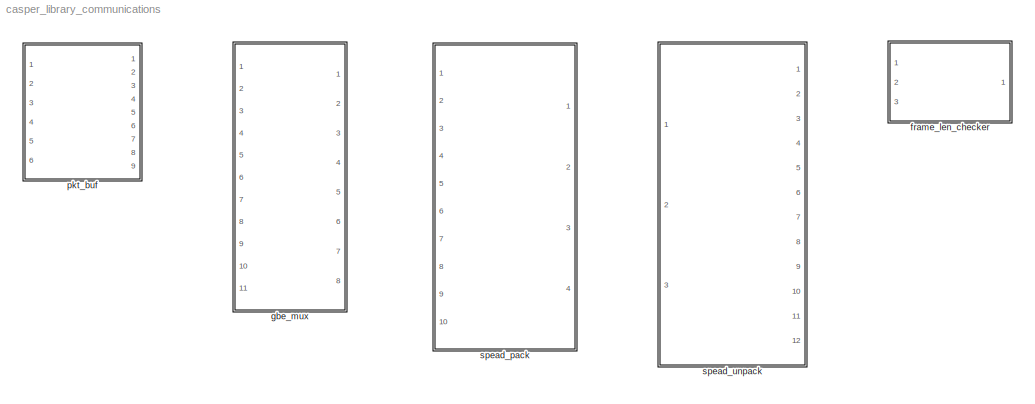
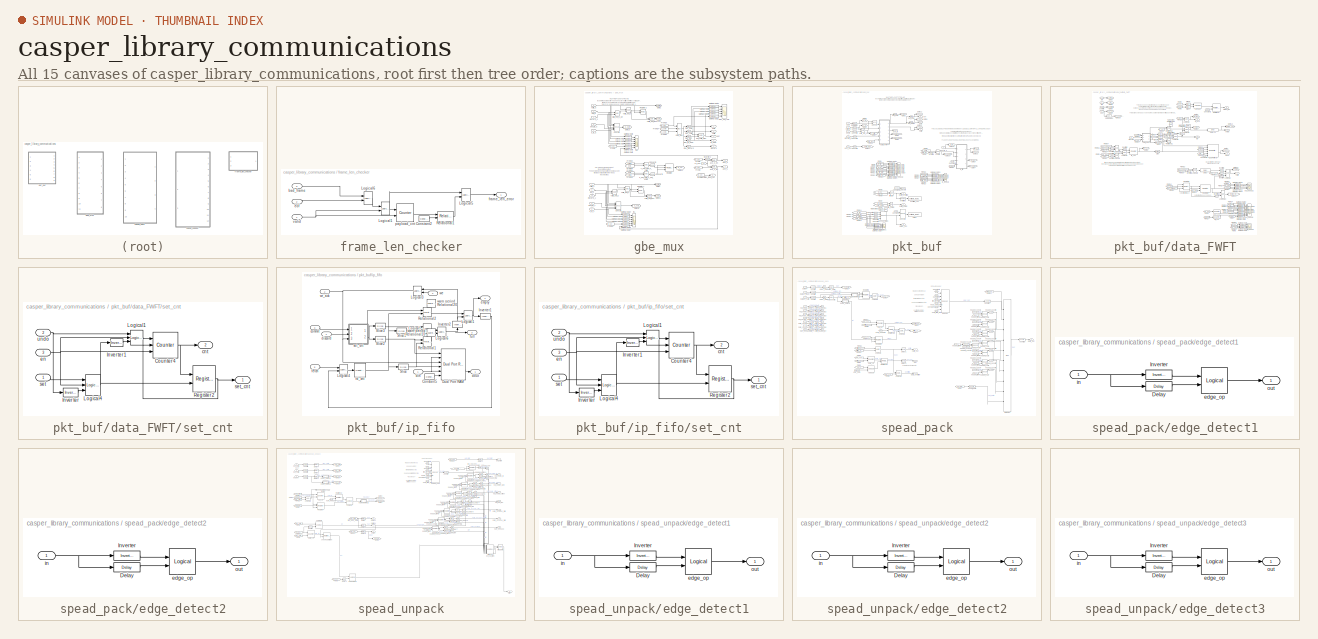
[diagram: thumbnail index - all 15 canvases of the model, root first then tree order]
MODEL casper_library_communications
KIND library
BLOCK [SubSystem] frame_len_checker
  FunctionWithSeparateData = off
  MaskHideContents = off
  MinAlgLoopOccurrences = off
  Opaque = off
  Ports = [3, 1]
  PropExecContextOutsideSubsystem = off
  RTWSystemCode = Auto
  RequestExecContextInheritance = off
  SID = 1904
  Tag = casper:frame_len_checker
BLOCK [Reference] frame_len_checker/Constant2  REF=xbsIndex_r4/Constant
  Ports = [0, 1]
  SID = 1908
  SourceBlock = xbsIndex_r4/Constant
  SourceType = Xilinx Constant Block Block
  arith_type = Unsigned
  bin_pt = 0
  block_type = constant
  block_version = 10.1.3
  carry = CIN
  const = frame_len - 1
  dbl_ovrd = off
  dsp48_infoedit = The use of this block for DSP48 instructions is deprecated.  Please use the Opmode block.
  equ = P=C
  exp_width = 8
  explicit_period = on
  frac_width = 24
  gui_display_data_type = Fixed-point
  has_advanced_control = 0
  inp1 = P
  inp2 = PCIN>>17
  n_bits = (ceil(log2(frame_len)))+1
  opr = +
  opselect = C
  period = 1
  preci_type = Single
  sg_icon_stat = 30,18,0,1,white,blue,0,c3b0d470,right,,[ ],[ ]
  sg_mask_display = fprintf('','COMMENT: begin icon graphics');\npatch([0 55 55 0 0 ],[0 0 26 26 0 ],[0.77 0.82 0.91 ]);\nplot([0 55 55 0 0 ],[0 0 26 26 0 ]);\npatch([20.325 24.66 27.66 30.66 33.66 27.66 23.325 20.325 ],[16.33 16.33 19.33 16.33 19.33 19.33 19.33 16.33 ],[1 1 1 ]);\npatch([23.325 27.66 24.66 20.325 23.325 ],[13.33 13.33 16.33 16.33 13.33 ],[0.931 0.946 0.973 ]);\npatch([20.325 24.66 27.66 23.325 20.32...<+333ch>
  sggui_pos = 20,25,992,643
BLOCK [Reference] frame_len_checker/Logical1  REF=xbsIndex_r4/Logical
  Ports = [2, 1]
  SID = 1909
  SourceBlock = xbsIndex_r4/Logical
  SourceType = Xilinx Logical Block Block
  align_bp = on
  arith_type = Unsigned
  bin_pt = 2
  block_type = logical
  block_version = 10.1.3
  dbl_ovrd = off
  en = off
  has_advanced_control = 0
  inputs = 2
  latency = 0
  logical_function = AND
  n_bits = 8
  precision = Full
  sg_icon_stat = 25,38,2,1,white,blue,0,83a4b621,right,,[ ],[ ]
  sg_mask_display = fprintf('','COMMENT: begin icon graphics');\npatch([0 25 25 0 0 ],[0 0 38 38 0 ],[0.77 0.82 0.91 ]);\nplot([0 25 25 0 0 ],[0 0 38 38 0 ]);\npatch([5.325 9.66 12.66 15.66 18.66 12.66 8.325 5.325 ],[22.33 22.33 25.33 22.33 25.33 25.33 25.33 22.33 ],[1 1 1 ]);\npatch([8.325 12.66 9.66 5.325 8.325 ],[19.33 19.33 22.33 22.33 19.33 ],[0.931 0.946 0.973 ]);\npatch([5.325 9.66 12.66 8.325 5.325 ],[16.33 1...<+312ch>
  sggui_pos = -1,-1,-1,-1
  xl_area = [0, 0, 0, 0, 0, 0, 0]
  xl_use_area = off
BLOCK [Reference] frame_len_checker/Logical5  REF=xbsIndex_r4/Logical
  Ports = [2, 1]
  SID = 1910
  SourceBlock = xbsIndex_r4/Logical
  SourceType = Xilinx Logical Block Block
  align_bp = on
  arith_type = Unsigned
  bin_pt = 2
  block_type = logical
  block_version = 10.1.3
  dbl_ovrd = off
  en = off
  has_advanced_control = 0
  inputs = 2
  latency = 0
  logical_function = AND
  n_bits = 8
  precision = Full
  sg_icon_stat = 25,38,2,1,white,blue,0,83a4b621,right,,[ ],[ ]
  sg_mask_display = fprintf('','COMMENT: begin icon graphics');\npatch([0 25 25 0 0 ],[0 0 38 38 0 ],[0.77 0.82 0.91 ]);\nplot([0 25 25 0 0 ],[0 0 38 38 0 ]);\npatch([5.325 9.66 12.66 15.66 18.66 12.66 8.325 5.325 ],[22.33 22.33 25.33 22.33 25.33 25.33 25.33 22.33 ],[1 1 1 ]);\npatch([8.325 12.66 9.66 5.325 8.325 ],[19.33 19.33 22.33 22.33 19.33 ],[0.931 0.946 0.973 ]);\npatch([5.325 9.66 12.66 8.325 5.325 ],[16.33 1...<+312ch>
  sggui_pos = 50,50,348,261
  xl_area = [0, 0, 0, 0, 0, 0, 0]
  xl_use_area = off
BLOCK [Reference] frame_len_checker/Logical6  REF=xbsIndex_r4/Logical
  Ports = [2, 1]
  SID = 1911
  SourceBlock = xbsIndex_r4/Logical
  SourceType = Xilinx Logical Block Block
  align_bp = on
  arith_type = Unsigned
  bin_pt = 2
  block_type = logical
  block_version = 10.1.3
  dbl_ovrd = off
  en = off
  has_advanced_control = 0
  inputs = 2
  latency = 0
  logical_function = OR
  n_bits = 8
  precision = Full
  sg_icon_stat = 25,38,2,1,white,blue,0,7ede7d88,right,,[ ],[ ]
  sg_mask_display = fprintf('','COMMENT: begin icon graphics');\npatch([0 25 25 0 0 ],[0 0 38 38 0 ],[0.77 0.82 0.91 ]);\nplot([0 25 25 0 0 ],[0 0 38 38 0 ]);\npatch([5.325 9.66 12.66 15.66 18.66 12.66 8.325 5.325 ],[22.33 22.33 25.33 22.33 25.33 25.33 25.33 22.33 ],[1 1 1 ]);\npatch([8.325 12.66 9.66 5.325 8.325 ],[19.33 19.33 22.33 22.33 19.33 ],[0.931 0.946 0.973 ]);\npatch([5.325 9.66 12.66 8.325 5.325 ],[16.33 1...<+311ch>
  sggui_pos = 50,50,348,261
  xl_area = [0, 0, 0, 0, 0, 0, 0]
  xl_use_area = off
BLOCK [Reference] frame_len_checker/Relational1  REF=xbsIndex_r4/Relational
  Ports = [2, 1]
  SID = 1912
  SourceBlock = xbsIndex_r4/Relational
  SourceType = Xilinx Arithmetic Relational Operator Block
  block_type = relational
  block_version = 10.1.3
  dbl_ovrd = off
  en = off
  has_advanced_control = 0
  latency = 0
  mode = a!=b
  sg_icon_stat = 45,29,2,1,white,blue,0,850de6e7,right,,[ ],[ ]
  sg_mask_display = fprintf('','COMMENT: begin icon graphics');\npatch([0 45 45 0 0 ],[0 0 29 29 0 ],[0.77 0.82 0.91 ]);\nplot([0 45 45 0 0 ],[0 0 29 29 0 ]);\npatch([13.1 18.88 22.88 26.88 30.88 22.88 17.1 13.1 ],[18.44 18.44 22.44 18.44 22.44 22.44 22.44 18.44 ],[1 1 1 ]);\npatch([17.1 22.88 18.88 13.1 17.1 ],[14.44 14.44 18.44 18.44 14.44 ],[0.931 0.946 0.973 ]);\npatch([13.1 18.88 22.88 17.1 13.1 ],[10.44 10.44 1...<+449ch>
  sggui_pos = 20,25,416,203
  xl_area = [0, 0, 0, 0, 0, 0, 0]
  xl_use_area = off
BLOCK [Inport] frame_len_checker/bad_frame
  IconDisplay = Port number
  Port = 3
  SID = 1907
BLOCK [Inport] frame_len_checker/eof
  IconDisplay = Port number
  Port = 2
  SID = 1906
BLOCK [Outport] frame_len_checker/frame_len_error
  IconDisplay = Port number
  SID = 1914
BLOCK [Reference] frame_len_checker/payload_cnt  REF=xbsIndex_r4/Counter
  Ports = [2, 1]
  SID = 1913
  SourceBlock = xbsIndex_r4/Counter
  SourceType = Xilinx Counter Block
  arith_type = Unsigned
  bin_pt = 0
  block_type = counter
  block_version = 10.1.3
  cnt_by_val = 1
  cnt_to = frame_len - 1
  cnt_type = Free Running
  dbl_ovrd = off
  en = on
  explicit_period = off
  has_advanced_control = 0
  implementation = Fabric
  infoedit = Hardware notes: Free running counters are the least expensive in hardware.  A count limited counter is implemented by combining a counter with a comparator.
  load_pin = off
  n_bits = (ceil(log2(frame_len)))+1
  operation = Up
  period = 1
  rst = on
  sg_icon_stat = 50,55,2,1,white,blue,0,ae3608d6,right,,[ ],[ ]
  sg_mask_display = fprintf('','COMMENT: begin icon graphics');\npatch([0 50 50 0 0 ],[0 0 55 55 0 ],[0.77 0.82 0.91 ]);\nplot([0 50 50 0 0 ],[0 0 55 55 0 ]);\npatch([9.425 19.54 26.54 33.54 40.54 26.54 16.425 9.425 ],[34.77 34.77 41.77 34.77 41.77 41.77 41.77 34.77 ],[1 1 1 ]);\npatch([16.425 26.54 19.54 9.425 16.425 ],[27.77 27.77 34.77 34.77 27.77 ],[0.931 0.946 0.973 ]);\npatch([9.425 19.54 26.54 16.425 9.425 ],[...<+352ch>
  sggui_pos = 20,25,416,716
  start_count = 0
  use_behavioral_HDL = on
  use_rpm = on
  xl_area = [0, 0, 0, 0, 0, 0, 0]
  xl_use_area = off
BLOCK [Inport] frame_len_checker/valid
  IconDisplay = Port number
  SID = 1905
BLOCK [SubSystem] gbe_mux
  FunctionWithSeparateData = off
  MaskHideContents = off
  MinAlgLoopOccurrences = off
  Opaque = off
  Ports = [11, 8]
  PropExecContextOutsideSubsystem = off
  RTWSystemCode = Auto
  RequestExecContextInheritance = off
  SID = 1
BLOCK [Reference] gbe_mux/0_eof_AND_1_not_empty  REF=xbsIndex_r4/Logical
  Ports = [2, 1]
  SID = 13
  SourceBlock = xbsIndex_r4/Logical
  SourceType = Xilinx Logical Block Block
  align_bp = on
  arith_type = Unsigned
  bin_pt = 2
  block_type = logical
  block_version = 10.1.3
  dbl_ovrd = off
  en = off
  has_advanced_control = 0
  inputs = 2
  latency = 0
  logical_function = AND
  n_bits = 8
  precision = Full
  sg_icon_stat = 25,31,2,1,white,blue,0,83a4b621,right,,[ ],[ ]
  sg_mask_display = fprintf('','COMMENT: begin icon graphics');\npatch([0 25 25 0 0 ],[0 0 31 31 0 ],[0.77 0.82 0.91 ]);\nplot([0 25 25 0 0 ],[0 0 31 31 0 ]);\npatch([5.325 9.66 12.66 15.66 18.66 12.66 8.325 5.325 ],[18.33 18.33 21.33 18.33 21.33 21.33 21.33 18.33 ],[1 1 1 ]);\npatch([8.325 12.66 9.66 5.325 8.325 ],[15.33 15.33 18.33 18.33 15.33 ],[0.931 0.946 0.973 ]);\npatch([5.325 9.66 12.66 8.325 5.325 ],[12.33 1...<+308ch>  <repeated x5 — deduplicated; at blocks: 0_eof_AND_1_not_empty, 1_eof_AND_0_valid, valid_eof_0, valid_eof_1>
  sggui_pos = -1,-1,-1,-1
  xl_area = [0, 0, 0, 0, 0, 0, 0]
  xl_use_area = off
BLOCK [Reference] gbe_mux/1_eof_AND_0_valid  REF=xbsIndex_r4/Logical
  Ports = [2, 1]
  SID = 14
  SourceBlock = xbsIndex_r4/Logical
  SourceType = Xilinx Logical Block Block
  align_bp = on
  arith_type = Unsigned
  bin_pt = 2
  block_type = logical
  block_version = 10.1.3
  dbl_ovrd = off
  en = off
  has_advanced_control = 0
  inputs = 2
  latency = 0
  logical_function = AND
  n_bits = 8
  precision = Full
  sg_icon_stat = 25,31,2,1,white,blue,0,83a4b621,right,,[ ],[ ]
  sggui_pos = -1,-1,-1,-1
  xl_area = [0, 0, 0, 0, 0, 0, 0]
  xl_use_area = off
BLOCK [Reference] gbe_mux/Concat1  REF=xbsIndex_r4/Concat
  Ports = [5, 1]
  SID = 15
  SourceBlock = xbsIndex_r4/Concat
  SourceType = Xilinx Bus Concatenator Block
  block_type = concat
  block_version = 10.1.3
  dbl_ovrd = off
  has_advanced_control = 0
  infoedit = Concatenates two or more inputs.  Output will be cast to an unsigned value with the binary point at zero.
  num_inputs = 5
  sg_icon_stat = 30,48,5,1,white,blue,0,64797e70,right,,[ ],[ ]
  sg_mask_display = fprintf('','COMMENT: begin icon graphics');\npatch([0 30 30 0 0 ],[0 0 48 48 0 ],[0.77 0.82 0.91 ]);\nplot([0 30 30 0 0 ],[0 0 48 48 0 ]);\npatch([6.1 11.88 15.88 19.88 23.88 15.88 10.1 6.1 ],[28.44 28.44 32.44 28.44 32.44 32.44 32.44 28.44 ],[1 1 1 ]);\npatch([10.1 15.88 11.88 6.1 10.1 ],[24.44 24.44 28.44 28.44 24.44 ],[0.931 0.946 0.973 ]);\npatch([6.1 11.88 15.88 10.1 6.1 ],[20.44 20.44 24.44 ...<+419ch>
  sggui_pos = -1,-1,-1,-1
BLOCK [Reference] gbe_mux/Concat2  REF=xbsIndex_r4/Concat
  Ports = [5, 1]
  SID = 16
  SourceBlock = xbsIndex_r4/Concat
  SourceType = Xilinx Bus Concatenator Block
  block_type = concat
  block_version = 10.1.3
  dbl_ovrd = off
  has_advanced_control = 0
  infoedit = Concatenates two or more inputs.  Output will be cast to an unsigned value with the binary point at zero.
  num_inputs = 5
  sg_icon_stat = 30,48,5,1,white,blue,0,64797e70,right,,[ ],[ ]
  sg_mask_display = fprintf('','COMMENT: begin icon graphics');\npatch([0 30 30 0 0 ],[0 0 48 48 0 ],[0.77 0.82 0.91 ]);\nplot([0 30 30 0 0 ],[0 0 48 48 0 ]);\npatch([6.1 11.88 15.88 19.88 23.88 15.88 10.1 6.1 ],[28.44 28.44 32.44 28.44 32.44 32.44 32.44 28.44 ],[1 1 1 ]);\npatch([10.1 15.88 11.88 6.1 10.1 ],[24.44 24.44 28.44 28.44 24.44 ],[0.931 0.946 0.973 ]);\npatch([6.1 11.88 15.88 10.1 6.1 ],[20.44 20.44 24.44 ...<+419ch>
  sggui_pos = -1,-1,-1,-1
BLOCK [Reference] gbe_mux/Convert3  REF=xbsIndex_r4/Convert
  Ports = [1, 1]
  SID = 17
  SourceBlock = xbsIndex_r4/Convert
  SourceType = Xilinx Type Converter Block
  arith_type = Boolean
  bin_pt = 6
  block_type = convert
  block_version = 10.1.3
  dbl_ovrd = off
  en = off
  exp_bits = 8
  float_type = Single
  fraction_bits = 24
  gui_display_data_type = Fixed-point
  has_advanced_control = 0
  infoedit = Hardware notes: rounding and saturating require hardware resources; truncating and wrapping do not.
  latency = 0
  n_bits = 8
  overflow = Wrap
  pipeline = off
  quantization = Truncate
  sg_icon_stat = 25,18,1,1,white,blue,0,edca21da,right,,[ ],[ ]
  sg_mask_display = fprintf('','COMMENT: begin icon graphics');\npatch([0 25 25 0 0 ],[0 0 18 18 0 ],[0.77 0.82 0.91 ]);\nplot([0 25 25 0 0 ],[0 0 18 18 0 ]);\npatch([7.55 10.44 12.44 14.44 16.44 12.44 9.55 7.55 ],[11.22 11.22 13.22 11.22 13.22 13.22 13.22 11.22 ],[1 1 1 ]);\npatch([9.55 12.44 10.44 7.55 9.55 ],[9.22 9.22 11.22 11.22 9.22 ],[0.931 0.946 0.973 ]);\npatch([7.55 10.44 12.44 9.55 7.55 ],[7.22 7.22 9.22 9...<+303ch>
  sggui_pos = -1,-1,-1,-1
  xl_area = [0, 0, 0, 0, 0, 0, 0]
  xl_use_area = off
BLOCK [Reference] gbe_mux/Convert4  REF=xbsIndex_r4/Convert
  Ports = [1, 1]
  SID = 18
  SourceBlock = xbsIndex_r4/Convert
  SourceType = Xilinx Type Converter Block
  arith_type = Boolean
  bin_pt = 6
  block_type = convert
  block_version = 10.1.3
  dbl_ovrd = off
  en = off
  exp_bits = 8
  float_type = Single
  fraction_bits = 24
  gui_display_data_type = Fixed-point
  has_advanced_control = 0
  infoedit = Hardware notes: rounding and saturating require hardware resources; truncating and wrapping do not.
  latency = 0
  n_bits = 8
  overflow = Wrap
  pipeline = off
  quantization = Truncate
  sg_icon_stat = 25,18,1,1,white,blue,0,edca21da,right,,[ ],[ ]
  sg_mask_display = fprintf('','COMMENT: begin icon graphics');\npatch([0 25 25 0 0 ],[0 0 18 18 0 ],[0.77 0.82 0.91 ]);\nplot([0 25 25 0 0 ],[0 0 18 18 0 ]);\npatch([7.55 10.44 12.44 14.44 16.44 12.44 9.55 7.55 ],[11.22 11.22 13.22 11.22 13.22 13.22 13.22 11.22 ],[1 1 1 ]);\npatch([9.55 12.44 10.44 7.55 9.55 ],[9.22 9.22 11.22 11.22 9.22 ],[0.931 0.946 0.973 ]);\npatch([7.55 10.44 12.44 9.55 7.55 ],[7.22 7.22 9.22 9...<+303ch>
  sggui_pos = -1,-1,-1,-1
  xl_area = [0, 0, 0, 0, 0, 0, 0]
  xl_use_area = off
BLOCK [From] gbe_mux/From1
  CloseFcn = tagdialog Close
  GotoTag = in_sel
  SID = 19
BLOCK [From] gbe_mux/From15
  CloseFcn = tagdialog Close
  GotoTag = in_sel
  SID = 20
BLOCK [From] gbe_mux/From19
  CloseFcn = tagdialog Close
  GotoTag = valid1
  SID = 21
BLOCK [From] gbe_mux/From2
  CloseFcn = tagdialog Close
  GotoTag = in_sel
  SID = 22
BLOCK [From] gbe_mux/From20
  CloseFcn = tagdialog Close
  GotoTag = valid0
  SID = 23
BLOCK [From] gbe_mux/From21
  CloseFcn = tagdialog Close
  GotoTag = eof0
  SID = 24
BLOCK [From] gbe_mux/From23
  CloseFcn = tagdialog Close
  GotoTag = eof1
  SID = 25
BLOCK [From] gbe_mux/From24
  CloseFcn = tagdialog Close
  GotoTag = d_out0
  SID = 26
BLOCK [From] gbe_mux/From25
  CloseFcn = tagdialog Close
  GotoTag = in_sel
  SID = 27
BLOCK [From] gbe_mux/From3
  CloseFcn = tagdialog Close
  GotoTag = in_sel
  SID = 28
BLOCK [From] gbe_mux/From32
  CloseFcn = tagdialog Close
  GotoTag = d_out1
  SID = 29
BLOCK [From] gbe_mux/From43
  CloseFcn = tagdialog Close
  GotoTag = in_sel
  SID = 30
BLOCK [Reference] gbe_mux/Gateway Out1  REF=xbsIndex_r4/Gateway Out
  DACChannel = '1'
  LOCs = {}
  Ports = [1, 1]
  SID = 31
  SourceBlock = xbsIndex_r4/Gateway Out
  SourceType = Xilinx Gateway Out Block
  UseAsDAC = off
  block_type = gatewayout
  block_version = 10.1.3
  has_advanced_control = 0
  hdl_port = off
  infoedit = Gateway out block.  Converts Xilinx fixed point inputs into ouputs of type Simulink integer, double, or fixed point.<P><P>Hardware notes:  In hardware these blocks become top level output ports or are discarded, depending on how they are configured.  <repeated x54 — deduplicated; at blocks: Gateway Out1, Gateway Out10, Gateway Out11, Gateway Out12, Gateway Out13, Gateway Out14, Gateway Out15, Gateway Out16, Gateway Out17, Gateway Out2, Gateway Out3, Gateway Out4, Gateway Out5, Gateway Out6, Gateway Out7, Gateway Out8, +8 more>
  inherit_from_input = off
  locs_specified = off
  sg_icon_stat = 40,8,1,1,white,grey,1,632ec840,right,,[ ],[ ]
  sg_mask_display = fprintf('','COMMENT: begin icon graphics');\npatch([0 40 40 0 0 ],[0 0 8 8 0 ],[0.88 0.88 0.88 ]);\nplot([0 40 40 0 0 ],[0 0 8 8 0 ]);\npatch([17.775 19.22 20.22 21.22 22.22 20.22 18.775 17.775 ],[5.11 5.11 6.11 5.11 6.11 6.11 6.11 5.11 ],[1 1 1 ]);\npatch([18.775 20.22 19.22 17.775 18.775 ],[4.11 4.11 5.11 5.11 4.11 ],[0.964 0.964 0.964 ]);\npatch([17.775 19.22 20.22 18.775 17.775 ],[3.11 3.11 4....<+386ch>  <repeated x28 — deduplicated; at blocks: Gateway Out1, Gateway Out13, Gateway Out14, Gateway Out15, Gateway Out16, Gateway Out17, Gateway Out2, Gateway Out3, Gateway Out4, Gateway Out5, Gateway Out6, Gateway Out7, Gateway Out10, Gateway Out11, Gateway Out12, Gateway Out18, +3 more>
  sggui_pos = 20,20,336,384
  timing_constraint = None
  xl_area = [0, 0, 0, 0, 0, 0, 0]
  xl_use_area = off
BLOCK [Reference] gbe_mux/Gateway Out10  REF=xbsIndex_r4/Gateway Out
  DACChannel = '1'
  LOCs = {}
  Ports = [1, 1]
  SID = 32
  SourceBlock = xbsIndex_r4/Gateway Out
  SourceType = Xilinx Gateway Out Block
  UseAsDAC = off
  block_type = gatewayout
  block_version = 10.1.3
  has_advanced_control = 0
  hdl_port = off
  inherit_from_input = off
  locs_specified = off
  sg_icon_stat = 55,16,1,1,white,grey,1,632ec840,right,,[ ],[ ]
  sg_mask_display = fprintf('','COMMENT: begin icon graphics');\npatch([0 55 55 0 0 ],[0 0 16 16 0 ],[0.88 0.88 0.88 ]);\nplot([0 55 55 0 0 ],[0 0 16 16 0 ]);\npatch([22.55 25.44 27.44 29.44 31.44 27.44 24.55 22.55 ],[10.22 10.22 12.22 10.22 12.22 12.22 12.22 10.22 ],[1 1 1 ]);\npatch([24.55 27.44 25.44 22.55 24.55 ],[8.22 8.22 10.22 10.22 8.22 ],[0.964 0.964 0.964 ]);\npatch([22.55 25.44 27.44 24.55 22.55 ],[6.22 6....<+388ch>  <repeated x5 — deduplicated; at blocks: Gateway Out10, Gateway Out11, Gateway Out12, Gateway Out8, Gateway Out9>
  sggui_pos = 20,20,336,384
  timing_constraint = None
  xl_area = [0, 0, 0, 0, 0, 0, 0]
  xl_use_area = off
BLOCK [Reference] gbe_mux/Gateway Out11  REF=xbsIndex_r4/Gateway Out
  DACChannel = '1'
  LOCs = {}
  Ports = [1, 1]
  SID = 33
  SourceBlock = xbsIndex_r4/Gateway Out
  SourceType = Xilinx Gateway Out Block
  UseAsDAC = off
  block_type = gatewayout
  block_version = 10.1.3
  has_advanced_control = 0
  hdl_port = off
  inherit_from_input = off
  locs_specified = off
  sg_icon_stat = 55,16,1,1,white,grey,1,632ec840,right,,[ ],[ ]
  sggui_pos = 20,20,336,384
  timing_constraint = None
  xl_area = [0, 0, 0, 0, 0, 0, 0]
  xl_use_area = off
BLOCK [Reference] gbe_mux/Gateway Out12  REF=xbsIndex_r4/Gateway Out
  DACChannel = '1'
  LOCs = {}
  Ports = [1, 1]
  SID = 34
  SourceBlock = xbsIndex_r4/Gateway Out
  SourceType = Xilinx Gateway Out Block
  UseAsDAC = off
  block_type = gatewayout
  block_version = 10.1.3
  has_advanced_control = 0
  hdl_port = off
  inherit_from_input = off
  locs_specified = off
  sg_icon_stat = 55,16,1,1,white,grey,1,632ec840,right,,[ ],[ ]
  sggui_pos = 20,20,336,384
  timing_constraint = None
  xl_area = [0, 0, 0, 0, 0, 0, 0]
  xl_use_area = off
BLOCK [Reference] gbe_mux/Gateway Out13  REF=xbsIndex_r4/Gateway Out
  DACChannel = '1'
  LOCs = {}
  Ports = [1, 1]
  SID = 35
  SourceBlock = xbsIndex_r4/Gateway Out
  SourceType = Xilinx Gateway Out Block
  UseAsDAC = off
  block_type = gatewayout
  block_version = 10.1.3
  has_advanced_control = 0
  hdl_port = off
  inherit_from_input = off
  locs_specified = off
  sg_icon_stat = 40,8,1,1,white,grey,1,632ec840,right,,[ ],[ ]
  sggui_pos = 20,20,336,384
  timing_constraint = None
  xl_area = [0, 0, 0, 0, 0, 0, 0]
  xl_use_area = off
BLOCK [Reference] gbe_mux/Gateway Out14  REF=xbsIndex_r4/Gateway Out
  DACChannel = '1'
  LOCs = {}
  Ports = [1, 1]
  SID = 36
  SourceBlock = xbsIndex_r4/Gateway Out
  SourceType = Xilinx Gateway Out Block
  UseAsDAC = off
  block_type = gatewayout
  block_version = 10.1.3
  has_advanced_control = 0
  hdl_port = off
  inherit_from_input = off
  locs_specified = off
  sg_icon_stat = 40,8,1,1,white,grey,1,632ec840,right,,[ ],[ ]
  sggui_pos = 20,20,336,384
  timing_constraint = None
  xl_area = [0, 0, 0, 0, 0, 0, 0]
  xl_use_area = off
BLOCK [Reference] gbe_mux/Gateway Out15  REF=xbsIndex_r4/Gateway Out
  DACChannel = '1'
  LOCs = {}
  Ports = [1, 1]
  SID = 37
  SourceBlock = xbsIndex_r4/Gateway Out
  SourceType = Xilinx Gateway Out Block
  UseAsDAC = off
  block_type = gatewayout
  block_version = 10.1.3
  has_advanced_control = 0
  hdl_port = off
  inherit_from_input = off
  locs_specified = off
  sg_icon_stat = 40,8,1,1,white,grey,1,632ec840,right,,[ ],[ ]
  sggui_pos = 20,20,336,384
  timing_constraint = None
  xl_area = [0, 0, 0, 0, 0, 0, 0]
  xl_use_area = off
BLOCK [Reference] gbe_mux/Gateway Out16  REF=xbsIndex_r4/Gateway Out
  DACChannel = '1'
  LOCs = {}
  Ports = [1, 1]
  SID = 38
  SourceBlock = xbsIndex_r4/Gateway Out
  SourceType = Xilinx Gateway Out Block
  UseAsDAC = off
  block_type = gatewayout
  block_version = 10.1.3
  has_advanced_control = 0
  hdl_port = off
  inherit_from_input = off
  locs_specified = off
  sg_icon_stat = 40,8,1,1,white,grey,1,632ec840,right,,[ ],[ ]
  sggui_pos = 20,20,336,384
  timing_constraint = None
  xl_area = [0, 0, 0, 0, 0, 0, 0]
  xl_use_area = off
BLOCK [Reference] gbe_mux/Gateway Out17  REF=xbsIndex_r4/Gateway Out
  DACChannel = '1'
  LOCs = {}
  Ports = [1, 1]
  SID = 39
  SourceBlock = xbsIndex_r4/Gateway Out
  SourceType = Xilinx Gateway Out Block
  UseAsDAC = off
  block_type = gatewayout
  block_version = 10.1.3
  has_advanced_control = 0
  hdl_port = off
  inherit_from_input = off
  locs_specified = off
  sg_icon_stat = 40,8,1,1,white,grey,1,632ec840,right,,[ ],[ ]
  sggui_pos = 20,20,336,384
  timing_constraint = None
  xl_area = [0, 0, 0, 0, 0, 0, 0]
  xl_use_area = off
BLOCK [Reference] gbe_mux/Gateway Out2  REF=xbsIndex_r4/Gateway Out
  DACChannel = '1'
  LOCs = {}
  Ports = [1, 1]
  SID = 40
  SourceBlock = xbsIndex_r4/Gateway Out
  SourceType = Xilinx Gateway Out Block
  UseAsDAC = off
  block_type = gatewayout
  block_version = 10.1.3
  has_advanced_control = 0
  hdl_port = off
  inherit_from_input = off
  locs_specified = off
  sg_icon_stat = 40,8,1,1,white,grey,1,632ec840,right,,[ ],[ ]
  sggui_pos = 20,20,336,384
  timing_constraint = None
  xl_area = [0, 0, 0, 0, 0, 0, 0]
  xl_use_area = off
BLOCK [Reference] gbe_mux/Gateway Out3  REF=xbsIndex_r4/Gateway Out
  DACChannel = '1'
  LOCs = {}
  Ports = [1, 1]
  SID = 41
  SourceBlock = xbsIndex_r4/Gateway Out
  SourceType = Xilinx Gateway Out Block
  UseAsDAC = off
  block_type = gatewayout
  block_version = 10.1.3
  has_advanced_control = 0
  hdl_port = off
  inherit_from_input = off
  locs_specified = off
  sg_icon_stat = 40,8,1,1,white,grey,1,632ec840,right,,[ ],[ ]
  sggui_pos = 20,20,336,384
  timing_constraint = None
  xl_area = [0, 0, 0, 0, 0, 0, 0]
  xl_use_area = off
BLOCK [Reference] gbe_mux/Gateway Out4  REF=xbsIndex_r4/Gateway Out
  DACChannel = '1'
  LOCs = {}
  Ports = [1, 1]
  SID = 42
  SourceBlock = xbsIndex_r4/Gateway Out
  SourceType = Xilinx Gateway Out Block
  UseAsDAC = off
  block_type = gatewayout
  block_version = 10.1.3
  has_advanced_control = 0
  hdl_port = off
  inherit_from_input = off
  locs_specified = off
  sg_icon_stat = 40,8,1,1,white,grey,1,632ec840,right,,[ ],[ ]
  sggui_pos = 20,20,336,384
  timing_constraint = None
  xl_area = [0, 0, 0, 0, 0, 0, 0]
  xl_use_area = off
BLOCK [Reference] gbe_mux/Gateway Out5  REF=xbsIndex_r4/Gateway Out
  DACChannel = '1'
  LOCs = {}
  Ports = [1, 1]
  SID = 43
  SourceBlock = xbsIndex_r4/Gateway Out
  SourceType = Xilinx Gateway Out Block
  UseAsDAC = off
  block_type = gatewayout
  block_version = 10.1.3
  has_advanced_control = 0
  hdl_port = off
  inherit_from_input = off
  locs_specified = off
  sg_icon_stat = 40,8,1,1,white,grey,1,632ec840,right,,[ ],[ ]
  sggui_pos = 20,20,336,384
  timing_constraint = None
  xl_area = [0, 0, 0, 0, 0, 0, 0]
  xl_use_area = off
BLOCK [Reference] gbe_mux/Gateway Out6  REF=xbsIndex_r4/Gateway Out
  DACChannel = '1'
  LOCs = {}
  Ports = [1, 1]
  SID = 44
  SourceBlock = xbsIndex_r4/Gateway Out
  SourceType = Xilinx Gateway Out Block
  UseAsDAC = off
  block_type = gatewayout
  block_version = 10.1.3
  has_advanced_control = 0
  hdl_port = off
  inherit_from_input = off
  locs_specified = off
  sg_icon_stat = 40,8,1,1,white,grey,1,632ec840,right,,[ ],[ ]
  sggui_pos = 20,20,336,384
  timing_constraint = None
  xl_area = [0, 0, 0, 0, 0, 0, 0]
  xl_use_area = off
BLOCK [Reference] gbe_mux/Gateway Out7  REF=xbsIndex_r4/Gateway Out
  DACChannel = '1'
  LOCs = {}
  Ports = [1, 1]
  SID = 45
  SourceBlock = xbsIndex_r4/Gateway Out
  SourceType = Xilinx Gateway Out Block
  UseAsDAC = off
  block_type = gatewayout
  block_version = 10.1.3
  has_advanced_control = 0
  hdl_port = off
  inherit_from_input = off
  locs_specified = off
  sg_icon_stat = 40,8,1,1,white,grey,1,632ec840,right,,[ ],[ ]
  sggui_pos = 20,20,336,384
  timing_constraint = None
  xl_area = [0, 0, 0, 0, 0, 0, 0]
  xl_use_area = off
BLOCK [Reference] gbe_mux/Gateway Out8  REF=xbsIndex_r4/Gateway Out
  DACChannel = '1'
  LOCs = {}
  Ports = [1, 1]
  SID = 46
  SourceBlock = xbsIndex_r4/Gateway Out
  SourceType = Xilinx Gateway Out Block
  UseAsDAC = off
  block_type = gatewayout
  block_version = 10.1.3
  has_advanced_control = 0
  hdl_port = off
  inherit_from_input = off
  locs_specified = off
  sg_icon_stat = 55,16,1,1,white,grey,1,632ec840,right,,[ ],[ ]
  sggui_pos = 20,20,336,384
  timing_constraint = None
  xl_area = [0, 0, 0, 0, 0, 0, 0]
  xl_use_area = off
BLOCK [Reference] gbe_mux/Gateway Out9  REF=xbsIndex_r4/Gateway Out
  DACChannel = '1'
  LOCs = {}
  Ports = [1, 1]
  SID = 47
  SourceBlock = xbsIndex_r4/Gateway Out
  SourceType = Xilinx Gateway Out Block
  UseAsDAC = off
  block_type = gatewayout
  block_version = 10.1.3
  has_advanced_control = 0
  hdl_port = off
  inherit_from_input = off
  locs_specified = off
  sg_icon_stat = 55,16,1,1,white,grey,1,632ec840,right,,[ ],[ ]
  sggui_pos = 20,20,336,384
  timing_constraint = None
  xl_area = [0, 0, 0, 0, 0, 0, 0]
  xl_use_area = off
BLOCK [Goto] gbe_mux/Goto1
  GotoTag = valid1
  SID = 48
BLOCK [Goto] gbe_mux/Goto11
  GotoTag = eof1
  SID = 49
BLOCK [Goto] gbe_mux/Goto12
  GotoTag = in_sel
  SID = 50
BLOCK [Goto] gbe_mux/Goto13
  GotoTag = d_out0
  SID = 51
BLOCK [Goto] gbe_mux/Goto16
  GotoTag = d_out1
  SID = 52
BLOCK [Goto] gbe_mux/Goto2
  GotoTag = valid0
  SID = 53
BLOCK [Goto] gbe_mux/Goto3
  GotoTag = eof0
  SID = 54
BLOCK [Reference] gbe_mux/Inverter2  REF=xbsIndex_r4/Inverter
  Ports = [1, 1]
  SID = 55
  SourceBlock = xbsIndex_r4/Inverter
  SourceType = Xilinx Inverter Block
  block_type = inv
  block_version = 10.1.3
  dbl_ovrd = off
  en = off
  has_advanced_control = 0
  infoedit = Bitwise logical negation (one's complement) operator.
  latency = 0
  sg_icon_stat = 25,12,1,1,white,blue,0,267846e5,right,,[ ],[ ]
  sg_mask_display = fprintf('','COMMENT: begin icon graphics');\npatch([0 25 25 0 0 ],[0 0 12 12 0 ],[0.77 0.82 0.91 ]);\nplot([0 25 25 0 0 ],[0 0 12 12 0 ]);\npatch([9.775 11.22 12.22 13.22 14.22 12.22 10.775 9.775 ],[7.11 7.11 8.11 7.11 8.11 8.11 8.11 7.11 ],[1 1 1 ]);\npatch([10.775 12.22 11.22 9.775 10.775 ],[6.11 6.11 7.11 7.11 6.11 ],[0.931 0.946 0.973 ]);\npatch([9.775 11.22 12.22 10.775 9.775 ],[5.11 5.11 6.1...<+295ch>
  sggui_pos = -1,-1,-1,-1
  xl_area = [0, 0, 0, 0, 0, 0, 0]
  xl_use_area = off
BLOCK [Reference] gbe_mux/Register  REF=xbsIndex_r4/Register
  Ports = [3, 1]
  SID = 56
  SourceBlock = xbsIndex_r4/Register
  SourceType = Xilinx Register Block
  block_type = register
  block_version = 10.1.3
  dbl_ovrd = off
  en = on
  has_advanced_control = 0
  init = 0
  rst = on
  sg_icon_stat = 45,50,3,1,white,blue,0,30546de1,right,,[ ],[ ]
  sg_mask_display = fprintf('','COMMENT: begin icon graphics');\npatch([0 45 45 0 0 ],[0 0 50 50 0 ],[0.77 0.82 0.91 ]);\nplot([0 45 45 0 0 ],[0 0 50 50 0 ]);\npatch([8.65 17.32 23.32 29.32 35.32 23.32 14.65 8.65 ],[31.66 31.66 37.66 31.66 37.66 37.66 37.66 31.66 ],[1 1 1 ]);\npatch([14.65 23.32 17.32 8.65 14.65 ],[25.66 25.66 31.66 31.66 25.66 ],[0.931 0.946 0.973 ]);\npatch([8.65 17.32 23.32 14.65 8.65 ],[19.66 19....<+498ch>
  sggui_pos = -1,-1,-1,-1
  xl_area = [0, 0, 0, 0, 0, 0, 0]
  xl_use_area = off
BLOCK [Reference] gbe_mux/Register1  REF=xbsIndex_r4/Register
  Ports = [2, 1]
  SID = 57
  SourceBlock = xbsIndex_r4/Register
  SourceType = Xilinx Register Block
  block_type = register
  block_version = 10.1.3
  dbl_ovrd = off
  en = on
  has_advanced_control = 0
  init = 1
  rst = off
  sg_icon_stat = 30,31,2,1,white,blue,0,6bd0930c,right,,[ ],[ ]
  sg_mask_display = fprintf('','COMMENT: begin icon graphics');\npatch([0 30 30 0 0 ],[0 0 31 31 0 ],[0.77 0.82 0.91 ]);\nplot([0 30 30 0 0 ],[0 0 31 31 0 ]);\npatch([6.1 11.88 15.88 19.88 23.88 15.88 10.1 6.1 ],[19.44 19.44 23.44 19.44 23.44 23.44 23.44 19.44 ],[1 1 1 ]);\npatch([10.1 15.88 11.88 6.1 10.1 ],[15.44 15.44 19.44 19.44 15.44 ],[0.931 0.946 0.973 ]);\npatch([6.1 11.88 15.88 10.1 6.1 ],[11.44 11.44 15.44 ...<+439ch>
  sggui_pos = -1,-1,-1,-1
  xl_area = [0, 0, 0, 0, 0, 0, 0]
  xl_use_area = off
BLOCK [Reference] gbe_mux/Register2  REF=xbsIndex_r4/Register
  Ports = [2, 1]
  SID = 58
  SourceBlock = xbsIndex_r4/Register
  SourceType = Xilinx Register Block
  block_type = register
  block_version = 10.1.3
  dbl_ovrd = off
  en = on
  has_advanced_control = 0
  init = 0
  rst = off
  sg_icon_stat = 30,31,2,1,white,blue,0,6bd0930c,right,,[ ],[ ]
  sg_mask_display = fprintf('','COMMENT: begin icon graphics');\npatch([0 30 30 0 0 ],[0 0 31 31 0 ],[0.77 0.82 0.91 ]);\nplot([0 30 30 0 0 ],[0 0 31 31 0 ]);\npatch([6.1 11.88 15.88 19.88 23.88 15.88 10.1 6.1 ],[19.44 19.44 23.44 19.44 23.44 23.44 23.44 19.44 ],[1 1 1 ]);\npatch([10.1 15.88 11.88 6.1 10.1 ],[15.44 15.44 19.44 19.44 15.44 ],[0.931 0.946 0.973 ]);\npatch([6.1 11.88 15.88 10.1 6.1 ],[11.44 11.44 15.44 ...<+439ch>
  sggui_pos = -1,-1,-1,-1
  xl_area = [0, 0, 0, 0, 0, 0, 0]
  xl_use_area = off
BLOCK [Outport] gbe_mux/ack_0
  IconDisplay = Port number
  Port = 6
  SID = 82
BLOCK [Reference] gbe_mux/ack_0_en  REF=xbsIndex_r4/Logical
  Ports = [2, 1]
  SID = 59
  SourceBlock = xbsIndex_r4/Logical
  SourceType = Xilinx Logical Block Block
  align_bp = on
  arith_type = Unsigned
  bin_pt = 2
  block_type = logical
  block_version = 10.1.3
  dbl_ovrd = off
  en = off
  has_advanced_control = 0
  inputs = 2
  latency = 0
  logical_function = AND
  n_bits = 8
  precision = Full
  sg_icon_stat = 25,20,2,1,white,blue,0,83a4b621,right,,[ ],[ ]
  sg_mask_display = fprintf('','COMMENT: begin icon graphics');\npatch([0 25 25 0 0 ],[0 0 20 20 0 ],[0.77 0.82 0.91 ]);\nplot([0 25 25 0 0 ],[0 0 20 20 0 ]);\npatch([7.55 10.44 12.44 14.44 16.44 12.44 9.55 7.55 ],[12.22 12.22 14.22 12.22 14.22 14.22 14.22 12.22 ],[1 1 1 ]);\npatch([9.55 12.44 10.44 7.55 9.55 ],[10.22 10.22 12.22 12.22 10.22 ],[0.931 0.946 0.973 ]);\npatch([7.55 10.44 12.44 9.55 7.55 ],[8.22 8.22 10....<+294ch>
  sggui_pos = -1,-1,-1,-1
  xl_area = [0, 0, 0, 0, 0, 0, 0]
  xl_use_area = off
BLOCK [Outport] gbe_mux/ack_1
  IconDisplay = Port number
  Port = 7
  SID = 83
BLOCK [Reference] gbe_mux/ack_1_en  REF=xbsIndex_r4/Logical
  Ports = [2, 1]
  SID = 60
  SourceBlock = xbsIndex_r4/Logical
  SourceType = Xilinx Logical Block Block
  align_bp = on
  arith_type = Unsigned
  bin_pt = 2
  block_type = logical
  block_version = 10.1.3
  dbl_ovrd = off
  en = off
  has_advanced_control = 0
  inputs = 2
  latency = 0
  logical_function = AND
  n_bits = 8
  precision = Full
  sg_icon_stat = 25,20,2,1,white,blue,0,83a4b621,right,,[ ],[ ]
  sg_mask_display = fprintf('','COMMENT: begin icon graphics');\npatch([0 25 25 0 0 ],[0 0 20 20 0 ],[0.77 0.82 0.91 ]);\nplot([0 25 25 0 0 ],[0 0 20 20 0 ]);\npatch([7.55 10.44 12.44 14.44 16.44 12.44 9.55 7.55 ],[12.22 12.22 14.22 12.22 14.22 14.22 14.22 12.22 ],[1 1 1 ]);\npatch([9.55 12.44 10.44 7.55 9.55 ],[10.22 10.22 12.22 12.22 10.22 ],[0.931 0.946 0.973 ]);\npatch([7.55 10.44 12.44 9.55 7.55 ],[8.22 8.22 10....<+294ch>
  sggui_pos = -1,-1,-1,-1
  xl_area = [0, 0, 0, 0, 0, 0, 0]
  xl_use_area = off
BLOCK [Inport] gbe_mux/d_in_0
  IconDisplay = Port number
  SID = 2
BLOCK [Inport] gbe_mux/d_in_1
  IconDisplay = Port number
  Port = 6
  SID = 7
BLOCK [Outport] gbe_mux/data
  IconDisplay = Port number
  SID = 77
BLOCK [Reference] gbe_mux/data_mux  REF=xbsIndex_r4/Mux
  Ports = [3, 1]
  SID = 61
  SourceBlock = xbsIndex_r4/Mux
  SourceType = Xilinx Bus Multiplexer Block
  arith_type = Signed  (2's comp)
  bin_pt = 2
  block_type = mux
  block_version = 10.1.3
  dbl_ovrd = off
  en = off
  has_advanced_control = 0
  inputs = 2
  latency = 0
  n_bits = 8
  overflow = Wrap
  precision = Full
  quantization = Truncate
  sg_icon_stat = 25,66,3,1,white,blue,3,eb98d690,right,,[ ],[ ]
  sg_mask_display = fprintf('','COMMENT: begin icon graphics');\npatch([0 25 25 0 0 ],[0 9.42857 56.5714 66 0 ],[0.77 0.82 0.91 ]);\nplot([0 25 25 0 0 ],[0 9.42857 56.5714 66 0 ]);\npatch([5.325 9.66 12.66 15.66 18.66 12.66 8.325 5.325 ],[36.33 36.33 39.33 36.33 39.33 39.33 39.33 36.33 ],[1 1 1 ]);\npatch([8.325 12.66 9.66 5.325 8.325 ],[33.33 33.33 36.33 36.33 33.33 ],[0.931 0.946 0.973 ]);\npatch([5.325 9.66 12.66 ...<+481ch>
  sggui_pos = -1,-1,-1,-1
  xl_area = [0, 0, 0, 0, 0, 0, 0]
  xl_use_area = off
BLOCK [Inport] gbe_mux/dest_ip_0
  IconDisplay = Port number
  Port = 3
  SID = 4
BLOCK [Inport] gbe_mux/dest_ip_1
  IconDisplay = Port number
  Port = 8
  SID = 9
BLOCK [Outport] gbe_mux/discard
  IconDisplay = Port number
  Port = 5
  SID = 81
BLOCK [Inport] gbe_mux/discard_0
  IconDisplay = Port number
  Port = 5
  SID = 6
BLOCK [Inport] gbe_mux/discard_1
  IconDisplay = Port number
  Port = 10
  SID = 11
BLOCK [Outport] gbe_mux/eof
  IconDisplay = Port number
  Port = 4
  SID = 80
BLOCK [Inport] gbe_mux/eof_0
  IconDisplay = Port number
  Port = 4
  SID = 5
BLOCK [Inport] gbe_mux/eof_1
  IconDisplay = Port number
  Port = 9
  SID = 10
BLOCK [Reference] gbe_mux/eof_valid_mux  REF=xbsIndex_r4/Logical
  Ports = [2, 1]
  SID = 62
  SourceBlock = xbsIndex_r4/Logical
  SourceType = Xilinx Logical Block Block
  align_bp = on
  arith_type = Unsigned
  bin_pt = 2
  block_type = logical
  block_version = 10.1.3
  dbl_ovrd = off
  en = off
  has_advanced_control = 0
  inputs = 2
  latency = 0
  logical_function = AND
  n_bits = 8
  precision = Full
  sg_icon_stat = 30,24,2,1,white,blue,0,83a4b621,right,,[ ],[ ]
  sg_mask_display = fprintf('','COMMENT: begin icon graphics');\npatch([0 30 30 0 0 ],[0 0 24 24 0 ],[0.77 0.82 0.91 ]);\nplot([0 30 30 0 0 ],[0 0 24 24 0 ]);\npatch([8.325 12.66 15.66 18.66 21.66 15.66 11.325 8.325 ],[15.33 15.33 18.33 15.33 18.33 18.33 18.33 15.33 ],[1 1 1 ]);\npatch([11.325 15.66 12.66 8.325 11.325 ],[12.33 12.33 15.33 15.33 12.33 ],[0.931 0.946 0.973 ]);\npatch([8.325 12.66 15.66 11.325 8.325 ],[...<+312ch>
  sggui_pos = -1,-1,-1,-1
  xl_area = [0, 0, 0, 0, 0, 0, 0]
  xl_use_area = off
BLOCK [Scope] gbe_mux/in0
  DataFormat = StructureWithTime
  Floating = off
  LimitDataPoints = off
  NumInputPorts = 6
  Ports = [6]
  SID = 63
  SampleTime = 0
  SaveName = ScopeData4
  ShowLegends = off
  YMax = 10000~1~10000~1~5~5
  YMin = 0~0~0~0~-5~-5
  ZoomMode = xonly
BLOCK [Scope] gbe_mux/in1
  DataFormat = StructureWithTime
  Floating = off
  LimitDataPoints = off
  NumInputPorts = 6
  Ports = [6]
  SID = 64
  SampleTime = 0
  SaveName = ScopeData1
  ShowLegends = off
  YMax = 10000~1~10000~1~5~5
  YMin = 0~0~0~0~-5~-5
  ZoomMode = xonly
BLOCK [Outport] gbe_mux/ip_addr
  IconDisplay = Port number
  Port = 3
  SID = 79
BLOCK [Reference] gbe_mux/mux_data  REF=xbsIndex_r4/Slice
  Ports = [1, 1]
  SID = 65
  SourceBlock = xbsIndex_r4/Slice
  SourceType = Xilinx Bit Slice Extractor Block
  base0 = LSB of Input
  base1 = LSB of Input
  bit0 = 0
  bit1 = 33
  block_type = slice
  block_version = 10.1.3
  boolean_output = off
  dbl_ovrd = off
  has_advanced_control = 0
  infoedit = Extracts a given range of bits from each input sample and presents it at the output.  The output type is ordinarily unsigned with binary point at zero, but can be Boolean when the slice is one bit wide.<P><P>Hardware notes: In hardware this block costs nothing.  <repeated x18 — deduplicated; at blocks: mux_data, mux_discard, mux_eof, mux_ip_addr, mux_valid, buf_data3, buf_eof1, buf_eof3, Slice, Slice1, Slice2, Slice3, Slice4, Slice5>
  mode = Lower Bit Location + Width
  nbits = 64
  sg_icon_stat = 20,12,1,1,white,blue,0,1fd851a7,right,,[ ],[ ]
  sg_mask_display = fprintf('','COMMENT: begin icon graphics');\npatch([0 20 20 0 0 ],[0 0 12 12 0 ],[0.77 0.82 0.91 ]);\nplot([0 20 20 0 0 ],[0 0 12 12 0 ]);\npatch([7.775 9.22 10.22 11.22 12.22 10.22 8.775 7.775 ],[7.11 7.11 8.11 7.11 8.11 8.11 8.11 7.11 ],[1 1 1 ]);\npatch([8.775 10.22 9.22 7.775 8.775 ],[6.11 6.11 7.11 7.11 6.11 ],[0.931 0.946 0.973 ]);\npatch([7.775 9.22 10.22 8.775 7.775 ],[5.11 5.11 6.11 6.11 ...<+302ch>  <repeated x8 — deduplicated; at blocks: mux_data, mux_discard, mux_eof, mux_ip_addr, mux_valid, buf_data3, buf_eof1, buf_eof3>
  sggui_pos = -1,-1,-1,-1
BLOCK [Reference] gbe_mux/mux_discard  REF=xbsIndex_r4/Slice
  Ports = [1, 1]
  SID = 66
  SourceBlock = xbsIndex_r4/Slice
  SourceType = Xilinx Bit Slice Extractor Block
  base0 = LSB of Input
  base1 = MSB of Input
  bit0 = 96
  bit1 = 0
  block_type = slice
  block_version = 10.1.3
  boolean_output = on
  dbl_ovrd = off
  has_advanced_control = 0
  mode = Lower Bit Location + Width
  nbits = 1
  sg_icon_stat = 20,12,1,1,white,blue,0,1fd851a7,right,,[ ],[ ]
  sggui_pos = -1,-1,-1,-1
BLOCK [Reference] gbe_mux/mux_eof  REF=xbsIndex_r4/Slice
  Ports = [1, 1]
  SID = 67
  SourceBlock = xbsIndex_r4/Slice
  SourceType = Xilinx Bit Slice Extractor Block
  base0 = LSB of Input
  base1 = LSB of Input
  bit0 = 0
  bit1 = 97
  block_type = slice
  block_version = 10.1.3
  boolean_output = on
  dbl_ovrd = off
  has_advanced_control = 0
  mode = Upper Bit Location + Width
  nbits = 1
  sg_icon_stat = 20,12,1,1,white,blue,0,1fd851a7,right,,[ ],[ ]
  sggui_pos = -1,-1,-1,-1
BLOCK [Reference] gbe_mux/mux_ip_addr  REF=xbsIndex_r4/Slice
  Ports = [1, 1]
  SID = 68
  SourceBlock = xbsIndex_r4/Slice
  SourceType = Xilinx Bit Slice Extractor Block
  base0 = LSB of Input
  base1 = MSB of Input
  bit0 = 64
  bit1 = 0
  block_type = slice
  block_version = 10.1.3
  boolean_output = off
  dbl_ovrd = off
  has_advanced_control = 0
  mode = Lower Bit Location + Width
  nbits = 32
  sg_icon_stat = 20,12,1,1,white,blue,0,1fd851a7,right,,[ ],[ ]
  sggui_pos = -1,-1,-1,-1
BLOCK [Scope] gbe_mux/mux_out_raw
  DataFormat = StructureWithTime
  Floating = off
  LimitDataPoints = off
  NumInputPorts = 5
  Ports = [5]
  SID = 69
  SampleTime = 0
  SaveName = ScopeData5
  ShowLegends = off
  YMax = 15.75~1.05~1.05~1.05~1
  YMin = 14.25~0.95~0.95~0.95~-1
  ZoomMode = xonly
BLOCK [Reference] gbe_mux/mux_valid  REF=xbsIndex_r4/Slice
  Ports = [1, 1]
  SID = 70
  SourceBlock = xbsIndex_r4/Slice
  SourceType = Xilinx Bit Slice Extractor Block
  base0 = LSB of Input
  base1 = MSB of Input
  bit0 = 98
  bit1 = 0
  block_type = slice
  block_version = 10.1.3
  boolean_output = on
  dbl_ovrd = off
  has_advanced_control = 0
  mode = Lower Bit Location + Width
  nbits = 1
  sg_icon_stat = 20,12,1,1,white,blue,0,1fd851a7,right,,[ ],[ ]
  sggui_pos = -1,-1,-1,-1
BLOCK [Inport] gbe_mux/rd_ack
  IconDisplay = Port number
  Port = 11
  SID = 12
BLOCK [Outport] gbe_mux/status_input_sel
  IconDisplay = Port number
  Port = 8
  SID = 84
BLOCK [Outport] gbe_mux/valid
  IconDisplay = Port number
  Port = 2
  SID = 78
BLOCK [Inport] gbe_mux/valid_0
  IconDisplay = Port number
  Port = 2
  SID = 3
BLOCK [Inport] gbe_mux/valid_1
  IconDisplay = Port number
  Port = 7
  SID = 8
BLOCK [Reference] gbe_mux/valid_eof_0  REF=xbsIndex_r4/Logical
  Ports = [2, 1]
  SID = 71
  SourceBlock = xbsIndex_r4/Logical
  SourceType = Xilinx Logical Block Block
  align_bp = on
  arith_type = Unsigned
  bin_pt = 2
  block_type = logical
  block_version = 10.1.3
  dbl_ovrd = off
  en = off
  has_advanced_control = 0
  inputs = 2
  latency = 0
  logical_function = AND
  n_bits = 8
  precision = Full
  sg_icon_stat = 25,31,2,1,white,blue,0,83a4b621,right,,[ ],[ ]
  sggui_pos = -1,-1,-1,-1
  xl_area = [0, 0, 0, 0, 0, 0, 0]
  xl_use_area = off
BLOCK [Reference] gbe_mux/valid_eof_0_de  REF=xbsIndex_r4/Logical
  Ports = [2, 1]
  SID = 72
  SourceBlock = xbsIndex_r4/Logical
  SourceType = Xilinx Logical Block Block
  align_bp = on
  arith_type = Unsigned
  bin_pt = 2
  block_type = logical
  block_version = 10.1.3
  dbl_ovrd = off
  en = off
  has_advanced_control = 0
  inputs = 2
  latency = 0
  logical_function = OR
  n_bits = 8
  precision = Full
  sg_icon_stat = 25,31,2,1,white,blue,0,7ede7d88,right,,[ ],[ ]
  sg_mask_display = fprintf('','COMMENT: begin icon graphics');\npatch([0 25 25 0 0 ],[0 0 31 31 0 ],[0.77 0.82 0.91 ]);\nplot([0 25 25 0 0 ],[0 0 31 31 0 ]);\npatch([5.325 9.66 12.66 15.66 18.66 12.66 8.325 5.325 ],[18.33 18.33 21.33 18.33 21.33 21.33 21.33 18.33 ],[1 1 1 ]);\npatch([8.325 12.66 9.66 5.325 8.325 ],[15.33 15.33 18.33 18.33 15.33 ],[0.931 0.946 0.973 ]);\npatch([5.325 9.66 12.66 8.325 5.325 ],[12.33 1...<+307ch>  <repeated x3 — deduplicated; at blocks: valid_eof_0_de, valid_eof_2, fifo_full>
  sggui_pos = -1,-1,-1,-1
  xl_area = [0, 0, 0, 0, 0, 0, 0]
  xl_use_area = off
BLOCK [Reference] gbe_mux/valid_eof_1  REF=xbsIndex_r4/Logical
  Ports = [2, 1]
  SID = 73
  SourceBlock = xbsIndex_r4/Logical
  SourceType = Xilinx Logical Block Block
  align_bp = on
  arith_type = Unsigned
  bin_pt = 2
  block_type = logical
  block_version = 10.1.3
  dbl_ovrd = off
  en = off
  has_advanced_control = 0
  inputs = 2
  latency = 0
  logical_function = AND
  n_bits = 8
  precision = Full
  sg_icon_stat = 25,31,2,1,white,blue,0,83a4b621,right,,[ ],[ ]
  sggui_pos = -1,-1,-1,-1
  xl_area = [0, 0, 0, 0, 0, 0, 0]
  xl_use_area = off
BLOCK [Reference] gbe_mux/valid_eof_2  REF=xbsIndex_r4/Logical
  Ports = [2, 1]
  SID = 74
  SourceBlock = xbsIndex_r4/Logical
  SourceType = Xilinx Logical Block Block
  align_bp = on
  arith_type = Unsigned
  bin_pt = 2
  block_type = logical
  block_version = 10.1.3
  dbl_ovrd = off
  en = off
  has_advanced_control = 0
  inputs = 2
  latency = 0
  logical_function = OR
  n_bits = 8
  precision = Full
  sg_icon_stat = 25,31,2,1,white,blue,0,7ede7d88,right,,[ ],[ ]
  sggui_pos = -1,-1,-1,-1
  xl_area = [0, 0, 0, 0, 0, 0, 0]
  xl_use_area = off
BLOCK [Reference] gbe_mux/valid_eof_ins0  REF=xbsIndex_r4/Logical
  Ports = [2, 1]
  SID = 75
  SourceBlock = xbsIndex_r4/Logical
  SourceType = Xilinx Logical Block Block
  align_bp = on
  arith_type = Unsigned
  bin_pt = 2
  block_type = logical
  block_version = 10.1.3
  dbl_ovrd = off
  en = off
  has_advanced_control = 0
  inputs = 2
  latency = 0
  logical_function = OR
  n_bits = 8
  precision = Full
  sg_icon_stat = 25,20,2,1,white,blue,0,7ede7d88,right,,[ ],[ ]
  sg_mask_display = fprintf('','COMMENT: begin icon graphics');\npatch([0 25 25 0 0 ],[0 0 20 20 0 ],[0.77 0.82 0.91 ]);\nplot([0 25 25 0 0 ],[0 0 20 20 0 ]);\npatch([7.55 10.44 12.44 14.44 16.44 12.44 9.55 7.55 ],[12.22 12.22 14.22 12.22 14.22 14.22 14.22 12.22 ],[1 1 1 ]);\npatch([9.55 12.44 10.44 7.55 9.55 ],[10.22 10.22 12.22 12.22 10.22 ],[0.931 0.946 0.973 ]);\npatch([7.55 10.44 12.44 9.55 7.55 ],[8.22 8.22 10....<+293ch>
  sggui_pos = -1,-1,-1,-1
  xl_area = [0, 0, 0, 0, 0, 0, 0]
  xl_use_area = off
BLOCK [Reference] gbe_mux/valid_eof_ins1  REF=xbsIndex_r4/Logical
  Ports = [2, 1]
  SID = 76
  SourceBlock = xbsIndex_r4/Logical
  SourceType = Xilinx Logical Block Block
  align_bp = on
  arith_type = Unsigned
  bin_pt = 2
  block_type = logical
  block_version = 10.1.3
  dbl_ovrd = off
  en = off
  has_advanced_control = 0
  inputs = 2
  latency = 0
  logical_function = OR
  n_bits = 8
  precision = Full
  sg_icon_stat = 25,20,2,1,white,blue,0,7ede7d88,right,,[ ],[ ]
  sg_mask_display = fprintf('','COMMENT: begin icon graphics');\npatch([0 25 25 0 0 ],[0 0 20 20 0 ],[0.77 0.82 0.91 ]);\nplot([0 25 25 0 0 ],[0 0 20 20 0 ]);\npatch([7.55 10.44 12.44 14.44 16.44 12.44 9.55 7.55 ],[12.22 12.22 14.22 12.22 14.22 14.22 14.22 12.22 ],[1 1 1 ]);\npatch([9.55 12.44 10.44 7.55 9.55 ],[10.22 10.22 12.22 12.22 10.22 ],[0.931 0.946 0.973 ]);\npatch([7.55 10.44 12.44 9.55 7.55 ],[8.22 8.22 10....<+293ch>
  sggui_pos = -1,-1,-1,-1
  xl_area = [0, 0, 0, 0, 0, 0, 0]
  xl_use_area = off
BLOCK [SubSystem] pkt_buf
  AttributesFormatString = Max 1024 data words.\nMax 32 pkts.
  FunctionWithSeparateData = off
  MaskHideContents = off
  MinAlgLoopOccurrences = off
  Opaque = off
  Ports = [6, 9]
  PropExecContextOutsideSubsystem = off
  RTWSystemCode = Auto
  RequestExecContextInheritance = off
  SID = 87
BLOCK [Reference] pkt_buf/Concat  REF=xbsIndex_r4/Concat
  Ports = [2, 1]
  SID = 94
  SourceBlock = xbsIndex_r4/Concat
  SourceType = Xilinx Bus Concatenator Block
  block_type = concat
  block_version = 10.1.3
  dbl_ovrd = off
  has_advanced_control = 0
  infoedit = Concatenates two or more inputs.  Output will be cast to an unsigned value with the binary point at zero.
  num_inputs = 2
  sg_icon_stat = 30,29,2,1,white,blue,0,16398980,right,,[ ],[ ]
  sg_mask_display = fprintf('','COMMENT: begin icon graphics');\npatch([0 30 30 0 0 ],[0 0 29 29 0 ],[0.77 0.82 0.91 ]);\nplot([0 30 30 0 0 ],[0 0 29 29 0 ]);\npatch([6.1 11.88 15.88 19.88 23.88 15.88 10.1 6.1 ],[18.44 18.44 22.44 18.44 22.44 22.44 22.44 18.44 ],[1 1 1 ]);\npatch([10.1 15.88 11.88 6.1 10.1 ],[14.44 14.44 18.44 18.44 14.44 ],[0.931 0.946 0.973 ]);\npatch([6.1 11.88 15.88 10.1 6.1 ],[10.44 10.44 14.44 ...<+407ch>
  sggui_pos = -1,-1,-1,-1
BLOCK [Reference] pkt_buf/Concat3  REF=xbsIndex_r4/Concat
  Ports = [2, 1]
  SID = 95
  SourceBlock = xbsIndex_r4/Concat
  SourceType = Xilinx Bus Concatenator Block
  block_type = concat
  block_version = 10.1.3
  dbl_ovrd = off
  has_advanced_control = 0
  infoedit = Concatenates two or more inputs.  Output will be cast to an unsigned value with the binary point at zero.
  num_inputs = 2
  sg_icon_stat = 40,67,2,1,white,blue,0,16398980,right,,[ ],[ ]
  sg_mask_display = fprintf('','COMMENT: begin icon graphics');\npatch([0 40 40 0 0 ],[0 0 67 67 0 ],[0.77 0.82 0.91 ]);\nplot([0 40 40 0 0 ],[0 0 67 67 0 ]);\npatch([8.875 16.1 21.1 26.1 31.1 21.1 13.875 8.875 ],[38.55 38.55 43.55 38.55 43.55 43.55 43.55 38.55 ],[1 1 1 ]);\npatch([13.875 21.1 16.1 8.875 13.875 ],[33.55 33.55 38.55 38.55 33.55 ],[0.931 0.946 0.973 ]);\npatch([8.875 16.1 21.1 13.875 8.875 ],[28.55 28....<+422ch>
  sggui_pos = -1,-1,-1,-1
BLOCK [Reference] pkt_buf/Concat_status  REF=xbsIndex_r4/Concat
  Ports = [4, 1]
  SID = 96
  SourceBlock = xbsIndex_r4/Concat
  SourceType = Xilinx Bus Concatenator Block
  block_type = concat
  block_version = 10.1.3
  dbl_ovrd = off
  has_advanced_control = 0
  infoedit = Concatenates two or more inputs.  Output will be cast to an unsigned value with the binary point at zero.
  num_inputs = 4
  sg_icon_stat = 40,69,4,1,white,blue,0,47d3d416,right,,[ ],[ ]
  sg_mask_display = fprintf('','COMMENT: begin icon graphics');\npatch([0 40 40 0 0 ],[0 0 69 69 0 ],[0.77 0.82 0.91 ]);\nplot([0 40 40 0 0 ],[0 0 69 69 0 ]);\npatch([8.875 16.1 21.1 26.1 31.1 21.1 13.875 8.875 ],[39.55 39.55 44.55 39.55 44.55 44.55 44.55 39.55 ],[1 1 1 ]);\npatch([13.875 21.1 16.1 8.875 13.875 ],[34.55 34.55 39.55 39.55 34.55 ],[0.931 0.946 0.973 ]);\npatch([8.875 16.1 21.1 13.875 8.875 ],[29.55 29....<+426ch>
  sggui_pos = -1,-1,-1,-1
BLOCK [Reference] pkt_buf/Constant13  REF=xbsIndex_r4/Constant
  Ports = [0, 1]
  SID = 97
  SourceBlock = xbsIndex_r4/Constant
  SourceType = Xilinx Constant Block Block
  arith_type = Boolean
  bin_pt = 0
  block_type = constant
  block_version = 10.1.3
  carry = CIN
  const = 0
  dbl_ovrd = off
  dsp48_infoedit = The use of this block for DSP48 instructions is deprecated.  Please use the Opmode block.
  equ = P=C
  exp_width = 8
  explicit_period = on
  frac_width = 24
  gui_display_data_type = Fixed-point
  has_advanced_control = 0
  inp1 = P
  inp2 = PCIN>>17
  n_bits = 1
  opr = +
  opselect = C
  period = 1
  preci_type = Single
  sg_icon_stat = 35,20,0,1,white,blue,0,bf4ddd8b,right,,[ ],[ ]
  sg_mask_display = fprintf('','COMMENT: begin icon graphics');\npatch([0 35 35 0 0 ],[0 0 20 20 0 ],[0.77 0.82 0.91 ]);\nplot([0 35 35 0 0 ],[0 0 20 20 0 ]);\npatch([12.55 15.44 17.44 19.44 21.44 17.44 14.55 12.55 ],[12.22 12.22 14.22 12.22 14.22 14.22 14.22 12.22 ],[1 1 1 ]);\npatch([14.55 17.44 15.44 12.55 14.55 ],[10.22 10.22 12.22 12.22 10.22 ],[0.931 0.946 0.973 ]);\npatch([12.55 15.44 17.44 14.55 12.55 ],[8.22...<+315ch>
  sggui_pos = -1,-1,-1,-1
BLOCK [Reference] pkt_buf/Constant7  REF=xbsIndex_r4/Constant
  Ports = [0, 1]
  SID = 98
  SourceBlock = xbsIndex_r4/Constant
  SourceType = Xilinx Constant Block Block
  arith_type = Unsigned
  bin_pt = 0
  block_type = constant
  block_version = 10.1.3
  carry = CIN
  const = 0
  dbl_ovrd = off
  dsp48_infoedit = The use of this block for DSP48 instructions is deprecated.  Please use the Opmode block.
  equ = P=C
  exp_width = 8
  explicit_period = on
  frac_width = 24
  gui_display_data_type = Fixed-point
  has_advanced_control = 0
  inp1 = P
  inp2 = PCIN>>17
  n_bits = 32-9
  opr = +
  opselect = C
  period = 1
  preci_type = Single
  sg_icon_stat = 20,12,0,1,white,blue,0,bf4ddd8b,right,,[ ],[ ]
  sg_mask_display = fprintf('','COMMENT: begin icon graphics');\npatch([0 20 20 0 0 ],[0 0 12 12 0 ],[0.77 0.82 0.91 ]);\nplot([0 20 20 0 0 ],[0 0 12 12 0 ]);\npatch([7.775 9.22 10.22 11.22 12.22 10.22 8.775 7.775 ],[7.11 7.11 8.11 7.11 8.11 8.11 8.11 7.11 ],[1 1 1 ]);\npatch([8.775 10.22 9.22 7.775 8.775 ],[6.11 6.11 7.11 7.11 6.11 ],[0.931 0.946 0.973 ]);\npatch([7.775 9.22 10.22 8.775 7.775 ],[5.11 5.11 6.11 6.11 ...<+296ch>
  sggui_pos = -1,-1,-1,-1
BLOCK [Reference] pkt_buf/Constant9  REF=xbsIndex_r4/Constant
  Ports = [0, 1]
  SID = 99
  SourceBlock = xbsIndex_r4/Constant
  SourceType = Xilinx Constant Block Block
  arith_type = Boolean
  bin_pt = 0
  block_type = constant
  block_version = 10.1.3
  carry = CIN
  const = 0
  dbl_ovrd = off
  dsp48_infoedit = The use of this block for DSP48 instructions is deprecated.  Please use the Opmode block.
  equ = P=C
  exp_width = 8
  explicit_period = on
  frac_width = 24
  gui_display_data_type = Fixed-point
  has_advanced_control = 0
  inp1 = P
  inp2 = PCIN>>17
  n_bits = 1
  opr = +
  opselect = C
  period = 1
  preci_type = Single
  sg_icon_stat = 15,16,0,1,white,blue,0,bf4ddd8b,right,,[ ],[ ]
  sg_mask_display = fprintf('','COMMENT: begin icon graphics');\npatch([0 15 15 0 0 ],[0 0 16 16 0 ],[0.77 0.82 0.91 ]);\nplot([0 15 15 0 0 ],[0 0 16 16 0 ]);\npatch([2.55 5.44 7.44 9.44 11.44 7.44 4.55 2.55 ],[10.22 10.22 12.22 10.22 12.22 12.22 12.22 10.22 ],[1 1 1 ]);\npatch([4.55 7.44 5.44 2.55 4.55 ],[8.22 8.22 10.22 10.22 8.22 ],[0.931 0.946 0.973 ]);\npatch([2.55 5.44 7.44 4.55 2.55 ],[6.22 6.22 8.22 8.22 6.22...<+287ch>
  sggui_pos = -1,-1,-1,-1
BLOCK [Reference] pkt_buf/Convert  REF=xbsIndex_r4/Convert
  Ports = [1, 1]
  SID = 100
  SourceBlock = xbsIndex_r4/Convert
  SourceType = Xilinx Type Converter Block
  arith_type = Boolean
  bin_pt = 6
  block_type = convert
  block_version = 10.1.3
  dbl_ovrd = off
  en = off
  exp_bits = 8
  float_type = Single
  fraction_bits = 24
  gui_display_data_type = Fixed-point
  has_advanced_control = 0
  infoedit = Hardware notes: rounding and saturating require hardware resources; truncating and wrapping do not.
  latency = 0
  n_bits = 8
  overflow = Wrap
  pipeline = off
  quantization = Truncate
  sg_icon_stat = 20,14,1,1,white,blue,0,edca21da,right,,[ ],[ ]
  sg_mask_display = fprintf('','COMMENT: begin icon graphics');\npatch([0 20 20 0 0 ],[0 0 14 14 0 ],[0.77 0.82 0.91 ]);\nplot([0 20 20 0 0 ],[0 0 14 14 0 ]);\npatch([5.55 8.44 10.44 12.44 14.44 10.44 7.55 5.55 ],[9.22 9.22 11.22 9.22 11.22 11.22 11.22 9.22 ],[1 1 1 ]);\npatch([7.55 10.44 8.44 5.55 7.55 ],[7.22 7.22 9.22 9.22 7.22 ],[0.931 0.946 0.973 ]);\npatch([5.55 8.44 10.44 7.55 5.55 ],[5.22 5.22 7.22 7.22 5.22 ...<+293ch>  <repeated x4 — deduplicated; at blocks: Convert, Convert2, Convert3, Convert4>
  sggui_pos = -1,-1,-1,-1
  xl_area = [0, 0, 0, 0, 0, 0, 0]
  xl_use_area = off
BLOCK [Reference] pkt_buf/Convert1  REF=xbsIndex_r4/Convert
  Ports = [1, 1]
  SID = 101
  SourceBlock = xbsIndex_r4/Convert
  SourceType = Xilinx Type Converter Block
  arith_type = Unsigned
  bin_pt = 0
  block_type = convert
  block_version = 10.1.3
  dbl_ovrd = off
  en = off
  exp_bits = 8
  float_type = Single
  fraction_bits = 24
  gui_display_data_type = Fixed-point
  has_advanced_control = 0
  infoedit = Hardware notes: rounding and saturating require hardware resources; truncating and wrapping do not.
  latency = 0
  n_bits = 1
  overflow = Wrap
  pipeline = off
  quantization = Truncate
  sg_icon_stat = 25,10,1,1,white,blue,0,edca21da,right,,[ ],[ ]
  sg_mask_display = fprintf('','COMMENT: begin icon graphics');\npatch([0 25 25 0 0 ],[0 0 10 10 0 ],[0.77 0.82 0.91 ]);\nplot([0 25 25 0 0 ],[0 0 10 10 0 ]);\npatch([9.775 11.22 12.22 13.22 14.22 12.22 10.775 9.775 ],[6.11 6.11 7.11 6.11 7.11 7.11 7.11 6.11 ],[1 1 1 ]);\npatch([10.775 12.22 11.22 9.775 10.775 ],[5.11 5.11 6.11 6.11 5.11 ],[0.931 0.946 0.973 ]);\npatch([9.775 11.22 12.22 10.775 9.775 ],[4.11 4.11 5.1...<+311ch>  <repeated x4 — deduplicated; at blocks: Convert1, Convert5, Convert8, Convert9>
  sggui_pos = -1,-1,-1,-1
  xl_area = [0, 0, 0, 0, 0, 0, 0]
  xl_use_area = off
BLOCK [Reference] pkt_buf/Convert2  REF=xbsIndex_r4/Convert
  Ports = [1, 1]
  SID = 102
  SourceBlock = xbsIndex_r4/Convert
  SourceType = Xilinx Type Converter Block
  arith_type = Boolean
  bin_pt = 6
  block_type = convert
  block_version = 10.1.3
  dbl_ovrd = off
  en = off
  exp_bits = 8
  float_type = Single
  fraction_bits = 24
  gui_display_data_type = Fixed-point
  has_advanced_control = 0
  infoedit = Hardware notes: rounding and saturating require hardware resources; truncating and wrapping do not.
  latency = 0
  n_bits = 8
  overflow = Wrap
  pipeline = off
  quantization = Truncate
  sg_icon_stat = 20,14,1,1,white,blue,0,edca21da,right,,[ ],[ ]
  sggui_pos = -1,-1,-1,-1
  xl_area = [0, 0, 0, 0, 0, 0, 0]
  xl_use_area = off
BLOCK [Reference] pkt_buf/Convert3  REF=xbsIndex_r4/Convert
  Ports = [1, 1]
  SID = 103
  SourceBlock = xbsIndex_r4/Convert
  SourceType = Xilinx Type Converter Block
  arith_type = Boolean
  bin_pt = 6
  block_type = convert
  block_version = 10.1.3
  dbl_ovrd = off
  en = off
  exp_bits = 8
  float_type = Single
  fraction_bits = 24
  gui_display_data_type = Fixed-point
  has_advanced_control = 0
  infoedit = Hardware notes: rounding and saturating require hardware resources; truncating and wrapping do not.
  latency = 0
  n_bits = 8
  overflow = Wrap
  pipeline = off
  quantization = Truncate
  sg_icon_stat = 20,14,1,1,white,blue,0,edca21da,right,,[ ],[ ]
  sggui_pos = -1,-1,-1,-1
  xl_area = [0, 0, 0, 0, 0, 0, 0]
  xl_use_area = off
BLOCK [Reference] pkt_buf/Convert4  REF=xbsIndex_r4/Convert
  Ports = [1, 1]
  SID = 104
  SourceBlock = xbsIndex_r4/Convert
  SourceType = Xilinx Type Converter Block
  arith_type = Boolean
  bin_pt = 6
  block_type = convert
  block_version = 10.1.3
  dbl_ovrd = off
  en = off
  exp_bits = 8
  float_type = Single
  fraction_bits = 24
  gui_display_data_type = Fixed-point
  has_advanced_control = 0
  infoedit = Hardware notes: rounding and saturating require hardware resources; truncating and wrapping do not.
  latency = 0
  n_bits = 8
  overflow = Wrap
  pipeline = off
  quantization = Truncate
  sg_icon_stat = 20,14,1,1,white,blue,0,edca21da,right,,[ ],[ ]
  sggui_pos = -1,-1,-1,-1
  xl_area = [0, 0, 0, 0, 0, 0, 0]
  xl_use_area = off
BLOCK [Reference] pkt_buf/Convert5  REF=xbsIndex_r4/Convert
  Ports = [1, 1]
  SID = 105
  SourceBlock = xbsIndex_r4/Convert
  SourceType = Xilinx Type Converter Block
  arith_type = Unsigned
  bin_pt = 0
  block_type = convert
  block_version = 10.1.3
  dbl_ovrd = off
  en = off
  exp_bits = 8
  float_type = Single
  fraction_bits = 24
  gui_display_data_type = Fixed-point
  has_advanced_control = 0
  infoedit = Hardware notes: rounding and saturating require hardware resources; truncating and wrapping do not.
  latency = 0
  n_bits = 1
  overflow = Wrap
  pipeline = off
  quantization = Truncate
  sg_icon_stat = 25,10,1,1,white,blue,0,edca21da,right,,[ ],[ ]
  sggui_pos = -1,-1,-1,-1
  xl_area = [0, 0, 0, 0, 0, 0, 0]
  xl_use_area = off
BLOCK [Reference] pkt_buf/Convert8  REF=xbsIndex_r4/Convert
  Ports = [1, 1]
  SID = 106
  SourceBlock = xbsIndex_r4/Convert
  SourceType = Xilinx Type Converter Block
  arith_type = Unsigned
  bin_pt = 0
  block_type = convert
  block_version = 10.1.3
  dbl_ovrd = off
  en = off
  exp_bits = 8
  float_type = Single
  fraction_bits = 24
  gui_display_data_type = Fixed-point
  has_advanced_control = 0
  infoedit = Hardware notes: rounding and saturating require hardware resources; truncating and wrapping do not.
  latency = 0
  n_bits = 1
  overflow = Wrap
  pipeline = off
  quantization = Truncate
  sg_icon_stat = 25,10,1,1,white,blue,0,edca21da,right,,[ ],[ ]
  sggui_pos = -1,-1,-1,-1
  xl_area = [0, 0, 0, 0, 0, 0, 0]
  xl_use_area = off
BLOCK [Reference] pkt_buf/Convert9  REF=xbsIndex_r4/Convert
  Ports = [1, 1]
  SID = 107
  SourceBlock = xbsIndex_r4/Convert
  SourceType = Xilinx Type Converter Block
  arith_type = Unsigned
  bin_pt = 0
  block_type = convert
  block_version = 10.1.3
  dbl_ovrd = off
  en = off
  exp_bits = 8
  float_type = Single
  fraction_bits = 24
  gui_display_data_type = Fixed-point
  has_advanced_control = 0
  infoedit = Hardware notes: rounding and saturating require hardware resources; truncating and wrapping do not.
  latency = 0
  n_bits = 1
  overflow = Wrap
  pipeline = off
  quantization = Truncate
  sg_icon_stat = 25,10,1,1,white,blue,0,edca21da,right,,[ ],[ ]
  sggui_pos = -1,-1,-1,-1
  xl_area = [0, 0, 0, 0, 0, 0, 0]
  xl_use_area = off
BLOCK [From] pkt_buf/From1
  CloseFcn = tagdialog Close
  GotoTag = data_full
  SID = 108
BLOCK [From] pkt_buf/From10
  CloseFcn = tagdialog Close
  GotoTag = eof_out
  SID = 109
BLOCK [From] pkt_buf/From11
  CloseFcn = tagdialog Close
  GotoTag = d_out
  SID = 110
BLOCK [From] pkt_buf/From12
  CloseFcn = tagdialog Close
  GotoTag = v_out
  SID = 111
BLOCK [From] pkt_buf/From13
  CloseFcn = tagdialog Close
  GotoTag = ip_out
  SID = 112
BLOCK [From] pkt_buf/From14
  CloseFcn = tagdialog Close
  GotoTag = ip_in
  SID = 113
BLOCK [From] pkt_buf/From15
  CloseFcn = tagdialog Close
  GotoTag = ip_in
  SID = 114
BLOCK [From] pkt_buf/From16
  CloseFcn = tagdialog Close
  GotoTag = ip_fetch
  SID = 115
BLOCK [From] pkt_buf/From17
  CloseFcn = tagdialog Close
  GotoTag = ip_out
  SID = 116
BLOCK [From] pkt_buf/From18
  CloseFcn = tagdialog Close
  GotoTag = eof_out
  SID = 117
BLOCK [From] pkt_buf/From19
  CloseFcn = tagdialog Close
  GotoTag = data_ack
  SID = 118
BLOCK [From] pkt_buf/From2
  CloseFcn = tagdialog Close
  GotoTag = in_valid_eof
  SID = 119
BLOCK [From] pkt_buf/From20
  CloseFcn = tagdialog Close
  GotoTag = ip_commit
  SID = 120
BLOCK [From] pkt_buf/From21
  CloseFcn = tagdialog Close
  GotoTag = data_ack
  SID = 121
BLOCK [From] pkt_buf/From22
  CloseFcn = tagdialog Close
  GotoTag = ip_fetch
  SID = 122
BLOCK [From] pkt_buf/From23
  CloseFcn = tagdialog Close
  GotoTag = data_full
  SID = 123
BLOCK [From] pkt_buf/From26
  CloseFcn = tagdialog Close
  GotoTag = data_ack
  SID = 124
BLOCK [From] pkt_buf/From3
  CloseFcn = tagdialog Close
  GotoTag = in_valid_eof
  SID = 125
BLOCK [From] pkt_buf/From39
  CloseFcn = tagdialog Close
  GotoTag = data_full
  SID = 126
BLOCK [From] pkt_buf/From4
  CloseFcn = tagdialog Close
  GotoTag = d_in
  SID = 127
BLOCK [From] pkt_buf/From40
  CloseFcn = tagdialog Close
  GotoTag = ip_empty
  SID = 128
BLOCK [From] pkt_buf/From41
  CloseFcn = tagdialog Close
  GotoTag = ip_full
  SID = 129
BLOCK [From] pkt_buf/From42
  CloseFcn = tagdialog Close
  GotoTag = data_empty
  SID = 130
BLOCK [From] pkt_buf/From5
  CloseFcn = tagdialog Close
  GotoTag = v_in
  SID = 131
BLOCK [From] pkt_buf/From6
  CloseFcn = tagdialog Close
  GotoTag = data_full
  SID = 132
BLOCK [From] pkt_buf/From7
  CloseFcn = tagdialog Close
  GotoTag = ip_empty
  SID = 133
BLOCK [From] pkt_buf/From8
  CloseFcn = tagdialog Close
  GotoTag = ip_full
  SID = 134
BLOCK [From] pkt_buf/From9
  CloseFcn = tagdialog Close
  GotoTag = data_empty
  SID = 135
BLOCK [Reference] pkt_buf/Gateway Out1  REF=xbsIndex_r4/Gateway Out
  DACChannel = '1'
  LOCs = {}
  Ports = [1, 1]
  SID = 136
  SourceBlock = xbsIndex_r4/Gateway Out
  SourceType = Xilinx Gateway Out Block
  UseAsDAC = off
  block_type = gatewayout
  block_version = 10.1.3
  has_advanced_control = 0
  hdl_port = off
  inherit_from_input = off
  locs_specified = off
  sg_icon_stat = 40,8,1,1,white,grey,1,632ec840,right,,[ ],[ ]
  sggui_pos = 20,20,336,384
  timing_constraint = None
  xl_area = [0, 0, 0, 0, 0, 0, 0]
  xl_use_area = off
BLOCK [Reference] pkt_buf/Gateway Out10  REF=xbsIndex_r4/Gateway Out
  DACChannel = '1'
  LOCs = {}
  Ports = [1, 1]
  SID = 137
  SourceBlock = xbsIndex_r4/Gateway Out
  SourceType = Xilinx Gateway Out Block
  UseAsDAC = off
  block_type = gatewayout
  block_version = 10.1.3
  has_advanced_control = 0
  hdl_port = off
  inherit_from_input = off
  locs_specified = off
  sg_icon_stat = 40,8,1,1,white,grey,1,632ec840,right,,[ ],[ ]
  sggui_pos = 20,20,336,384
  timing_constraint = None
  xl_area = [0, 0, 0, 0, 0, 0, 0]
  xl_use_area = off
BLOCK [Reference] pkt_buf/Gateway Out11  REF=xbsIndex_r4/Gateway Out
  DACChannel = '1'
  LOCs = {}
  Ports = [1, 1]
  SID = 138
  SourceBlock = xbsIndex_r4/Gateway Out
  SourceType = Xilinx Gateway Out Block
  UseAsDAC = off
  block_type = gatewayout
  block_version = 10.1.3
  has_advanced_control = 0
  hdl_port = off
  inherit_from_input = off
  locs_specified = off
  sg_icon_stat = 40,8,1,1,white,grey,1,632ec840,right,,[ ],[ ]
  sggui_pos = 20,20,336,384
  timing_constraint = None
  xl_area = [0, 0, 0, 0, 0, 0, 0]
  xl_use_area = off
BLOCK [Reference] pkt_buf/Gateway Out12  REF=xbsIndex_r4/Gateway Out
  DACChannel = '1'
  LOCs = {}
  Ports = [1, 1]
  SID = 139
  SourceBlock = xbsIndex_r4/Gateway Out
  SourceType = Xilinx Gateway Out Block
  UseAsDAC = off
  block_type = gatewayout
  block_version = 10.1.3
  has_advanced_control = 0
  hdl_port = off
  inherit_from_input = off
  locs_specified = off
  sg_icon_stat = 40,8,1,1,white,grey,1,632ec840,right,,[ ],[ ]
  sggui_pos = 20,20,336,384
  timing_constraint = None
  xl_area = [0, 0, 0, 0, 0, 0, 0]
  xl_use_area = off
BLOCK [Reference] pkt_buf/Gateway Out13  REF=xbsIndex_r4/Gateway Out
  DACChannel = '1'
  LOCs = {}
  Ports = [1, 1]
  SID = 140
  SourceBlock = xbsIndex_r4/Gateway Out
  SourceType = Xilinx Gateway Out Block
  UseAsDAC = off
  block_type = gatewayout
  block_version = 10.1.3
  has_advanced_control = 0
  hdl_port = off
  inherit_from_input = off
  locs_specified = off
  sg_icon_stat = 40,8,1,1,white,grey,1,632ec840,right,,[ ],[ ]
  sggui_pos = 20,20,336,384
  timing_constraint = None
  xl_area = [0, 0, 0, 0, 0, 0, 0]
  xl_use_area = off
BLOCK [Reference] pkt_buf/Gateway Out14  REF=xbsIndex_r4/Gateway Out
  DACChannel = '1'
  LOCs = {}
  Ports = [1, 1]
  SID = 141
  SourceBlock = xbsIndex_r4/Gateway Out
  SourceType = Xilinx Gateway Out Block
  UseAsDAC = off
  block_type = gatewayout
  block_version = 10.1.3
  has_advanced_control = 0
  hdl_port = on
  inherit_from_input = off
  locs_specified = off
  sg_icon_stat = 40,10,1,1,white,yellow,1,cc31b7ac,right,,[ ],[ ]
  sg_mask_display = fprintf('','COMMENT: begin icon graphics');\npatch([0 40 40 0 0 ],[0 0 10 10 0 ],[0.95 0.93 0.65 ]);\nplot([0 40 40 0 0 ],[0 0 10 10 0 ]);\npatch([17.775 19.22 20.22 21.22 22.22 20.22 18.775 17.775 ],[6.11 6.11 7.11 6.11 7.11 7.11 7.11 6.11 ],[1 1 1 ]);\npatch([18.775 20.22 19.22 17.775 18.775 ],[5.11 5.11 6.11 6.11 5.11 ],[0.985 0.979 0.895 ]);\npatch([17.775 19.22 20.22 18.775 17.775 ],[4.11 4.1...<+394ch>  <repeated x4 — deduplicated; at blocks: Gateway Out14, Gateway Out6, Gateway Out7, Gateway Out8>
  sggui_pos = -1,-1,-1,-1
  timing_constraint = None
  xl_area = [0, 0, 0, 0, 0, 0, 0]
  xl_use_area = off
BLOCK [Reference] pkt_buf/Gateway Out15  REF=xbsIndex_r4/Gateway Out
  DACChannel = '1'
  LOCs = {}
  Ports = [1, 1]
  SID = 142
  SourceBlock = xbsIndex_r4/Gateway Out
  SourceType = Xilinx Gateway Out Block
  UseAsDAC = off
  block_type = gatewayout
  block_version = 10.1.3
  has_advanced_control = 0
  hdl_port = off
  inherit_from_input = off
  locs_specified = off
  sg_icon_stat = 40,8,1,1,white,grey,1,632ec840,right,,[ ],[ ]
  sggui_pos = 20,20,336,384
  timing_constraint = None
  xl_area = [0, 0, 0, 0, 0, 0, 0]
  xl_use_area = off
BLOCK [Reference] pkt_buf/Gateway Out16  REF=xbsIndex_r4/Gateway Out
  DACChannel = '1'
  LOCs = {}
  Ports = [1, 1]
  SID = 143
  SourceBlock = xbsIndex_r4/Gateway Out
  SourceType = Xilinx Gateway Out Block
  UseAsDAC = off
  block_type = gatewayout
  block_version = 10.1.3
  has_advanced_control = 0
  hdl_port = off
  inherit_from_input = off
  locs_specified = off
  sg_icon_stat = 40,8,1,1,white,grey,1,632ec840,right,,[ ],[ ]
  sggui_pos = 20,20,336,384
  timing_constraint = None
  xl_area = [0, 0, 0, 0, 0, 0, 0]
  xl_use_area = off
BLOCK [Reference] pkt_buf/Gateway Out17  REF=xbsIndex_r4/Gateway Out
  DACChannel = '1'
  LOCs = {}
  Ports = [1, 1]
  SID = 144
  SourceBlock = xbsIndex_r4/Gateway Out
  SourceType = Xilinx Gateway Out Block
  UseAsDAC = off
  block_type = gatewayout
  block_version = 10.1.3
  has_advanced_control = 0
  hdl_port = off
  inherit_from_input = off
  locs_specified = off
  sg_icon_stat = 40,8,1,1,white,grey,1,632ec840,right,,[ ],[ ]
  sggui_pos = 20,20,336,384
  timing_constraint = None
  xl_area = [0, 0, 0, 0, 0, 0, 0]
  xl_use_area = off
BLOCK [Reference] pkt_buf/Gateway Out18  REF=xbsIndex_r4/Gateway Out
  DACChannel = '1'
  LOCs = {}
  Ports = [1, 1]
  SID = 145
  SourceBlock = xbsIndex_r4/Gateway Out
  SourceType = Xilinx Gateway Out Block
  UseAsDAC = off
  block_type = gatewayout
  block_version = 10.1.3
  has_advanced_control = 0
  hdl_port = off
  inherit_from_input = off
  locs_specified = off
  sg_icon_stat = 40,8,1,1,white,grey,1,632ec840,right,,[ ],[ ]
  sggui_pos = 20,20,336,384
  timing_constraint = None
  xl_area = [0, 0, 0, 0, 0, 0, 0]
  xl_use_area = off
BLOCK [Reference] pkt_buf/Gateway Out19  REF=xbsIndex_r4/Gateway Out
  DACChannel = '1'
  LOCs = {}
  Ports = [1, 1]
  SID = 146
  SourceBlock = xbsIndex_r4/Gateway Out
  SourceType = Xilinx Gateway Out Block
  UseAsDAC = off
  block_type = gatewayout
  block_version = 10.1.3
  has_advanced_control = 0
  hdl_port = off
  inherit_from_input = off
  locs_specified = off
  sg_icon_stat = 40,8,1,1,white,grey,1,632ec840,right,,[ ],[ ]
  sggui_pos = 20,20,336,384
  timing_constraint = None
  xl_area = [0, 0, 0, 0, 0, 0, 0]
  xl_use_area = off
BLOCK [Reference] pkt_buf/Gateway Out2  REF=xbsIndex_r4/Gateway Out
  DACChannel = '1'
  LOCs = {}
  Ports = [1, 1]
  SID = 147
  SourceBlock = xbsIndex_r4/Gateway Out
  SourceType = Xilinx Gateway Out Block
  UseAsDAC = off
  block_type = gatewayout
  block_version = 10.1.3
  has_advanced_control = 0
  hdl_port = off
  inherit_from_input = off
  locs_specified = off
  sg_icon_stat = 40,8,1,1,white,grey,1,632ec840,right,,[ ],[ ]
  sggui_pos = 20,20,336,384
  timing_constraint = None
  xl_area = [0, 0, 0, 0, 0, 0, 0]
  xl_use_area = off
BLOCK [Reference] pkt_buf/Gateway Out24  REF=xbsIndex_r4/Gateway Out
  DACChannel = '1'
  LOCs = {}
  Ports = [1, 1]
  SID = 148
  SourceBlock = xbsIndex_r4/Gateway Out
  SourceType = Xilinx Gateway Out Block
  UseAsDAC = off
  block_type = gatewayout
  block_version = 10.1.3
  has_advanced_control = 0
  hdl_port = off
  inherit_from_input = off
  locs_specified = off
  sg_icon_stat = 40,8,1,1,white,grey,1,632ec840,right,,[ ],[ ]
  sggui_pos = 20,20,336,384
  timing_constraint = None
  xl_area = [0, 0, 0, 0, 0, 0, 0]
  xl_use_area = off
BLOCK [Reference] pkt_buf/Gateway Out3  REF=xbsIndex_r4/Gateway Out
  DACChannel = '1'
  LOCs = {}
  Ports = [1, 1]
  SID = 149
  SourceBlock = xbsIndex_r4/Gateway Out
  SourceType = Xilinx Gateway Out Block
  UseAsDAC = off
  block_type = gatewayout
  block_version = 10.1.3
  has_advanced_control = 0
  hdl_port = off
  inherit_from_input = off
  locs_specified = off
  sg_icon_stat = 40,8,1,1,white,grey,1,632ec840,right,,[ ],[ ]
  sggui_pos = 20,20,336,384
  timing_constraint = None
  xl_area = [0, 0, 0, 0, 0, 0, 0]
  xl_use_area = off
BLOCK [Reference] pkt_buf/Gateway Out4  REF=xbsIndex_r4/Gateway Out
  DACChannel = '1'
  LOCs = {}
  Ports = [1, 1]
  SID = 150
  SourceBlock = xbsIndex_r4/Gateway Out
  SourceType = Xilinx Gateway Out Block
  UseAsDAC = off
  block_type = gatewayout
  block_version = 10.1.3
  has_advanced_control = 0
  hdl_port = off
  inherit_from_input = off
  locs_specified = off
  sg_icon_stat = 40,8,1,1,white,grey,1,632ec840,right,,[ ],[ ]
  sggui_pos = 20,20,336,384
  timing_constraint = None
  xl_area = [0, 0, 0, 0, 0, 0, 0]
  xl_use_area = off
BLOCK [Reference] pkt_buf/Gateway Out5  REF=xbsIndex_r4/Gateway Out
  DACChannel = '1'
  LOCs = {}
  Ports = [1, 1]
  SID = 151
  SourceBlock = xbsIndex_r4/Gateway Out
  SourceType = Xilinx Gateway Out Block
  UseAsDAC = off
  block_type = gatewayout
  block_version = 10.1.3
  has_advanced_control = 0
  hdl_port = off
  inherit_from_input = off
  locs_specified = off
  sg_icon_stat = 40,8,1,1,white,grey,1,632ec840,right,,[ ],[ ]
  sggui_pos = 20,20,336,384
  timing_constraint = None
  xl_area = [0, 0, 0, 0, 0, 0, 0]
  xl_use_area = off
BLOCK [Reference] pkt_buf/Gateway Out6  REF=xbsIndex_r4/Gateway Out
  DACChannel = '1'
  LOCs = {}
  Ports = [1, 1]
  SID = 152
  SourceBlock = xbsIndex_r4/Gateway Out
  SourceType = Xilinx Gateway Out Block
  UseAsDAC = off
  block_type = gatewayout
  block_version = 10.1.3
  has_advanced_control = 0
  hdl_port = on
  inherit_from_input = off
  locs_specified = off
  sg_icon_stat = 40,10,1,1,white,yellow,1,cc31b7ac,right,,[ ],[ ]
  sggui_pos = -1,-1,-1,-1
  timing_constraint = None
  xl_area = [0, 0, 0, 0, 0, 0, 0]
  xl_use_area = off
BLOCK [Reference] pkt_buf/Gateway Out7  REF=xbsIndex_r4/Gateway Out
  DACChannel = '1'
  LOCs = {}
  Ports = [1, 1]
  SID = 153
  SourceBlock = xbsIndex_r4/Gateway Out
  SourceType = Xilinx Gateway Out Block
  UseAsDAC = off
  block_type = gatewayout
  block_version = 10.1.3
  has_advanced_control = 0
  hdl_port = on
  inherit_from_input = off
  locs_specified = off
  sg_icon_stat = 40,10,1,1,white,yellow,1,cc31b7ac,right,,[ ],[ ]
  sggui_pos = -1,-1,-1,-1
  timing_constraint = None
  xl_area = [0, 0, 0, 0, 0, 0, 0]
  xl_use_area = off
BLOCK [Reference] pkt_buf/Gateway Out8  REF=xbsIndex_r4/Gateway Out
  DACChannel = '1'
  LOCs = {}
  Ports = [1, 1]
  SID = 154
  SourceBlock = xbsIndex_r4/Gateway Out
  SourceType = Xilinx Gateway Out Block
  UseAsDAC = off
  block_type = gatewayout
  block_version = 10.1.3
  has_advanced_control = 0
  hdl_port = on
  inherit_from_input = off
  locs_specified = off
  sg_icon_stat = 40,10,1,1,white,yellow,1,cc31b7ac,right,,[ ],[ ]
  sggui_pos = -1,-1,-1,-1
  timing_constraint = None
  xl_area = [0, 0, 0, 0, 0, 0, 0]
  xl_use_area = off
BLOCK [Reference] pkt_buf/Gateway Out9  REF=xbsIndex_r4/Gateway Out
  DACChannel = '1'
  LOCs = {}
  Ports = [1, 1]
  SID = 155
  SourceBlock = xbsIndex_r4/Gateway Out
  SourceType = Xilinx Gateway Out Block
  UseAsDAC = off
  block_type = gatewayout
  block_version = 10.1.3
  has_advanced_control = 0
  hdl_port = off
  inherit_from_input = off
  locs_specified = off
  sg_icon_stat = 40,8,1,1,white,grey,1,632ec840,right,,[ ],[ ]
  sggui_pos = 20,20,336,384
  timing_constraint = None
  xl_area = [0, 0, 0, 0, 0, 0, 0]
  xl_use_area = off
BLOCK [Goto] pkt_buf/Goto1
  GotoTag = ip_fetch
  SID = 156
BLOCK [Goto] pkt_buf/Goto11
  GotoTag = v_out
  SID = 157
BLOCK [Goto] pkt_buf/Goto12
  GotoTag = eof_out
  SID = 158
BLOCK [Goto] pkt_buf/Goto13
  GotoTag = ip_out
  SID = 159
BLOCK [Goto] pkt_buf/Goto14
  GotoTag = data_ack
  SID = 160
BLOCK [Goto] pkt_buf/Goto15
  GotoTag = ip_in
  SID = 161
BLOCK [Goto] pkt_buf/Goto16
  GotoTag = ip_commit
  SID = 162
BLOCK [Goto] pkt_buf/Goto2
  GotoTag = data_empty
  SID = 163
BLOCK [Goto] pkt_buf/Goto3
  GotoTag = ip_full
  SID = 164
BLOCK [Goto] pkt_buf/Goto4
  GotoTag = in_valid_eof
  SID = 165
BLOCK [Goto] pkt_buf/Goto5
  GotoTag = d_in
  SID = 166
BLOCK [Goto] pkt_buf/Goto6
  GotoTag = data_full
  SID = 167
BLOCK [Goto] pkt_buf/Goto7
  GotoTag = ip_empty
  SID = 168
BLOCK [Goto] pkt_buf/Goto8
  GotoTag = v_in
  SID = 169
BLOCK [Goto] pkt_buf/Goto9
  GotoTag = d_out
  SID = 170
BLOCK [Reference] pkt_buf/Inverter4  REF=xbsIndex_r4/Inverter
  Ports = [1, 1]
  SID = 171
  SourceBlock = xbsIndex_r4/Inverter
  SourceType = Xilinx Inverter Block
  block_type = inv
  block_version = 10.1.3
  dbl_ovrd = off
  en = off
  has_advanced_control = 0
  infoedit = Bitwise logical negation (one's complement) operator.
  latency = 0
  sg_icon_stat = 20,10,1,1,white,blue,0,267846e5,right,,[ ],[ ]
  sg_mask_display = fprintf('','COMMENT: begin icon graphics');\npatch([0 20 20 0 0 ],[0 0 10 10 0 ],[0.77 0.82 0.91 ]);\nplot([0 20 20 0 0 ],[0 0 10 10 0 ]);\npatch([7.775 9.22 10.22 11.22 12.22 10.22 8.775 7.775 ],[6.11 6.11 7.11 6.11 7.11 7.11 7.11 6.11 ],[1 1 1 ]);\npatch([8.775 10.22 9.22 7.775 8.775 ],[5.11 5.11 6.11 6.11 5.11 ],[0.931 0.946 0.973 ]);\npatch([7.775 9.22 10.22 8.775 7.775 ],[4.11 4.11 5.11 5.11 ...<+285ch>
  sggui_pos = -1,-1,-1,-1
  xl_area = [0, 0, 0, 0, 0, 0, 0]
  xl_use_area = off
BLOCK [Reference] pkt_buf/Reinterpret  REF=xbsIndex_r4/Reinterpret
  Ports = [1, 1]
  SID = 172
  SourceBlock = xbsIndex_r4/Reinterpret
  SourceType = Xilinx Type Reinterpreter Block
  arith_type = Unsigned
  bin_pt = 0
  block_type = reinterpret
  block_version = 10.1.3
  force_arith_type = on
  force_bin_pt = on
  has_advanced_control = 0
  infoedit = Changes signal type without altering the binary representation.   You can changed the signal between signed and unsigned, and relocate the binary point.<P><P>Hardware notes: In hardware this block costs nothing.<P><P>Example:  Suppose the input is 6 bits wide, signed, with 2 fractional bits, and the output is forced to unsigned with 0 fractional bits.  Then an input of -2.0 (1110.00 in binary 2's ...<+55ch>
  sg_icon_stat = 30,16,1,1,white,blue,0,6b04d0b0,right,,[ ],[ ]
  sg_mask_display = fprintf('','COMMENT: begin icon graphics');\npatch([0 30 30 0 0 ],[0 0 16 16 0 ],[0.77 0.82 0.91 ]);\nplot([0 30 30 0 0 ],[0 0 16 16 0 ]);\npatch([10.55 13.44 15.44 17.44 19.44 15.44 12.55 10.55 ],[10.22 10.22 12.22 10.22 12.22 12.22 12.22 10.22 ],[1 1 1 ]);\npatch([12.55 15.44 13.44 10.55 12.55 ],[8.22 8.22 10.22 10.22 8.22 ],[0.931 0.946 0.973 ]);\npatch([10.55 13.44 15.44 12.55 10.55 ],[6.22 6....<+307ch>
  sggui_pos = -1,-1,-1,-1
BLOCK [Outport] pkt_buf/ack_in
  IconDisplay = Port number
  Port = 8
  SID = 376
BLOCK [Inport] pkt_buf/ack_out
  IconDisplay = Port number
  Port = 6
  SID = 93
BLOCK [Reference] pkt_buf/buf_data3  REF=xbsIndex_r4/Slice
  Ports = [1, 1]
  SID = 173
  SourceBlock = xbsIndex_r4/Slice
  SourceType = Xilinx Bit Slice Extractor Block
  base0 = LSB of Input
  base1 = LSB of Input
  bit0 = 0
  bit1 = 33
  block_type = slice
  block_version = 10.1.3
  boolean_output = off
  dbl_ovrd = off
  has_advanced_control = 0
  mode = Lower Bit Location + Width
  nbits = 64
  sg_icon_stat = 20,12,1,1,white,blue,0,1fd851a7,right,,[ ],[ ]
  sggui_pos = -1,-1,-1,-1
BLOCK [Reference] pkt_buf/buf_eof1  REF=xbsIndex_r4/Slice
  Ports = [1, 1]
  SID = 174
  SourceBlock = xbsIndex_r4/Slice
  SourceType = Xilinx Bit Slice Extractor Block
  base0 = LSB of Input
  base1 = LSB of Input
  bit0 = 0
  bit1 = 64
  block_type = slice
  block_version = 10.1.3
  boolean_output = on
  dbl_ovrd = off
  has_advanced_control = 0
  mode = Upper Bit Location + Width
  nbits = 1
  sg_icon_stat = 20,12,1,1,white,blue,0,1fd851a7,right,,[ ],[ ]
  sggui_pos = -1,-1,-1,-1
BLOCK [Reference] pkt_buf/buf_eof3  REF=xbsIndex_r4/Slice
  Ports = [1, 1]
  SID = 175
  SourceBlock = xbsIndex_r4/Slice
  SourceType = Xilinx Bit Slice Extractor Block
  base0 = LSB of Input
  base1 = LSB of Input
  bit0 = 0
  bit1 = 64
  block_type = slice
  block_version = 10.1.3
  boolean_output = on
  dbl_ovrd = off
  has_advanced_control = 0
  mode = Upper Bit Location + Width
  nbits = 1
  sg_icon_stat = 20,12,1,1,white,blue,0,1fd851a7,right,,[ ],[ ]
  sggui_pos = -1,-1,-1,-1
BLOCK [Outport] pkt_buf/buffer_empty
  IconDisplay = Port number
  Port = 7
  SID = 375
BLOCK [Outport] pkt_buf/buffer_overflow
  IconDisplay = Port number
  Port = 6
  SID = 374
BLOCK [Reference] pkt_buf/commit  REF=xbsIndex_r4/Logical
  Ports = [2, 1]
  SID = 176
  SourceBlock = xbsIndex_r4/Logical
  SourceType = Xilinx Logical Block Block
  align_bp = on
  arith_type = Unsigned
  bin_pt = 2
  block_type = logical
  block_version = 10.1.3
  dbl_ovrd = off
  en = off
  has_advanced_control = 0
  inputs = 2
  latency = 0
  logical_function = AND
  n_bits = 8
  precision = Full
  sg_icon_stat = 25,27,2,1,white,blue,0,83a4b621,right,,[ ],[ ]
  sg_mask_display = fprintf('','COMMENT: begin icon graphics');\npatch([0 25 25 0 0 ],[0 0 27 27 0 ],[0.77 0.82 0.91 ]);\nplot([0 25 25 0 0 ],[0 0 27 27 0 ]);\npatch([5.325 9.66 12.66 15.66 18.66 12.66 8.325 5.325 ],[16.33 16.33 19.33 16.33 19.33 19.33 19.33 16.33 ],[1 1 1 ]);\npatch([8.325 12.66 9.66 5.325 8.325 ],[13.33 13.33 16.33 16.33 13.33 ],[0.931 0.946 0.973 ]);\npatch([5.325 9.66 12.66 8.325 5.325 ],[10.33 1...<+308ch>
  sggui_pos = -1,-1,-1,-1
  xl_area = [0, 0, 0, 0, 0, 0, 0]
  xl_use_area = off
BLOCK [Inport] pkt_buf/d_in
  IconDisplay = Port number
  SID = 88
BLOCK [Outport] pkt_buf/data
  IconDisplay = Port number
  SID = 369
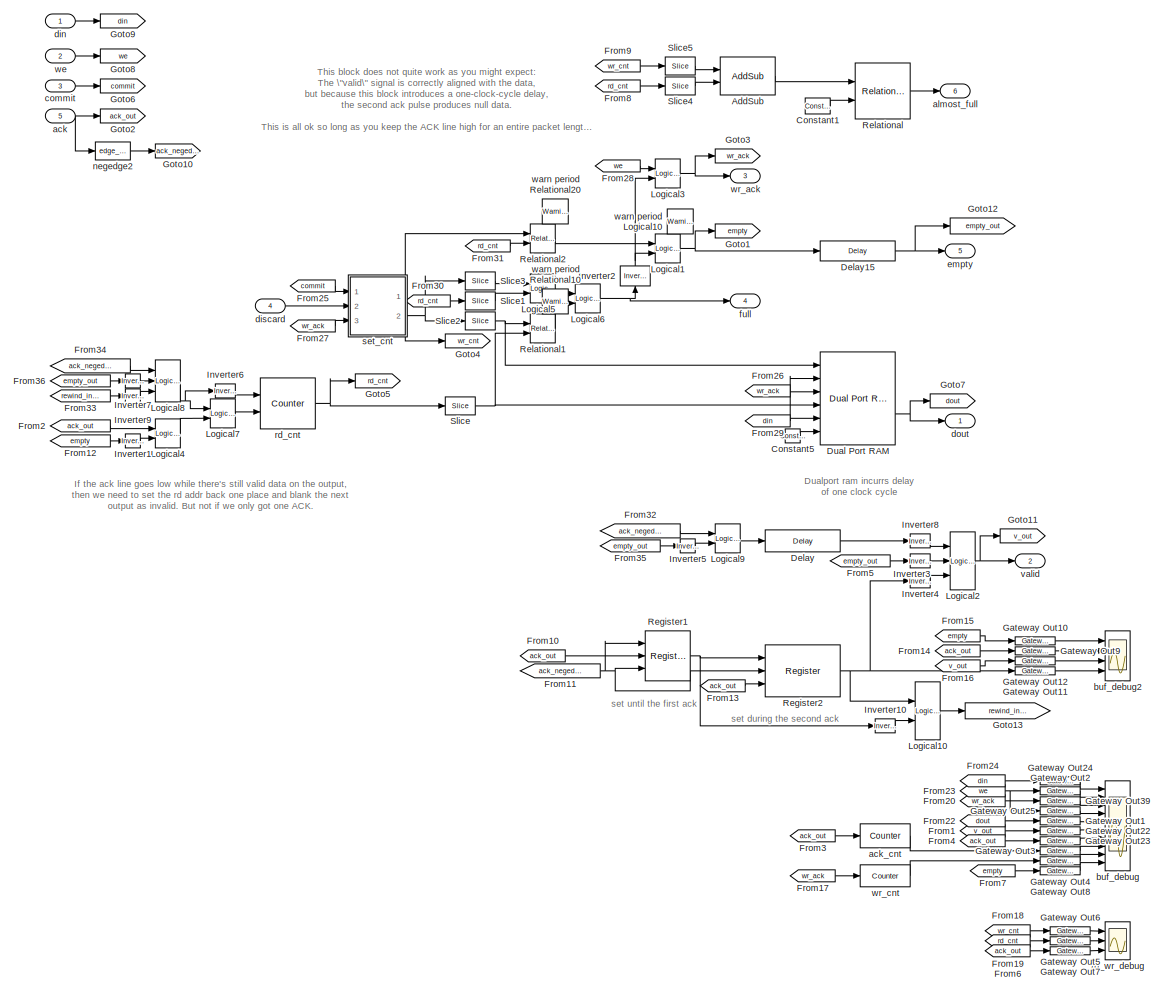
[diagram: pkt_buf/data_FWFT - part 1/1, most of the canvas]
BLOCK [SubSystem] pkt_buf/data_FWFT
  AttributesFormatString = Depth: 1024
  FunctionWithSeparateData = off
  MaskHideContents = off
  MinAlgLoopOccurrences = off
  Opaque = off
  Ports = [5, 6]
  PropExecContextOutsideSubsystem = off
  RTWSystemCode = Auto
  RequestExecContextInheritance = off
  SID = 177
BLOCK [Reference] pkt_buf/data_FWFT/AddSub  REF=xbsIndex_r4/AddSub
  Ports = [2, 1]
  SID = 183
  SourceBlock = xbsIndex_r4/AddSub
  SourceType = Xilinx Adder/Subtracter Block
  arith_type = Unsigned
  bin_pt = 0
  block_type = addsub
  block_version = 10.1.3
  dbl_ovrd = off
  en = off
  has_advanced_control = 0
  hw_selection = Fabric
  latency = 0
  mode = Subtraction
  n_bits = depth_bits
  overflow = Wrap
  pipelined = on
  precision = User Defined
  quantization = Truncate
  sg_icon_stat = 55,38,2,1,white,blue,0,32e1f85f,right,,[ ],[ ]
  sg_mask_display = fprintf('','COMMENT: begin icon graphics');\npatch([0 55 55 0 0 ],[0 0 38 38 0 ],[0.77 0.82 0.91 ]);\nplot([0 55 55 0 0 ],[0 0 38 38 0 ]);\npatch([15.875 23.1 28.1 33.1 38.1 28.1 20.875 15.875 ],[24.55 24.55 29.55 24.55 29.55 29.55 29.55 24.55 ],[1 1 1 ]);\npatch([20.875 28.1 23.1 15.875 20.875 ],[19.55 19.55 24.55 24.55 19.55 ],[0.931 0.946 0.973 ]);\npatch([15.875 23.1 28.1 20.875 15.875 ],[14.5...<+431ch>
  sggui_pos = 20,20,348,342
  use_behavioral_HDL = off
  use_carryin = off
  use_carryout = off
  use_rpm = on
  xl_area = [0,0,0,0,0,0,0]
  xl_use_area = off
BLOCK [Reference] pkt_buf/data_FWFT/Constant1  REF=xbsIndex_r4/Constant
  Ports = [0, 1]
  SID = 184
  SourceBlock = xbsIndex_r4/Constant
  SourceType = Xilinx Constant Block Block
  arith_type = Unsigned
  bin_pt = 0
  block_type = constant
  block_version = 10.1.3
  carry = CIN
  const = (2^depth_bits) - 2^(burst_bits)-1
  dbl_ovrd = off
  dsp48_infoedit = The use of this block for DSP48 instructions is deprecated.  Please use the Opmode block.
  equ = P=C
  exp_width = 8
  explicit_period = on
  frac_width = 24
  gui_display_data_type = Fixed-point
  has_advanced_control = 0
  inp1 = P
  inp2 = PCIN>>17
  n_bits = depth_bits+1
  opr = +
  opselect = C
  period = 1
  preci_type = Single
  sg_icon_stat = 25,16,0,1,white,blue,0,468bff1c,right,,[ ],[ ]
  sg_mask_display = fprintf('','COMMENT: begin icon graphics');\npatch([0 25 25 0 0 ],[0 0 16 16 0 ],[0.77 0.82 0.91 ]);\nplot([0 25 25 0 0 ],[0 0 16 16 0 ]);\npatch([7.55 10.44 12.44 14.44 16.44 12.44 9.55 7.55 ],[10.22 10.22 12.22 10.22 12.22 12.22 12.22 10.22 ],[1 1 1 ]);\npatch([9.55 12.44 10.44 7.55 9.55 ],[8.22 8.22 10.22 10.22 8.22 ],[0.931 0.946 0.973 ]);\npatch([7.55 10.44 12.44 9.55 7.55 ],[6.22 6.22 8.22 8...<+300ch>
  sggui_pos = 20,20,414,344
BLOCK [Reference] pkt_buf/data_FWFT/Constant5  REF=xbsIndex_r4/Constant
  Ports = [0, 1]
  SID = 185
  SourceBlock = xbsIndex_r4/Constant
  SourceType = Xilinx Constant Block Block
  arith_type = Boolean
  bin_pt = 0
  block_type = constant
  block_version = 10.1.3
  carry = CIN
  const = 0
  dbl_ovrd = off
  dsp48_infoedit = The use of this block for DSP48 instructions is deprecated.  Please use the Opmode block.
  equ = P=C
  exp_width = 8
  explicit_period = on
  frac_width = 24
  gui_display_data_type = Fixed-point
  has_advanced_control = 0
  inp1 = P
  inp2 = PCIN>>17
  n_bits = 1
  opr = +
  opselect = C
  period = 1
  preci_type = Single
  sg_icon_stat = 15,14,0,1,white,blue,0,bf4ddd8b,right,,[ ],[ ]
  sg_mask_display = fprintf('','COMMENT: begin icon graphics');\npatch([0 15 15 0 0 ],[0 0 14 14 0 ],[0.77 0.82 0.91 ]);\nplot([0 15 15 0 0 ],[0 0 14 14 0 ]);\npatch([2.55 5.44 7.44 9.44 11.44 7.44 4.55 2.55 ],[9.22 9.22 11.22 9.22 11.22 11.22 11.22 9.22 ],[1 1 1 ]);\npatch([4.55 7.44 5.44 2.55 4.55 ],[7.22 7.22 9.22 9.22 7.22 ],[0.931 0.946 0.973 ]);\npatch([2.55 5.44 7.44 4.55 2.55 ],[5.22 5.22 7.22 7.22 5.22 ],[1 ...<+281ch>
  sggui_pos = -1,-1,-1,-1
BLOCK [Reference] pkt_buf/data_FWFT/Delay  REF=xbsIndex_r4/Delay
  Ports = [1, 1]
  SID = 186
  SourceBlock = xbsIndex_r4/Delay
  SourceType = Xilinx Delay Block
  block_type = delay
  block_version = 10.1.3
  dbl_ovrd = off
  en = off
  has_advanced_control = 0
  infoedit = Hardware notes: A delay line is a chain, each link of which is an SRL16 followed by a flip-flop.
  infoeditControl = Selection of Reset will increase slice count due to use of real FFs and instead of SRLs
  latency = 1
  reg_retiming = on
  rst = off
  sg_icon_stat = 75,22,1,1,white,blue,0,07b98262,right,,[ ],[ ]
  sg_mask_display = fprintf('','COMMENT: begin icon graphics');\npatch([0 75 75 0 0 ],[0 0 22 22 0 ],[0.77 0.82 0.91 ]);\nplot([0 75 75 0 0 ],[0 0 22 22 0 ]);\npatch([30.325 34.66 37.66 40.66 43.66 37.66 33.325 30.325 ],[14.33 14.33 17.33 14.33 17.33 17.33 17.33 14.33 ],[1 1 1 ]);\npatch([33.325 37.66 34.66 30.325 33.325 ],[11.33 11.33 14.33 14.33 11.33 ],[0.931 0.946 0.973 ]);\npatch([30.325 34.66 37.66 33.325 30.32...<+334ch>
  sggui_pos = -1,-1,-1,-1
  xl_area = [0, 0, 0, 0, 0, 0, 0]
  xl_use_area = off
BLOCK [Reference] pkt_buf/data_FWFT/Delay15  REF=xbsIndex_r4/Delay
  Ports = [1, 1]
  SID = 187
  SourceBlock = xbsIndex_r4/Delay
  SourceType = Xilinx Delay Block
  block_type = delay
  block_version = 10.1.3
  dbl_ovrd = off
  en = off
  has_advanced_control = 0
  infoedit = Hardware notes: A delay line is a chain, each link of which is an SRL16 followed by a flip-flop.
  infoeditControl = Selection of Reset will increase slice count due to use of real FFs and instead of SRLs
  latency = 1
  reg_retiming = on
  rst = off
  sg_icon_stat = 75,20,1,1,white,blue,0,07b98262,right,,[ ],[ ]
  sg_mask_display = fprintf('','COMMENT: begin icon graphics');\npatch([0 75 75 0 0 ],[0 0 20 20 0 ],[0.77 0.82 0.91 ]);\nplot([0 75 75 0 0 ],[0 0 20 20 0 ]);\npatch([32.55 35.44 37.44 39.44 41.44 37.44 34.55 32.55 ],[12.22 12.22 14.22 12.22 14.22 14.22 14.22 12.22 ],[1 1 1 ]);\npatch([34.55 37.44 35.44 32.55 34.55 ],[10.22 10.22 12.22 12.22 10.22 ],[0.931 0.946 0.973 ]);\npatch([32.55 35.44 37.44 34.55 32.55 ],[8.22...<+322ch>
  sggui_pos = -1,-1,-1,-1
  xl_area = [0, 0, 0, 0, 0, 0, 0]
  xl_use_area = off
BLOCK [Reference] pkt_buf/data_FWFT/Dual Port RAM  REF=xbsIndex_r4/Dual Port RAM
  Ports = [6, 2]
  SID = 188
  SourceBlock = xbsIndex_r4/Dual Port RAM
  SourceType = Xilinx Dual Port Random Access Memory Block
  block_type = dpram
  block_version = 10.1.3
  dbl_ovrd = off
  depth = 2^depth_bits
  distributed_mem = Block RAM
  en_a = off
  en_b = off
  has_advanced_control = 0
  initVector = 0
  init_a = 0
  init_b = 0
  latency = 1
  optimize = Area
  rst_a = off
  rst_b = off
  sg_icon_stat = 75,93,6,2,white,blue,0,28af736d,right,,[ ],[ ]
  sg_mask_display = fprintf('','COMMENT: begin icon graphics');\npatch([0 75 75 0 0 ],[0 0 93 93 0 ],[0.77 0.82 0.91 ]);\nplot([0 75 75 0 0 ],[0 0 93 93 0 ]);\npatch([14.75 29.2 39.2 49.2 59.2 39.2 24.75 14.75 ],[57.1 57.1 67.1 57.1 67.1 67.1 67.1 57.1 ],[1 1 1 ]);\npatch([24.75 39.2 29.2 14.75 24.75 ],[47.1 47.1 57.1 57.1 47.1 ],[0.931 0.946 0.973 ]);\npatch([14.75 29.2 39.2 24.75 14.75 ],[37.1 37.1 47.1 47.1 37.1 ]...<+607ch>
  sggui_pos = -1,-1,-1,-1
  write_mode_A = Read Before Write
  write_mode_B = Read Before Write
  xl_area = [0, 0, 0, 0, 0, 0, 0]
  xl_use_area = off
BLOCK [From] pkt_buf/data_FWFT/From1
  CloseFcn = tagdialog Close
  GotoTag = v_out
  SID = 189
BLOCK [From] pkt_buf/data_FWFT/From10
  CloseFcn = tagdialog Close
  GotoTag = ack_out
  SID = 190
BLOCK [From] pkt_buf/data_FWFT/From11
  CloseFcn = tagdialog Close
  GotoTag = ack_negedge
  SID = 191
BLOCK [From] pkt_buf/data_FWFT/From12
  CloseFcn = tagdialog Close
  GotoTag = empty
  SID = 192
BLOCK [From] pkt_buf/data_FWFT/From13
  CloseFcn = tagdialog Close
  GotoTag = ack_out
  SID = 193
BLOCK [From] pkt_buf/data_FWFT/From14
  CloseFcn = tagdialog Close
  GotoTag = ack_out
  SID = 194
BLOCK [From] pkt_buf/data_FWFT/From15
  CloseFcn = tagdialog Close
  GotoTag = empty
  SID = 195
BLOCK [From] pkt_buf/data_FWFT/From16
  CloseFcn = tagdialog Close
  GotoTag = v_out
  SID = 196
BLOCK [From] pkt_buf/data_FWFT/From17
  CloseFcn = tagdialog Close
  GotoTag = wr_ack
  SID = 197
BLOCK [From] pkt_buf/data_FWFT/From18
  CloseFcn = tagdialog Close
  GotoTag = wr_cnt
  SID = 198
BLOCK [From] pkt_buf/data_FWFT/From19
  CloseFcn = tagdialog Close
  GotoTag = rd_cnt
  SID = 199
BLOCK [From] pkt_buf/data_FWFT/From2
  CloseFcn = tagdialog Close
  GotoTag = ack_out
  SID = 200
BLOCK [From] pkt_buf/data_FWFT/From20
  CloseFcn = tagdialog Close
  GotoTag = wr_ack
  SID = 201
BLOCK [From] pkt_buf/data_FWFT/From22
  CloseFcn = tagdialog Close
  GotoTag = dout
  SID = 202
BLOCK [From] pkt_buf/data_FWFT/From23
  CloseFcn = tagdialog Close
  GotoTag = we
  SID = 203
BLOCK [From] pkt_buf/data_FWFT/From24
  CloseFcn = tagdialog Close
  GotoTag = din
  SID = 204
BLOCK [From] pkt_buf/data_FWFT/From25
  CloseFcn = tagdialog Close
  GotoTag = commit
  SID = 205
BLOCK [From] pkt_buf/data_FWFT/From26
  CloseFcn = tagdialog Close
  GotoTag = wr_ack
  SID = 206
BLOCK [From] pkt_buf/data_FWFT/From27
  CloseFcn = tagdialog Close
  GotoTag = wr_ack
  SID = 207
BLOCK [From] pkt_buf/data_FWFT/From28
  CloseFcn = tagdialog Close
  GotoTag = we
  SID = 208
BLOCK [From] pkt_buf/data_FWFT/From29
  CloseFcn = tagdialog Close
  GotoTag = din
  SID = 209
BLOCK [From] pkt_buf/data_FWFT/From3
  CloseFcn = tagdialog Close
  GotoTag = ack_out
  SID = 210
BLOCK [From] pkt_buf/data_FWFT/From30
  CloseFcn = tagdialog Close
  GotoTag = rd_cnt
  SID = 211
BLOCK [From] pkt_buf/data_FWFT/From31
  CloseFcn = tagdialog Close
  GotoTag = rd_cnt
  SID = 212
BLOCK [From] pkt_buf/data_FWFT/From32
  CloseFcn = tagdialog Close
  GotoTag = ack_negedge
  SID = 213
BLOCK [From] pkt_buf/data_FWFT/From33
  CloseFcn = tagdialog Close
  GotoTag = rewind_inhibit
  SID = 214
BLOCK [From] pkt_buf/data_FWFT/From34
  CloseFcn = tagdialog Close
  GotoTag = ack_negedge
  SID = 215
BLOCK [From] pkt_buf/data_FWFT/From35
  CloseFcn = tagdialog Close
  GotoTag = empty_out
  SID = 216
BLOCK [From] pkt_buf/data_FWFT/From36
  CloseFcn = tagdialog Close
  GotoTag = empty_out
  SID = 217
BLOCK [From] pkt_buf/data_FWFT/From4
  CloseFcn = tagdialog Close
  GotoTag = ack_out
  SID = 218
BLOCK [From] pkt_buf/data_FWFT/From5
  CloseFcn = tagdialog Close
  GotoTag = empty_out
  SID = 219
BLOCK [From] pkt_buf/data_FWFT/From6
  CloseFcn = tagdialog Close
  GotoTag = ack_out
  SID = 220
BLOCK [From] pkt_buf/data_FWFT/From7
  CloseFcn = tagdialog Close
  GotoTag = empty
  SID = 221
BLOCK [From] pkt_buf/data_FWFT/From8
  CloseFcn = tagdialog Close
  GotoTag = rd_cnt
  SID = 222
BLOCK [From] pkt_buf/data_FWFT/From9
  CloseFcn = tagdialog Close
  GotoTag = wr_cnt
  SID = 223
BLOCK [Reference] pkt_buf/data_FWFT/Gateway Out1  REF=xbsIndex_r4/Gateway Out
  DACChannel = '1'
  LOCs = {}
  Ports = [1, 1]
  SID = 224
  SourceBlock = xbsIndex_r4/Gateway Out
  SourceType = Xilinx Gateway Out Block
  UseAsDAC = off
  block_type = gatewayout
  block_version = 10.1.3
  has_advanced_control = 0
  hdl_port = on
  inherit_from_input = off
  locs_specified = off
  sg_icon_stat = 40,8,1,1,white,yellow,1,cc31b7ac,right,,[ ],[ ]
  sg_mask_display = fprintf('','COMMENT: begin icon graphics');\npatch([0 40 40 0 0 ],[0 0 8 8 0 ],[0.95 0.93 0.65 ]);\nplot([0 40 40 0 0 ],[0 0 8 8 0 ]);\npatch([17.775 19.22 20.22 21.22 22.22 20.22 18.775 17.775 ],[5.11 5.11 6.11 5.11 6.11 6.11 6.11 5.11 ],[1 1 1 ]);\npatch([18.775 20.22 19.22 17.775 18.775 ],[4.11 4.11 5.11 5.11 4.11 ],[0.985 0.979 0.895 ]);\npatch([17.775 19.22 20.22 18.775 17.775 ],[3.11 3.11 4....<+390ch>  <repeated x17 — deduplicated; at blocks: Gateway Out1, Gateway Out10, Gateway Out11, Gateway Out12, Gateway Out2, Gateway Out22, Gateway Out23, Gateway Out24, Gateway Out25, Gateway Out3, Gateway Out39, Gateway Out4, Gateway Out5, Gateway Out6, Gateway Out7, Gateway Out8, +1 more>
  sggui_pos = -1,-1,-1,-1
  timing_constraint = None
  xl_area = [0, 0, 0, 0, 0, 0, 0]
  xl_use_area = off
BLOCK [Reference] pkt_buf/data_FWFT/Gateway Out10  REF=xbsIndex_r4/Gateway Out
  DACChannel = '1'
  LOCs = {}
  Ports = [1, 1]
  SID = 225
  SourceBlock = xbsIndex_r4/Gateway Out
  SourceType = Xilinx Gateway Out Block
  UseAsDAC = off
  block_type = gatewayout
  block_version = 10.1.3
  has_advanced_control = 0
  hdl_port = on
  inherit_from_input = off
  locs_specified = off
  sg_icon_stat = 40,8,1,1,white,yellow,1,cc31b7ac,right,,[ ],[ ]
  sggui_pos = -1,-1,-1,-1
  timing_constraint = None
  xl_area = [0, 0, 0, 0, 0, 0, 0]
  xl_use_area = off
BLOCK [Reference] pkt_buf/data_FWFT/Gateway Out11  REF=xbsIndex_r4/Gateway Out
  DACChannel = '1'
  LOCs = {}
  Ports = [1, 1]
  SID = 226
  SourceBlock = xbsIndex_r4/Gateway Out
  SourceType = Xilinx Gateway Out Block
  UseAsDAC = off
  block_type = gatewayout
  block_version = 10.1.3
  has_advanced_control = 0
  hdl_port = on
  inherit_from_input = off
  locs_specified = off
  sg_icon_stat = 40,8,1,1,white,yellow,1,cc31b7ac,right,,[ ],[ ]
  sggui_pos = -1,-1,-1,-1
  timing_constraint = None
  xl_area = [0, 0, 0, 0, 0, 0, 0]
  xl_use_area = off
BLOCK [Reference] pkt_buf/data_FWFT/Gateway Out12  REF=xbsIndex_r4/Gateway Out
  DACChannel = '1'
  LOCs = {}
  Ports = [1, 1]
  SID = 227
  SourceBlock = xbsIndex_r4/Gateway Out
  SourceType = Xilinx Gateway Out Block
  UseAsDAC = off
  block_type = gatewayout
  block_version = 10.1.3
  has_advanced_control = 0
  hdl_port = on
  inherit_from_input = off
  locs_specified = off
  sg_icon_stat = 40,8,1,1,white,yellow,1,cc31b7ac,right,,[ ],[ ]
  sggui_pos = -1,-1,-1,-1
  timing_constraint = None
  xl_area = [0, 0, 0, 0, 0, 0, 0]
  xl_use_area = off
BLOCK [Reference] pkt_buf/data_FWFT/Gateway Out2  REF=xbsIndex_r4/Gateway Out
  DACChannel = '1'
  LOCs = {}
  Ports = [1, 1]
  SID = 228
  SourceBlock = xbsIndex_r4/Gateway Out
  SourceType = Xilinx Gateway Out Block
  UseAsDAC = off
  block_type = gatewayout
  block_version = 10.1.3
  has_advanced_control = 0
  hdl_port = on
  inherit_from_input = off
  locs_specified = off
  sg_icon_stat = 40,8,1,1,white,yellow,1,cc31b7ac,right,,[ ],[ ]
  sggui_pos = -1,-1,-1,-1
  timing_constraint = None
  xl_area = [0, 0, 0, 0, 0, 0, 0]
  xl_use_area = off
BLOCK [Reference] pkt_buf/data_FWFT/Gateway Out22  REF=xbsIndex_r4/Gateway Out
  DACChannel = '1'
  LOCs = {}
  Ports = [1, 1]
  SID = 229
  SourceBlock = xbsIndex_r4/Gateway Out
  SourceType = Xilinx Gateway Out Block
  UseAsDAC = off
  block_type = gatewayout
  block_version = 10.1.3
  has_advanced_control = 0
  hdl_port = on
  inherit_from_input = off
  locs_specified = off
  sg_icon_stat = 40,8,1,1,white,yellow,1,cc31b7ac,right,,[ ],[ ]
  sggui_pos = -1,-1,-1,-1
  timing_constraint = None
  xl_area = [0, 0, 0, 0, 0, 0, 0]
  xl_use_area = off
BLOCK [Reference] pkt_buf/data_FWFT/Gateway Out23  REF=xbsIndex_r4/Gateway Out
  DACChannel = '1'
  LOCs = {}
  Ports = [1, 1]
  SID = 230
  SourceBlock = xbsIndex_r4/Gateway Out
  SourceType = Xilinx Gateway Out Block
  UseAsDAC = off
  block_type = gatewayout
  block_version = 10.1.3
  has_advanced_control = 0
  hdl_port = on
  inherit_from_input = off
  locs_specified = off
  sg_icon_stat = 40,8,1,1,white,yellow,1,cc31b7ac,right,,[ ],[ ]
  sggui_pos = -1,-1,-1,-1
  timing_constraint = None
  xl_area = [0, 0, 0, 0, 0, 0, 0]
  xl_use_area = off
BLOCK [Reference] pkt_buf/data_FWFT/Gateway Out24  REF=xbsIndex_r4/Gateway Out
  DACChannel = '1'
  LOCs = {}
  Ports = [1, 1]
  SID = 231
  SourceBlock = xbsIndex_r4/Gateway Out
  SourceType = Xilinx Gateway Out Block
  UseAsDAC = off
  block_type = gatewayout
  block_version = 10.1.3
  has_advanced_control = 0
  hdl_port = on
  inherit_from_input = off
  locs_specified = off
  sg_icon_stat = 40,8,1,1,white,yellow,1,cc31b7ac,right,,[ ],[ ]
  sggui_pos = -1,-1,-1,-1
  timing_constraint = None
  xl_area = [0, 0, 0, 0, 0, 0, 0]
  xl_use_area = off
BLOCK [Reference] pkt_buf/data_FWFT/Gateway Out25  REF=xbsIndex_r4/Gateway Out
  DACChannel = '1'
  LOCs = {}
  Ports = [1, 1]
  SID = 232
  SourceBlock = xbsIndex_r4/Gateway Out
  SourceType = Xilinx Gateway Out Block
  UseAsDAC = off
  block_type = gatewayout
  block_version = 10.1.3
  has_advanced_control = 0
  hdl_port = on
  inherit_from_input = off
  locs_specified = off
  sg_icon_stat = 40,8,1,1,white,yellow,1,cc31b7ac,right,,[ ],[ ]
  sggui_pos = -1,-1,-1,-1
  timing_constraint = None
  xl_area = [0, 0, 0, 0, 0, 0, 0]
  xl_use_area = off
BLOCK [Reference] pkt_buf/data_FWFT/Gateway Out3  REF=xbsIndex_r4/Gateway Out
  DACChannel = '1'
  LOCs = {}
  Ports = [1, 1]
  SID = 233
  SourceBlock = xbsIndex_r4/Gateway Out
  SourceType = Xilinx Gateway Out Block
  UseAsDAC = off
  block_type = gatewayout
  block_version = 10.1.3
  has_advanced_control = 0
  hdl_port = on
  inherit_from_input = off
  locs_specified = off
  sg_icon_stat = 40,8,1,1,white,yellow,1,cc31b7ac,right,,[ ],[ ]
  sggui_pos = -1,-1,-1,-1
  timing_constraint = None
  xl_area = [0, 0, 0, 0, 0, 0, 0]
  xl_use_area = off
BLOCK [Reference] pkt_buf/data_FWFT/Gateway Out39  REF=xbsIndex_r4/Gateway Out
  DACChannel = '1'
  LOCs = {}
  Ports = [1, 1]
  SID = 234
  SourceBlock = xbsIndex_r4/Gateway Out
  SourceType = Xilinx Gateway Out Block
  UseAsDAC = off
  block_type = gatewayout
  block_version = 10.1.3
  has_advanced_control = 0
  hdl_port = on
  inherit_from_input = off
  locs_specified = off
  sg_icon_stat = 40,8,1,1,white,yellow,1,cc31b7ac,right,,[ ],[ ]
  sggui_pos = -1,-1,-1,-1
  timing_constraint = None
  xl_area = [0, 0, 0, 0, 0, 0, 0]
  xl_use_area = off
BLOCK [Reference] pkt_buf/data_FWFT/Gateway Out4  REF=xbsIndex_r4/Gateway Out
  DACChannel = '1'
  LOCs = {}
  Ports = [1, 1]
  SID = 235
  SourceBlock = xbsIndex_r4/Gateway Out
  SourceType = Xilinx Gateway Out Block
  UseAsDAC = off
  block_type = gatewayout
  block_version = 10.1.3
  has_advanced_control = 0
  hdl_port = on
  inherit_from_input = off
  locs_specified = off
  sg_icon_stat = 40,8,1,1,white,yellow,1,cc31b7ac,right,,[ ],[ ]
  sggui_pos = -1,-1,-1,-1
  timing_constraint = None
  xl_area = [0, 0, 0, 0, 0, 0, 0]
  xl_use_area = off
BLOCK [Reference] pkt_buf/data_FWFT/Gateway Out5  REF=xbsIndex_r4/Gateway Out
  DACChannel = '1'
  LOCs = {}
  Ports = [1, 1]
  SID = 236
  SourceBlock = xbsIndex_r4/Gateway Out
  SourceType = Xilinx Gateway Out Block
  UseAsDAC = off
  block_type = gatewayout
  block_version = 10.1.3
  has_advanced_control = 0
  hdl_port = on
  inherit_from_input = off
  locs_specified = off
  sg_icon_stat = 40,8,1,1,white,yellow,1,cc31b7ac,right,,[ ],[ ]
  sggui_pos = -1,-1,-1,-1
  timing_constraint = None
  xl_area = [0, 0, 0, 0, 0, 0, 0]
  xl_use_area = off
BLOCK [Reference] pkt_buf/data_FWFT/Gateway Out6  REF=xbsIndex_r4/Gateway Out
  DACChannel = '1'
  LOCs = {}
  Ports = [1, 1]
  SID = 237
  SourceBlock = xbsIndex_r4/Gateway Out
  SourceType = Xilinx Gateway Out Block
  UseAsDAC = off
  block_type = gatewayout
  block_version = 10.1.3
  has_advanced_control = 0
  hdl_port = on
  inherit_from_input = off
  locs_specified = off
  sg_icon_stat = 40,8,1,1,white,yellow,1,cc31b7ac,right,,[ ],[ ]
  sggui_pos = -1,-1,-1,-1
  timing_constraint = None
  xl_area = [0, 0, 0, 0, 0, 0, 0]
  xl_use_area = off
BLOCK [Reference] pkt_buf/data_FWFT/Gateway Out7  REF=xbsIndex_r4/Gateway Out
  DACChannel = '1'
  LOCs = {}
  Ports = [1, 1]
  SID = 238
  SourceBlock = xbsIndex_r4/Gateway Out
  SourceType = Xilinx Gateway Out Block
  UseAsDAC = off
  block_type = gatewayout
  block_version = 10.1.3
  has_advanced_control = 0
  hdl_port = on
  inherit_from_input = off
  locs_specified = off
  sg_icon_stat = 40,8,1,1,white,yellow,1,cc31b7ac,right,,[ ],[ ]
  sggui_pos = -1,-1,-1,-1
  timing_constraint = None
  xl_area = [0, 0, 0, 0, 0, 0, 0]
  xl_use_area = off
BLOCK [Reference] pkt_buf/data_FWFT/Gateway Out8  REF=xbsIndex_r4/Gateway Out
  DACChannel = '1'
  LOCs = {}
  Ports = [1, 1]
  SID = 239
  SourceBlock = xbsIndex_r4/Gateway Out
  SourceType = Xilinx Gateway Out Block
  UseAsDAC = off
  block_type = gatewayout
  block_version = 10.1.3
  has_advanced_control = 0
  hdl_port = on
  inherit_from_input = off
  locs_specified = off
  sg_icon_stat = 40,8,1,1,white,yellow,1,cc31b7ac,right,,[ ],[ ]
  sggui_pos = -1,-1,-1,-1
  timing_constraint = None
  xl_area = [0, 0, 0, 0, 0, 0, 0]
  xl_use_area = off
BLOCK [Reference] pkt_buf/data_FWFT/Gateway Out9  REF=xbsIndex_r4/Gateway Out
  DACChannel = '1'
  LOCs = {}
  Ports = [1, 1]
  SID = 240
  SourceBlock = xbsIndex_r4/Gateway Out
  SourceType = Xilinx Gateway Out Block
  UseAsDAC = off
  block_type = gatewayout
  block_version = 10.1.3
  has_advanced_control = 0
  hdl_port = on
  inherit_from_input = off
  locs_specified = off
  sg_icon_stat = 40,8,1,1,white,yellow,1,cc31b7ac,right,,[ ],[ ]
  sggui_pos = -1,-1,-1,-1
  timing_constraint = None
  xl_area = [0, 0, 0, 0, 0, 0, 0]
  xl_use_area = off
BLOCK [Goto] pkt_buf/data_FWFT/Goto1
  GotoTag = empty
  SID = 241
BLOCK [Goto] pkt_buf/data_FWFT/Goto10
  GotoTag = ack_negedge
  SID = 242
BLOCK [Goto] pkt_buf/data_FWFT/Goto11
  GotoTag = v_out
  SID = 243
BLOCK [Goto] pkt_buf/data_FWFT/Goto12
  GotoTag = empty_out
  SID = 244
BLOCK [Goto] pkt_buf/data_FWFT/Goto13
  GotoTag = rewind_inhibit
  SID = 245
BLOCK [Goto] pkt_buf/data_FWFT/Goto2
  GotoTag = ack_out
  SID = 246
BLOCK [Goto] pkt_buf/data_FWFT/Goto3
  GotoTag = wr_ack
  SID = 247
BLOCK [Goto] pkt_buf/data_FWFT/Goto4
  GotoTag = wr_cnt
  SID = 248
BLOCK [Goto] pkt_buf/data_FWFT/Goto5
  GotoTag = rd_cnt
  SID = 249
BLOCK [Goto] pkt_buf/data_FWFT/Goto6
  GotoTag = commit
  SID = 250
BLOCK [Goto] pkt_buf/data_FWFT/Goto7
  GotoTag = dout
  SID = 251
BLOCK [Goto] pkt_buf/data_FWFT/Goto8
  GotoTag = we
  SID = 252
BLOCK [Goto] pkt_buf/data_FWFT/Goto9
  GotoTag = din
  SID = 253
BLOCK [Reference] pkt_buf/data_FWFT/Inverter1  REF=xbsIndex_r4/Inverter
  Ports = [1, 1]
  SID = 254
  SourceBlock = xbsIndex_r4/Inverter
  SourceType = Xilinx Inverter Block
  block_type = inv
  block_version = 10.1.3
  dbl_ovrd = off
  en = off
  has_advanced_control = 0
  infoedit = Bitwise logical negation (one's complement) operator.
  latency = 0
  sg_icon_stat = 15,14,1,1,white,blue,0,267846e5,right,,[ ],[ ]
  sg_mask_display = fprintf('','COMMENT: begin icon graphics');\npatch([0 15 15 0 0 ],[0 0 14 14 0 ],[0.77 0.82 0.91 ]);\nplot([0 15 15 0 0 ],[0 0 14 14 0 ]);\npatch([2.55 5.44 7.44 9.44 11.44 7.44 4.55 2.55 ],[9.22 9.22 11.22 9.22 11.22 11.22 11.22 9.22 ],[1 1 1 ]);\npatch([4.55 7.44 5.44 2.55 4.55 ],[7.22 7.22 9.22 9.22 7.22 ],[0.931 0.946 0.973 ]);\npatch([2.55 5.44 7.44 4.55 2.55 ],[5.22 5.22 7.22 7.22 5.22 ],[1 ...<+270ch>  <repeated x4 — deduplicated; at blocks: Inverter1, Inverter5, Inverter7, Inverter9>
  sggui_pos = -1,-1,-1,-1
  xl_area = [0, 0, 0, 0, 0, 0, 0]
  xl_use_area = off
BLOCK [Reference] pkt_buf/data_FWFT/Inverter10  REF=xbsIndex_r4/Inverter
  Ports = [1, 1]
  SID = 255
  SourceBlock = xbsIndex_r4/Inverter
  SourceType = Xilinx Inverter Block
  block_type = inv
  block_version = 10.1.3
  dbl_ovrd = off
  en = off
  has_advanced_control = 0
  infoedit = Bitwise logical negation (one's complement) operator.
  latency = 0
  sg_icon_stat = 20,14,1,1,white,blue,0,267846e5,right,,[ ],[ ]
  sg_mask_display = fprintf('','COMMENT: begin icon graphics');\npatch([0 20 20 0 0 ],[0 0 14 14 0 ],[0.77 0.82 0.91 ]);\nplot([0 20 20 0 0 ],[0 0 14 14 0 ]);\npatch([5.55 8.44 10.44 12.44 14.44 10.44 7.55 5.55 ],[9.22 9.22 11.22 9.22 11.22 11.22 11.22 9.22 ],[1 1 1 ]);\npatch([7.55 10.44 8.44 5.55 7.55 ],[7.22 7.22 9.22 9.22 7.22 ],[0.931 0.946 0.973 ]);\npatch([5.55 8.44 10.44 7.55 5.55 ],[5.22 5.22 7.22 7.22 5.22 ...<+277ch>  <repeated x5 — deduplicated; at blocks: Inverter10, Inverter3, Inverter4, Inverter6, Inverter8>
  sggui_pos = -1,-1,-1,-1
  xl_area = [0, 0, 0, 0, 0, 0, 0]
  xl_use_area = off
BLOCK [Reference] pkt_buf/data_FWFT/Inverter2  REF=xbsIndex_r4/Inverter
  Ports = [1, 1]
  SID = 256
  SourceBlock = xbsIndex_r4/Inverter
  SourceType = Xilinx Inverter Block
  block_type = inv
  block_version = 10.1.3
  dbl_ovrd = off
  en = off
  has_advanced_control = 0
  infoedit = Bitwise logical negation (one's complement) operator.
  latency = 0
  sg_icon_stat = 30,20,1,1,white,blue,0,267846e5,up,,[ ],[ ]
  sg_mask_display = fprintf('','COMMENT: begin icon graphics');\npatch([0 30 30 0 0 ],[0 0 20 20 0 ],[0.77 0.82 0.91 ]);\nplot([0 30 30 0 0 ],[0 0 20 20 0 ]);\npatch([10.55 13.44 15.44 17.44 19.44 15.44 12.55 10.55 ],[12.22 12.22 14.22 12.22 14.22 14.22 14.22 12.22 ],[1 1 1 ]);\npatch([12.55 15.44 13.44 10.55 12.55 ],[10.22 10.22 12.22 12.22 10.22 ],[0.931 0.946 0.973 ]);\npatch([10.55 13.44 15.44 12.55 10.55 ],[8.22...<+306ch>
  sggui_pos = -1,-1,-1,-1
  xl_area = [0, 0, 0, 0, 0, 0, 0]
  xl_use_area = off
BLOCK [Reference] pkt_buf/data_FWFT/Inverter3  REF=xbsIndex_r4/Inverter
  Ports = [1, 1]
  SID = 257
  SourceBlock = xbsIndex_r4/Inverter
  SourceType = Xilinx Inverter Block
  block_type = inv
  block_version = 10.1.3
  dbl_ovrd = off
  en = off
  has_advanced_control = 0
  infoedit = Bitwise logical negation (one's complement) operator.
  latency = 0
  sg_icon_stat = 20,14,1,1,white,blue,0,267846e5,right,,[ ],[ ]
  sggui_pos = -1,-1,-1,-1
  xl_area = [0, 0, 0, 0, 0, 0, 0]
  xl_use_area = off
BLOCK [Reference] pkt_buf/data_FWFT/Inverter4  REF=xbsIndex_r4/Inverter
  Ports = [1, 1]
  SID = 258
  SourceBlock = xbsIndex_r4/Inverter
  SourceType = Xilinx Inverter Block
  block_type = inv
  block_version = 10.1.3
  dbl_ovrd = off
  en = off
  has_advanced_control = 0
  infoedit = Bitwise logical negation (one's complement) operator.
  latency = 0
  sg_icon_stat = 20,14,1,1,white,blue,0,267846e5,right,,[ ],[ ]
  sggui_pos = -1,-1,-1,-1
  xl_area = [0, 0, 0, 0, 0, 0, 0]
  xl_use_area = off
BLOCK [Reference] pkt_buf/data_FWFT/Inverter5  REF=xbsIndex_r4/Inverter
  Ports = [1, 1]
  SID = 259
  SourceBlock = xbsIndex_r4/Inverter
  SourceType = Xilinx Inverter Block
  block_type = inv
  block_version = 10.1.3
  dbl_ovrd = off
  en = off
  has_advanced_control = 0
  infoedit = Bitwise logical negation (one's complement) operator.
  latency = 0
  sg_icon_stat = 15,14,1,1,white,blue,0,267846e5,right,,[ ],[ ]
  sggui_pos = -1,-1,-1,-1
  xl_area = [0, 0, 0, 0, 0, 0, 0]
  xl_use_area = off
BLOCK [Reference] pkt_buf/data_FWFT/Inverter6  REF=xbsIndex_r4/Inverter
  Ports = [1, 1]
  SID = 260
  SourceBlock = xbsIndex_r4/Inverter
  SourceType = Xilinx Inverter Block
  block_type = inv
  block_version = 10.1.3
  dbl_ovrd = off
  en = off
  has_advanced_control = 0
  infoedit = Bitwise logical negation (one's complement) operator.
  latency = 0
  sg_icon_stat = 20,14,1,1,white,blue,0,267846e5,right,,[ ],[ ]
  sggui_pos = -1,-1,-1,-1
  xl_area = [0, 0, 0, 0, 0, 0, 0]
  xl_use_area = off
BLOCK [Reference] pkt_buf/data_FWFT/Inverter7  REF=xbsIndex_r4/Inverter
  Ports = [1, 1]
  SID = 261
  SourceBlock = xbsIndex_r4/Inverter
  SourceType = Xilinx Inverter Block
  block_type = inv
  block_version = 10.1.3
  dbl_ovrd = off
  en = off
  has_advanced_control = 0
  infoedit = Bitwise logical negation (one's complement) operator.
  latency = 0
  sg_icon_stat = 15,14,1,1,white,blue,0,267846e5,right,,[ ],[ ]
  sggui_pos = -1,-1,-1,-1
  xl_area = [0, 0, 0, 0, 0, 0, 0]
  xl_use_area = off
BLOCK [Reference] pkt_buf/data_FWFT/Inverter8  REF=xbsIndex_r4/Inverter
  Ports = [1, 1]
  SID = 262
  SourceBlock = xbsIndex_r4/Inverter
  SourceType = Xilinx Inverter Block
  block_type = inv
  block_version = 10.1.3
  dbl_ovrd = off
  en = off
  has_advanced_control = 0
  infoedit = Bitwise logical negation (one's complement) operator.
  latency = 0
  sg_icon_stat = 20,14,1,1,white,blue,0,267846e5,right,,[ ],[ ]
  sggui_pos = -1,-1,-1,-1
  xl_area = [0, 0, 0, 0, 0, 0, 0]
  xl_use_area = off
BLOCK [Reference] pkt_buf/data_FWFT/Inverter9  REF=xbsIndex_r4/Inverter
  Ports = [1, 1]
  SID = 263
  SourceBlock = xbsIndex_r4/Inverter
  SourceType = Xilinx Inverter Block
  block_type = inv
  block_version = 10.1.3
  dbl_ovrd = off
  en = off
  has_advanced_control = 0
  infoedit = Bitwise logical negation (one's complement) operator.
  latency = 0
  sg_icon_stat = 15,14,1,1,white,blue,0,267846e5,right,,[ ],[ ]
  sggui_pos = -1,-1,-1,-1
  xl_area = [0, 0, 0, 0, 0, 0, 0]
  xl_use_area = off
BLOCK [Reference] pkt_buf/data_FWFT/Logical1  REF=xbsIndex_r4/Logical
  Ports = [2, 1]
  SID = 264
  SourceBlock = xbsIndex_r4/Logical
  SourceType = Xilinx Logical Block Block
  align_bp = on
  arith_type = Unsigned
  bin_pt = 2
  block_type = logical
  block_version = 10.1.3
  dbl_ovrd = off
  en = off
  has_advanced_control = 0
  inputs = 2
  latency = 0
  logical_function = AND
  n_bits = 8
  precision = Full
  sg_icon_stat = 25,29,2,1,white,blue,0,83a4b621,right,,[ ],[ ]
  sg_mask_display = fprintf('','COMMENT: begin icon graphics');\npatch([0 25 25 0 0 ],[0 0 29 29 0 ],[0.77 0.82 0.91 ]);\nplot([0 25 25 0 0 ],[0 0 29 29 0 ]);\npatch([5.325 9.66 12.66 15.66 18.66 12.66 8.325 5.325 ],[17.33 17.33 20.33 17.33 20.33 20.33 20.33 17.33 ],[1 1 1 ]);\npatch([8.325 12.66 9.66 5.325 8.325 ],[14.33 14.33 17.33 17.33 14.33 ],[0.931 0.946 0.973 ]);\npatch([5.325 9.66 12.66 8.325 5.325 ],[11.33 1...<+308ch>  <repeated x11 — deduplicated; at blocks: Logical1, Logical3, Logical4, Logical5, Logical6, Logical9>
  sggui_pos = -1,-1,-1,-1
  xl_area = [0, 0, 0, 0, 0, 0, 0]
  xl_use_area = off
BLOCK [Reference] pkt_buf/data_FWFT/Logical10  REF=xbsIndex_r4/Logical
  Ports = [2, 1]
  SID = 265
  SourceBlock = xbsIndex_r4/Logical
  SourceType = Xilinx Logical Block Block
  align_bp = on
  arith_type = Unsigned
  bin_pt = 2
  block_type = logical
  block_version = 10.1.3
  dbl_ovrd = off
  en = off
  has_advanced_control = 0
  inputs = 2
  latency = 0
  logical_function = AND
  n_bits = 8
  precision = Full
  sg_icon_stat = 25,58,2,1,white,blue,0,83a4b621,right,,[ ],[ ]
  sg_mask_display = fprintf('','COMMENT: begin icon graphics');\npatch([0 25 25 0 0 ],[0 0 58 58 0 ],[0.77 0.82 0.91 ]);\nplot([0 25 25 0 0 ],[0 0 58 58 0 ]);\npatch([5.325 9.66 12.66 15.66 18.66 12.66 8.325 5.325 ],[32.33 32.33 35.33 32.33 35.33 35.33 35.33 32.33 ],[1 1 1 ]);\npatch([8.325 12.66 9.66 5.325 8.325 ],[29.33 29.33 32.33 32.33 29.33 ],[0.931 0.946 0.973 ]);\npatch([5.325 9.66 12.66 8.325 5.325 ],[26.33 2...<+312ch>
  sggui_pos = 20,20,348,262
  xl_area = [0, 0, 0, 0, 0, 0, 0]
  xl_use_area = off
BLOCK [Reference] pkt_buf/data_FWFT/Logical2  REF=xbsIndex_r4/Logical
  Ports = [3, 1]
  SID = 266
  SourceBlock = xbsIndex_r4/Logical
  SourceType = Xilinx Logical Block Block
  align_bp = on
  arith_type = Unsigned
  bin_pt = 2
  block_type = logical
  block_version = 10.1.3
  dbl_ovrd = off
  en = off
  has_advanced_control = 0
  inputs = 3
  latency = 0
  logical_function = AND
  n_bits = 8
  precision = Full
  sg_icon_stat = 25,58,3,1,white,blue,0,98d76266,right,,[ ],[ ]
  sg_mask_display = fprintf('','COMMENT: begin icon graphics');\npatch([0 25 25 0 0 ],[0 0 58 58 0 ],[0.77 0.82 0.91 ]);\nplot([0 25 25 0 0 ],[0 0 58 58 0 ]);\npatch([5.325 9.66 12.66 15.66 18.66 12.66 8.325 5.325 ],[32.33 32.33 35.33 32.33 35.33 35.33 35.33 32.33 ],[1 1 1 ]);\npatch([8.325 12.66 9.66 5.325 8.325 ],[29.33 29.33 32.33 32.33 29.33 ],[0.931 0.946 0.973 ]);\npatch([5.325 9.66 12.66 8.325 5.325 ],[26.33 2...<+314ch>
  sggui_pos = -1,-1,-1,-1
  xl_area = [0, 0, 0, 0, 0, 0, 0]
  xl_use_area = off
BLOCK [Reference] pkt_buf/data_FWFT/Logical3  REF=xbsIndex_r4/Logical
  Ports = [2, 1]
  SID = 267
  SourceBlock = xbsIndex_r4/Logical
  SourceType = Xilinx Logical Block Block
  align_bp = on
  arith_type = Unsigned
  bin_pt = 2
  block_type = logical
  block_version = 10.1.3
  dbl_ovrd = off
  en = off
  has_advanced_control = 0
  inputs = 2
  latency = 0
  logical_function = AND
  n_bits = 8
  precision = Full
  sg_icon_stat = 25,29,2,1,white,blue,0,83a4b621,right,,[ ],[ ]
  sggui_pos = -1,-1,-1,-1
  xl_area = [0, 0, 0, 0, 0, 0, 0]
  xl_use_area = off
BLOCK [Reference] pkt_buf/data_FWFT/Logical4  REF=xbsIndex_r4/Logical
  Ports = [2, 1]
  SID = 268
  SourceBlock = xbsIndex_r4/Logical
  SourceType = Xilinx Logical Block Block
  align_bp = on
  arith_type = Unsigned
  bin_pt = 2
  block_type = logical
  block_version = 10.1.3
  dbl_ovrd = off
  en = off
  has_advanced_control = 0
  inputs = 2
  latency = 0
  logical_function = AND
  n_bits = 8
  precision = Full
  sg_icon_stat = 25,29,2,1,white,blue,0,83a4b621,right,,[ ],[ ]
  sggui_pos = -1,-1,-1,-1
  xl_area = [0, 0, 0, 0, 0, 0, 0]
  xl_use_area = off
BLOCK [Reference] pkt_buf/data_FWFT/Logical5  REF=xbsIndex_r4/Logical
  Ports = [2, 1]
  SID = 269
  SourceBlock = xbsIndex_r4/Logical
  SourceType = Xilinx Logical Block Block
  align_bp = on
  arith_type = Unsigned
  bin_pt = 2
  block_type = logical
  block_version = 10.1.3
  dbl_ovrd = off
  en = off
  has_advanced_control = 0
  inputs = 2
  latency = 0
  logical_function = XOR
  n_bits = 8
  precision = Full
  sg_icon_stat = 25,29,2,1,white,blue,0,dc21e094,right,,[ ],[ ]
  sggui_pos = -1,-1,-1,-1
  xl_area = [0, 0, 0, 0, 0, 0, 0]
  xl_use_area = off
BLOCK [Reference] pkt_buf/data_FWFT/Logical6  REF=xbsIndex_r4/Logical
  Ports = [2, 1]
  SID = 270
  SourceBlock = xbsIndex_r4/Logical
  SourceType = Xilinx Logical Block Block
  align_bp = on
  arith_type = Unsigned
  bin_pt = 2
  block_type = logical
  block_version = 10.1.3
  dbl_ovrd = off
  en = off
  has_advanced_control = 0
  inputs = 2
  latency = 0
  logical_function = AND
  n_bits = 8
  precision = Full
  sg_icon_stat = 25,29,2,1,white,blue,0,83a4b621,right,,[ ],[ ]
  sggui_pos = -1,-1,-1,-1
  xl_area = [0, 0, 0, 0, 0, 0, 0]
  xl_use_area = off
BLOCK [Reference] pkt_buf/data_FWFT/Logical7  REF=xbsIndex_r4/Logical
  Ports = [2, 1]
  SID = 271
  SourceBlock = xbsIndex_r4/Logical
  SourceType = Xilinx Logical Block Block
  align_bp = on
  arith_type = Unsigned
  bin_pt = 2
  block_type = logical
  block_version = 10.1.3
  dbl_ovrd = off
  en = off
  has_advanced_control = 0
  inputs = 2
  latency = 0
  logical_function = OR
  n_bits = 8
  precision = Full
  sg_icon_stat = 25,29,2,1,white,blue,0,7ede7d88,right,,[ ],[ ]
  sg_mask_display = fprintf('','COMMENT: begin icon graphics');\npatch([0 25 25 0 0 ],[0 0 29 29 0 ],[0.77 0.82 0.91 ]);\nplot([0 25 25 0 0 ],[0 0 29 29 0 ]);\npatch([5.325 9.66 12.66 15.66 18.66 12.66 8.325 5.325 ],[17.33 17.33 20.33 17.33 20.33 20.33 20.33 17.33 ],[1 1 1 ]);\npatch([8.325 12.66 9.66 5.325 8.325 ],[14.33 14.33 17.33 17.33 14.33 ],[0.931 0.946 0.973 ]);\npatch([5.325 9.66 12.66 8.325 5.325 ],[11.33 1...<+307ch>
  sggui_pos = -1,-1,-1,-1
  xl_area = [0, 0, 0, 0, 0, 0, 0]
  xl_use_area = off
BLOCK [Reference] pkt_buf/data_FWFT/Logical8  REF=xbsIndex_r4/Logical
  Ports = [3, 1]
  SID = 272
  SourceBlock = xbsIndex_r4/Logical
  SourceType = Xilinx Logical Block Block
  align_bp = on
  arith_type = Unsigned
  bin_pt = 2
  block_type = logical
  block_version = 10.1.3
  dbl_ovrd = off
  en = off
  has_advanced_control = 0
  inputs = 3
  latency = 0
  logical_function = AND
  n_bits = 8
  precision = Full
  sg_icon_stat = 25,42,3,1,white,blue,0,98d76266,right,,[ ],[ ]
  sg_mask_display = fprintf('','COMMENT: begin icon graphics');\npatch([0 25 25 0 0 ],[0 0 42 42 0 ],[0.77 0.82 0.91 ]);\nplot([0 25 25 0 0 ],[0 0 42 42 0 ]);\npatch([5.325 9.66 12.66 15.66 18.66 12.66 8.325 5.325 ],[24.33 24.33 27.33 24.33 27.33 27.33 27.33 24.33 ],[1 1 1 ]);\npatch([8.325 12.66 9.66 5.325 8.325 ],[21.33 21.33 24.33 24.33 21.33 ],[0.931 0.946 0.973 ]);\npatch([5.325 9.66 12.66 8.325 5.325 ],[18.33 1...<+314ch>
  sggui_pos = 20,20,348,262
  xl_area = [0, 0, 0, 0, 0, 0, 0]
  xl_use_area = off
BLOCK [Reference] pkt_buf/data_FWFT/Logical9  REF=xbsIndex_r4/Logical
  Ports = [2, 1]
  SID = 273
  SourceBlock = xbsIndex_r4/Logical
  SourceType = Xilinx Logical Block Block
  align_bp = on
  arith_type = Unsigned
  bin_pt = 2
  block_type = logical
  block_version = 10.1.3
  dbl_ovrd = off
  en = off
  has_advanced_control = 0
  inputs = 2
  latency = 0
  logical_function = AND
  n_bits = 8
  precision = Full
  sg_icon_stat = 25,29,2,1,white,blue,0,83a4b621,right,,[ ],[ ]
  sggui_pos = -1,-1,-1,-1
  xl_area = [0, 0, 0, 0, 0, 0, 0]
  xl_use_area = off
BLOCK [Reference] pkt_buf/data_FWFT/Register1  REF=xbsIndex_r4/Register
  Ports = [3, 1]
  SID = 274
  SourceBlock = xbsIndex_r4/Register
  SourceType = Xilinx Register Block
  block_type = register
  block_version = 10.1.3
  dbl_ovrd = off
  en = on
  has_advanced_control = 0
  init = 0
  rst = on
  sg_icon_stat = 45,50,3,1,white,blue,0,30546de1,right,,[ ],[ ]
  sg_mask_display = fprintf('','COMMENT: begin icon graphics');\npatch([0 45 45 0 0 ],[0 0 50 50 0 ],[0.77 0.82 0.91 ]);\nplot([0 45 45 0 0 ],[0 0 50 50 0 ]);\npatch([8.65 17.32 23.32 29.32 35.32 23.32 14.65 8.65 ],[31.66 31.66 37.66 31.66 37.66 37.66 37.66 31.66 ],[1 1 1 ]);\npatch([14.65 23.32 17.32 8.65 14.65 ],[25.66 25.66 31.66 31.66 25.66 ],[0.931 0.946 0.973 ]);\npatch([8.65 17.32 23.32 14.65 8.65 ],[19.66 19....<+498ch>
  sggui_pos = -1,-1,-1,-1
  xl_area = [0, 0, 0, 0, 0, 0, 0]
  xl_use_area = off
BLOCK [Reference] pkt_buf/data_FWFT/Register2  REF=xbsIndex_r4/Register
  Ports = [3, 1]
  SID = 275
  SourceBlock = xbsIndex_r4/Register
  SourceType = Xilinx Register Block
  block_type = register
  block_version = 10.1.3
  dbl_ovrd = off
  en = on
  has_advanced_control = 0
  init = 0
  rst = on
  sg_icon_stat = 75,52,3,1,white,blue,0,30546de1,right,,[ ],[ ]
  sg_mask_display = fprintf('','COMMENT: begin icon graphics');\npatch([0 75 75 0 0 ],[0 0 52 52 0 ],[0.77 0.82 0.91 ]);\nplot([0 75 75 0 0 ],[0 0 52 52 0 ]);\npatch([21.425 31.54 38.54 45.54 52.54 38.54 28.425 21.425 ],[33.77 33.77 40.77 33.77 40.77 40.77 40.77 33.77 ],[1 1 1 ]);\npatch([28.425 38.54 31.54 21.425 28.425 ],[26.77 26.77 33.77 33.77 26.77 ],[0.931 0.946 0.973 ]);\npatch([21.425 31.54 38.54 28.425 21.42...<+516ch>
  sggui_pos = -1,-1,-1,-1
  xl_area = [0, 0, 0, 0, 0, 0, 0]
  xl_use_area = off
BLOCK [Reference] pkt_buf/data_FWFT/Relational  REF=xbsIndex_r4/Relational
  Ports = [2, 1]
  SID = 276
  SourceBlock = xbsIndex_r4/Relational
  SourceType = Xilinx Arithmetic Relational Operator Block
  block_type = relational
  block_version = 10.1.3
  dbl_ovrd = off
  en = off
  has_advanced_control = 0
  latency = 1
  mode = a>b
  sg_icon_stat = 55,56,2,1,white,blue,0,3049caaa,right,,[ ],[ ]
  sg_mask_display = fprintf('','COMMENT: begin icon graphics');\npatch([0 55 55 0 0 ],[0 0 56 56 0 ],[0.77 0.82 0.91 ]);\nplot([0 55 55 0 0 ],[0 0 56 56 0 ]);\npatch([11.425 21.54 28.54 35.54 42.54 28.54 18.425 11.425 ],[35.77 35.77 42.77 35.77 42.77 42.77 42.77 35.77 ],[1 1 1 ]);\npatch([18.425 28.54 21.54 11.425 18.425 ],[28.77 28.77 35.77 35.77 28.77 ],[0.931 0.946 0.973 ]);\npatch([11.425 21.54 28.54 18.425 11.42...<+534ch>
  sggui_pos = 20,20,348,192
  xl_area = [0,0,0,0,0,0,0]
  xl_use_area = off
BLOCK [Reference] pkt_buf/data_FWFT/Relational1  REF=xbsIndex_r4/Relational
  Ports = [2, 1]
  SID = 277
  SourceBlock = xbsIndex_r4/Relational
  SourceType = Xilinx Arithmetic Relational Operator Block
  block_type = relational
  block_version = 10.1.3
  dbl_ovrd = off
  en = off
  has_advanced_control = 0
  latency = 0
  mode = a=b
  sg_icon_stat = 25,29,2,1,white,blue,0,2a81ff49,right,,[ ],[ ]
  sg_mask_display = fprintf('','COMMENT: begin icon graphics');\npatch([0 25 25 0 0 ],[0 0 29 29 0 ],[0.77 0.82 0.91 ]);\nplot([0 25 25 0 0 ],[0 0 29 29 0 ]);\npatch([5.325 9.66 12.66 15.66 18.66 12.66 8.325 5.325 ],[17.33 17.33 20.33 17.33 20.33 20.33 20.33 17.33 ],[1 1 1 ]);\npatch([8.325 12.66 9.66 5.325 8.325 ],[14.33 14.33 17.33 17.33 14.33 ],[0.931 0.946 0.973 ]);\npatch([5.325 9.66 12.66 8.325 5.325 ],[11.33 1...<+453ch>  <repeated x4 — deduplicated; at blocks: Relational1, Relational2>
  sggui_pos = -1,-1,-1,-1
  xl_area = [0, 0, 0, 0, 0, 0, 0]
  xl_use_area = off
BLOCK [Reference] pkt_buf/data_FWFT/Relational2  REF=xbsIndex_r4/Relational
  Ports = [2, 1]
  SID = 278
  SourceBlock = xbsIndex_r4/Relational
  SourceType = Xilinx Arithmetic Relational Operator Block
  block_type = relational
  block_version = 10.1.3
  dbl_ovrd = off
  en = off
  has_advanced_control = 0
  latency = 0
  mode = a=b
  sg_icon_stat = 25,29,2,1,white,blue,0,2a81ff49,right,,[ ],[ ]
  sggui_pos = -1,-1,-1,-1
  xl_area = [0, 0, 0, 0, 0, 0, 0]
  xl_use_area = off
BLOCK [Reference] pkt_buf/data_FWFT/Slice  REF=xbsIndex_r4/Slice
  Ports = [1, 1]
  SID = 279
  SourceBlock = xbsIndex_r4/Slice
  SourceType = Xilinx Bit Slice Extractor Block
  base0 = LSB of Input
  base1 = MSB of Input
  bit0 = 0
  bit1 = -1
  block_type = slice
  block_version = 10.1.3
  boolean_output = off
  dbl_ovrd = off
  has_advanced_control = 0
  mode = Two Bit Locations
  nbits = 1
  sg_icon_stat = 30,18,1,1,white,blue,0,1fd851a7,right,,[ ],[ ]
  sg_mask_display = fprintf('','COMMENT: begin icon graphics');\npatch([0 30 30 0 0 ],[0 0 18 18 0 ],[0.77 0.82 0.91 ]);\nplot([0 30 30 0 0 ],[0 0 18 18 0 ]);\npatch([10.55 13.44 15.44 17.44 19.44 15.44 12.55 10.55 ],[11.22 11.22 13.22 11.22 13.22 13.22 13.22 11.22 ],[1 1 1 ]);\npatch([12.55 15.44 13.44 10.55 12.55 ],[9.22 9.22 11.22 11.22 9.22 ],[0.931 0.946 0.973 ]);\npatch([10.55 13.44 15.44 12.55 10.55 ],[7.22 7....<+316ch>  <repeated x10 — deduplicated; at blocks: Slice, Slice1, Slice2, Slice3, Slice4, Slice5>
  sggui_pos = -1,-1,-1,-1
BLOCK [Reference] pkt_buf/data_FWFT/Slice1  REF=xbsIndex_r4/Slice
  Ports = [1, 1]
  SID = 280
  SourceBlock = xbsIndex_r4/Slice
  SourceType = Xilinx Bit Slice Extractor Block
  base0 = LSB of Input
  base1 = MSB of Input
  bit0 = 0
  bit1 = 0
  block_type = slice
  block_version = 10.1.3
  boolean_output = on
  dbl_ovrd = off
  has_advanced_control = 0
  mode = Upper Bit Location + Width
  nbits = 1
  sg_icon_stat = 30,18,1,1,white,blue,0,1fd851a7,right,,[ ],[ ]
  sggui_pos = -1,-1,-1,-1
BLOCK [Reference] pkt_buf/data_FWFT/Slice2  REF=xbsIndex_r4/Slice
  Ports = [1, 1]
  SID = 281
  SourceBlock = xbsIndex_r4/Slice
  SourceType = Xilinx Bit Slice Extractor Block
  base0 = LSB of Input
  base1 = MSB of Input
  bit0 = 0
  bit1 = -1
  block_type = slice
  block_version = 10.1.3
  boolean_output = off
  dbl_ovrd = off
  has_advanced_control = 0
  mode = Two Bit Locations
  nbits = 1
  sg_icon_stat = 30,18,1,1,white,blue,0,1fd851a7,right,,[ ],[ ]
  sggui_pos = -1,-1,-1,-1
BLOCK [Reference] pkt_buf/data_FWFT/Slice3  REF=xbsIndex_r4/Slice
  Ports = [1, 1]
  SID = 282
  SourceBlock = xbsIndex_r4/Slice
  SourceType = Xilinx Bit Slice Extractor Block
  base0 = LSB of Input
  base1 = MSB of Input
  bit0 = 0
  bit1 = 0
  block_type = slice
  block_version = 10.1.3
  boolean_output = on
  dbl_ovrd = off
  has_advanced_control = 0
  mode = Upper Bit Location + Width
  nbits = 1
  sg_icon_stat = 30,18,1,1,white,blue,0,1fd851a7,right,,[ ],[ ]
  sggui_pos = -1,-1,-1,-1
BLOCK [Reference] pkt_buf/data_FWFT/Slice4  REF=xbsIndex_r4/Slice
  Ports = [1, 1]
  SID = 283
  SourceBlock = xbsIndex_r4/Slice
  SourceType = Xilinx Bit Slice Extractor Block
  base0 = LSB of Input
  base1 = MSB of Input
  bit0 = 0
  bit1 = -1
  block_type = slice
  block_version = 10.1.3
  boolean_output = off
  dbl_ovrd = off
  has_advanced_control = 0
  mode = Two Bit Locations
  nbits = 1
  sg_icon_stat = 30,18,1,1,white,blue,0,1fd851a7,right,,[ ],[ ]
  sggui_pos = -1,-1,-1,-1
BLOCK [Reference] pkt_buf/data_FWFT/Slice5  REF=xbsIndex_r4/Slice
  Ports = [1, 1]
  SID = 284
  SourceBlock = xbsIndex_r4/Slice
  SourceType = Xilinx Bit Slice Extractor Block
  base0 = LSB of Input
  base1 = MSB of Input
  bit0 = 0
  bit1 = -1
  block_type = slice
  block_version = 10.1.3
  boolean_output = off
  dbl_ovrd = off
  has_advanced_control = 0
  mode = Two Bit Locations
  nbits = 1
  sg_icon_stat = 30,18,1,1,white,blue,0,1fd851a7,right,,[ ],[ ]
  sggui_pos = 20,20,460,380
BLOCK [Inport] pkt_buf/data_FWFT/ack
  IconDisplay = Port number
  Port = 5
  SID = 182
BLOCK [Reference] pkt_buf/data_FWFT/ack_cnt  REF=xbsIndex_r4/Counter
  Ports = [1, 1]
  SID = 285
  SourceBlock = xbsIndex_r4/Counter
  SourceType = Xilinx Counter Block
  arith_type = Unsigned
  bin_pt = 0
  block_type = counter
  block_version = 10.1.3
  cnt_by_val = 1
  cnt_to = Inf
  cnt_type = Free Running
  dbl_ovrd = off
  en = on
  explicit_period = on
  has_advanced_control = 0
  implementation = Fabric
  infoedit = Hardware notes: Free running counters are the least expensive in hardware.  A count limited counter is implemented by combining a counter with a comparator.
  load_pin = off
  n_bits = depth_bits + 1
  operation = Up
  period = 1
  rst = off
  sg_icon_stat = 50,24,1,1,white,blue,0,b089e9c5,right,,[ ],[ ]
  sg_mask_display = fprintf('','COMMENT: begin icon graphics');\npatch([0 50 50 0 0 ],[0 0 24 24 0 ],[0.77 0.82 0.91 ]);\nplot([0 50 50 0 0 ],[0 0 24 24 0 ]);\npatch([18.325 22.66 25.66 28.66 31.66 25.66 21.325 18.325 ],[15.33 15.33 18.33 15.33 18.33 18.33 18.33 15.33 ],[1 1 1 ]);\npatch([21.325 25.66 22.66 18.325 21.325 ],[12.33 12.33 15.33 15.33 12.33 ],[0.931 0.946 0.973 ]);\npatch([18.325 22.66 25.66 21.325 18.32...<+392ch>
  sggui_pos = -1,-1,-1,-1
  start_count = 0
  use_behavioral_HDL = on
  use_rpm = on
  xl_area = [0, 0, 0, 0, 0, 0, 0]
  xl_use_area = off
BLOCK [Outport] pkt_buf/data_FWFT/almost_full
  IconDisplay = Port number
  Port = 6
  SID = 312
BLOCK [Scope] pkt_buf/data_FWFT/buf_debug
  DataFormat = StructureWithTime
  Floating = off
  LimitDataPoints = off
  NumInputPorts = 10
  Ports = [10]
  SID = 286
  SampleTime = 0
  SaveName = ScopeData2
  ShowLegends = off
  YMax = 13300~1~10500~1~17250~5~5~5~5~5
  YMin = 12000~0~9500~0~15500~-5~-5~-5~-5~-5
  ZoomMode = xonly
BLOCK [Scope] pkt_buf/data_FWFT/buf_debug2
  DataFormat = StructureWithTime
  Floating = off
  LimitDataPoints = off
  NumInputPorts = 4
  Ports = [4]
  SID = 287
  SampleTime = 0
  SaveName = ScopeData3
  ShowLegends = off
  YMax = 1~1.05~1~1
  YMin = 0~0.95~0~-1
  ZoomMode = xonly
BLOCK [Inport] pkt_buf/data_FWFT/commit
  IconDisplay = Port number
  Port = 3
  SID = 180
BLOCK [Inport] pkt_buf/data_FWFT/din
  IconDisplay = Port number
  SID = 178
BLOCK [Inport] pkt_buf/data_FWFT/discard
  IconDisplay = Port number
  Port = 4
  SID = 181
BLOCK [Outport] pkt_buf/data_FWFT/dout
  IconDisplay = Port number
  SID = 307
BLOCK [Outport] pkt_buf/data_FWFT/empty
  IconDisplay = Port number
  Port = 5
  SID = 311
BLOCK [Outport] pkt_buf/data_FWFT/full
  IconDisplay = Port number
  Port = 4
  SID = 310
BLOCK [Reference] pkt_buf/data_FWFT/negedge2  REF=casper_library_misc/edge_detect  (lib defined in mdl_357510c33b49, mdl_57b5f564ae26, +4 more)
  AttributesFormatString = falling edges\nactive high
  Ports = [1, 1]
  SID = 288
  SourceBlock = casper_library_misc/edge_detect
  SourceType = edge_detect
  UserData = DataTag0
  UserDataPersistent = on
  edge = Falling
  polarity = Active High
  x_in = [0 0.08 0.08 0.16 0.16 0.24 0.24 0.32 0.32 0.4]
  x_out = [0.6 0.68 0.68 0.76 0.76 0.84 0.84 0.92 0.92 1]
  y_in = [1  1 -1 -1 -1 -1 -1 -1 -1 -1]
  y_out = [-1 -1  1  1 -1 -1 -1 -1 -1 -1]
BLOCK [Reference] pkt_buf/data_FWFT/rd_cnt  REF=xbsIndex_r4/Counter
  Ports = [2, 1]
  SID = 289
  SourceBlock = xbsIndex_r4/Counter
  SourceType = Xilinx Counter Block
  arith_type = Unsigned
  bin_pt = 0
  block_type = counter
  block_version = 10.1.3
  cnt_by_val = 1
  cnt_to = Inf
  cnt_type = Free Running
  dbl_ovrd = off
  en = on
  explicit_period = on
  has_advanced_control = 0
  implementation = Fabric
  infoedit = Hardware notes: Free running counters are the least expensive in hardware.  A count limited counter is implemented by combining a counter with a comparator.
  load_pin = off
  n_bits = depth_bits + 1
  operation = Up/Down
  period = 1
  rst = off
  sg_icon_stat = 55,53,1,1,white,blue,0,46a71b1b,right,,[ ],[ ]
  sg_mask_display = fprintf('','COMMENT: begin icon graphics');\npatch([0 55 55 0 0 ],[0 0 53 53 0 ],[0.77 0.82 0.91 ]);\nplot([0 55 55 0 0 ],[0 0 53 53 0 ]);\npatch([11.425 21.54 28.54 35.54 42.54 28.54 18.425 11.425 ],[33.77 33.77 40.77 33.77 40.77 40.77 40.77 33.77 ],[1 1 1 ]);\npatch([18.425 28.54 21.54 11.425 18.425 ],[26.77 26.77 33.77 33.77 26.77 ],[0.931 0.946 0.973 ]);\npatch([11.425 21.54 28.54 18.425 11.42...<+429ch>
  sggui_pos = 20,20,348,618
  start_count = 0
  use_behavioral_HDL = on
  use_rpm = on
  xl_area = [0, 0, 0, 0, 0, 0, 0]
  xl_use_area = off
BLOCK [Scope] pkt_buf/data_FWFT/rd_wr_debug
  DataFormat = StructureWithTime
  Floating = off
  LimitDataPoints = off
  NumInputPorts = 3
  Ports = [3]
  SID = 290
  SampleTime = 0
  SaveName = ScopeData4
  ShowLegends = off
  YMax = 300~1~1
  YMin = 150~0~0
  ZoomMode = xonly
BLOCK [SubSystem] pkt_buf/data_FWFT/set_cnt
  FunctionWithSeparateData = off
  MaskHideContents = off
  MinAlgLoopOccurrences = off
  Opaque = off
  Ports = [3, 2]
  PropExecContextOutsideSubsystem = off
  RTWSystemCode = Auto
  RequestExecContextInheritance = off
  SID = 291
BLOCK [Reference] pkt_buf/data_FWFT/set_cnt/Counter4  REF=xbsIndex_r4/Counter
  Ports = [3, 1]
  SID = 295
  SourceBlock = xbsIndex_r4/Counter
  SourceType = Xilinx Counter Block
  arith_type = Unsigned
  bin_pt = 0
  block_type = counter
  block_version = 10.1.3
  cnt_by_val = 1
  cnt_to = Inf
  cnt_type = Free Running
  dbl_ovrd = off
  en = on
  explicit_period = on
  has_advanced_control = 0
  implementation = Fabric
  infoedit = Hardware notes: Free running counters are the least expensive in hardware.  A count limited counter is implemented by combining a counter with a comparator.
  load_pin = on
  n_bits = depth_bits + 1
  operation = Up
  period = 1
  rst = off
  sg_icon_stat = 50,52,3,1,white,blue,0,4f561634,right,,[ ],[ ]
  sg_mask_display = fprintf('','COMMENT: begin icon graphics');\npatch([0 50 50 0 0 ],[0 0 52 52 0 ],[0.77 0.82 0.91 ]);\nplot([0 50 50 0 0 ],[0 0 52 52 0 ]);\npatch([9.425 19.54 26.54 33.54 40.54 26.54 16.425 9.425 ],[33.77 33.77 40.77 33.77 40.77 40.77 40.77 33.77 ],[1 1 1 ]);\npatch([16.425 26.54 19.54 9.425 16.425 ],[26.77 26.77 33.77 33.77 26.77 ],[0.931 0.946 0.973 ]);\npatch([9.425 19.54 26.54 16.425 9.425 ],[...<+487ch>
  sggui_pos = -1,-1,-1,-1
  start_count = 0
  use_behavioral_HDL = on
  use_rpm = on
  xl_area = [0, 0, 0, 0, 0, 0, 0]
  xl_use_area = off
BLOCK [Reference] pkt_buf/data_FWFT/set_cnt/Inverter  REF=xbsIndex_r4/Inverter
  Ports = [1, 1]
  SID = 296
  SourceBlock = xbsIndex_r4/Inverter
  SourceType = Xilinx Inverter Block
  block_type = inv
  block_version = 10.1.3
  dbl_ovrd = off
  en = off
  has_advanced_control = 0
  infoedit = Bitwise logical negation (one's complement) operator.
  latency = 0
  sg_icon_stat = 30,18,1,1,white,blue,0,267846e5,right,,[ ],[ ]
  sg_mask_display = fprintf('','COMMENT: begin icon graphics');\npatch([0 30 30 0 0 ],[0 0 18 18 0 ],[0.77 0.82 0.91 ]);\nplot([0 30 30 0 0 ],[0 0 18 18 0 ]);\npatch([10.55 13.44 15.44 17.44 19.44 15.44 12.55 10.55 ],[11.22 11.22 13.22 11.22 13.22 13.22 13.22 11.22 ],[1 1 1 ]);\npatch([12.55 15.44 13.44 10.55 12.55 ],[9.22 9.22 11.22 11.22 9.22 ],[0.931 0.946 0.973 ]);\npatch([10.55 13.44 15.44 12.55 10.55 ],[7.22 7....<+299ch>  <repeated x4 — deduplicated; at blocks: Inverter, Inverter1>
  sggui_pos = -1,-1,-1,-1
  xl_area = [0, 0, 0, 0, 0, 0, 0]
  xl_use_area = off
BLOCK [Reference] pkt_buf/data_FWFT/set_cnt/Inverter1  REF=xbsIndex_r4/Inverter
  Ports = [1, 1]
  SID = 297
  SourceBlock = xbsIndex_r4/Inverter
  SourceType = Xilinx Inverter Block
  block_type = inv
  block_version = 10.1.3
  dbl_ovrd = off
  en = off
  has_advanced_control = 0
  infoedit = Bitwise logical negation (one's complement) operator.
  latency = 0
  sg_icon_stat = 25,16,1,1,white,blue,0,267846e5,right,,[ ],[ ]
  sg_mask_display = fprintf('','COMMENT: begin icon graphics');\npatch([0 25 25 0 0 ],[0 0 16 16 0 ],[0.77 0.82 0.91 ]);\nplot([0 25 25 0 0 ],[0 0 16 16 0 ]);\npatch([7.55 10.44 12.44 14.44 16.44 12.44 9.55 7.55 ],[10.22 10.22 12.22 10.22 12.22 12.22 12.22 10.22 ],[1 1 1 ]);\npatch([9.55 12.44 10.44 7.55 9.55 ],[8.22 8.22 10.22 10.22 8.22 ],[0.931 0.946 0.973 ]);\npatch([7.55 10.44 12.44 9.55 7.55 ],[6.22 6.22 8.22 8...<+287ch>
  sggui_pos = -1,-1,-1,-1
  xl_area = [0, 0, 0, 0, 0, 0, 0]
  xl_use_area = off
BLOCK [Reference] pkt_buf/data_FWFT/set_cnt/Logical1  REF=xbsIndex_r4/Logical
  Ports = [3, 1]
  SID = 298
  SourceBlock = xbsIndex_r4/Logical
  SourceType = Xilinx Logical Block Block
  align_bp = on
  arith_type = Unsigned
  bin_pt = 2
  block_type = logical
  block_version = 10.1.3
  dbl_ovrd = off
  en = off
  has_advanced_control = 0
  inputs = 3
  latency = 0
  logical_function = AND
  n_bits = 8
  precision = Full
  sg_icon_stat = 25,30,3,1,white,blue,0,98d76266,right,,[ ],[ ]
  sg_mask_display = fprintf('','COMMENT: begin icon graphics');\npatch([0 25 25 0 0 ],[0 0 30 30 0 ],[0.77 0.82 0.91 ]);\nplot([0 25 25 0 0 ],[0 0 30 30 0 ]);\npatch([5.325 9.66 12.66 15.66 18.66 12.66 8.325 5.325 ],[18.33 18.33 21.33 18.33 21.33 21.33 21.33 18.33 ],[1 1 1 ]);\npatch([8.325 12.66 9.66 5.325 8.325 ],[15.33 15.33 18.33 18.33 15.33 ],[0.931 0.946 0.973 ]);\npatch([5.325 9.66 12.66 8.325 5.325 ],[12.33 1...<+312ch>
  sggui_pos = -1,-1,-1,-1
  xl_area = [0, 0, 0, 0, 0, 0, 0]
  xl_use_area = off
BLOCK [Reference] pkt_buf/data_FWFT/set_cnt/Logical4  REF=xbsIndex_r4/Logical
  Ports = [3, 1]
  SID = 299
  SourceBlock = xbsIndex_r4/Logical
  SourceType = Xilinx Logical Block Block
  align_bp = on
  arith_type = Unsigned
  bin_pt = 2
  block_type = logical
  block_version = 10.1.3
  dbl_ovrd = off
  en = off
  has_advanced_control = 0
  inputs = 3
  latency = 1
  logical_function = AND
  n_bits = 8
  precision = Full
  sg_icon_stat = 30,42,3,1,white,blue,0,e36395a3,right,,[ ],[ ]
  sg_mask_display = fprintf('','COMMENT: begin icon graphics');\npatch([0 30 30 0 0 ],[0 0 42 42 0 ],[0.77 0.82 0.91 ]);\nplot([0 30 30 0 0 ],[0 0 42 42 0 ]);\npatch([6.1 11.88 15.88 19.88 23.88 15.88 10.1 6.1 ],[25.44 25.44 29.44 25.44 29.44 29.44 29.44 25.44 ],[1 1 1 ]);\npatch([10.1 15.88 11.88 6.1 10.1 ],[21.44 21.44 25.44 25.44 21.44 ],[0.931 0.946 0.973 ]);\npatch([6.1 11.88 15.88 10.1 6.1 ],[17.44 17.44 21.44 ...<+361ch>
  sggui_pos = -1,-1,-1,-1
  xl_area = [0, 0, 0, 0, 0, 0, 0]
  xl_use_area = off
BLOCK [Reference] pkt_buf/data_FWFT/set_cnt/Register2  REF=xbsIndex_r4/Register
  Ports = [2, 1]
  SID = 300
  SourceBlock = xbsIndex_r4/Register
  SourceType = Xilinx Register Block
  block_type = register
  block_version = 10.1.3
  dbl_ovrd = off
  en = on
  has_advanced_control = 0
  init = 0
  rst = off
  sg_icon_stat = 45,53,2,1,white,blue,0,6bd0930c,right,,[ ],[ ]
  sg_mask_display = fprintf('','COMMENT: begin icon graphics');\npatch([0 45 45 0 0 ],[0 0 53 53 0 ],[0.77 0.82 0.91 ]);\nplot([0 45 45 0 0 ],[0 0 53 53 0 ]);\npatch([8.65 17.32 23.32 29.32 35.32 23.32 14.65 8.65 ],[32.66 32.66 38.66 32.66 38.66 38.66 38.66 32.66 ],[1 1 1 ]);\npatch([14.65 23.32 17.32 8.65 14.65 ],[26.66 26.66 32.66 32.66 26.66 ],[0.931 0.946 0.973 ]);\npatch([8.65 17.32 23.32 14.65 8.65 ],[20.66 20....<+455ch>
  sggui_pos = -1,-1,-1,-1
  xl_area = [0, 0, 0, 0, 0, 0, 0]
  xl_use_area = off
BLOCK [Outport] pkt_buf/data_FWFT/set_cnt/cnt
  IconDisplay = Port number
  Port = 2
  SID = 302
BLOCK [Inport] pkt_buf/data_FWFT/set_cnt/en
  IconDisplay = Port number
  Port = 3
  SID = 294
BLOCK [Inport] pkt_buf/data_FWFT/set_cnt/set
  IconDisplay = Port number
  SID = 292
BLOCK [Outport] pkt_buf/data_FWFT/set_cnt/set_cnt
  IconDisplay = Port number
  SID = 301
BLOCK [Inport] pkt_buf/data_FWFT/set_cnt/undo
  IconDisplay = Port number
  Port = 2
  SID = 293
BLOCK [Outport] pkt_buf/data_FWFT/valid
  IconDisplay = Port number
  Port = 2
  SID = 308
BLOCK [Reference] pkt_buf/data_FWFT/warn period Logical10  REF=xbsReplacements_r4/Warning
  Ports = []
  SID = 303
  SourceBlock = xbsReplacements_r4/Warning
  SourceType = Unknown
  period = 1
BLOCK [Reference] pkt_buf/data_FWFT/warn period Relational10  REF=xbsReplacements_r4/Warning
  Ports = []
  SID = 304
  SourceBlock = xbsReplacements_r4/Warning
  SourceType = Unknown
  period = 1
BLOCK [Reference] pkt_buf/data_FWFT/warn period Relational20  REF=xbsReplacements_r4/Warning
  Ports = []
  SID = 305
  SourceBlock = xbsReplacements_r4/Warning
  SourceType = Unknown
  period = 1
BLOCK [Inport] pkt_buf/data_FWFT/we
  IconDisplay = Port number
  Port = 2
  SID = 179
BLOCK [Outport] pkt_buf/data_FWFT/wr_ack
  IconDisplay = Port number
  Port = 3
  SID = 309
BLOCK [Reference] pkt_buf/data_FWFT/wr_cnt  REF=xbsIndex_r4/Counter
  Ports = [1, 1]
  SID = 306
  SourceBlock = xbsIndex_r4/Counter
  SourceType = Xilinx Counter Block
  arith_type = Unsigned
  bin_pt = 0
  block_type = counter
  block_version = 10.1.3
  cnt_by_val = 1
  cnt_to = Inf
  cnt_type = Free Running
  dbl_ovrd = off
  en = on
  explicit_period = on
  has_advanced_control = 0
  implementation = Fabric
  infoedit = Hardware notes: Free running counters are the least expensive in hardware.  A count limited counter is implemented by combining a counter with a comparator.
  load_pin = off
  n_bits = depth_bits + 1
  operation = Up
  period = 1
  rst = off
  sg_icon_stat = 50,22,1,1,white,blue,0,b089e9c5,right,,[ ],[ ]
  sg_mask_display = fprintf('','COMMENT: begin icon graphics');\npatch([0 50 50 0 0 ],[0 0 22 22 0 ],[0.77 0.82 0.91 ]);\nplot([0 50 50 0 0 ],[0 0 22 22 0 ]);\npatch([18.325 22.66 25.66 28.66 31.66 25.66 21.325 18.325 ],[14.33 14.33 17.33 14.33 17.33 17.33 17.33 14.33 ],[1 1 1 ]);\npatch([21.325 25.66 22.66 18.325 21.325 ],[11.33 11.33 14.33 14.33 11.33 ],[0.931 0.946 0.973 ]);\npatch([18.325 22.66 25.66 21.325 18.32...<+392ch>
  sggui_pos = -1,-1,-1,-1
  start_count = 0
  use_behavioral_HDL = on
  use_rpm = on
  xl_area = [0, 0, 0, 0, 0, 0, 0]
  xl_use_area = off
BLOCK [Scope] pkt_buf/data_debug
  DataFormat = StructureWithTime
  Floating = off
  LimitDataPoints = off
  NumInputPorts = 10
  Ports = [10]
  SID = 319
  SampleTime = 0
  SaveName = ScopeData8
  ShowLegends = off
  YMax = 13300~1~10500~1~17250~1~1~5~5~5
  YMin = 12000~0~9500~0~15500~0~0~-5~-5~-5
  ZoomMode = xonly
BLOCK [Inport] pkt_buf/dest_ip_0
  IconDisplay = Port number
  Port = 3
  SID = 90
BLOCK [Outport] pkt_buf/discard
  IconDisplay = Port number
  Port = 5
  SID = 373
BLOCK [Inport] pkt_buf/discard_in
  IconDisplay = Port number
  Port = 5
  SID = 92
BLOCK [Outport] pkt_buf/eof
  IconDisplay = Port number
  Port = 4
  SID = 372
BLOCK [Inport] pkt_buf/eof_in
  IconDisplay = Port number
  Port = 4
  SID = 91
BLOCK [Reference] pkt_buf/fifo_empty  REF=xbsIndex_r4/Logical
  Ports = [2, 1]
  SID = 320
  SourceBlock = xbsIndex_r4/Logical
  SourceType = Xilinx Logical Block Block
  align_bp = on
  arith_type = Unsigned
  bin_pt = 2
  block_type = logical
  block_version = 10.1.3
  dbl_ovrd = off
  en = off
  has_advanced_control = 0
  inputs = 2
  latency = 0
  logical_function = AND
  n_bits = 8
  precision = Full
  sg_icon_stat = 20,31,2,1,white,blue,0,83a4b621,right,,[ ],[ ]
  sg_mask_display = fprintf('','COMMENT: begin icon graphics');\npatch([0 20 20 0 0 ],[0 0 31 31 0 ],[0.77 0.82 0.91 ]);\nplot([0 20 20 0 0 ],[0 0 31 31 0 ]);\npatch([5.55 8.44 10.44 12.44 14.44 10.44 7.55 5.55 ],[17.22 17.22 19.22 17.22 19.22 19.22 19.22 17.22 ],[1 1 1 ]);\npatch([7.55 10.44 8.44 5.55 7.55 ],[15.22 15.22 17.22 17.22 15.22 ],[0.931 0.946 0.973 ]);\npatch([5.55 8.44 10.44 7.55 5.55 ],[13.22 13.22 15.2...<+300ch>
  sggui_pos = -1,-1,-1,-1
  xl_area = [0, 0, 0, 0, 0, 0, 0]
  xl_use_area = off
BLOCK [Reference] pkt_buf/fifo_full  REF=xbsIndex_r4/Logical
  Ports = [2, 1]
  SID = 321
  SourceBlock = xbsIndex_r4/Logical
  SourceType = Xilinx Logical Block Block
  align_bp = on
  arith_type = Unsigned
  bin_pt = 2
  block_type = logical
  block_version = 10.1.3
  dbl_ovrd = off
  en = off
  has_advanced_control = 0
  inputs = 2
  latency = 0
  logical_function = OR
  n_bits = 8
  precision = Full
  sg_icon_stat = 25,31,2,1,white,blue,0,7ede7d88,right,,[ ],[ ]
  sggui_pos = -1,-1,-1,-1
  xl_area = [0, 0, 0, 0, 0, 0, 0]
  xl_use_area = off
BLOCK [Outport] pkt_buf/ip_addr
  IconDisplay = Port number
  Port = 3
  SID = 371
BLOCK [Scope] pkt_buf/ip_debug
  DataFormat = StructureWithTime
  Floating = off
  LimitDataPoints = off
  NumInputPorts = 6
  Ports = [6]
  SID = 322
  SampleTime = 0
  SaveName = ScopeData9
  ShowLegends = off
  YMax = 103~1~1~103~1~5
  YMin = 100~0~0~100~0~-5
  ZoomMode = xonly
BLOCK [SubSystem] pkt_buf/ip_fifo
  AttributesFormatString = Depth: 32
  FunctionWithSeparateData = off
  MaskHideContents = off
  MinAlgLoopOccurrences = off
  Opaque = off
  Ports = [5, 4]
  PropExecContextOutsideSubsystem = off
  RTWSystemCode = Auto
  RequestExecContextInheritance = off
  SID = 323
BLOCK [Reference] pkt_buf/ip_fifo/Constant5  REF=xbsIndex_r4/Constant
  Ports = [0, 1]
  SID = 329
  SourceBlock = xbsIndex_r4/Constant
  SourceType = Xilinx Constant Block Block
  arith_type = Boolean
  bin_pt = 0
  block_type = constant
  block_version = 10.1.3
  carry = CIN
  const = 0
  dbl_ovrd = off
  dsp48_infoedit = The use of this block for DSP48 instructions is deprecated.  Please use the Opmode block.
  equ = P=C
  exp_width = 8
  explicit_period = on
  frac_width = 24
  gui_display_data_type = Fixed-point
  has_advanced_control = 0
  inp1 = P
  inp2 = PCIN>>17
  n_bits = 1
  opr = +
  opselect = C
  period = 1
  preci_type = Single
  sg_icon_stat = 30,18,0,1,white,blue,0,bf4ddd8b,right,,[ ],[ ]
  sg_mask_display = fprintf('','COMMENT: begin icon graphics');\npatch([0 30 30 0 0 ],[0 0 18 18 0 ],[0.77 0.82 0.91 ]);\nplot([0 30 30 0 0 ],[0 0 18 18 0 ]);\npatch([10.55 13.44 15.44 17.44 19.44 15.44 12.55 10.55 ],[11.22 11.22 13.22 11.22 13.22 13.22 13.22 11.22 ],[1 1 1 ]);\npatch([12.55 15.44 13.44 10.55 12.55 ],[9.22 9.22 11.22 11.22 9.22 ],[0.931 0.946 0.973 ]);\npatch([10.55 13.44 15.44 12.55 10.55 ],[7.22 7....<+310ch>
  sggui_pos = -1,-1,-1,-1
BLOCK [Reference] pkt_buf/ip_fifo/Dual Port RAM  REF=xbsIndex_r4/Dual Port RAM
  Ports = [6, 2]
  SID = 330
  SourceBlock = xbsIndex_r4/Dual Port RAM
  SourceType = Xilinx Dual Port Random Access Memory Block
  block_type = dpram
  block_version = 10.1.3
  dbl_ovrd = off
  depth = 2^depth_bits
  distributed_mem = Block RAM
  en_a = off
  en_b = off
  has_advanced_control = 0
  initVector = 0
  init_a = 0
  init_b = 0
  latency = 1
  optimize = Area
  rst_a = off
  rst_b = off
  sg_icon_stat = 75,95,6,2,white,blue,0,28af736d,right,,[ ],[ ]
  sg_mask_display = fprintf('','COMMENT: begin icon graphics');\npatch([0 75 75 0 0 ],[0 0 95 95 0 ],[0.77 0.82 0.91 ]);\nplot([0 75 75 0 0 ],[0 0 95 95 0 ]);\npatch([14.75 29.2 39.2 49.2 59.2 39.2 24.75 14.75 ],[58.1 58.1 68.1 58.1 68.1 68.1 68.1 58.1 ],[1 1 1 ]);\npatch([24.75 39.2 29.2 14.75 24.75 ],[48.1 48.1 58.1 58.1 48.1 ],[0.931 0.946 0.973 ]);\npatch([14.75 29.2 39.2 24.75 14.75 ],[38.1 38.1 48.1 48.1 38.1 ]...<+607ch>
  sggui_pos = -1,-1,-1,-1
  write_mode_A = Read Before Write
  write_mode_B = Read Before Write
  xl_area = [0, 0, 0, 0, 0, 0, 0]
  xl_use_area = off
BLOCK [Reference] pkt_buf/ip_fifo/Inverter1  REF=xbsIndex_r4/Inverter
  Ports = [1, 1]
  SID = 331
  SourceBlock = xbsIndex_r4/Inverter
  SourceType = Xilinx Inverter Block
  block_type = inv
  block_version = 10.1.3
  dbl_ovrd = off
  en = off
  has_advanced_control = 0
  infoedit = Bitwise logical negation (one's complement) operator.
  latency = 0
  sg_icon_stat = 30,18,1,1,white,blue,0,267846e5,right,,[ ],[ ]
  sggui_pos = -1,-1,-1,-1
  xl_area = [0, 0, 0, 0, 0, 0, 0]
  xl_use_area = off
BLOCK [Reference] pkt_buf/ip_fifo/Inverter2  REF=xbsIndex_r4/Inverter
  Ports = [1, 1]
  SID = 332
  SourceBlock = xbsIndex_r4/Inverter
  SourceType = Xilinx Inverter Block
  block_type = inv
  block_version = 10.1.3
  dbl_ovrd = off
  en = off
  has_advanced_control = 0
  infoedit = Bitwise logical negation (one's complement) operator.
  latency = 0
  sg_icon_stat = 30,20,1,1,white,blue,0,267846e5,up,,[ ],[ ]
  sg_mask_display = fprintf('','COMMENT: begin icon graphics');\npatch([0 30 30 0 0 ],[0 0 20 20 0 ],[0.77 0.82 0.91 ]);\nplot([0 30 30 0 0 ],[0 0 20 20 0 ]);\npatch([10.55 13.44 15.44 17.44 19.44 15.44 12.55 10.55 ],[12.22 12.22 14.22 12.22 14.22 14.22 14.22 12.22 ],[1 1 1 ]);\npatch([12.55 15.44 13.44 10.55 12.55 ],[10.22 10.22 12.22 12.22 10.22 ],[0.931 0.946 0.973 ]);\npatch([10.55 13.44 15.44 12.55 10.55 ],[8.22...<+306ch>
  sggui_pos = -1,-1,-1,-1
  xl_area = [0, 0, 0, 0, 0, 0, 0]
  xl_use_area = off
BLOCK [Reference] pkt_buf/ip_fifo/Logical1  REF=xbsIndex_r4/Logical
  Ports = [2, 1]
  SID = 333
  SourceBlock = xbsIndex_r4/Logical
  SourceType = Xilinx Logical Block Block
  align_bp = on
  arith_type = Unsigned
  bin_pt = 2
  block_type = logical
  block_version = 10.1.3
  dbl_ovrd = off
  en = off
  has_advanced_control = 0
  inputs = 2
  latency = 0
  logical_function = AND
  n_bits = 8
  precision = Full
  sg_icon_stat = 25,29,2,1,white,blue,0,83a4b621,right,,[ ],[ ]
  sggui_pos = -1,-1,-1,-1
  xl_area = [0, 0, 0, 0, 0, 0, 0]
  xl_use_area = off
BLOCK [Reference] pkt_buf/ip_fifo/Logical3  REF=xbsIndex_r4/Logical
  Ports = [2, 1]
  SID = 334
  SourceBlock = xbsIndex_r4/Logical
  SourceType = Xilinx Logical Block Block
  align_bp = on
  arith_type = Unsigned
  bin_pt = 2
  block_type = logical
  block_version = 10.1.3
  dbl_ovrd = off
  en = off
  has_advanced_control = 0
  inputs = 2
  latency = 0
  logical_function = AND
  n_bits = 8
  precision = Full
  sg_icon_stat = 25,29,2,1,white,blue,0,83a4b621,left,,[ ],[ ]
  sggui_pos = -1,-1,-1,-1
  xl_area = [0, 0, 0, 0, 0, 0, 0]
  xl_use_area = off
BLOCK [Reference] pkt_buf/ip_fifo/Logical4  REF=xbsIndex_r4/Logical
  Ports = [2, 1]
  SID = 335
  SourceBlock = xbsIndex_r4/Logical
  SourceType = Xilinx Logical Block Block
  align_bp = on
  arith_type = Unsigned
  bin_pt = 2
  block_type = logical
  block_version = 10.1.3
  dbl_ovrd = off
  en = off
  has_advanced_control = 0
  inputs = 2
  latency = 0
  logical_function = AND
  n_bits = 8
  precision = Full
  sg_icon_stat = 25,29,2,1,white,blue,0,83a4b621,right,,[ ],[ ]
  sggui_pos = -1,-1,-1,-1
  xl_area = [0, 0, 0, 0, 0, 0, 0]
  xl_use_area = off
BLOCK [Reference] pkt_buf/ip_fifo/Logical5  REF=xbsIndex_r4/Logical
  Ports = [2, 1]
  SID = 336
  SourceBlock = xbsIndex_r4/Logical
  SourceType = Xilinx Logical Block Block
  align_bp = on
  arith_type = Unsigned
  bin_pt = 2
  block_type = logical
  block_version = 10.1.3
  dbl_ovrd = off
  en = off
  has_advanced_control = 0
  inputs = 2
  latency = 0
  logical_function = XOR
  n_bits = 8
  precision = Full
  sg_icon_stat = 25,29,2,1,white,blue,0,dc21e094,right,,[ ],[ ]
  sggui_pos = -1,-1,-1,-1
  xl_area = [0, 0, 0, 0, 0, 0, 0]
  xl_use_area = off
BLOCK [Reference] pkt_buf/ip_fifo/Logical6  REF=xbsIndex_r4/Logical
  Ports = [2, 1]
  SID = 337
  SourceBlock = xbsIndex_r4/Logical
  SourceType = Xilinx Logical Block Block
  align_bp = on
  arith_type = Unsigned
  bin_pt = 2
  block_type = logical
  block_version = 10.1.3
  dbl_ovrd = off
  en = off
  has_advanced_control = 0
  inputs = 2
  latency = 0
  logical_function = AND
  n_bits = 8
  precision = Full
  sg_icon_stat = 25,29,2,1,white,blue,0,83a4b621,right,,[ ],[ ]
  sggui_pos = -1,-1,-1,-1
  xl_area = [0, 0, 0, 0, 0, 0, 0]
  xl_use_area = off
BLOCK [Reference] pkt_buf/ip_fifo/Relational1  REF=xbsIndex_r4/Relational
  Ports = [2, 1]
  SID = 338
  SourceBlock = xbsIndex_r4/Relational
  SourceType = Xilinx Arithmetic Relational Operator Block
  block_type = relational
  block_version = 10.1.3
  dbl_ovrd = off
  en = off
  has_advanced_control = 0
  latency = 0
  mode = a=b
  sg_icon_stat = 25,29,2,1,white,blue,0,2a81ff49,right,,[ ],[ ]
  sggui_pos = -1,-1,-1,-1
  xl_area = [0, 0, 0, 0, 0, 0, 0]
  xl_use_area = off
BLOCK [Reference] pkt_buf/ip_fifo/Relational2  REF=xbsIndex_r4/Relational
  Ports = [2, 1]
  SID = 339
  SourceBlock = xbsIndex_r4/Relational
  SourceType = Xilinx Arithmetic Relational Operator Block
  block_type = relational
  block_version = 10.1.3
  dbl_ovrd = off
  en = off
  has_advanced_control = 0
  latency = 0
  mode = a=b
  sg_icon_stat = 25,29,2,1,white,blue,0,2a81ff49,right,,[ ],[ ]
  sggui_pos = -1,-1,-1,-1
  xl_area = [0, 0, 0, 0, 0, 0, 0]
  xl_use_area = off
BLOCK [Reference] pkt_buf/ip_fifo/Slice  REF=xbsIndex_r4/Slice
  Ports = [1, 1]
  SID = 340
  SourceBlock = xbsIndex_r4/Slice
  SourceType = Xilinx Bit Slice Extractor Block
  base0 = LSB of Input
  base1 = MSB of Input
  bit0 = 0
  bit1 = -1
  block_type = slice
  block_version = 10.1.3
  boolean_output = off
  dbl_ovrd = off
  has_advanced_control = 0
  mode = Two Bit Locations
  nbits = 1
  sg_icon_stat = 30,18,1,1,white,blue,0,1fd851a7,right,,[ ],[ ]
  sggui_pos = -1,-1,-1,-1
BLOCK [Reference] pkt_buf/ip_fifo/Slice1  REF=xbsIndex_r4/Slice
  Ports = [1, 1]
  SID = 341
  SourceBlock = xbsIndex_r4/Slice
  SourceType = Xilinx Bit Slice Extractor Block
  base0 = LSB of Input
  base1 = MSB of Input
  bit0 = 0
  bit1 = 0
  block_type = slice
  block_version = 10.1.3
  boolean_output = on
  dbl_ovrd = off
  has_advanced_control = 0
  mode = Upper Bit Location + Width
  nbits = 1
  sg_icon_stat = 30,18,1,1,white,blue,0,1fd851a7,right,,[ ],[ ]
  sggui_pos = -1,-1,-1,-1
BLOCK [Reference] pkt_buf/ip_fifo/Slice2  REF=xbsIndex_r4/Slice
  Ports = [1, 1]
  SID = 342
  SourceBlock = xbsIndex_r4/Slice
  SourceType = Xilinx Bit Slice Extractor Block
  base0 = LSB of Input
  base1 = MSB of Input
  bit0 = 0
  bit1 = -1
  block_type = slice
  block_version = 10.1.3
  boolean_output = off
  dbl_ovrd = off
  has_advanced_control = 0
  mode = Two Bit Locations
  nbits = 1
  sg_icon_stat = 30,18,1,1,white,blue,0,1fd851a7,right,,[ ],[ ]
  sggui_pos = -1,-1,-1,-1
BLOCK [Reference] pkt_buf/ip_fifo/Slice3  REF=xbsIndex_r4/Slice
  Ports = [1, 1]
  SID = 343
  SourceBlock = xbsIndex_r4/Slice
  SourceType = Xilinx Bit Slice Extractor Block
  base0 = LSB of Input
  base1 = MSB of Input
  bit0 = 0
  bit1 = 0
  block_type = slice
  block_version = 10.1.3
  boolean_output = on
  dbl_ovrd = off
  has_advanced_control = 0
  mode = Upper Bit Location + Width
  nbits = 1
  sg_icon_stat = 30,18,1,1,white,blue,0,1fd851a7,right,,[ ],[ ]
  sggui_pos = -1,-1,-1,-1
BLOCK [Inport] pkt_buf/ip_fifo/commit
  IconDisplay = Port number
  Port = 3
  SID = 326
BLOCK [Inport] pkt_buf/ip_fifo/din
  IconDisplay = Port number
  SID = 324
BLOCK [Inport] pkt_buf/ip_fifo/discard
  IconDisplay = Port number
  Port = 4
  SID = 327
BLOCK [Outport] pkt_buf/ip_fifo/dout
  IconDisplay = Port number
  SID = 359
BLOCK [Outport] pkt_buf/ip_fifo/empty
  IconDisplay = Port number
  Port = 4
  SID = 362
BLOCK [Inport] pkt_buf/ip_fifo/fetch
  IconDisplay = Port number
  Port = 5
  SID = 328
BLOCK [Outport] pkt_buf/ip_fifo/full
  IconDisplay = Port number
  Port = 3
  SID = 361
BLOCK [Reference] pkt_buf/ip_fifo/rd_cnt  REF=xbsIndex_r4/Counter
  Ports = [1, 1]
  SID = 344
  SourceBlock = xbsIndex_r4/Counter
  SourceType = Xilinx Counter Block
  arith_type = Unsigned
  bin_pt = 0
  block_type = counter
  block_version = 10.1.3
  cnt_by_val = 1
  cnt_to = Inf
  cnt_type = Free Running
  dbl_ovrd = off
  en = on
  explicit_period = on
  has_advanced_control = 0
  implementation = Fabric
  infoedit = Hardware notes: Free running counters are the least expensive in hardware.  A count limited counter is implemented by combining a counter with a comparator.
  load_pin = off
  n_bits = depth_bits + 1
  operation = Up
  period = 1
  rst = off
  sg_icon_stat = 35,42,1,1,white,blue,0,b089e9c5,right,,[ ],[ ]
  sg_mask_display = fprintf('','COMMENT: begin icon graphics');\npatch([0 35 35 0 0 ],[0 0 42 42 0 ],[0.77 0.82 0.91 ]);\nplot([0 35 35 0 0 ],[0 0 42 42 0 ]);\npatch([5.875 13.1 18.1 23.1 28.1 18.1 10.875 5.875 ],[26.55 26.55 31.55 26.55 31.55 31.55 31.55 26.55 ],[1 1 1 ]);\npatch([10.875 18.1 13.1 5.875 10.875 ],[21.55 21.55 26.55 26.55 21.55 ],[0.931 0.946 0.973 ]);\npatch([5.875 13.1 18.1 10.875 5.875 ],[16.55 16....<+383ch>
  sggui_pos = -1,-1,-1,-1
  start_count = 0
  use_behavioral_HDL = on
  use_rpm = on
  xl_area = [0, 0, 0, 0, 0, 0, 0]
  xl_use_area = off
BLOCK [SubSystem] pkt_buf/ip_fifo/set_cnt
  FunctionWithSeparateData = off
  MaskHideContents = off
  MinAlgLoopOccurrences = off
  Opaque = off
  Ports = [3, 2]
  PropExecContextOutsideSubsystem = off
  RTWSystemCode = Auto
  RequestExecContextInheritance = off
  SID = 345
BLOCK [Reference] pkt_buf/ip_fifo/set_cnt/Counter4  REF=xbsIndex_r4/Counter
  Ports = [3, 1]
  SID = 349
  SourceBlock = xbsIndex_r4/Counter
  SourceType = Xilinx Counter Block
  arith_type = Unsigned
  bin_pt = 0
  block_type = counter
  block_version = 10.1.3
  cnt_by_val = 1
  cnt_to = Inf
  cnt_type = Free Running
  dbl_ovrd = off
  en = on
  explicit_period = on
  has_advanced_control = 0
  implementation = Fabric
  infoedit = Hardware notes: Free running counters are the least expensive in hardware.  A count limited counter is implemented by combining a counter with a comparator.
  load_pin = on
  n_bits = depth_bits + 1
  operation = Up
  period = 1
  rst = off
  sg_icon_stat = 50,52,3,1,white,blue,0,4f561634,right,,[ ],[ ]
  sg_mask_display = fprintf('','COMMENT: begin icon graphics');\npatch([0 50 50 0 0 ],[0 0 52 52 0 ],[0.77 0.82 0.91 ]);\nplot([0 50 50 0 0 ],[0 0 52 52 0 ]);\npatch([9.425 19.54 26.54 33.54 40.54 26.54 16.425 9.425 ],[33.77 33.77 40.77 33.77 40.77 40.77 40.77 33.77 ],[1 1 1 ]);\npatch([16.425 26.54 19.54 9.425 16.425 ],[26.77 26.77 33.77 33.77 26.77 ],[0.931 0.946 0.973 ]);\npatch([9.425 19.54 26.54 16.425 9.425 ],[...<+487ch>
  sggui_pos = -1,-1,-1,-1
  start_count = 0
  use_behavioral_HDL = on
  use_rpm = on
  xl_area = [0, 0, 0, 0, 0, 0, 0]
  xl_use_area = off
BLOCK [Reference] pkt_buf/ip_fifo/set_cnt/Inverter  REF=xbsIndex_r4/Inverter
  Ports = [1, 1]
  SID = 350
  SourceBlock = xbsIndex_r4/Inverter
  SourceType = Xilinx Inverter Block
  block_type = inv
  block_version = 10.1.3
  dbl_ovrd = off
  en = off
  has_advanced_control = 0
  infoedit = Bitwise logical negation (one's complement) operator.
  latency = 0
  sg_icon_stat = 30,18,1,1,white,blue,0,267846e5,right,,[ ],[ ]
  sggui_pos = -1,-1,-1,-1
  xl_area = [0, 0, 0, 0, 0, 0, 0]
  xl_use_area = off
BLOCK [Reference] pkt_buf/ip_fifo/set_cnt/Inverter1  REF=xbsIndex_r4/Inverter
  Ports = [1, 1]
  SID = 351
  SourceBlock = xbsIndex_r4/Inverter
  SourceType = Xilinx Inverter Block
  block_type = inv
  block_version = 10.1.3
  dbl_ovrd = off
  en = off
  has_advanced_control = 0
  infoedit = Bitwise logical negation (one's complement) operator.
  latency = 0
  sg_icon_stat = 25,16,1,1,white,blue,0,267846e5,right,,[ ],[ ]
  sg_mask_display = fprintf('','COMMENT: begin icon graphics');\npatch([0 25 25 0 0 ],[0 0 16 16 0 ],[0.77 0.82 0.91 ]);\nplot([0 25 25 0 0 ],[0 0 16 16 0 ]);\npatch([7.55 10.44 12.44 14.44 16.44 12.44 9.55 7.55 ],[10.22 10.22 12.22 10.22 12.22 12.22 12.22 10.22 ],[1 1 1 ]);\npatch([9.55 12.44 10.44 7.55 9.55 ],[8.22 8.22 10.22 10.22 8.22 ],[0.931 0.946 0.973 ]);\npatch([7.55 10.44 12.44 9.55 7.55 ],[6.22 6.22 8.22 8...<+287ch>
  sggui_pos = -1,-1,-1,-1
  xl_area = [0, 0, 0, 0, 0, 0, 0]
  xl_use_area = off
BLOCK [Reference] pkt_buf/ip_fifo/set_cnt/Logical1  REF=xbsIndex_r4/Logical
  Ports = [3, 1]
  SID = 352
  SourceBlock = xbsIndex_r4/Logical
  SourceType = Xilinx Logical Block Block
  align_bp = on
  arith_type = Unsigned
  bin_pt = 2
  block_type = logical
  block_version = 10.1.3
  dbl_ovrd = off
  en = off
  has_advanced_control = 0
  inputs = 3
  latency = 0
  logical_function = AND
  n_bits = 8
  precision = Full
  sg_icon_stat = 25,30,3,1,white,blue,0,98d76266,right,,[ ],[ ]
  sg_mask_display = fprintf('','COMMENT: begin icon graphics');\npatch([0 25 25 0 0 ],[0 0 30 30 0 ],[0.77 0.82 0.91 ]);\nplot([0 25 25 0 0 ],[0 0 30 30 0 ]);\npatch([5.325 9.66 12.66 15.66 18.66 12.66 8.325 5.325 ],[18.33 18.33 21.33 18.33 21.33 21.33 21.33 18.33 ],[1 1 1 ]);\npatch([8.325 12.66 9.66 5.325 8.325 ],[15.33 15.33 18.33 18.33 15.33 ],[0.931 0.946 0.973 ]);\npatch([5.325 9.66 12.66 8.325 5.325 ],[12.33 1...<+312ch>
  sggui_pos = -1,-1,-1,-1
  xl_area = [0, 0, 0, 0, 0, 0, 0]
  xl_use_area = off
BLOCK [Reference] pkt_buf/ip_fifo/set_cnt/Logical4  REF=xbsIndex_r4/Logical
  Ports = [3, 1]
  SID = 353
  SourceBlock = xbsIndex_r4/Logical
  SourceType = Xilinx Logical Block Block
  align_bp = on
  arith_type = Unsigned
  bin_pt = 2
  block_type = logical
  block_version = 10.1.3
  dbl_ovrd = off
  en = off
  has_advanced_control = 0
  inputs = 3
  latency = 1
  logical_function = AND
  n_bits = 8
  precision = Full
  sg_icon_stat = 30,42,3,1,white,blue,0,e36395a3,right,,[ ],[ ]
  sg_mask_display = fprintf('','COMMENT: begin icon graphics');\npatch([0 30 30 0 0 ],[0 0 42 42 0 ],[0.77 0.82 0.91 ]);\nplot([0 30 30 0 0 ],[0 0 42 42 0 ]);\npatch([6.1 11.88 15.88 19.88 23.88 15.88 10.1 6.1 ],[25.44 25.44 29.44 25.44 29.44 29.44 29.44 25.44 ],[1 1 1 ]);\npatch([10.1 15.88 11.88 6.1 10.1 ],[21.44 21.44 25.44 25.44 21.44 ],[0.931 0.946 0.973 ]);\npatch([6.1 11.88 15.88 10.1 6.1 ],[17.44 17.44 21.44 ...<+361ch>
  sggui_pos = -1,-1,-1,-1
  xl_area = [0, 0, 0, 0, 0, 0, 0]
  xl_use_area = off
BLOCK [Reference] pkt_buf/ip_fifo/set_cnt/Register2  REF=xbsIndex_r4/Register
  Ports = [2, 1]
  SID = 354
  SourceBlock = xbsIndex_r4/Register
  SourceType = Xilinx Register Block
  block_type = register
  block_version = 10.1.3
  dbl_ovrd = off
  en = on
  has_advanced_control = 0
  init = 0
  rst = off
  sg_icon_stat = 45,53,2,1,white,blue,0,6bd0930c,right,,[ ],[ ]
  sg_mask_display = fprintf('','COMMENT: begin icon graphics');\npatch([0 45 45 0 0 ],[0 0 53 53 0 ],[0.77 0.82 0.91 ]);\nplot([0 45 45 0 0 ],[0 0 53 53 0 ]);\npatch([8.65 17.32 23.32 29.32 35.32 23.32 14.65 8.65 ],[32.66 32.66 38.66 32.66 38.66 38.66 38.66 32.66 ],[1 1 1 ]);\npatch([14.65 23.32 17.32 8.65 14.65 ],[26.66 26.66 32.66 32.66 26.66 ],[0.931 0.946 0.973 ]);\npatch([8.65 17.32 23.32 14.65 8.65 ],[20.66 20....<+455ch>
  sggui_pos = -1,-1,-1,-1
  xl_area = [0, 0, 0, 0, 0, 0, 0]
  xl_use_area = off
BLOCK [Outport] pkt_buf/ip_fifo/set_cnt/cnt
  IconDisplay = Port number
  Port = 2
  SID = 356
BLOCK [Inport] pkt_buf/ip_fifo/set_cnt/en
  IconDisplay = Port number
  Port = 3
  SID = 348
BLOCK [Inport] pkt_buf/ip_fifo/set_cnt/set
  IconDisplay = Port number
  SID = 346
BLOCK [Outport] pkt_buf/ip_fifo/set_cnt/set_cnt
  IconDisplay = Port number
  SID = 355
BLOCK [Inport] pkt_buf/ip_fifo/set_cnt/undo
  IconDisplay = Port number
  Port = 2
  SID = 347
BLOCK [Reference] pkt_buf/ip_fifo/warn period Relational10  REF=xbsReplacements_r4/Warning
  Ports = []
  SID = 357
  SourceBlock = xbsReplacements_r4/Warning
  SourceType = Unknown
  period = 1
BLOCK [Reference] pkt_buf/ip_fifo/warn period Relational20  REF=xbsReplacements_r4/Warning
  Ports = []
  SID = 358
  SourceBlock = xbsReplacements_r4/Warning
  SourceType = Unknown
  period = 1
BLOCK [Inport] pkt_buf/ip_fifo/we
  IconDisplay = Port number
  Port = 2
  SID = 325
BLOCK [Outport] pkt_buf/ip_fifo/wr_ack
  IconDisplay = Port number
  Port = 2
  SID = 360
BLOCK [Reference] pkt_buf/overflow_cnt  REF=xps_library/software_register  (lib defined in mdl_00b5cec29cd0, mdl_02ab6ecaa3d1, +5 more)
  AttributesFormatString = 1output
  Ports = [1, 1]
  SID = 363
  SourceBlock = xps_library/software_register
  SourceType = swreg
  Tag = xps:sw_reg
  arith_types = 0
  bin_pts = 0
  bitwidths = 32
  io_delay = 0
  io_dir = To Processor
  mode = one value
  names = reg
  sample_period = 1
  show_format = off
  sim_port = on
BLOCK [Reference] pkt_buf/overflows  REF=xbsIndex_r4/Counter
  Ports = [1, 1]
  SID = 364
  SourceBlock = xbsIndex_r4/Counter
  SourceType = Xilinx Counter Block
  arith_type = Unsigned
  bin_pt = 0
  block_type = counter
  block_version = 10.1.3
  cnt_by_val = 1
  cnt_to = Inf
  cnt_type = Free Running
  dbl_ovrd = off
  en = on
  explicit_period = off
  has_advanced_control = 0
  implementation = Fabric
  infoedit = Hardware notes: Free running counters are the least expensive in hardware.  A count limited counter is implemented by combining a counter with a comparator.
  load_pin = off
  n_bits = 32
  operation = Up
  period = 1
  rst = off
  sg_icon_stat = 35,20,1,1,white,blue,0,b089e9c5,right,,[ ],[ ]
  sg_mask_display = fprintf('','COMMENT: begin icon graphics');\npatch([0 35 35 0 0 ],[0 0 20 20 0 ],[0.77 0.82 0.91 ]);\nplot([0 35 35 0 0 ],[0 0 20 20 0 ]);\npatch([12.55 15.44 17.44 19.44 21.44 17.44 14.55 12.55 ],[12.22 12.22 14.22 12.22 14.22 14.22 14.22 12.22 ],[1 1 1 ]);\npatch([14.55 17.44 15.44 12.55 14.55 ],[10.22 10.22 12.22 12.22 10.22 ],[0.931 0.946 0.973 ]);\npatch([12.55 15.44 17.44 14.55 12.55 ],[8.22...<+380ch>
  sggui_pos = -1,-1,-1,-1
  start_count = 0
  use_behavioral_HDL = on
  use_rpm = on
  xl_area = [0, 0, 0, 0, 0, 0, 0]
  xl_use_area = off
BLOCK [Reference] pkt_buf/status  REF=xps_library/software_register  (lib defined in mdl_00b5cec29cd0, mdl_02ab6ecaa3d1, +5 more)
  AttributesFormatString = 1output
  Ports = [1, 1]
  SID = 365
  SourceBlock = xps_library/software_register
  SourceType = swreg
  Tag = xps:sw_reg
  arith_types = 0
  bin_pts = 0
  bitwidths = 32
  io_delay = 0
  io_dir = To Processor
  mode = one value
  names = reg
  sample_period = 1
  show_format = off
  sim_port = on
BLOCK [Scope] pkt_buf/status1
  DataFormat = StructureWithTime
  Floating = off
  LimitDataPoints = off
  NumInputPorts = 4
  Ports = [4]
  SID = 366
  SampleTime = 0
  SaveName = ScopeData6
  ShowLegends = off
  YMax = 1~1~1~1
  YMin = -1~-1~-1~-1
  ZoomMode = xonly
BLOCK [Outport] pkt_buf/status_out
  IconDisplay = Port number
  Port = 9
  SID = 377
BLOCK [Outport] pkt_buf/valid
  IconDisplay = Port number
  Port = 2
  SID = 370
BLOCK [Reference] pkt_buf/valid_eof_0  REF=xbsIndex_r4/Logical
  Ports = [2, 1]
  SID = 367
  SourceBlock = xbsIndex_r4/Logical
  SourceType = Xilinx Logical Block Block
  align_bp = on
  arith_type = Unsigned
  bin_pt = 2
  block_type = logical
  block_version = 10.1.3
  dbl_ovrd = off
  en = off
  has_advanced_control = 0
  inputs = 2
  latency = 0
  logical_function = AND
  n_bits = 8
  precision = Full
  sg_icon_stat = 25,31,2,1,white,blue,0,83a4b621,right,,[ ],[ ]
  sggui_pos = -1,-1,-1,-1
  xl_area = [0, 0, 0, 0, 0, 0, 0]
  xl_use_area = off
BLOCK [Inport] pkt_buf/valid_in
  IconDisplay = Port number
  Port = 2
  SID = 89
BLOCK [Reference] pkt_buf/warn period Concat_status0  REF=xbsReplacements_r4/Warning
  Ports = []
  SID = 368
  SourceBlock = xbsReplacements_r4/Warning
  SourceType = Unknown
  period = 1
BLOCK [SubSystem] spead_pack
  FunctionWithSeparateData = off
  MaskHideContents = off
  MinAlgLoopOccurrences = off
  Opaque = off
  Ports = [10, 4]
  PropExecContextOutsideSubsystem = off
  RTWSystemCode = Auto
  RequestExecContextInheritance = off
  SID = 2709
  Tag = casper:spead_pack
BLOCK [Reference] spead_pack/AddSub  REF=xbsIndex_r4/AddSub
  Ports = [2, 1]
  SID = 2719
  SourceBlock = xbsIndex_r4/AddSub
  SourceType = Xilinx Adder/Subtracter Block
  arith_type = Unsigned
  bin_pt = 14
  block_type = addsub
  dbl_ovrd = off
  en = off
  has_advanced_control = 0
  hw_selection = Fabric
  latency = 0
  mode = Subtraction
  n_bits = 16
  overflow = Wrap
  pipelined = off
  precision = Full
  quantization = Truncate
  sg_icon_stat = 50,49,2,1,white,blue,0,32e1f85f,right,,[ ],[ ]
  sg_mask_display = fprintf('','COMMENT: begin icon graphics');\npatch([0 50 50 0 0 ],[0 0 49 49 0 ],[0.77 0.82 0.91 ]);\nplot([0 50 50 0 0 ],[0 0 49 49 0 ]);\npatch([9.425 19.54 26.54 33.54 40.54 26.54 16.425 9.425 ],[31.77 31.77 38.77 31.77 38.77 38.77 38.77 31.77 ],[1 1 1 ]);\npatch([16.425 26.54 19.54 9.425 16.425 ],[24.77 24.77 31.77 31.77 24.77 ],[0.931 0.946 0.973 ]);\npatch([9.425 19.54 26.54 16.425 9.425 ],[...<+442ch>
  sggui_pos = 20,25,416,343
  use_behavioral_HDL = off
  use_carryin = off
  use_carryout = off
  xl_area = [0,0,0,0,0,0,0]
  xl_use_area = off
BLOCK [Reference] spead_pack/Assert17  REF=xbsIndex_r4/Assert
  Ports = [1, 1]
  SID = 2720
  SourceBlock = xbsIndex_r4/Assert
  SourceType = Xilinx Assert Block
  arith_type = Unsigned
  assert_rate = off
  assert_type = on
  bin_pt = 0
  block_type = assert
  exp_width = 8
  frac_width = 24
  gui_display_data_type = Fixed-point
  has_advanced_control = 0
  infoedit = Asserts a user-defined sample rate and/or type on a signal.<br><br>Hardware notes: In hardware this block costs nothing.
  n_bits = 64
  output_port = on
  period = 1
  preci_type = Single
  rate_source = Explicitly
  sg_icon_stat = 45,20,1,1,white,blue,0,9657e937,right,,[ ],[ ]
  sg_mask_display = fprintf('','COMMENT: begin icon graphics');\npatch([0 45 45 0 0 ],[0 0 20 20 0 ],[0.77 0.82 0.91 ]);\nplot([0 45 45 0 0 ],[0 0 20 20 0 ]);\npatch([17.55 20.44 22.44 24.44 26.44 22.44 19.55 17.55 ],[12.22 12.22 14.22 12.22 14.22 14.22 14.22 12.22 ],[1 1 1 ]);\npatch([19.55 22.44 20.44 17.55 19.55 ],[10.22 10.22 12.22 12.22 10.22 ],[0.931 0.946 0.973 ]);\npatch([17.55 20.44 22.44 19.55 17.55 ],[8.22...<+307ch>  <repeated x3 — deduplicated; at blocks: Assert17, Assert18, assert_data>
  sggui_pos = 20,25,335,719
  type_source = Explicitly
BLOCK [Reference] spead_pack/Assert18  REF=xbsIndex_r4/Assert
  Ports = [1, 1]
  SID = 2721
  SourceBlock = xbsIndex_r4/Assert
  SourceType = Xilinx Assert Block
  arith_type = Unsigned
  assert_rate = off
  assert_type = on
  bin_pt = 0
  block_type = assert
  exp_width = 8
  frac_width = 24
  gui_display_data_type = Fixed-point
  has_advanced_control = 0
  infoedit = Asserts a user-defined sample rate and/or type on a signal.<br><br>Hardware notes: In hardware this block costs nothing.
  n_bits = spead_msw
  output_port = on
  period = 1
  preci_type = Single
  rate_source = Explicitly
  sg_icon_stat = 45,20,1,1,white,blue,0,9657e937,right,,[ ],[ ]
  sggui_pos = 20,25,335,719
  type_source = Explicitly
BLOCK [Reference] spead_pack/Assert5  REF=xbsIndex_r4/Assert
  Ports = [1, 1]
  SID = 2722
  SourceBlock = xbsIndex_r4/Assert
  SourceType = Xilinx Assert Block
  arith_type = Boolean
  assert_rate = off
  assert_type = on
  bin_pt = 0
  block_type = assert
  block_version = 10.1.3
  exp_width = 8
  frac_width = 24
  gui_display_data_type = Fixed-point
  has_advanced_control = 0
  infoedit = Asserts a user-defined sample rate and/or type on a signal.<br><br>Hardware notes: In hardware this block costs nothing.
  n_bits = 64
  output_port = on
  period = 1
  preci_type = Single
  rate_source = Explicitly
  sg_icon_stat = 35,20,1,1,white,blue,0,9657e937,right,,[ ],[ ]
  sg_mask_display = fprintf('','COMMENT: begin icon graphics');\npatch([0 35 35 0 0 ],[0 0 20 20 0 ],[0.77 0.82 0.91 ]);\nplot([0 35 35 0 0 ],[0 0 20 20 0 ]);\npatch([12.55 15.44 17.44 19.44 21.44 17.44 14.55 12.55 ],[12.22 12.22 14.22 12.22 14.22 14.22 14.22 12.22 ],[1 1 1 ]);\npatch([14.55 17.44 15.44 12.55 14.55 ],[10.22 10.22 12.22 12.22 10.22 ],[0.931 0.946 0.973 ]);\npatch([12.55 15.44 17.44 14.55 12.55 ],[8.22...<+307ch>  <repeated x7 — deduplicated; at blocks: Assert5, Assert6, Assert7, Assert1>
  sggui_pos = 535,236,348,719
  type_source = Explicitly
BLOCK [Reference] spead_pack/Assert6  REF=xbsIndex_r4/Assert
  Ports = [1, 1]
  SID = 2723
  SourceBlock = xbsIndex_r4/Assert
  SourceType = Xilinx Assert Block
  arith_type = Unsigned
  assert_rate = off
  assert_type = on
  bin_pt = 0
  block_type = assert
  block_version = 10.1.3
  exp_width = 8
  frac_width = 24
  gui_display_data_type = Fixed-point
  has_advanced_control = 0
  infoedit = Asserts a user-defined sample rate and/or type on a signal.<br><br>Hardware notes: In hardware this block costs nothing.
  n_bits = spead_msw
  output_port = on
  period = 1
  preci_type = Single
  rate_source = Explicitly
  sg_icon_stat = 35,20,1,1,white,blue,0,9657e937,right,,[ ],[ ]
  sggui_pos = 536,263,348,719
  type_source = Explicitly
BLOCK [Reference] spead_pack/Assert7  REF=xbsIndex_r4/Assert
  Ports = [1, 1]
  SID = 2724
  SourceBlock = xbsIndex_r4/Assert
  SourceType = Xilinx Assert Block
  arith_type = Boolean
  assert_rate = off
  assert_type = on
  bin_pt = 0
  block_type = assert
  block_version = 10.1.3
  exp_width = 8
  frac_width = 24
  gui_display_data_type = Boolean
  has_advanced_control = 0
  infoedit = Asserts a user-defined sample rate and/or type on a signal.<br><br>Hardware notes: In hardware this block costs nothing.
  n_bits = 64
  output_port = on
  period = 1
  preci_type = Single
  rate_source = Explicitly
  sg_icon_stat = 35,20,1,1,white,blue,0,9657e937,right,,[ ],[ ]
  sggui_pos = 535,236,348,719
  type_source = Explicitly
BLOCK [Reference] spead_pack/Concat  REF=xbsIndex_r4/Concat
  Ports = [6, 1]
  SID = 2725
  SourceBlock = xbsIndex_r4/Concat
  SourceType = Xilinx Bus Concatenator Block
  block_type = concat
  block_version = 10.1.3
  dbl_ovrd = off
  has_advanced_control = 0
  infoedit = Concatenates two or more inputs.  Output will be cast to an unsigned value with the binary point at zero.
  num_inputs = 6
  sg_icon_stat = 65,180,6,1,white,blue,0,c44eeefa,right,,[ ],[ ]
  sg_mask_display = fprintf('','COMMENT: begin icon graphics');\npatch([0 65 65 0 0 ],[0 0 180 180 0 ],[0.77 0.82 0.91 ]);\nplot([0 65 65 0 0 ],[0 0 180 180 0 ]);\npatch([11.975 24.98 33.98 42.98 51.98 33.98 20.975 11.975 ],[99.99 99.99 108.99 99.99 108.99 108.99 108.99 99.99 ],[1 1 1 ]);\npatch([20.975 33.98 24.98 11.975 20.975 ],[90.99 90.99 99.99 99.99 90.99 ],[0.931 0.946 0.973 ]);\npatch([11.975 24.98 33.98 20.9...<+457ch>
  sggui_pos = 20,24,348,216
BLOCK [Reference] spead_pack/Constant3  REF=xbsIndex_r4/Constant
  Ports = [0, 1]
  SID = 2726
  SourceBlock = xbsIndex_r4/Constant
  SourceType = Xilinx Constant Block Block
  arith_type = Unsigned
  bin_pt = 0
  block_type = constant
  block_version = 10.1.3
  carry = CIN
  const = 83
  dbl_ovrd = off
  dsp48_infoedit = The use of this block for DSP48 instructions is deprecated.  Please use the Opmode block.
  equ = P=C
  exp_width = 8
  explicit_period = on
  frac_width = 24
  gui_display_data_type = Fixed-point
  has_advanced_control = 0
  inp1 = P
  inp2 = PCIN>>17
  n_bits = 8
  opr = +
  opselect = C
  period = 1
  preci_type = Single
  sg_icon_stat = 20,14,0,1,white,blue,0,ead93515,right,,[ ],[ ]
  sg_list_contents = {'table'=>{'carry'=>'popup(0|1|CIN|~SIGN(P or PCIN)|~SIGN(A*B or A:B)|~SIGND(A*B or A:B))','inp1'=>'popup(0|P|A:B|A*B|C|P+C|A:B+C)','inp2'=>'popup(0|PCIN|P|C|PCIN>>17|P>>17)','opselect'=>'popup(C + A*B|PCIN + A*B|P + A*B|A * B|C + A:B|C - A:B|C|Custom)','userSelections'=>{'carry'=>'CIN','inp1'=>'P','inp2'=>'PCIN>>17','opselect'=>'C'}}}  <repeated x6 — deduplicated; at blocks: Constant3, Constant7, heap_addr_width, item_id_width>
  sg_mask_display = fprintf('','COMMENT: begin icon graphics');\npatch([0 20 20 0 0 ],[0 0 14 14 0 ],[0.77 0.82 0.91 ]);\nplot([0 20 20 0 0 ],[0 0 14 14 0 ]);\npatch([5.55 8.44 10.44 12.44 14.44 10.44 7.55 5.55 ],[9.22 9.22 11.22 9.22 11.22 11.22 11.22 9.22 ],[1 1 1 ]);\npatch([7.55 10.44 8.44 5.55 7.55 ],[7.22 7.22 9.22 9.22 7.22 ],[0.931 0.946 0.973 ]);\npatch([5.55 8.44 10.44 7.55 5.55 ],[5.22 5.22 7.22 7.22 5.22 ...<+289ch>
  sggui_pos = 490,101,474,439
BLOCK [Reference] spead_pack/Constant4  REF=xbsIndex_r4/Constant
  Ports = [0, 1]
  SID = 2727
  SourceBlock = xbsIndex_r4/Constant
  SourceType = Xilinx Constant Block Block
  arith_type = Unsigned
  bin_pt = 0
  block_type = constant
  block_version = 10.1.3
  carry = CIN
  const = spead_version
  dbl_ovrd = off
  dsp48_infoedit = The use of this block for DSP48 instructions is deprecated.  Please use the Opmode block.
  equ = P=C
  exp_width = 8
  explicit_period = on
  frac_width = 24
  gui_display_data_type = Fixed-point
  has_advanced_control = 0
  inp1 = P
  inp2 = PCIN>>17
  n_bits = 8
  opr = +
  opselect = C
  period = 1
  preci_type = Single
  sg_icon_stat = 20,14,0,1,white,blue,0,85f36853,right,,[ ],[ ]
  sg_mask_display = fprintf('','COMMENT: begin icon graphics');\npatch([0 20 20 0 0 ],[0 0 14 14 0 ],[0.77 0.82 0.91 ]);\nplot([0 20 20 0 0 ],[0 0 14 14 0 ]);\npatch([5.55 8.44 10.44 12.44 14.44 10.44 7.55 5.55 ],[9.22 9.22 11.22 9.22 11.22 11.22 11.22 9.22 ],[1 1 1 ]);\npatch([7.55 10.44 8.44 5.55 7.55 ],[7.22 7.22 9.22 9.22 7.22 ],[0.931 0.946 0.973 ]);\npatch([5.55 8.44 10.44 7.55 5.55 ],[5.22 5.22 7.22 7.22 5.22 ...<+288ch>  <repeated x10 — deduplicated; at blocks: Constant4, Constant7, heap_addr_width, item_id_width, num_headers, num_item_pts>
  sggui_pos = 490,101,414,491
BLOCK [Reference] spead_pack/Constant7  REF=xbsIndex_r4/Constant
  Ports = [0, 1]
  SID = 2728
  SourceBlock = xbsIndex_r4/Constant
  SourceType = Xilinx Constant Block Block
  arith_type = Unsigned
  bin_pt = 0
  block_type = constant
  block_version = 10.1.3
  carry = CIN
  const = 0
  dbl_ovrd = off
  dsp48_infoedit = The use of this block for DSP48 instructions is deprecated.  Please use the Opmode block.
  equ = P=C
  exp_width = 8
  explicit_period = on
  frac_width = 24
  gui_display_data_type = Fixed-point
  has_advanced_control = 0
  inp1 = P
  inp2 = PCIN>>17
  n_bits = 16
  opr = +
  opselect = C
  period = 1
  preci_type = Single
  sg_icon_stat = 20,14,0,1,white,blue,0,bf4ddd8b,right,,[ ],[ ]
  sggui_pos = 490,101,474,439
BLOCK [Reference] spead_pack/Delay1  REF=xbsIndex_r4/Delay
  Ports = [1, 1]
  SID = 2729
  SourceBlock = xbsIndex_r4/Delay
  SourceType = Xilinx Delay Block
  block_type = delay
  block_version = 11.4
  dbl_ovrd = off
  en = off
  has_advanced_control = 0
  infoedit = Hardware notes: A delay line is a chain, each link of which is an SRL16 followed by a flip-flop.
  infoeditControl = Selection of Reset will increase slice count due to use of real FFs and instead of SRLs
  latency = 1
  reg_retiming = on
  rst = off
  sg_icon_stat = 30,26,1,1,white,blue,0,07b98262,right,,[ ],[ ]
  sg_mask_display = fprintf('','COMMENT: begin icon graphics');\npatch([0 30 30 0 0 ],[0 0 26 26 0 ],[0.77 0.82 0.91 ]);\nplot([0 30 30 0 0 ],[0 0 26 26 0 ]);\npatch([8.325 12.66 15.66 18.66 21.66 15.66 11.325 8.325 ],[16.33 16.33 19.33 16.33 19.33 19.33 19.33 16.33 ],[1 1 1 ]);\npatch([11.325 15.66 12.66 8.325 11.325 ],[13.33 13.33 16.33 16.33 13.33 ],[0.931 0.946 0.973 ]);\npatch([8.325 12.66 15.66 11.325 8.325 ],[...<+336ch>  <repeated x5 — deduplicated; at blocks: Delay1, Delay3, delay_valid, Delay2, Delay4>
  sggui_pos = 20,44,419,315
  xl_area = [0,0,0,0,0,0,0]
  xl_use_area = off
BLOCK [Reference] spead_pack/Delay3  REF=xbsIndex_r4/Delay
  Ports = [1, 1]
  SID = 2730
  SourceBlock = xbsIndex_r4/Delay
  SourceType = Xilinx Delay Block
  block_type = delay
  block_version = 11.4
  dbl_ovrd = off
  en = off
  has_advanced_control = 0
  infoedit = Hardware notes: A delay line is a chain, each link of which is an SRL16 followed by a flip-flop.
  infoeditControl = Selection of Reset will increase slice count due to use of real FFs and instead of SRLs
  latency = 1
  reg_retiming = on
  rst = off
  sg_icon_stat = 30,26,1,1,white,blue,0,07b98262,right,,[ ],[ ]
  sggui_pos = 20,44,419,315
  xl_area = [0,0,0,0,0,0,0]
  xl_use_area = off
BLOCK [From] spead_pack/From1
  CloseFcn = tagdialog Close
  GotoTag = writing_pld
  SID = 2731
BLOCK [From] spead_pack/From2
  CloseFcn = tagdialog Close
  GotoTag = new_sync
  SID = 2732
BLOCK [From] spead_pack/From20
  CloseFcn = tagdialog Close
  GotoTag = new_sync
  SID = 2733
BLOCK [From] spead_pack/From21
  CloseFcn = tagdialog Close
  GotoTag = writing_header
  SID = 2734
BLOCK [From] spead_pack/From29
  CloseFcn = tagdialog Close
  GotoTag = writing_pld
  SID = 2735
BLOCK [From] spead_pack/From3
  CloseFcn = tagdialog Close
  GotoTag = hdr_4
  SID = 2736
BLOCK [From] spead_pack/From31
  CloseFcn = tagdialog Close
  GotoTag = output_select
  SID = 2737
BLOCK [From] spead_pack/From4
  CloseFcn = tagdialog Close
  GotoTag = pkt_data
  SID = 2738
BLOCK [From] spead_pack/From6
  CloseFcn = tagdialog Close
  GotoTag = new_sync
  SID = 2739
BLOCK [From] spead_pack/From7
  CloseFcn = tagdialog Close
  GotoTag = new_sync
  SID = 2740
BLOCK [From] spead_pack/From8
  CloseFcn = tagdialog Close
  GotoTag = writing_header
  SID = 2741
BLOCK [Goto] spead_pack/Goto1
  GotoTag = output_select
  SID = 2742
BLOCK [Goto] spead_pack/Goto11
  GotoTag = writing_header
  SID = 2743
BLOCK [Goto] spead_pack/Goto13
  GotoTag = writing_pld
  SID = 2744
BLOCK [Goto] spead_pack/Goto2
  GotoTag = pkt_data
  SID = 2745
BLOCK [Goto] spead_pack/Goto3
  GotoTag = new_sync
  SID = 2746
BLOCK [Reference] spead_pack/Logical1  REF=xbsIndex_r4/Logical
  Ports = [2, 1]
  SID = 2747
  SourceBlock = xbsIndex_r4/Logical
  SourceType = Xilinx Logical Block Block
  align_bp = on
  arith_type = Unsigned
  bin_pt = 2
  block_type = logical
  block_version = 10.1.3
  dbl_ovrd = off
  en = off
  has_advanced_control = 0
  inputs = 2
  latency = 0
  logical_function = AND
  n_bits = 8
  precision = Full
  sg_icon_stat = 40,40,2,1,white,blue,0,83a4b621,right,,[ ],[ ]
  sg_mask_display = fprintf('','COMMENT: begin icon graphics');\npatch([0 40 40 0 0 ],[0 0 40 40 0 ],[0.77 0.82 0.91 ]);\nplot([0 40 40 0 0 ],[0 0 40 40 0 ]);\npatch([8.875 16.1 21.1 26.1 31.1 21.1 13.875 8.875 ],[25.55 25.55 30.55 25.55 30.55 30.55 30.55 25.55 ],[1 1 1 ]);\npatch([13.875 21.1 16.1 8.875 13.875 ],[20.55 20.55 25.55 25.55 20.55 ],[0.931 0.946 0.973 ]);\npatch([8.875 16.1 21.1 13.875 8.875 ],[15.55 15....<+309ch>  <repeated x4 — deduplicated; at blocks: Logical1, Logical2, Logical4, error_gate>
  sggui_pos = 20,25,419,299
  xl_area = [0, 0, 0, 0, 0, 0, 0]
  xl_use_area = off
BLOCK [Reference] spead_pack/Logical2  REF=xbsIndex_r4/Logical
  Ports = [2, 1]
  SID = 2748
  SourceBlock = xbsIndex_r4/Logical
  SourceType = Xilinx Logical Block Block
  align_bp = on
  arith_type = Unsigned
  bin_pt = 2
  block_type = logical
  block_version = 10.1.3
  dbl_ovrd = off
  en = off
  has_advanced_control = 0
  inputs = 2
  latency = 0
  logical_function = AND
  n_bits = 8
  precision = Full
  sg_icon_stat = 40,40,2,1,white,blue,0,83a4b621,right,,[ ],[ ]
  sggui_pos = 20,25,419,299
  xl_area = [0, 0, 0, 0, 0, 0, 0]
  xl_use_area = off
BLOCK [Reference] spead_pack/Logical3  REF=xbsIndex_r4/Logical
  Ports = [2, 1]
  SID = 2749
  SourceBlock = xbsIndex_r4/Logical
  SourceType = Xilinx Logical Block Block
  align_bp = on
  arith_type = Unsigned
  bin_pt = 2
  block_type = logical
  block_version = 10.1.3
  dbl_ovrd = off
  en = off
  has_advanced_control = 0
  inputs = 2
  latency = 0
  logical_function = OR
  n_bits = 8
  precision = Full
  sg_icon_stat = 40,44,2,1,white,blue,0,7ede7d88,right,,[ ],[ ]
  sg_mask_display = fprintf('','COMMENT: begin icon graphics');\npatch([0 40 40 0 0 ],[0 0 44 44 0 ],[0.77 0.82 0.91 ]);\nplot([0 40 40 0 0 ],[0 0 44 44 0 ]);\npatch([8.875 16.1 21.1 26.1 31.1 21.1 13.875 8.875 ],[27.55 27.55 32.55 27.55 32.55 32.55 32.55 27.55 ],[1 1 1 ]);\npatch([13.875 21.1 16.1 8.875 13.875 ],[22.55 22.55 27.55 27.55 22.55 ],[0.931 0.946 0.973 ]);\npatch([8.875 16.1 21.1 13.875 8.875 ],[17.55 17....<+308ch>
  sggui_pos = 20,25,419,291
  xl_area = [0, 0, 0, 0, 0, 0, 0]
  xl_use_area = off
BLOCK [Reference] spead_pack/Logical4  REF=xbsIndex_r4/Logical
  Ports = [2, 1]
  SID = 2750
  SourceBlock = xbsIndex_r4/Logical
  SourceType = Xilinx Logical Block Block
  align_bp = on
  arith_type = Unsigned
  bin_pt = 2
  block_type = logical
  block_version = 10.1.3
  dbl_ovrd = off
  en = off
  has_advanced_control = 0
  inputs = 2
  latency = 0
  logical_function = AND
  n_bits = 8
  precision = Full
  sg_icon_stat = 40,40,2,1,white,blue,0,83a4b621,right,,[ ],[ ]
  sggui_pos = 20,25,419,299
  xl_area = [0, 0, 0, 0, 0, 0, 0]
  xl_use_area = off
BLOCK [Reference] spead_pack/Register1  REF=xbsIndex_r4/Register
  Ports = [3, 1]
  SID = 2751
  SourceBlock = xbsIndex_r4/Register
  SourceType = Xilinx Register Block
  block_type = register
  dbl_ovrd = off
  en = on
  has_advanced_control = 0
  init = 0
  rst = on
  sg_icon_stat = 50,56,3,1,white,blue,0,30546de1,right,,[ ],[ ]
  sg_mask_display = fprintf('','COMMENT: begin icon graphics');\npatch([0 50 50 0 0 ],[0 0 56 56 0 ],[0.77 0.82 0.91 ]);\nplot([0 50 50 0 0 ],[0 0 56 56 0 ]);\npatch([9.425 19.54 26.54 33.54 40.54 26.54 16.425 9.425 ],[35.77 35.77 42.77 35.77 42.77 42.77 42.77 35.77 ],[1 1 1 ]);\npatch([16.425 26.54 19.54 9.425 16.425 ],[28.77 28.77 35.77 35.77 28.77 ],[0.931 0.946 0.973 ]);\npatch([9.425 19.54 26.54 16.425 9.425 ],[...<+510ch>
  sggui_pos = 20,25,402,215
  xl_area = [0,0,0,0,0,0,0]
  xl_use_area = off
BLOCK [Reference] spead_pack/Register3  REF=xbsIndex_r4/Register
  Ports = [3, 1]
  SID = 2752
  SourceBlock = xbsIndex_r4/Register
  SourceType = Xilinx Register Block
  block_type = register
  dbl_ovrd = off
  en = on
  has_advanced_control = 0
  init = 0
  rst = on
  sg_icon_stat = 50,56,3,1,white,blue,0,30546de1,right,,[ ],[ ]
  sg_mask_display = fprintf('','COMMENT: begin icon graphics');\npatch([0 50 50 0 0 ],[0 0 56 56 0 ],[0.77 0.82 0.91 ]);\nplot([0 50 50 0 0 ],[0 0 56 56 0 ]);\npatch([9.425 19.54 26.54 33.54 40.54 26.54 16.425 9.425 ],[35.77 35.77 42.77 35.77 42.77 42.77 42.77 35.77 ],[1 1 1 ]);\npatch([16.425 26.54 19.54 9.425 16.425 ],[28.77 28.77 35.77 35.77 28.77 ],[0.931 0.946 0.973 ]);\npatch([9.425 19.54 26.54 16.425 9.425 ],[...<+510ch>
  sggui_pos = 20,25,402,215
  xl_area = [0,0,0,0,0,0,0]
  xl_use_area = off
BLOCK [Reference] spead_pack/Relational1  REF=xbsIndex_r4/Relational
  Ports = [2, 1]
  SID = 2753
  SourceBlock = xbsIndex_r4/Relational
  SourceType = Xilinx Arithmetic Relational Operator Block
  block_type = relational
  block_version = 10.1.3
  dbl_ovrd = off
  en = off
  has_advanced_control = 0
  latency = 0
  mode = a=b
  sg_icon_stat = 45,44,2,1,white,blue,0,2a81ff49,right,,[ ],[ ]
  sg_mask_display = fprintf('','COMMENT: begin icon graphics');\npatch([0 45 45 0 0 ],[0 0 44 44 0 ],[0.77 0.82 0.91 ]);\nplot([0 45 45 0 0 ],[0 0 44 44 0 ]);\npatch([8.65 17.32 23.32 29.32 35.32 23.32 14.65 8.65 ],[28.66 28.66 34.66 28.66 34.66 34.66 34.66 28.66 ],[1 1 1 ]);\npatch([14.65 23.32 17.32 8.65 14.65 ],[22.66 22.66 28.66 28.66 22.66 ],[0.931 0.946 0.973 ]);\npatch([8.65 17.32 23.32 14.65 8.65 ],[16.66 16....<+455ch>
  sggui_pos = 20,25,416,215
  xl_area = [0, 0, 0, 0, 0, 0, 0]
  xl_use_area = off
BLOCK [Reference] spead_pack/Relational2  REF=xbsIndex_r4/Relational
  Ports = [2, 1]
  SID = 2754
  SourceBlock = xbsIndex_r4/Relational
  SourceType = Xilinx Arithmetic Relational Operator Block
  block_type = relational
  block_version = 10.1.3
  dbl_ovrd = off
  en = off
  has_advanced_control = 0
  latency = 0
  mode = a<b
  sg_icon_stat = 45,44,2,1,white,blue,0,731fb07f,right,,[ ],[ ]
  sg_mask_display = fprintf('','COMMENT: begin icon graphics');\npatch([0 45 45 0 0 ],[0 0 44 44 0 ],[0.77 0.82 0.91 ]);\nplot([0 45 45 0 0 ],[0 0 44 44 0 ]);\npatch([8.65 17.32 23.32 29.32 35.32 23.32 14.65 8.65 ],[28.66 28.66 34.66 28.66 34.66 34.66 34.66 28.66 ],[1 1 1 ]);\npatch([14.65 23.32 17.32 8.65 14.65 ],[22.66 22.66 28.66 28.66 22.66 ],[0.931 0.946 0.973 ]);\npatch([8.65 17.32 23.32 14.65 8.65 ],[16.66 16....<+455ch>
  sggui_pos = 20,25,402,215
  xl_area = [0, 0, 0, 0, 0, 0, 0]
  xl_use_area = off
BLOCK [Reference] spead_pack/assert_data  REF=xbsIndex_r4/Assert
  Ports = [1, 1]
  SID = 2755
  SourceBlock = xbsIndex_r4/Assert
  SourceType = Xilinx Assert Block
  arith_type = Unsigned
  assert_rate = off
  assert_type = on
  bin_pt = 0
  block_type = assert
  exp_width = 8
  frac_width = 24
  gui_display_data_type = Fixed-point
  has_advanced_control = 0
  infoedit = Asserts a user-defined sample rate and/or type on a signal.<br><br>Hardware notes: In hardware this block costs nothing.
  n_bits = spead_msw
  output_port = on
  period = 1
  preci_type = Single
  rate_source = Explicitly
  sg_icon_stat = 45,20,1,1,white,blue,0,9657e937,right,,[ ],[ ]
  sggui_pos = 20,25,335,719
  type_source = Explicitly
BLOCK [Inport] spead_pack/data64
  IconDisplay = Port number
  Port = 3
  SID = 2712
BLOCK [Inport] spead_pack/data64_ready
  IconDisplay = Port number
  SID = 2710
BLOCK [Inport] spead_pack/data64_valid
  IconDisplay = Port number
  Port = 2
  SID = 2711
BLOCK [Reference] spead_pack/data_ctr  REF=xbsIndex_r4/Counter
  Ports = [2, 1]
  SID = 2756
  SourceBlock = xbsIndex_r4/Counter
  SourceType = Xilinx Counter Block
  arith_type = Unsigned
  bin_pt = 0
  block_type = counter
  block_version = 10.1.3
  cnt_by_val = 1
  cnt_to = 4
  cnt_type = Free Running
  dbl_ovrd = off
  en = on
  explicit_period = on
  has_advanced_control = 0
  implementation = Fabric
  infoedit = Hardware notes: Free running counters are the least expensive in hardware.  A count limited counter is implemented by combining a counter with a comparator.
  load_pin = off
  n_bits = max_pkt_len_bits + 1
  operation = Up
  period = 1
  rst = on
  sg_icon_stat = 50,49,2,1,white,blue,0,ae3608d6,right,,[ ],[ ]
  sg_mask_display = fprintf('','COMMENT: begin icon graphics');\npatch([0 50 50 0 0 ],[0 0 49 49 0 ],[0.77 0.82 0.91 ]);\nplot([0 50 50 0 0 ],[0 0 49 49 0 ]);\npatch([9.425 19.54 26.54 33.54 40.54 26.54 16.425 9.425 ],[31.77 31.77 38.77 31.77 38.77 38.77 38.77 31.77 ],[1 1 1 ]);\npatch([16.425 26.54 19.54 9.425 16.425 ],[24.77 24.77 31.77 31.77 24.77 ],[0.931 0.946 0.973 ]);\npatch([9.425 19.54 26.54 16.425 9.425 ],[...<+441ch>
  sggui_pos = 707,172,419,771
  start_count = 0
  use_behavioral_HDL = on
  use_rpm = on
  xl_area = [0, 0, 0, 0, 0, 0, 0]
  xl_use_area = off
BLOCK [Outport] spead_pack/data_out
  IconDisplay = Port number
  SID = 2815
BLOCK [Outport] spead_pack/data_overflow
  IconDisplay = Port number
  Port = 4
  SID = 2818
BLOCK [Reference] spead_pack/delay_data  REF=xbsIndex_r4/Delay
  Ports = [1, 1]
  SID = 2757
  SourceBlock = xbsIndex_r4/Delay
  SourceType = Xilinx Delay Block
  block_type = delay
  block_version = 11.4
  dbl_ovrd = off
  en = off
  has_advanced_control = 0
  infoedit = Hardware notes: A delay line is a chain, each link of which is an SRL16 followed by a flip-flop.
  infoeditControl = Selection of Reset will increase slice count due to use of real FFs and instead of SRLs
  latency = 8
  reg_retiming = on
  rst = off
  sg_icon_stat = 30,26,1,1,white,blue,0,e47f993a,right,,[ ],[ ]
  sg_mask_display = fprintf('','COMMENT: begin icon graphics');\npatch([0 30 30 0 0 ],[0 0 26 26 0 ],[0.77 0.82 0.91 ]);\nplot([0 30 30 0 0 ],[0 0 26 26 0 ]);\npatch([8.325 12.66 15.66 18.66 21.66 15.66 11.325 8.325 ],[16.33 16.33 19.33 16.33 19.33 19.33 19.33 16.33 ],[1 1 1 ]);\npatch([11.325 15.66 12.66 8.325 11.325 ],[13.33 13.33 16.33 16.33 13.33 ],[0.931 0.946 0.973 ]);\npatch([8.325 12.66 15.66 11.325 8.325 ],[...<+334ch>
  sggui_pos = 20,44,419,315
  xl_area = [0,0,0,0,0,0,0]
  xl_use_area = off
BLOCK [Reference] spead_pack/delay_data1  REF=xbsIndex_r4/Delay
  Ports = [1, 1]
  SID = 2758
  SourceBlock = xbsIndex_r4/Delay
  SourceType = Xilinx Delay Block
  block_type = delay
  block_version = 11.4
  dbl_ovrd = off
  en = off
  has_advanced_control = 0
  infoedit = Hardware notes: A delay line is a chain, each link of which is an SRL16 followed by a flip-flop.
  infoeditControl = Selection of Reset will increase slice count due to use of real FFs and instead of SRLs
  latency = 1
  reg_retiming = on
  rst = off
  sg_icon_stat = 20,22,1,1,white,blue,0,07b98262,right,,[ ],[ ]
  sg_mask_display = fprintf('','COMMENT: begin icon graphics');\npatch([0 20 20 0 0 ],[0 0 22 22 0 ],[0.77 0.82 0.91 ]);\nplot([0 20 20 0 0 ],[0 0 22 22 0 ]);\npatch([5.55 8.44 10.44 12.44 14.44 10.44 7.55 5.55 ],[13.22 13.22 15.22 13.22 15.22 15.22 15.22 13.22 ],[1 1 1 ]);\npatch([7.55 10.44 8.44 5.55 7.55 ],[11.22 11.22 13.22 13.22 11.22 ],[0.931 0.946 0.973 ]);\npatch([5.55 8.44 10.44 7.55 5.55 ],[9.22 9.22 11.22 ...<+308ch>
  sggui_pos = 20,44,419,361
  xl_area = [0,0,0,0,0,0,0]
  xl_use_area = off
BLOCK [Reference] spead_pack/delay_data2  REF=xbsIndex_r4/Delay
  Ports = [1, 1]
  SID = 2759
  SourceBlock = xbsIndex_r4/Delay
  SourceType = Xilinx Delay Block
  block_type = delay
  block_version = 11.4
  dbl_ovrd = off
  en = off
  has_advanced_control = 0
  infoedit = Hardware notes: A delay line is a chain, each link of which is an SRL16 followed by a flip-flop.
  infoeditControl = Selection of Reset will increase slice count due to use of real FFs and instead of SRLs
  latency = 1
  reg_retiming = on
  rst = off
  sg_icon_stat = 20,22,1,1,white,blue,0,07b98262,right,,[ ],[ ]
  sg_mask_display = fprintf('','COMMENT: begin icon graphics');\npatch([0 20 20 0 0 ],[0 0 22 22 0 ],[0.77 0.82 0.91 ]);\nplot([0 20 20 0 0 ],[0 0 22 22 0 ]);\npatch([5.55 8.44 10.44 12.44 14.44 10.44 7.55 5.55 ],[13.22 13.22 15.22 13.22 15.22 15.22 15.22 13.22 ],[1 1 1 ]);\npatch([7.55 10.44 8.44 5.55 7.55 ],[11.22 11.22 13.22 13.22 11.22 ],[0.931 0.946 0.973 ]);\npatch([5.55 8.44 10.44 7.55 5.55 ],[9.22 9.22 11.22 ...<+308ch>
  sggui_pos = 20,44,419,361
  xl_area = [0,0,0,0,0,0,0]
  xl_use_area = off
BLOCK [Reference] spead_pack/delay_valid  REF=xbsIndex_r4/Delay
  Ports = [1, 1]
  SID = 2760
  SourceBlock = xbsIndex_r4/Delay
  SourceType = Xilinx Delay Block
  block_type = delay
  block_version = 11.4
  dbl_ovrd = off
  en = off
  has_advanced_control = 0
  infoedit = Hardware notes: A delay line is a chain, each link of which is an SRL16 followed by a flip-flop.
  infoeditControl = Selection of Reset will increase slice count due to use of real FFs and instead of SRLs
  latency = 8
  reg_retiming = on
  rst = off
  sg_icon_stat = 30,26,1,1,white,blue,0,e47f993a,right,,[ ],[ ]
  sggui_pos = 20,44,419,315
  xl_area = [0,0,0,0,0,0,0]
  xl_use_area = off
BLOCK [SubSystem] spead_pack/edge_detect1
  AncestorBlock = casper_library_misc/edge_detect
  AttributesFormatString = rising edges\nactive high
  FunctionWithSeparateData = off
  MaskHideContents = off
  MinAlgLoopOccurrences = off
  Opaque = off
  Ports = [1, 1]
  PropExecContextOutsideSubsystem = off
  RTWSystemCode = Auto
  RequestExecContextInheritance = off
  SID = 2761
  UserData = DataTag1
  UserDataPersistent = on
BLOCK [Reference] spead_pack/edge_detect1/Delay  REF=xbsIndex_r4/Delay
  Ports = [1, 1]
  SID = 2761:2
  SourceBlock = xbsIndex_r4/Delay
  SourceType = Xilinx Delay Block
  block_type = delay
  block_version = 10.1.3
  dbl_ovrd = off
  en = off
  has_advanced_control = 0
  infoedit = Hardware notes: A delay line is a chain, each link of which is an SRL16 followed by a flip-flop.
  infoeditControl = Selection of Reset will increase slice count due to use of real FFs and instead of SRLs
  latency = 1
  reg_retiming = on
  rst = off
  sg_icon_stat = 45,16,1,1,white,blue,0,07b98262,right,,[ ],[ ]
  sg_mask_display = fprintf('','COMMENT: begin icon graphics');\npatch([0 45 45 0 0 ],[0 0 16 16 0 ],[0.77 0.82 0.91 ]);\nplot([0 45 45 0 0 ],[0 0 16 16 0 ]);\npatch([17.55 20.44 22.44 24.44 26.44 22.44 19.55 17.55 ],[10.22 10.22 12.22 10.22 12.22 12.22 12.22 10.22 ],[1 1 1 ]);\npatch([19.55 22.44 20.44 17.55 19.55 ],[8.22 8.22 10.22 10.22 8.22 ],[0.931 0.946 0.973 ]);\npatch([17.55 20.44 22.44 19.55 17.55 ],[6.22 6....<+317ch>  <repeated x5 — deduplicated; at blocks: Delay>
  sggui_pos = -1,-1,-1,-1
  xl_area = [0, 0, 0, 0, 0, 0, 0]
  xl_use_area = off
BLOCK [Reference] spead_pack/edge_detect1/Inverter  REF=xbsIndex_r4/Inverter
  Ports = [1, 1]
  SID = 2761:3
  SourceBlock = xbsIndex_r4/Inverter
  SourceType = Xilinx Inverter Block
  block_type = inv
  block_version = 10.1.3
  dbl_ovrd = off
  en = off
  has_advanced_control = 0
  infoedit = Bitwise logical negation (one's complement) operator.
  latency = 0
  sg_icon_stat = 45,16,1,1,white,blue,0,267846e5,right,,[ ],[ ]
  sg_mask_display = fprintf('','COMMENT: begin icon graphics');\npatch([0 45 45 0 0 ],[0 0 16 16 0 ],[0.77 0.82 0.91 ]);\nplot([0 45 45 0 0 ],[0 0 16 16 0 ]);\npatch([17.55 20.44 22.44 24.44 26.44 22.44 19.55 17.55 ],[10.22 10.22 12.22 10.22 12.22 12.22 12.22 10.22 ],[1 1 1 ]);\npatch([19.55 22.44 20.44 17.55 19.55 ],[8.22 8.22 10.22 10.22 8.22 ],[0.931 0.946 0.973 ]);\npatch([17.55 20.44 22.44 19.55 17.55 ],[6.22 6....<+299ch>  <repeated x5 — deduplicated; at blocks: Inverter>
  sggui_pos = -1,-1,-1,-1
  xl_area = [0, 0, 0, 0, 0, 0, 0]
  xl_use_area = off
BLOCK [Reference] spead_pack/edge_detect1/edge_op  REF=xbsIndex_r4/Logical
  Ports = [2, 1]
  SID = 2761:4
  SourceBlock = xbsIndex_r4/Logical
  SourceType = Xilinx Logical Block Block
  align_bp = on
  arith_type = Unsigned
  bin_pt = 2
  block_type = logical
  block_version = 10.1.3
  dbl_ovrd = off
  en = off
  has_advanced_control = 0
  inputs = 2
  latency = 0
  logical_function = NOR
  n_bits = 8
  precision = Full
  sg_icon_stat = 45,44,2,1,white,blue,0,affe8783,right,,[ ],[ ]
  sg_mask_display = fprintf('','COMMENT: begin icon graphics');\npatch([0 45 45 0 0 ],[0 0 44 44 0 ],[0.77 0.82 0.91 ]);\nplot([0 45 45 0 0 ],[0 0 44 44 0 ]);\npatch([8.65 17.32 23.32 29.32 35.32 23.32 14.65 8.65 ],[28.66 28.66 34.66 28.66 34.66 34.66 34.66 28.66 ],[1 1 1 ]);\npatch([14.65 23.32 17.32 8.65 14.65 ],[22.66 22.66 28.66 28.66 22.66 ],[0.931 0.946 0.973 ]);\npatch([8.65 17.32 23.32 14.65 8.65 ],[16.66 16....<+310ch>  <repeated x5 — deduplicated; at blocks: edge_op>
  sggui_pos = -1,-1,-1,-1
  xl_area = [0, 0, 0, 0, 0, 0, 0]
  xl_use_area = off
BLOCK [Inport] spead_pack/edge_detect1/in
  IconDisplay = Port number
  SID = 2761:1
BLOCK [Outport] spead_pack/edge_detect1/out
  IconDisplay = Port number
  SID = 2761:5
BLOCK [SubSystem] spead_pack/edge_detect2
  AncestorBlock = casper_library_misc/edge_detect
  AttributesFormatString = rising edges\nactive high
  FunctionWithSeparateData = off
  MaskHideContents = off
  MinAlgLoopOccurrences = off
  Opaque = off
  Ports = [1, 1]
  PropExecContextOutsideSubsystem = off
  RTWSystemCode = Auto
  RequestExecContextInheritance = off
  SID = 2762
  UserData = DataTag2
  UserDataPersistent = on
BLOCK [Reference] spead_pack/edge_detect2/Delay  REF=xbsIndex_r4/Delay
  Ports = [1, 1]
  SID = 2762:2
  SourceBlock = xbsIndex_r4/Delay
  SourceType = Xilinx Delay Block
  block_type = delay
  block_version = 10.1.3
  dbl_ovrd = off
  en = off
  has_advanced_control = 0
  infoedit = Hardware notes: A delay line is a chain, each link of which is an SRL16 followed by a flip-flop.
  infoeditControl = Selection of Reset will increase slice count due to use of real FFs and instead of SRLs
  latency = 1
  reg_retiming = on
  rst = off
  sg_icon_stat = 45,16,1,1,white,blue,0,07b98262,right,,[ ],[ ]
  sggui_pos = -1,-1,-1,-1
  xl_area = [0, 0, 0, 0, 0, 0, 0]
  xl_use_area = off
BLOCK [Reference] spead_pack/edge_detect2/Inverter  REF=xbsIndex_r4/Inverter
  Ports = [1, 1]
  SID = 2762:3
  SourceBlock = xbsIndex_r4/Inverter
  SourceType = Xilinx Inverter Block
  block_type = inv
  block_version = 10.1.3
  dbl_ovrd = off
  en = off
  has_advanced_control = 0
  infoedit = Bitwise logical negation (one's complement) operator.
  latency = 0
  sg_icon_stat = 45,16,1,1,white,blue,0,267846e5,right,,[ ],[ ]
  sggui_pos = -1,-1,-1,-1
  xl_area = [0, 0, 0, 0, 0, 0, 0]
  xl_use_area = off
BLOCK [Reference] spead_pack/edge_detect2/edge_op  REF=xbsIndex_r4/Logical
  Ports = [2, 1]
  SID = 2762:4
  SourceBlock = xbsIndex_r4/Logical
  SourceType = Xilinx Logical Block Block
  align_bp = on
  arith_type = Unsigned
  bin_pt = 2
  block_type = logical
  block_version = 10.1.3
  dbl_ovrd = off
  en = off
  has_advanced_control = 0
  inputs = 2
  latency = 0
  logical_function = NOR
  n_bits = 8
  precision = Full
  sg_icon_stat = 45,44,2,1,white,blue,0,affe8783,right,,[ ],[ ]
  sggui_pos = -1,-1,-1,-1
  xl_area = [0, 0, 0, 0, 0, 0, 0]
  xl_use_area = off
BLOCK [Inport] spead_pack/edge_detect2/in
  IconDisplay = Port number
  SID = 2762:1
BLOCK [Outport] spead_pack/edge_detect2/out
  IconDisplay = Port number
  SID = 2762:5
BLOCK [Outport] spead_pack/eof
  IconDisplay = Port number
  Port = 3
  SID = 2817
BLOCK [Inport] spead_pack/hdr5_0x1600_DIR
  IconDisplay = Port number
  Port = 8
  SID = 3330
BLOCK [Inport] spead_pack/hdr6_0x1234_DIR
  IconDisplay = Port number
  Port = 9
  SID = 3338
BLOCK [Inport] spead_pack/hdr7_0x1800
  IconDisplay = Port number
  Port = 10
  SID = 3346
BLOCK [Reference] spead_pack/hdr_ctr  REF=xbsIndex_r4/Counter
  Ports = [2, 1]
  SID = 2763
  SourceBlock = xbsIndex_r4/Counter
  SourceType = Xilinx Counter Block
  arith_type = Unsigned
  bin_pt = 0
  block_type = counter
  block_version = 10.1.3
  cnt_by_val = 1
  cnt_to = 8
  cnt_type = Count Limited
  dbl_ovrd = off
  en = on
  explicit_period = on
  has_advanced_control = 0
  implementation = Fabric
  infoedit = Hardware notes: Free running counters are the least expensive in hardware.  A count limited counter is implemented by combining a counter with a comparator.
  load_pin = off
  n_bits = 4
  operation = Up
  period = 1
  rst = on
  sg_icon_stat = 50,49,2,1,white,blue,0,131a2a7a,right,,[ ],[ ]
  sg_mask_display = fprintf('','COMMENT: begin icon graphics');\npatch([0 50 50 0 0 ],[0 0 49 49 0 ],[0.77 0.82 0.91 ]);\nplot([0 50 50 0 0 ],[0 0 49 49 0 ]);\npatch([9.425 19.54 26.54 33.54 40.54 26.54 16.425 9.425 ],[31.77 31.77 38.77 31.77 38.77 38.77 38.77 31.77 ],[1 1 1 ]);\npatch([16.425 26.54 19.54 9.425 16.425 ],[24.77 24.77 31.77 31.77 24.77 ],[0.931 0.946 0.973 ]);\npatch([9.425 19.54 26.54 16.425 9.425 ],[...<+455ch>
  sggui_pos = 707,172,419,771
  start_count = 0
  use_behavioral_HDL = on
  use_rpm = on
  xl_area = [0, 0, 0, 0, 0, 0, 0]
  xl_use_area = off
BLOCK [Inport] spead_pack/hdr_heap_id
  IconDisplay = Port number
  Port = 4
  SID = 2713
BLOCK [Inport] spead_pack/hdr_heap_offset
  IconDisplay = Port number
  Port = 6
  SID = 2715
BLOCK [Inport] spead_pack/hdr_heap_size
  IconDisplay = Port number
  Port = 5
  SID = 2714
BLOCK [Inport] spead_pack/hdr_pkt_len_words
  IconDisplay = Port number
  Port = 7
  SID = 2716
BLOCK [Reference] spead_pack/hdra_1  REF=xbsIndex_r4/Assert
  Ports = [1, 1]
  SID = 3299
  SourceBlock = xbsIndex_r4/Assert
  SourceType = Xilinx Assert Block
  arith_type = Unsigned
  assert_rate = off
  assert_type = on
  bin_pt = 0
  block_type = assert
  exp_width = 8
  frac_width = 24
  gui_display_data_type = Fixed-point
  has_advanced_control = 0
  infoedit = Asserts a user-defined sample rate and/or type on a signal.<br><br>Hardware notes: In hardware this block costs nothing.
  n_bits = spead_lsw
  output_port = on
  period = 1
  preci_type = Single
  rate_source = Explicitly
  sg_icon_stat = 30,14,1,1,white,blue,0,9657e937,right,,[ ],[ ]
  sg_mask_display = fprintf('','COMMENT: begin icon graphics');\npatch([0 30 30 0 0 ],[0 0 14 14 0 ],[0.77 0.82 0.91 ]);\nplot([0 30 30 0 0 ],[0 0 14 14 0 ]);\npatch([10.55 13.44 15.44 17.44 19.44 15.44 12.55 10.55 ],[9.22 9.22 11.22 9.22 11.22 11.22 11.22 9.22 ],[1 1 1 ]);\npatch([12.55 15.44 13.44 10.55 12.55 ],[7.22 7.22 9.22 9.22 7.22 ],[0.931 0.946 0.973 ]);\npatch([10.55 13.44 15.44 12.55 10.55 ],[5.22 5.22 7.2...<+296ch>  <repeated x14 — deduplicated; at blocks: hdra_1, hdra_2, hdra_3, hdra_4, hdra_5, hdra_6, hdra_7, header_assert1, header_assert2, header_assert3, header_assert4, header_assert5, header_assert6, header_assert7>
  sggui_pos = -1,-1,-1,-1
  type_source = Explicitly
BLOCK [Reference] spead_pack/hdra_2  REF=xbsIndex_r4/Assert
  Ports = [1, 1]
  SID = 3306
  SourceBlock = xbsIndex_r4/Assert
  SourceType = Xilinx Assert Block
  arith_type = Unsigned
  assert_rate = off
  assert_type = on
  bin_pt = 0
  block_type = assert
  exp_width = 8
  frac_width = 24
  gui_display_data_type = Fixed-point
  has_advanced_control = 0
  infoedit = Asserts a user-defined sample rate and/or type on a signal.<br><br>Hardware notes: In hardware this block costs nothing.
  n_bits = spead_lsw
  output_port = on
  period = 1
  preci_type = Single
  rate_source = Explicitly
  sg_icon_stat = 30,14,1,1,white,blue,0,9657e937,right,,[ ],[ ]
  sggui_pos = -1,-1,-1,-1
  type_source = Explicitly
BLOCK [Reference] spead_pack/hdra_3  REF=xbsIndex_r4/Assert
  Ports = [1, 1]
  SID = 3313
  SourceBlock = xbsIndex_r4/Assert
  SourceType = Xilinx Assert Block
  arith_type = Unsigned
  assert_rate = off
  assert_type = on
  bin_pt = 0
  block_type = assert
  exp_width = 8
  frac_width = 24
  gui_display_data_type = Fixed-point
  has_advanced_control = 0
  infoedit = Asserts a user-defined sample rate and/or type on a signal.<br><br>Hardware notes: In hardware this block costs nothing.
  n_bits = spead_lsw
  output_port = on
  period = 1
  preci_type = Single
  rate_source = Explicitly
  sg_icon_stat = 30,14,1,1,white,blue,0,9657e937,right,,[ ],[ ]
  sggui_pos = -1,-1,-1,-1
  type_source = Explicitly
BLOCK [Reference] spead_pack/hdra_4  REF=xbsIndex_r4/Assert
  Ports = [1, 1]
  SID = 3320
  SourceBlock = xbsIndex_r4/Assert
  SourceType = Xilinx Assert Block
  arith_type = Unsigned
  assert_rate = off
  assert_type = on
  bin_pt = 0
  block_type = assert
  exp_width = 8
  frac_width = 24
  gui_display_data_type = Fixed-point
  has_advanced_control = 0
  infoedit = Asserts a user-defined sample rate and/or type on a signal.<br><br>Hardware notes: In hardware this block costs nothing.
  n_bits = spead_lsw
  output_port = on
  period = 1
  preci_type = Single
  rate_source = Explicitly
  sg_icon_stat = 30,14,1,1,white,blue,0,9657e937,right,,[ ],[ ]
  sggui_pos = -1,-1,-1,-1
  type_source = Explicitly
BLOCK [Reference] spead_pack/hdra_5  REF=xbsIndex_r4/Assert
  Ports = [1, 1]
  SID = 3331
  SourceBlock = xbsIndex_r4/Assert
  SourceType = Xilinx Assert Block
  arith_type = Unsigned
  assert_rate = off
  assert_type = on
  bin_pt = 0
  block_type = assert
  exp_width = 8
  frac_width = 24
  gui_display_data_type = Fixed-point
  has_advanced_control = 0
  infoedit = Asserts a user-defined sample rate and/or type on a signal.<br><br>Hardware notes: In hardware this block costs nothing.
  n_bits = spead_lsw
  output_port = on
  period = 1
  preci_type = Single
  rate_source = Explicitly
  sg_icon_stat = 30,14,1,1,white,blue,0,9657e937,right,,[ ],[ ]
  sggui_pos = -1,-1,-1,-1
  type_source = Explicitly
BLOCK [Reference] spead_pack/hdra_6  REF=xbsIndex_r4/Assert
  Ports = [1, 1]
  SID = 3339
  SourceBlock = xbsIndex_r4/Assert
  SourceType = Xilinx Assert Block
  arith_type = Unsigned
  assert_rate = off
  assert_type = on
  bin_pt = 0
  block_type = assert
  exp_width = 8
  frac_width = 24
  gui_display_data_type = Fixed-point
  has_advanced_control = 0
  infoedit = Asserts a user-defined sample rate and/or type on a signal.<br><br>Hardware notes: In hardware this block costs nothing.
  n_bits = spead_lsw
  output_port = on
  period = 1
  preci_type = Single
  rate_source = Explicitly
  sg_icon_stat = 30,14,1,1,white,blue,0,9657e937,right,,[ ],[ ]
  sggui_pos = -1,-1,-1,-1
  type_source = Explicitly
BLOCK [Reference] spead_pack/hdra_7  REF=xbsIndex_r4/Assert
  Ports = [1, 1]
  SID = 3347
  SourceBlock = xbsIndex_r4/Assert
  SourceType = Xilinx Assert Block
  arith_type = Unsigned
  assert_rate = off
  assert_type = on
  bin_pt = 0
  block_type = assert
  exp_width = 8
  frac_width = 24
  gui_display_data_type = Fixed-point
  has_advanced_control = 0
  infoedit = Asserts a user-defined sample rate and/or type on a signal.<br><br>Hardware notes: In hardware this block costs nothing.
  n_bits = spead_lsw
  output_port = on
  period = 1
  preci_type = Single
  rate_source = Explicitly
  sg_icon_stat = 30,14,1,1,white,blue,0,9657e937,right,,[ ],[ ]
  sggui_pos = -1,-1,-1,-1
  type_source = Explicitly
BLOCK [Reference] spead_pack/hdrd_1  REF=xbsIndex_r4/Delay
  Ports = [1, 1]
  SID = 3300
  SourceBlock = xbsIndex_r4/Delay
  SourceType = Xilinx Delay Block
  block_type = delay
  dbl_ovrd = off
  en = off
  has_advanced_control = 0
  infoedit = Hardware notes: A delay line is a chain, each link of which is an SRL16 followed by a flip-flop.
  infoeditControl = Selection of Reset will increase slice count due to use of real FFs and instead of SRLs
  latency = 2
  reg_retiming = on
  rst = off
  sg_icon_stat = 20,14,1,1,white,blue,0,85ce9542,right,,[ ],[ ]
  sg_mask_display = fprintf('','COMMENT: begin icon graphics');\npatch([0 20 20 0 0 ],[0 0 14 14 0 ],[0.77 0.82 0.91 ]);\nplot([0 20 20 0 0 ],[0 0 14 14 0 ]);\npatch([5.55 8.44 10.44 12.44 14.44 10.44 7.55 5.55 ],[9.22 9.22 11.22 9.22 11.22 11.22 11.22 9.22 ],[1 1 1 ]);\npatch([7.55 10.44 8.44 5.55 7.55 ],[7.22 7.22 9.22 9.22 7.22 ],[0.931 0.946 0.973 ]);\npatch([5.55 8.44 10.44 7.55 5.55 ],[5.22 5.22 7.22 7.22 5.22 ...<+295ch>  <repeated x7 — deduplicated; at blocks: hdrd_1, hdrd_2, hdrd_3, hdrd_4, hdrd_5, hdrd_6, hdrd_7>
  sggui_pos = -1,-1,-1,-1
  xl_area = [0,0,0,0,0,0,0]
  xl_use_area = off
BLOCK [Reference] spead_pack/hdrd_2  REF=xbsIndex_r4/Delay
  Ports = [1, 1]
  SID = 3307
  SourceBlock = xbsIndex_r4/Delay
  SourceType = Xilinx Delay Block
  block_type = delay
  dbl_ovrd = off
  en = off
  has_advanced_control = 0
  infoedit = Hardware notes: A delay line is a chain, each link of which is an SRL16 followed by a flip-flop.
  infoeditControl = Selection of Reset will increase slice count due to use of real FFs and instead of SRLs
  latency = 3
  reg_retiming = on
  rst = off
  sg_icon_stat = 20,14,1,1,white,blue,0,83e6bb61,right,,[ ],[ ]
  sggui_pos = -1,-1,-1,-1
  xl_area = [0,0,0,0,0,0,0]
  xl_use_area = off
BLOCK [Reference] spead_pack/hdrd_3  REF=xbsIndex_r4/Delay
  Ports = [1, 1]
  SID = 3314
  SourceBlock = xbsIndex_r4/Delay
  SourceType = Xilinx Delay Block
  block_type = delay
  dbl_ovrd = off
  en = off
  has_advanced_control = 0
  infoedit = Hardware notes: A delay line is a chain, each link of which is an SRL16 followed by a flip-flop.
  infoeditControl = Selection of Reset will increase slice count due to use of real FFs and instead of SRLs
  latency = 4
  reg_retiming = on
  rst = off
  sg_icon_stat = 20,14,1,1,white,blue,0,d390c2d8,right,,[ ],[ ]
  sggui_pos = -1,-1,-1,-1
  xl_area = [0,0,0,0,0,0,0]
  xl_use_area = off
BLOCK [Reference] spead_pack/hdrd_4  REF=xbsIndex_r4/Delay
  Ports = [1, 1]
  SID = 3321
  SourceBlock = xbsIndex_r4/Delay
  SourceType = Xilinx Delay Block
  block_type = delay
  dbl_ovrd = off
  en = off
  has_advanced_control = 0
  infoedit = Hardware notes: A delay line is a chain, each link of which is an SRL16 followed by a flip-flop.
  infoeditControl = Selection of Reset will increase slice count due to use of real FFs and instead of SRLs
  latency = 5
  reg_retiming = on
  rst = off
  sg_icon_stat = 20,14,1,1,white,blue,0,ec356abf,right,,[ ],[ ]
  sggui_pos = -1,-1,-1,-1
  xl_area = [0,0,0,0,0,0,0]
  xl_use_area = off
BLOCK [Reference] spead_pack/hdrd_5  REF=xbsIndex_r4/Delay
  Ports = [1, 1]
  SID = 3332
  SourceBlock = xbsIndex_r4/Delay
  SourceType = Xilinx Delay Block
  block_type = delay
  dbl_ovrd = off
  en = off
  has_advanced_control = 0
  infoedit = Hardware notes: A delay line is a chain, each link of which is an SRL16 followed by a flip-flop.
  infoeditControl = Selection of Reset will increase slice count due to use of real FFs and instead of SRLs
  latency = 6
  reg_retiming = on
  rst = off
  sg_icon_stat = 20,14,1,1,white,blue,0,aa5bc30d,right,,[ ],[ ]
  sggui_pos = -1,-1,-1,-1
  xl_area = [0,0,0,0,0,0,0]
  xl_use_area = off
BLOCK [Reference] spead_pack/hdrd_6  REF=xbsIndex_r4/Delay
  Ports = [1, 1]
  SID = 3340
  SourceBlock = xbsIndex_r4/Delay
  SourceType = Xilinx Delay Block
  block_type = delay
  dbl_ovrd = off
  en = off
  has_advanced_control = 0
  infoedit = Hardware notes: A delay line is a chain, each link of which is an SRL16 followed by a flip-flop.
  infoeditControl = Selection of Reset will increase slice count due to use of real FFs and instead of SRLs
  latency = 7
  reg_retiming = on
  rst = off
  sg_icon_stat = 20,14,1,1,white,blue,0,d93bb731,right,,[ ],[ ]
  sggui_pos = -1,-1,-1,-1
  xl_area = [0,0,0,0,0,0,0]
  xl_use_area = off
BLOCK [Reference] spead_pack/hdrd_7  REF=xbsIndex_r4/Delay
  Ports = [1, 1]
  SID = 3348
  SourceBlock = xbsIndex_r4/Delay
  SourceType = Xilinx Delay Block
  block_type = delay
  dbl_ovrd = off
  en = off
  has_advanced_control = 0
  infoedit = Hardware notes: A delay line is a chain, each link of which is an SRL16 followed by a flip-flop.
  infoeditControl = Selection of Reset will increase slice count due to use of real FFs and instead of SRLs
  latency = 8
  reg_retiming = off
  rst = off
  sg_icon_stat = 20,14,1,1,white,blue,0,e47f993a,right,,[ ],[ ]
  sggui_pos = -1,-1,-1,-1
  xl_area = [0,0,0,0,0,0,0]
  xl_use_area = off
BLOCK [Reference] spead_pack/header_4cast4  REF=xbsIndex_r4/Convert
  Ports = [1, 1]
  SID = 3325
  SourceBlock = xbsIndex_r4/Convert
  SourceType = Xilinx Type Converter Block
  arith_type = Unsigned
  bin_pt = 0
  block_type = convert
  dbl_ovrd = off
  en = off
  exp_bits = 8
  float_type = Single
  fraction_bits = 24
  gui_display_data_type = Fixed-point
  has_advanced_control = 0
  infoedit = Hardware notes: rounding and saturating require hardware resources; truncating and wrapping do not.
  latency = 0
  n_bits = spead_lsw - 3
  overflow = Wrap
  pipeline = on
  quantization = Truncate
  sg_icon_stat = 50,14,1,1,white,blue,0,edca21da,right,,[ ],[ ]
  sg_mask_display = fprintf('','COMMENT: begin icon graphics');\npatch([0 50 50 0 0 ],[0 0 14 14 0 ],[0.77 0.82 0.91 ]);\nplot([0 50 50 0 0 ],[0 0 14 14 0 ]);\npatch([20.55 23.44 25.44 27.44 29.44 25.44 22.55 20.55 ],[9.22 9.22 11.22 9.22 11.22 11.22 11.22 9.22 ],[1 1 1 ]);\npatch([22.55 25.44 23.44 20.55 22.55 ],[7.22 7.22 9.22 9.22 7.22 ],[0.931 0.946 0.973 ]);\npatch([20.55 23.44 25.44 22.55 20.55 ],[5.22 5.22 7.2...<+309ch>
  sggui_pos = -1,-1,-1,-1
  xl_area = [0,0,0,0,0,0,0]
  xl_use_area = off
BLOCK [Reference] spead_pack/header_4cat4  REF=xbsIndex_r4/Concat
  Ports = [2, 1]
  SID = 3327
  SourceBlock = xbsIndex_r4/Concat
  SourceType = Xilinx Bus Concatenator Block
  block_type = concat
  dbl_ovrd = off
  has_advanced_control = 0
  infoedit = Concatenates two or more inputs.  Output will be cast to an unsigned value with the binary point at zero.
  num_inputs = 2
  sg_icon_stat = 50,29,2,1,white,blue,0,16398980,right,,[ ],[ ]
  sg_mask_display = fprintf('','COMMENT: begin icon graphics');\npatch([0 50 50 0 0 ],[0 0 29 29 0 ],[0.77 0.82 0.91 ]);\nplot([0 50 50 0 0 ],[0 0 29 29 0 ]);\npatch([16.1 21.88 25.88 29.88 33.88 25.88 20.1 16.1 ],[18.44 18.44 22.44 18.44 22.44 22.44 22.44 18.44 ],[1 1 1 ]);\npatch([20.1 25.88 21.88 16.1 20.1 ],[14.44 14.44 18.44 18.44 14.44 ],[0.931 0.946 0.973 ]);\npatch([16.1 21.88 25.88 20.1 16.1 ],[10.44 10.44 1...<+413ch>
  sggui_pos = -1,-1,-1,-1
BLOCK [Reference] spead_pack/header_4const4  REF=xbsIndex_r4/Constant
  Ports = [0, 1]
  SID = 3326
  SourceBlock = xbsIndex_r4/Constant
  SourceType = Xilinx Constant Block Block
  arith_type = Unsigned
  bin_pt = 0
  block_type = constant
  carry = CIN
  const = 0
  dbl_ovrd = off
  dsp48_infoedit = The use of this block for DSP48 instructions is deprecated.  Please use the Opmode block.
  equ = P=C
  exp_width = 8
  explicit_period = off
  frac_width = 24
  gui_display_data_type = Fixed-point
  has_advanced_control = 0
  inp1 = P
  inp2 = PCIN>>17
  n_bits = 3
  opr = +
  opselect = C
  period = 1
  preci_type = Single
  sg_icon_stat = 50,14,0,1,white,blue,0,bf4ddd8b,right,,[ ],[ ]
  sg_mask_display = fprintf('','COMMENT: begin icon graphics');\npatch([0 50 50 0 0 ],[0 0 14 14 0 ],[0.77 0.82 0.91 ]);\nplot([0 50 50 0 0 ],[0 0 14 14 0 ]);\npatch([20.55 23.44 25.44 27.44 29.44 25.44 22.55 20.55 ],[9.22 9.22 11.22 9.22 11.22 11.22 11.22 9.22 ],[1 1 1 ]);\npatch([22.55 25.44 23.44 20.55 22.55 ],[7.22 7.22 9.22 9.22 7.22 ],[0.931 0.946 0.973 ]);\npatch([20.55 23.44 25.44 22.55 20.55 ],[5.22 5.22 7.2...<+304ch>
  sggui_pos = -1,-1,-1,-1
BLOCK [Reference] spead_pack/header_assert1  REF=xbsIndex_r4/Assert
  Ports = [1, 1]
  SID = 3305
  SourceBlock = xbsIndex_r4/Assert
  SourceType = Xilinx Assert Block
  arith_type = Unsigned
  assert_rate = off
  assert_type = on
  bin_pt = 0
  block_type = assert
  exp_width = 8
  frac_width = 24
  gui_display_data_type = Fixed-point
  has_advanced_control = 0
  infoedit = Asserts a user-defined sample rate and/or type on a signal.<br><br>Hardware notes: In hardware this block costs nothing.
  n_bits = spead_msw
  output_port = on
  period = 1
  preci_type = Single
  rate_source = Explicitly
  sg_icon_stat = 30,14,1,1,white,blue,0,9657e937,right,,[ ],[ ]
  sggui_pos = -1,-1,-1,-1
  type_source = Explicitly
BLOCK [Reference] spead_pack/header_assert2  REF=xbsIndex_r4/Assert
  Ports = [1, 1]
  SID = 3312
  SourceBlock = xbsIndex_r4/Assert
  SourceType = Xilinx Assert Block
  arith_type = Unsigned
  assert_rate = off
  assert_type = on
  bin_pt = 0
  block_type = assert
  exp_width = 8
  frac_width = 24
  gui_display_data_type = Fixed-point
  has_advanced_control = 0
  infoedit = Asserts a user-defined sample rate and/or type on a signal.<br><br>Hardware notes: In hardware this block costs nothing.
  n_bits = spead_msw
  output_port = on
  period = 1
  preci_type = Single
  rate_source = Explicitly
  sg_icon_stat = 30,14,1,1,white,blue,0,9657e937,right,,[ ],[ ]
  sggui_pos = -1,-1,-1,-1
  type_source = Explicitly
BLOCK [Reference] spead_pack/header_assert3  REF=xbsIndex_r4/Assert
  Ports = [1, 1]
  SID = 3319
  SourceBlock = xbsIndex_r4/Assert
  SourceType = Xilinx Assert Block
  arith_type = Unsigned
  assert_rate = off
  assert_type = on
  bin_pt = 0
  block_type = assert
  exp_width = 8
  frac_width = 24
  gui_display_data_type = Fixed-point
  has_advanced_control = 0
  infoedit = Asserts a user-defined sample rate and/or type on a signal.<br><br>Hardware notes: In hardware this block costs nothing.
  n_bits = spead_msw
  output_port = on
  period = 1
  preci_type = Single
  rate_source = Explicitly
  sg_icon_stat = 30,14,1,1,white,blue,0,9657e937,right,,[ ],[ ]
  sggui_pos = -1,-1,-1,-1
  type_source = Explicitly
BLOCK [Reference] spead_pack/header_assert4  REF=xbsIndex_r4/Assert
  Ports = [1, 1]
  SID = 3329
  SourceBlock = xbsIndex_r4/Assert
  SourceType = Xilinx Assert Block
  arith_type = Unsigned
  assert_rate = off
  assert_type = on
  bin_pt = 0
  block_type = assert
  exp_width = 8
  frac_width = 24
  gui_display_data_type = Fixed-point
  has_advanced_control = 0
  infoedit = Asserts a user-defined sample rate and/or type on a signal.<br><br>Hardware notes: In hardware this block costs nothing.
  n_bits = spead_msw
  output_port = on
  period = 1
  preci_type = Single
  rate_source = Explicitly
  sg_icon_stat = 30,14,1,1,white,blue,0,9657e937,right,,[ ],[ ]
  sggui_pos = -1,-1,-1,-1
  type_source = Explicitly
BLOCK [Reference] spead_pack/header_assert5  REF=xbsIndex_r4/Assert
  Ports = [1, 1]
  SID = 3337
  SourceBlock = xbsIndex_r4/Assert
  SourceType = Xilinx Assert Block
  arith_type = Unsigned
  assert_rate = off
  assert_type = on
  bin_pt = 0
  block_type = assert
  exp_width = 8
  frac_width = 24
  gui_display_data_type = Fixed-point
  has_advanced_control = 0
  infoedit = Asserts a user-defined sample rate and/or type on a signal.<br><br>Hardware notes: In hardware this block costs nothing.
  n_bits = spead_msw
  output_port = on
  period = 1
  preci_type = Single
  rate_source = Explicitly
  sg_icon_stat = 30,14,1,1,white,blue,0,9657e937,right,,[ ],[ ]
  sggui_pos = -1,-1,-1,-1
  type_source = Explicitly
BLOCK [Reference] spead_pack/header_assert6  REF=xbsIndex_r4/Assert
  Ports = [1, 1]
  SID = 3345
  SourceBlock = xbsIndex_r4/Assert
  SourceType = Xilinx Assert Block
  arith_type = Unsigned
  assert_rate = off
  assert_type = on
  bin_pt = 0
  block_type = assert
  exp_width = 8
  frac_width = 24
  gui_display_data_type = Fixed-point
  has_advanced_control = 0
  infoedit = Asserts a user-defined sample rate and/or type on a signal.<br><br>Hardware notes: In hardware this block costs nothing.
  n_bits = spead_msw
  output_port = on
  period = 1
  preci_type = Single
  rate_source = Explicitly
  sg_icon_stat = 30,14,1,1,white,blue,0,9657e937,right,,[ ],[ ]
  sggui_pos = -1,-1,-1,-1
  type_source = Explicitly
BLOCK [Reference] spead_pack/header_assert7  REF=xbsIndex_r4/Assert
  Ports = [1, 1]
  SID = 3353
  SourceBlock = xbsIndex_r4/Assert
  SourceType = Xilinx Assert Block
  arith_type = Unsigned
  assert_rate = off
  assert_type = on
  bin_pt = 0
  block_type = assert
  exp_width = 8
  frac_width = 24
  gui_display_data_type = Fixed-point
  has_advanced_control = 0
  infoedit = Asserts a user-defined sample rate and/or type on a signal.<br><br>Hardware notes: In hardware this block costs nothing.
  n_bits = spead_msw
  output_port = on
  period = 1
  preci_type = Single
  rate_source = Explicitly
  sg_icon_stat = 30,14,1,1,white,blue,0,9657e937,right,,[ ],[ ]
  sggui_pos = -1,-1,-1,-1
  type_source = Explicitly
BLOCK [Reference] spead_pack/header_cat1  REF=xbsIndex_r4/Concat
  Ports = [2, 1]
  SID = 3304
  SourceBlock = xbsIndex_r4/Concat
  SourceType = Xilinx Bus Concatenator Block
  block_type = concat
  dbl_ovrd = off
  has_advanced_control = 0
  infoedit = Concatenates two or more inputs.  Output will be cast to an unsigned value with the binary point at zero.
  num_inputs = 2
  sg_icon_stat = 40,40,2,1,white,blue,0,16398980,right,,[ ],[ ]
  sg_mask_display = fprintf('','COMMENT: begin icon graphics');\npatch([0 40 40 0 0 ],[0 0 40 40 0 ],[0.77 0.82 0.91 ]);\nplot([0 40 40 0 0 ],[0 0 40 40 0 ]);\npatch([8.875 16.1 21.1 26.1 31.1 21.1 13.875 8.875 ],[25.55 25.55 30.55 25.55 30.55 30.55 30.55 25.55 ],[1 1 1 ]);\npatch([13.875 21.1 16.1 8.875 13.875 ],[20.55 20.55 25.55 25.55 20.55 ],[0.931 0.946 0.973 ]);\npatch([8.875 16.1 21.1 13.875 8.875 ],[15.55 15....<+422ch>  <repeated x7 — deduplicated; at blocks: header_cat1, header_cat2, header_cat3, header_cat4, header_cat5, header_cat6, header_cat7>
  sggui_pos = -1,-1,-1,-1
BLOCK [Reference] spead_pack/header_cat2  REF=xbsIndex_r4/Concat
  Ports = [2, 1]
  SID = 3311
  SourceBlock = xbsIndex_r4/Concat
  SourceType = Xilinx Bus Concatenator Block
  block_type = concat
  dbl_ovrd = off
  has_advanced_control = 0
  infoedit = Concatenates two or more inputs.  Output will be cast to an unsigned value with the binary point at zero.
  num_inputs = 2
  sg_icon_stat = 40,40,2,1,white,blue,0,16398980,right,,[ ],[ ]
  sggui_pos = -1,-1,-1,-1
BLOCK [Reference] spead_pack/header_cat3  REF=xbsIndex_r4/Concat
  Ports = [2, 1]
  SID = 3318
  SourceBlock = xbsIndex_r4/Concat
  SourceType = Xilinx Bus Concatenator Block
  block_type = concat
  dbl_ovrd = off
  has_advanced_control = 0
  infoedit = Concatenates two or more inputs.  Output will be cast to an unsigned value with the binary point at zero.
  num_inputs = 2
  sg_icon_stat = 40,40,2,1,white,blue,0,16398980,right,,[ ],[ ]
  sggui_pos = -1,-1,-1,-1
BLOCK [Reference] spead_pack/header_cat4  REF=xbsIndex_r4/Concat
  Ports = [2, 1]
  SID = 3328
  SourceBlock = xbsIndex_r4/Concat
  SourceType = Xilinx Bus Concatenator Block
  block_type = concat
  dbl_ovrd = off
  has_advanced_control = 0
  infoedit = Concatenates two or more inputs.  Output will be cast to an unsigned value with the binary point at zero.
  num_inputs = 2
  sg_icon_stat = 40,40,2,1,white,blue,0,16398980,right,,[ ],[ ]
  sggui_pos = -1,-1,-1,-1
BLOCK [Reference] spead_pack/header_cat5  REF=xbsIndex_r4/Concat
  Ports = [2, 1]
  SID = 3336
  SourceBlock = xbsIndex_r4/Concat
  SourceType = Xilinx Bus Concatenator Block
  block_type = concat
  dbl_ovrd = off
  has_advanced_control = 0
  infoedit = Concatenates two or more inputs.  Output will be cast to an unsigned value with the binary point at zero.
  num_inputs = 2
  sg_icon_stat = 40,40,2,1,white,blue,0,16398980,right,,[ ],[ ]
  sggui_pos = -1,-1,-1,-1
BLOCK [Reference] spead_pack/header_cat6  REF=xbsIndex_r4/Concat
  Ports = [2, 1]
  SID = 3344
  SourceBlock = xbsIndex_r4/Concat
  SourceType = Xilinx Bus Concatenator Block
  block_type = concat
  dbl_ovrd = off
  has_advanced_control = 0
  infoedit = Concatenates two or more inputs.  Output will be cast to an unsigned value with the binary point at zero.
  num_inputs = 2
  sg_icon_stat = 40,40,2,1,white,blue,0,16398980,right,,[ ],[ ]
  sggui_pos = -1,-1,-1,-1
BLOCK [Reference] spead_pack/header_cat7  REF=xbsIndex_r4/Concat
  Ports = [2, 1]
  SID = 3352
  SourceBlock = xbsIndex_r4/Concat
  SourceType = Xilinx Bus Concatenator Block
  block_type = concat
  dbl_ovrd = off
  has_advanced_control = 0
  infoedit = Concatenates two or more inputs.  Output will be cast to an unsigned value with the binary point at zero.
  num_inputs = 2
  sg_icon_stat = 40,40,2,1,white,blue,0,16398980,right,,[ ],[ ]
  sggui_pos = -1,-1,-1,-1
BLOCK [Reference] spead_pack/header_const1  REF=xbsIndex_r4/Constant
  Ports = [0, 1]
  SID = 3302
  SourceBlock = xbsIndex_r4/Constant
  SourceType = Xilinx Constant Block Block
  arith_type = Unsigned
  bin_pt = 0
  block_type = constant
  carry = CIN
  const = 8388609
  dbl_ovrd = off
  dsp48_infoedit = The use of this block for DSP48 instructions is deprecated.  Please use the Opmode block.
  equ = P=C
  exp_width = 8
  explicit_period = off
  frac_width = 24
  gui_display_data_type = Fixed-point
  has_advanced_control = 0
  inp1 = P
  inp2 = PCIN>>17
  n_bits = spead_msw - spead_lsw
  opr = +
  opselect = C
  period = 1
  preci_type = Single
  sg_icon_stat = 50,14,0,1,white,blue,0,b59e164e,right,,[ ],[ ]
  sg_mask_display = fprintf('','COMMENT: begin icon graphics');\npatch([0 50 50 0 0 ],[0 0 14 14 0 ],[0.77 0.82 0.91 ]);\nplot([0 50 50 0 0 ],[0 0 14 14 0 ]);\npatch([20.55 23.44 25.44 27.44 29.44 25.44 22.55 20.55 ],[9.22 9.22 11.22 9.22 11.22 11.22 11.22 9.22 ],[1 1 1 ]);\npatch([22.55 25.44 23.44 20.55 22.55 ],[7.22 7.22 9.22 9.22 7.22 ],[0.931 0.946 0.973 ]);\npatch([20.55 23.44 25.44 22.55 20.55 ],[5.22 5.22 7.2...<+310ch>  <repeated x6 — deduplicated; at blocks: header_const1, header_const2, header_const3, header_const4, header_const5, header_const6>
  sggui_pos = -1,-1,-1,-1
BLOCK [Reference] spead_pack/header_const2  REF=xbsIndex_r4/Constant
  Ports = [0, 1]
  SID = 3309
  SourceBlock = xbsIndex_r4/Constant
  SourceType = Xilinx Constant Block Block
  arith_type = Unsigned
  bin_pt = 0
  block_type = constant
  carry = CIN
  const = 8388610
  dbl_ovrd = off
  dsp48_infoedit = The use of this block for DSP48 instructions is deprecated.  Please use the Opmode block.
  equ = P=C
  exp_width = 8
  explicit_period = off
  frac_width = 24
  gui_display_data_type = Fixed-point
  has_advanced_control = 0
  inp1 = P
  inp2 = PCIN>>17
  n_bits = spead_msw - spead_lsw
  opr = +
  opselect = C
  period = 1
  preci_type = Single
  sg_icon_stat = 50,14,0,1,white,blue,0,4ea4e63d,right,,[ ],[ ]
  sggui_pos = -1,-1,-1,-1
BLOCK [Reference] spead_pack/header_const3  REF=xbsIndex_r4/Constant
  Ports = [0, 1]
  SID = 3316
  SourceBlock = xbsIndex_r4/Constant
  SourceType = Xilinx Constant Block Block
  arith_type = Unsigned
  bin_pt = 0
  block_type = constant
  carry = CIN
  const = 8388611
  dbl_ovrd = off
  dsp48_infoedit = The use of this block for DSP48 instructions is deprecated.  Please use the Opmode block.
  equ = P=C
  exp_width = 8
  explicit_period = off
  frac_width = 24
  gui_display_data_type = Fixed-point
  has_advanced_control = 0
  inp1 = P
  inp2 = PCIN>>17
  n_bits = spead_msw - spead_lsw
  opr = +
  opselect = C
  period = 1
  preci_type = Single
  sg_icon_stat = 50,14,0,1,white,blue,0,984a1ea9,right,,[ ],[ ]
  sggui_pos = -1,-1,-1,-1
BLOCK [Reference] spead_pack/header_const4  REF=xbsIndex_r4/Constant
  Ports = [0, 1]
  SID = 3323
  SourceBlock = xbsIndex_r4/Constant
  SourceType = Xilinx Constant Block Block
  arith_type = Unsigned
  bin_pt = 0
  block_type = constant
  carry = CIN
  const = 8388612
  dbl_ovrd = off
  dsp48_infoedit = The use of this block for DSP48 instructions is deprecated.  Please use the Opmode block.
  equ = P=C
  exp_width = 8
  explicit_period = off
  frac_width = 24
  gui_display_data_type = Fixed-point
  has_advanced_control = 0
  inp1 = P
  inp2 = PCIN>>17
  n_bits = spead_msw - spead_lsw
  opr = +
  opselect = C
  period = 1
  preci_type = Single
  sg_icon_stat = 50,14,0,1,white,blue,0,e40e59ce,right,,[ ],[ ]
  sggui_pos = -1,-1,-1,-1
BLOCK [Reference] spead_pack/header_const5  REF=xbsIndex_r4/Constant
  Ports = [0, 1]
  SID = 3334
  SourceBlock = xbsIndex_r4/Constant
  SourceType = Xilinx Constant Block Block
  arith_type = Unsigned
  bin_pt = 0
  block_type = constant
  carry = CIN
  const = 8394240
  dbl_ovrd = off
  dsp48_infoedit = The use of this block for DSP48 instructions is deprecated.  Please use the Opmode block.
  equ = P=C
  exp_width = 8
  explicit_period = off
  frac_width = 24
  gui_display_data_type = Fixed-point
  has_advanced_control = 0
  inp1 = P
  inp2 = PCIN>>17
  n_bits = spead_msw - spead_lsw
  opr = +
  opselect = C
  period = 1
  preci_type = Single
  sg_icon_stat = 50,14,0,1,white,blue,0,16fa8a83,right,,[ ],[ ]
  sggui_pos = -1,-1,-1,-1
BLOCK [Reference] spead_pack/header_const6  REF=xbsIndex_r4/Constant
  Ports = [0, 1]
  SID = 3342
  SourceBlock = xbsIndex_r4/Constant
  SourceType = Xilinx Constant Block Block
  arith_type = Unsigned
  bin_pt = 0
  block_type = constant
  carry = CIN
  const = 8393268
  dbl_ovrd = off
  dsp48_infoedit = The use of this block for DSP48 instructions is deprecated.  Please use the Opmode block.
  equ = P=C
  exp_width = 8
  explicit_period = off
  frac_width = 24
  gui_display_data_type = Fixed-point
  has_advanced_control = 0
  inp1 = P
  inp2 = PCIN>>17
  n_bits = spead_msw - spead_lsw
  opr = +
  opselect = C
  period = 1
  preci_type = Single
  sg_icon_stat = 50,14,0,1,white,blue,0,f63297fc,right,,[ ],[ ]
  sggui_pos = -1,-1,-1,-1
BLOCK [Reference] spead_pack/header_const7  REF=xbsIndex_r4/Constant
  Ports = [0, 1]
  SID = 3350
  SourceBlock = xbsIndex_r4/Constant
  SourceType = Xilinx Constant Block Block
  arith_type = Unsigned
  bin_pt = 0
  block_type = constant
  carry = CIN
  const = 6144
  dbl_ovrd = off
  dsp48_infoedit = The use of this block for DSP48 instructions is deprecated.  Please use the Opmode block.
  equ = P=C
  exp_width = 8
  explicit_period = off
  frac_width = 24
  gui_display_data_type = Fixed-point
  has_advanced_control = 0
  inp1 = P
  inp2 = PCIN>>17
  n_bits = spead_msw - spead_lsw
  opr = +
  opselect = C
  period = 1
  preci_type = Single
  sg_icon_stat = 50,14,0,1,white,blue,0,1f4f18b8,right,,[ ],[ ]
  sg_mask_display = fprintf('','COMMENT: begin icon graphics');\npatch([0 50 50 0 0 ],[0 0 14 14 0 ],[0.77 0.82 0.91 ]);\nplot([0 50 50 0 0 ],[0 0 14 14 0 ]);\npatch([20.55 23.44 25.44 27.44 29.44 25.44 22.55 20.55 ],[9.22 9.22 11.22 9.22 11.22 11.22 11.22 9.22 ],[1 1 1 ]);\npatch([22.55 25.44 23.44 20.55 22.55 ],[7.22 7.22 9.22 9.22 7.22 ],[0.931 0.946 0.973 ]);\npatch([20.55 23.44 25.44 22.55 20.55 ],[5.22 5.22 7.2...<+307ch>
  sggui_pos = -1,-1,-1,-1
BLOCK [From] spead_pack/header_from1
  GotoTag = hdr_1
  SID = 3303
BLOCK [From] spead_pack/header_from2
  GotoTag = hdr_2
  SID = 3310
BLOCK [From] spead_pack/header_from3
  GotoTag = hdr_3
  SID = 3317
BLOCK [From] spead_pack/header_from4
  GotoTag = hdr_4
  SID = 3324
BLOCK [From] spead_pack/header_from5
  GotoTag = hdr_5
  SID = 3335
BLOCK [From] spead_pack/header_from6
  GotoTag = hdr_6
  SID = 3343
BLOCK [From] spead_pack/header_from7
  GotoTag = hdr_7
  SID = 3351
BLOCK [Goto] spead_pack/header_to1
  GotoTag = hdr_1
  SID = 3301
BLOCK [Goto] spead_pack/header_to2
  GotoTag = hdr_2
  SID = 3308
BLOCK [Goto] spead_pack/header_to3
  GotoTag = hdr_3
  SID = 3315
BLOCK [Goto] spead_pack/header_to4
  GotoTag = hdr_4
  SID = 3322
BLOCK [Goto] spead_pack/header_to5
  GotoTag = hdr_5
  SID = 3333
BLOCK [Goto] spead_pack/header_to6
  GotoTag = hdr_6
  SID = 3341
BLOCK [Goto] spead_pack/header_to7
  GotoTag = hdr_7
  SID = 3349
BLOCK [Reference] spead_pack/heap_addr_width  REF=xbsIndex_r4/Constant
  Ports = [0, 1]
  SID = 2809
  SourceBlock = xbsIndex_r4/Constant
  SourceType = Xilinx Constant Block Block
  arith_type = Unsigned
  bin_pt = 0
  block_type = constant
  block_version = 10.1.3
  carry = CIN
  const = spead_lsw/8
  dbl_ovrd = off
  dsp48_infoedit = The use of this block for DSP48 instructions is deprecated.  Please use the Opmode block.
  equ = P=C
  exp_width = 8
  explicit_period = on
  frac_width = 24
  gui_display_data_type = Fixed-point
  has_advanced_control = 0
  inp1 = P
  inp2 = PCIN>>17
  n_bits = 8
  opr = +
  opselect = C
  period = 1
  preci_type = Single
  sg_icon_stat = 20,14,0,1,white,blue,0,98872051,right,,[ ],[ ]
  sggui_pos = 490,101,414,491
BLOCK [Reference] spead_pack/item_id_width  REF=xbsIndex_r4/Constant
  Ports = [0, 1]
  SID = 2810
  SourceBlock = xbsIndex_r4/Constant
  SourceType = Xilinx Constant Block Block
  arith_type = Unsigned
  bin_pt = 0
  block_type = constant
  block_version = 10.1.3
  carry = CIN
  const = (spead_msw-spead_lsw)/8
  dbl_ovrd = off
  dsp48_infoedit = The use of this block for DSP48 instructions is deprecated.  Please use the Opmode block.
  equ = P=C
  exp_width = 8
  explicit_period = on
  frac_width = 24
  gui_display_data_type = Fixed-point
  has_advanced_control = 0
  inp1 = P
  inp2 = PCIN>>17
  n_bits = 8
  opr = +
  opselect = C
  period = 1
  preci_type = Single
  sg_icon_stat = 20,14,0,1,white,blue,0,279a71c8,right,,[ ],[ ]
  sggui_pos = 490,101,414,491
BLOCK [Reference] spead_pack/mainmux  REF=xbsIndex_r4/Mux
  Ports = [10, 1]
  SID = 2811
  SourceBlock = xbsIndex_r4/Mux
  SourceType = Xilinx Bus Multiplexer Block
  arith_type = Signed  (2's comp)
  bin_pt = 2
  block_type = mux
  block_version = 10.1.3
  dbl_ovrd = off
  en = off
  has_advanced_control = 0
  inputs = 9
  latency = 1
  n_bits = 8
  overflow = Wrap
  precision = Full
  quantization = Truncate
  sg_icon_stat = 55,879,10,1,white,blue,3,08448c4f,right,,[ ],[ ]
  sg_mask_display = fprintf('','COMMENT: begin icon graphics');\npatch([0 55 55 0 0 ],[0 125.571 753.429 879 0 ],[0.77 0.82 0.91 ]);\nplot([0 55 55 0 0 ],[0 125.571 753.429 879 0 ]);\npatch([11.425 21.54 28.54 35.54 42.54 28.54 18.425 11.425 ],[446.77 446.77 453.77 446.77 453.77 453.77 453.77 446.77 ],[1 1 1 ]);\npatch([18.425 28.54 21.54 11.425 18.425 ],[439.77 439.77 446.77 446.77 439.77 ],[0.931 0.946 0.973 ]);\np...<+841ch>
  sggui_pos = 20,25,402,369
  xl_area = [0, 0, 0, 0, 0, 0, 0]
  xl_use_area = off
BLOCK [Reference] spead_pack/num_headers  REF=xbsIndex_r4/Constant
  Ports = [0, 1]
  SID = 2812
  SourceBlock = xbsIndex_r4/Constant
  SourceType = Xilinx Constant Block Block
  arith_type = Unsigned
  bin_pt = 0
  block_type = constant
  block_version = 10.1.3
  carry = CIN
  const = 8
  dbl_ovrd = off
  dsp48_infoedit = The use of this block for DSP48 instructions is deprecated.  Please use the Opmode block.
  equ = P=C
  exp_width = 8
  explicit_period = on
  frac_width = 24
  gui_display_data_type = Fixed-point
  has_advanced_control = 0
  inp1 = P
  inp2 = PCIN>>17
  n_bits = 4
  opr = +
  opselect = C
  period = 1
  preci_type = Single
  sg_icon_stat = 20,14,0,1,white,blue,0,7a8c02d8,right,,[ ],[ ]
  sggui_pos = 490,101,474,491
BLOCK [Reference] spead_pack/num_item_pts  REF=xbsIndex_r4/Constant
  Ports = [0, 1]
  SID = 2813
  SourceBlock = xbsIndex_r4/Constant
  SourceType = Xilinx Constant Block Block
  arith_type = Unsigned
  bin_pt = 0
  block_type = constant
  block_version = 10.1.3
  carry = CIN
  const = 7
  dbl_ovrd = off
  dsp48_infoedit = The use of this block for DSP48 instructions is deprecated.  Please use the Opmode block.
  equ = P=C
  exp_width = 8
  explicit_period = on
  frac_width = 24
  gui_display_data_type = Fixed-point
  has_advanced_control = 0
  inp1 = P
  inp2 = PCIN>>17
  n_bits = 16
  opr = +
  opselect = C
  period = 1
  preci_type = Single
  sg_icon_stat = 20,14,0,1,white,blue,0,2a6960a5,right,,[ ],[ ]
  sg_mask_display = fprintf('','COMMENT: begin icon graphics');\npatch([0 20 20 0 0 ],[0 0 14 14 0 ],[0.77 0.82 0.91 ]);\nplot([0 20 20 0 0 ],[0 0 14 14 0 ]);\npatch([5.55 8.44 10.44 12.44 14.44 10.44 7.55 5.55 ],[9.22 9.22 11.22 9.22 11.22 11.22 11.22 9.22 ],[1 1 1 ]);\npatch([7.55 10.44 8.44 5.55 7.55 ],[7.22 7.22 9.22 9.22 7.22 ],[0.931 0.946 0.973 ]);\npatch([5.55 8.44 10.44 7.55 5.55 ],[5.22 5.22 7.22 7.22 5.22 ...<+290ch>
  sggui_pos = 1201,406,478,491
BLOCK [Reference] spead_pack/only_one  REF=xbsIndex_r4/Constant
  Ports = [0, 1]
  SID = 2814
  SourceBlock = xbsIndex_r4/Constant
  SourceType = Xilinx Constant Block Block
  arith_type = Unsigned
  bin_pt = 0
  block_type = constant
  block_version = 10.1.3
  carry = CIN
  const = 1
  dbl_ovrd = off
  dsp48_infoedit = The use of this block for DSP48 instructions is deprecated.  Please use the Opmode block.
  equ = P=C
  exp_width = 8
  explicit_period = on
  frac_width = 24
  gui_display_data_type = Fixed-point
  has_advanced_control = 0
  inp1 = P
  inp2 = PCIN>>17
  n_bits = 1
  opr = +
  opselect = C
  period = 1
  preci_type = Single
  sg_icon_stat = 40,14,0,1,white,blue,0,1c72b5be,right,,[ ],[ ]
  sg_mask_display = fprintf('','COMMENT: begin icon graphics');\npatch([0 40 40 0 0 ],[0 0 14 14 0 ],[0.77 0.82 0.91 ]);\nplot([0 40 40 0 0 ],[0 0 14 14 0 ]);\npatch([15.55 18.44 20.44 22.44 24.44 20.44 17.55 15.55 ],[9.22 9.22 11.22 9.22 11.22 11.22 11.22 9.22 ],[1 1 1 ]);\npatch([17.55 20.44 18.44 15.55 17.55 ],[7.22 7.22 9.22 9.22 7.22 ],[0.931 0.946 0.973 ]);\npatch([15.55 18.44 20.44 17.55 15.55 ],[5.22 5.22 7.2...<+304ch>
  sggui_pos = 490,101,474,491
BLOCK [Outport] spead_pack/valid_out
  IconDisplay = Port number
  Port = 2
  SID = 2816
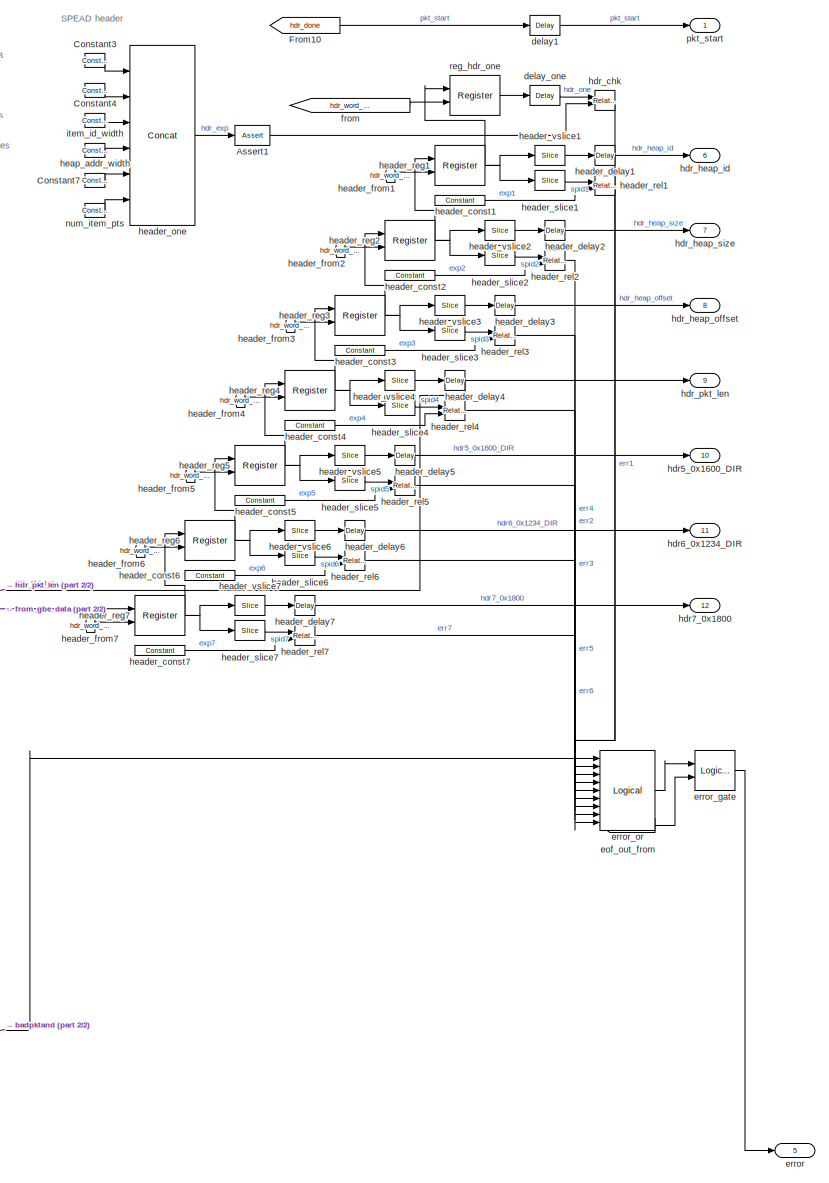
[diagram: spead_unpack - part 1/2, right side, full height]
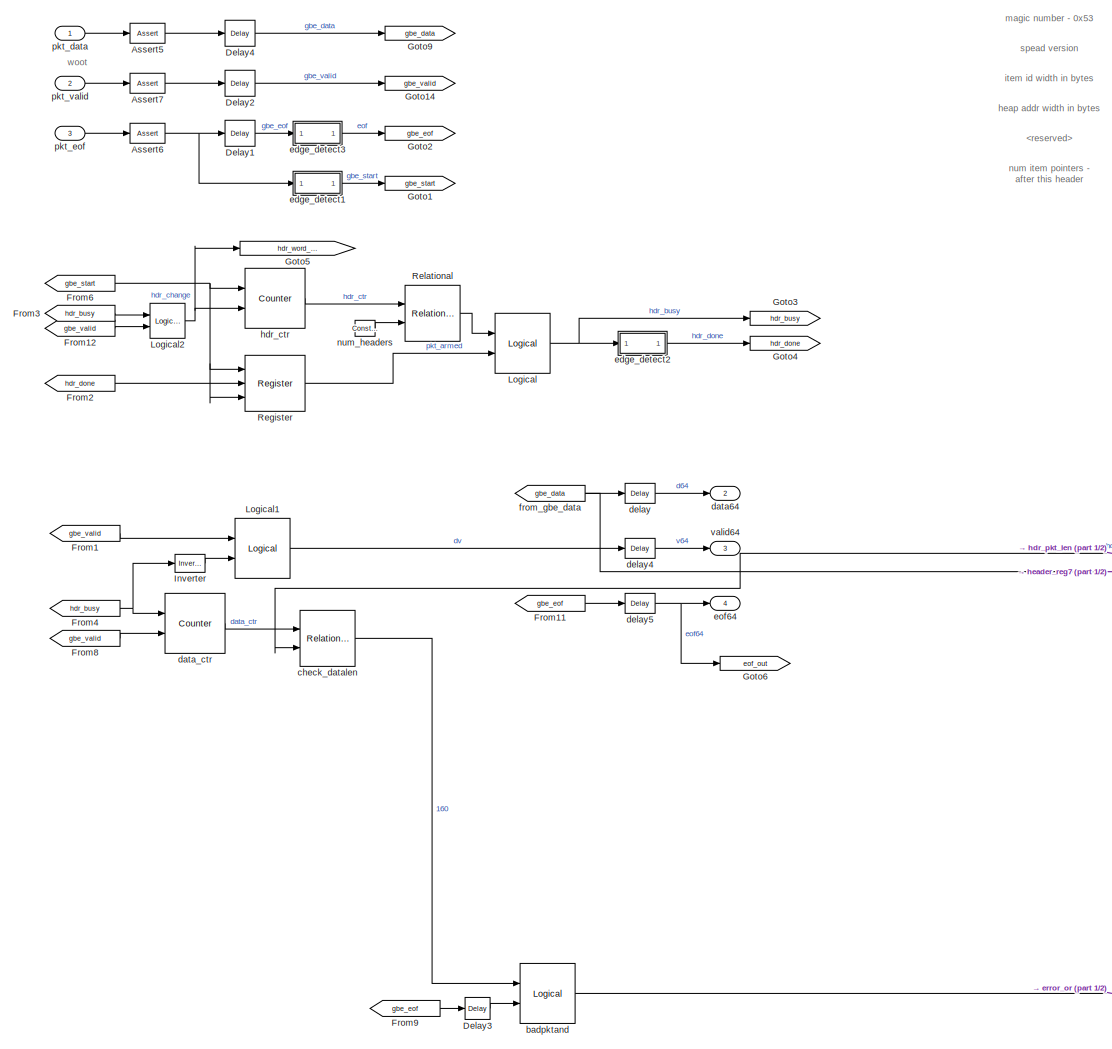
[diagram: spead_unpack - part 2/2, left side, full height]
BLOCK [SubSystem] spead_unpack
  FunctionWithSeparateData = off
  MaskHideContents = off
  MinAlgLoopOccurrences = off
  Opaque = off
  Ports = [3, 12]
  PropExecContextOutsideSubsystem = off
  RTWSystemCode = Auto
  RequestExecContextInheritance = off
  SID = 2827
  Tag = casper:spead_unpack
BLOCK [Reference] spead_unpack/Assert1  REF=xbsIndex_r4/Assert
  Ports = [1, 1]
  SID = 2831
  SourceBlock = xbsIndex_r4/Assert
  SourceType = Xilinx Assert Block
  arith_type = Unsigned
  assert_rate = off
  assert_type = on
  bin_pt = 0
  block_type = assert
  block_version = 10.1.3
  exp_width = 8
  frac_width = 24
  gui_display_data_type = Fixed-point
  has_advanced_control = 0
  infoedit = Asserts a user-defined sample rate and/or type on a signal.<br><br>Hardware notes: In hardware this block costs nothing.
  n_bits = 64
  output_port = on
  period = 1
  preci_type = Single
  rate_source = Explicitly
  sg_icon_stat = 35,20,1,1,white,blue,0,9657e937,right,,[ ],[ ]
  sggui_pos = 535,236,348,719
  type_source = Explicitly
BLOCK [Reference] spead_unpack/Assert5  REF=xbsIndex_r4/Assert
  Ports = [1, 1]
  SID = 2832
  SourceBlock = xbsIndex_r4/Assert
  SourceType = Xilinx Assert Block
  arith_type = Unsigned
  assert_rate = off
  assert_type = on
  bin_pt = 0
  block_type = assert
  block_version = 10.1.3
  exp_width = 8
  frac_width = 24
  gui_display_data_type = Fixed-point
  has_advanced_control = 0
  infoedit = Asserts a user-defined sample rate and/or type on a signal.<br><br>Hardware notes: In hardware this block costs nothing.
  n_bits = 64
  output_port = on
  period = 1
  preci_type = Single
  rate_source = Explicitly
  sg_icon_stat = 35,20,1,1,white,blue,0,9657e937,right,,[ ],[ ]
  sggui_pos = 535,236,348,719
  type_source = Explicitly
BLOCK [Reference] spead_unpack/Assert6  REF=xbsIndex_r4/Assert
  Ports = [1, 1]
  SID = 2833
  SourceBlock = xbsIndex_r4/Assert
  SourceType = Xilinx Assert Block
  arith_type = Boolean
  assert_rate = off
  assert_type = on
  bin_pt = 0
  block_type = assert
  block_version = 10.1.3
  exp_width = 8
  frac_width = 24
  gui_display_data_type = Boolean
  has_advanced_control = 0
  infoedit = Asserts a user-defined sample rate and/or type on a signal.<br><br>Hardware notes: In hardware this block costs nothing.
  n_bits = spead_msw
  output_port = on
  period = 1
  preci_type = Single
  rate_source = Explicitly
  sg_icon_stat = 35,20,1,1,white,blue,0,9657e937,right,,[ ],[ ]
  sggui_pos = 536,263,348,719
  type_source = Explicitly
BLOCK [Reference] spead_unpack/Assert7  REF=xbsIndex_r4/Assert
  Ports = [1, 1]
  SID = 2834
  SourceBlock = xbsIndex_r4/Assert
  SourceType = Xilinx Assert Block
  arith_type = Boolean
  assert_rate = off
  assert_type = on
  bin_pt = 0
  block_type = assert
  block_version = 10.1.3
  exp_width = 8
  frac_width = 24
  gui_display_data_type = Boolean
  has_advanced_control = 0
  infoedit = Asserts a user-defined sample rate and/or type on a signal.<br><br>Hardware notes: In hardware this block costs nothing.
  n_bits = 64
  output_port = on
  period = 1
  preci_type = Single
  rate_source = Explicitly
  sg_icon_stat = 35,20,1,1,white,blue,0,9657e937,right,,[ ],[ ]
  sggui_pos = 535,236,348,719
  type_source = Explicitly
BLOCK [Reference] spead_unpack/Constant3  REF=xbsIndex_r4/Constant
  Ports = [0, 1]
  SID = 2835
  SourceBlock = xbsIndex_r4/Constant
  SourceType = Xilinx Constant Block Block
  arith_type = Unsigned
  bin_pt = 0
  block_type = constant
  block_version = 10.1.3
  carry = CIN
  const = 83
  dbl_ovrd = off
  dsp48_infoedit = The use of this block for DSP48 instructions is deprecated.  Please use the Opmode block.
  equ = P=C
  exp_width = 8
  explicit_period = on
  frac_width = 24
  gui_display_data_type = Fixed-point
  has_advanced_control = 0
  inp1 = P
  inp2 = PCIN>>17
  n_bits = 8
  opr = +
  opselect = C
  period = 1
  preci_type = Single
  sg_icon_stat = 20,14,0,1,white,blue,0,ead93515,right,,[ ],[ ]
  sg_mask_display = fprintf('','COMMENT: begin icon graphics');\npatch([0 20 20 0 0 ],[0 0 14 14 0 ],[0.77 0.82 0.91 ]);\nplot([0 20 20 0 0 ],[0 0 14 14 0 ]);\npatch([5.55 8.44 10.44 12.44 14.44 10.44 7.55 5.55 ],[9.22 9.22 11.22 9.22 11.22 11.22 11.22 9.22 ],[1 1 1 ]);\npatch([7.55 10.44 8.44 5.55 7.55 ],[7.22 7.22 9.22 9.22 7.22 ],[0.931 0.946 0.973 ]);\npatch([5.55 8.44 10.44 7.55 5.55 ],[5.22 5.22 7.22 7.22 5.22 ...<+289ch>
  sggui_pos = 490,101,474,439
BLOCK [Reference] spead_unpack/Constant4  REF=xbsIndex_r4/Constant
  Ports = [0, 1]
  SID = 2836
  SourceBlock = xbsIndex_r4/Constant
  SourceType = Xilinx Constant Block Block
  arith_type = Unsigned
  bin_pt = 0
  block_type = constant
  block_version = 10.1.3
  carry = CIN
  const = spead_version
  dbl_ovrd = off
  dsp48_infoedit = The use of this block for DSP48 instructions is deprecated.  Please use the Opmode block.
  equ = P=C
  exp_width = 8
  explicit_period = on
  frac_width = 24
  gui_display_data_type = Fixed-point
  has_advanced_control = 0
  inp1 = P
  inp2 = PCIN>>17
  n_bits = 8
  opr = +
  opselect = C
  period = 1
  preci_type = Single
  sg_icon_stat = 20,14,0,1,white,blue,0,85f36853,right,,[ ],[ ]
  sggui_pos = 490,101,414,491
BLOCK [Reference] spead_unpack/Constant7  REF=xbsIndex_r4/Constant
  Ports = [0, 1]
  SID = 2837
  SourceBlock = xbsIndex_r4/Constant
  SourceType = Xilinx Constant Block Block
  arith_type = Unsigned
  bin_pt = 0
  block_type = constant
  block_version = 10.1.3
  carry = CIN
  const = 0
  dbl_ovrd = off
  dsp48_infoedit = The use of this block for DSP48 instructions is deprecated.  Please use the Opmode block.
  equ = P=C
  exp_width = 8
  explicit_period = on
  frac_width = 24
  gui_display_data_type = Fixed-point
  has_advanced_control = 0
  inp1 = P
  inp2 = PCIN>>17
  n_bits = 16
  opr = +
  opselect = C
  period = 1
  preci_type = Single
  sg_icon_stat = 20,14,0,1,white,blue,0,bf4ddd8b,right,,[ ],[ ]
  sggui_pos = 490,101,474,439
BLOCK [Reference] spead_unpack/Delay1  REF=xbsIndex_r4/Delay
  Ports = [1, 1]
  SID = 2838
  SourceBlock = xbsIndex_r4/Delay
  SourceType = Xilinx Delay Block
  block_type = delay
  block_version = 11.4
  dbl_ovrd = off
  en = off
  has_advanced_control = 0
  infoedit = Hardware notes: A delay line is a chain, each link of which is an SRL16 followed by a flip-flop.
  infoeditControl = Selection of Reset will increase slice count due to use of real FFs and instead of SRLs
  latency = 1
  reg_retiming = on
  rst = off
  sg_icon_stat = 30,26,1,1,white,blue,0,07b98262,right,,[ ],[ ]
  sg_mask_display = fprintf('','COMMENT: begin icon graphics');\npatch([0 30 30 0 0 ],[0 0 26 26 0 ],[0.77 0.82 0.91 ]);\nplot([0 30 30 0 0 ],[0 0 26 26 0 ]);\npatch([8.325 12.66 15.66 18.66 21.66 15.66 11.325 8.325 ],[16.33 16.33 19.33 16.33 19.33 19.33 19.33 16.33 ],[1 1 1 ]);\npatch([11.325 15.66 12.66 8.325 11.325 ],[13.33 13.33 16.33 16.33 13.33 ],[0.931 0.946 0.973 ]);\npatch([8.325 12.66 15.66 11.325 8.325 ],[...<+334ch>
  sggui_pos = 20,44,419,315
  xl_area = [0,0,0,0,0,0,0]
  xl_use_area = off
BLOCK [Reference] spead_unpack/Delay2  REF=xbsIndex_r4/Delay
  Ports = [1, 1]
  SID = 2839
  SourceBlock = xbsIndex_r4/Delay
  SourceType = Xilinx Delay Block
  block_type = delay
  block_version = 11.4
  dbl_ovrd = off
  en = off
  has_advanced_control = 0
  infoedit = Hardware notes: A delay line is a chain, each link of which is an SRL16 followed by a flip-flop.
  infoeditControl = Selection of Reset will increase slice count due to use of real FFs and instead of SRLs
  latency = 1
  reg_retiming = on
  rst = off
  sg_icon_stat = 30,26,1,1,white,blue,0,07b98262,right,,[ ],[ ]
  sggui_pos = 20,44,419,315
  xl_area = [0,0,0,0,0,0,0]
  xl_use_area = off
BLOCK [Reference] spead_unpack/Delay3  REF=xbsIndex_r4/Delay
  Ports = [1, 1]
  SID = 2840
  SourceBlock = xbsIndex_r4/Delay
  SourceType = Xilinx Delay Block
  block_type = delay
  block_version = 11.4
  dbl_ovrd = off
  en = off
  has_advanced_control = 0
  infoedit = Hardware notes: A delay line is a chain, each link of which is an SRL16 followed by a flip-flop.
  infoeditControl = Selection of Reset will increase slice count due to use of real FFs and instead of SRLs
  latency = 1
  reg_retiming = on
  rst = off
  sg_icon_stat = 25,22,1,1,white,blue,0,07b98262,right,,[ ],[ ]
  sg_mask_display = fprintf('','COMMENT: begin icon graphics');\npatch([0 25 25 0 0 ],[0 0 22 22 0 ],[0.77 0.82 0.91 ]);\nplot([0 25 25 0 0 ],[0 0 22 22 0 ]);\npatch([5.325 9.66 12.66 15.66 18.66 12.66 8.325 5.325 ],[14.33 14.33 17.33 14.33 17.33 17.33 17.33 14.33 ],[1 1 1 ]);\npatch([8.325 12.66 9.66 5.325 8.325 ],[11.33 11.33 14.33 14.33 11.33 ],[0.931 0.946 0.973 ]);\npatch([5.325 9.66 12.66 8.325 5.325 ],[8.33 8....<+320ch>
  sggui_pos = 20,44,419,387
  xl_area = [0,0,0,0,0,0,0]
  xl_use_area = off
BLOCK [Reference] spead_unpack/Delay4  REF=xbsIndex_r4/Delay
  Ports = [1, 1]
  SID = 2841
  SourceBlock = xbsIndex_r4/Delay
  SourceType = Xilinx Delay Block
  block_type = delay
  block_version = 11.4
  dbl_ovrd = off
  en = off
  has_advanced_control = 0
  infoedit = Hardware notes: A delay line is a chain, each link of which is an SRL16 followed by a flip-flop.
  infoeditControl = Selection of Reset will increase slice count due to use of real FFs and instead of SRLs
  latency = 1
  reg_retiming = on
  rst = off
  sg_icon_stat = 30,26,1,1,white,blue,0,07b98262,right,,[ ],[ ]
  sggui_pos = 20,44,419,315
  xl_area = [0,0,0,0,0,0,0]
  xl_use_area = off
BLOCK [From] spead_unpack/From1
  CloseFcn = tagdialog Close
  GotoTag = gbe_valid
  SID = 2842
BLOCK [From] spead_unpack/From10
  CloseFcn = tagdialog Close
  GotoTag = hdr_done
  SID = 2843
BLOCK [From] spead_unpack/From11
  CloseFcn = tagdialog Close
  GotoTag = gbe_eof
  SID = 2844
BLOCK [From] spead_unpack/From12
  CloseFcn = tagdialog Close
  GotoTag = gbe_valid
  SID = 2845
BLOCK [From] spead_unpack/From2
  CloseFcn = tagdialog Close
  GotoTag = hdr_done
  SID = 2846
BLOCK [From] spead_unpack/From3
  CloseFcn = tagdialog Close
  GotoTag = hdr_busy
  SID = 2847
BLOCK [From] spead_unpack/From4
  CloseFcn = tagdialog Close
  GotoTag = hdr_busy
  SID = 2848
BLOCK [From] spead_unpack/From6
  CloseFcn = tagdialog Close
  GotoTag = gbe_start
  SID = 2849
BLOCK [From] spead_unpack/From8
  CloseFcn = tagdialog Close
  GotoTag = gbe_valid
  SID = 2850
BLOCK [From] spead_unpack/From9
  CloseFcn = tagdialog Close
  GotoTag = gbe_eof
  SID = 2851
BLOCK [Goto] spead_unpack/Goto1
  GotoTag = gbe_start
  SID = 2852
BLOCK [Goto] spead_unpack/Goto14
  GotoTag = gbe_valid
  SID = 2853
BLOCK [Goto] spead_unpack/Goto2
  GotoTag = gbe_eof
  SID = 2854
BLOCK [Goto] spead_unpack/Goto3
  GotoTag = hdr_busy
  SID = 2855
BLOCK [Goto] spead_unpack/Goto4
  GotoTag = hdr_done
  SID = 2856
BLOCK [Goto] spead_unpack/Goto5
  GotoTag = hdr_word_change
  SID = 2857
BLOCK [Goto] spead_unpack/Goto6
  GotoTag = eof_out
  SID = 2858
BLOCK [Goto] spead_unpack/Goto9
  GotoTag = gbe_data
  SID = 2859
BLOCK [Reference] spead_unpack/Inverter  REF=xbsIndex_r4/Inverter
  Ports = [1, 1]
  SID = 2860
  SourceBlock = xbsIndex_r4/Inverter
  SourceType = Xilinx Inverter Block
  block_type = inv
  dbl_ovrd = off
  en = off
  has_advanced_control = 0
  infoedit = Bitwise logical negation (one's complement) operator.
  latency = 0
  sg_icon_stat = 30,18,1,1,white,blue,0,267846e5,right,,[ ],[ ]
  sggui_pos = -1,-1,-1,-1
  xl_area = [0,0,0,0,0,0,0]
  xl_use_area = off
BLOCK [Reference] spead_unpack/Logical  REF=xbsIndex_r4/Logical
  Ports = [2, 1]
  SID = 2861
  SourceBlock = xbsIndex_r4/Logical
  SourceType = Xilinx Logical Block Block
  align_bp = on
  arith_type = Unsigned
  bin_pt = 0
  block_type = logical
  dbl_ovrd = off
  en = off
  has_advanced_control = 0
  inputs = 2
  latency = 0
  logical_function = AND
  n_bits = 16
  precision = Full
  sg_icon_stat = 55,60,2,1,white,blue,0,83a4b621,right,,[ ],[ ]
  sg_mask_display = fprintf('','COMMENT: begin icon graphics');\npatch([0 55 55 0 0 ],[0 0 60 60 0 ],[0.77 0.82 0.91 ]);\nplot([0 55 55 0 0 ],[0 0 60 60 0 ]);\npatch([11.425 21.54 28.54 35.54 42.54 28.54 18.425 11.425 ],[37.77 37.77 44.77 37.77 44.77 44.77 44.77 37.77 ],[1 1 1 ]);\npatch([18.425 28.54 21.54 11.425 18.425 ],[30.77 30.77 37.77 37.77 30.77 ],[0.931 0.946 0.973 ]);\npatch([11.425 21.54 28.54 18.425 11.42...<+328ch>  <repeated x3 — deduplicated; at blocks: Logical, Logical1, badpktand>
  sggui_pos = -1,-1,-1,-1
  xl_area = [0,0,0,0,0,0,0]
  xl_use_area = off
BLOCK [Reference] spead_unpack/Logical1  REF=xbsIndex_r4/Logical
  Ports = [2, 1]
  SID = 2862
  SourceBlock = xbsIndex_r4/Logical
  SourceType = Xilinx Logical Block Block
  align_bp = on
  arith_type = Unsigned
  bin_pt = 0
  block_type = logical
  dbl_ovrd = off
  en = off
  has_advanced_control = 0
  inputs = 2
  latency = 0
  logical_function = AND
  n_bits = 16
  precision = Full
  sg_icon_stat = 55,60,2,1,white,blue,0,83a4b621,right,,[ ],[ ]
  sggui_pos = -1,-1,-1,-1
  xl_area = [0,0,0,0,0,0,0]
  xl_use_area = off
BLOCK [Reference] spead_unpack/Logical2  REF=xbsIndex_r4/Logical
  Ports = [2, 1]
  SID = 2863
  SourceBlock = xbsIndex_r4/Logical
  SourceType = Xilinx Logical Block Block
  align_bp = on
  arith_type = Unsigned
  bin_pt = 0
  block_type = logical
  dbl_ovrd = off
  en = off
  has_advanced_control = 0
  inputs = 2
  latency = 0
  logical_function = AND
  n_bits = 16
  precision = Full
  sg_icon_stat = 35,35,2,1,white,blue,0,83a4b621,right,,[ ],[ ]
  sg_mask_display = fprintf('','COMMENT: begin icon graphics');\npatch([0 35 35 0 0 ],[0 0 35 35 0 ],[0.77 0.82 0.91 ]);\nplot([0 35 35 0 0 ],[0 0 35 35 0 ]);\npatch([5.875 13.1 18.1 23.1 28.1 18.1 10.875 5.875 ],[22.55 22.55 27.55 22.55 27.55 27.55 27.55 22.55 ],[1 1 1 ]);\npatch([10.875 18.1 13.1 5.875 10.875 ],[17.55 17.55 22.55 22.55 17.55 ],[0.931 0.946 0.973 ]);\npatch([5.875 13.1 18.1 10.875 5.875 ],[12.55 12....<+305ch>
  sggui_pos = -1,-1,-1,-1
  xl_area = [0,0,0,0,0,0,0]
  xl_use_area = off
BLOCK [Reference] spead_unpack/Register  REF=xbsIndex_r4/Register
  Ports = [3, 1]
  SID = 2864
  SourceBlock = xbsIndex_r4/Register
  SourceType = Xilinx Register Block
  block_type = register
  dbl_ovrd = off
  en = on
  has_advanced_control = 0
  init = 0
  rst = on
  sg_icon_stat = 60,56,3,1,white,blue,0,30546de1,right,,[ ],[ ]
  sg_mask_display = fprintf('','COMMENT: begin icon graphics');\npatch([0 60 60 0 0 ],[0 0 56 56 0 ],[0.77 0.82 0.91 ]);\nplot([0 60 60 0 0 ],[0 0 56 56 0 ]);\npatch([12.2 23.76 31.76 39.76 47.76 31.76 20.2 12.2 ],[36.88 36.88 44.88 36.88 44.88 44.88 44.88 36.88 ],[1 1 1 ]);\npatch([20.2 31.76 23.76 12.2 20.2 ],[28.88 28.88 36.88 36.88 28.88 ],[0.931 0.946 0.973 ]);\npatch([12.2 23.76 31.76 20.2 12.2 ],[20.88 20.88 2...<+492ch>
  sggui_pos = 20,25,402,215
  xl_area = [0,0,0,0,0,0,0]
  xl_use_area = off
BLOCK [Reference] spead_unpack/Relational  REF=xbsIndex_r4/Relational
  Ports = [2, 1]
  SID = 2865
  SourceBlock = xbsIndex_r4/Relational
  SourceType = Xilinx Arithmetic Relational Operator Block
  block_type = relational
  dbl_ovrd = off
  en = off
  has_advanced_control = 0
  latency = 0
  mode = a<b
  sg_icon_stat = 55,56,2,1,white,blue,0,731fb07f,right,,[ ],[ ]
  sg_mask_display = fprintf('','COMMENT: begin icon graphics');\npatch([0 55 55 0 0 ],[0 0 56 56 0 ],[0.77 0.82 0.91 ]);\nplot([0 55 55 0 0 ],[0 0 56 56 0 ]);\npatch([11.425 21.54 28.54 35.54 42.54 28.54 18.425 11.425 ],[35.77 35.77 42.77 35.77 42.77 42.77 42.77 35.77 ],[1 1 1 ]);\npatch([18.425 28.54 21.54 11.425 18.425 ],[28.77 28.77 35.77 35.77 28.77 ],[0.931 0.946 0.973 ]);\npatch([11.425 21.54 28.54 18.425 11.42...<+473ch>
  sggui_pos = 20,25,402,215
  xl_area = [0,0,0,0,0,0,0]
  xl_use_area = off
BLOCK [Reference] spead_unpack/badpktand  REF=xbsIndex_r4/Logical
  Ports = [2, 1]
  SID = 2866
  SourceBlock = xbsIndex_r4/Logical
  SourceType = Xilinx Logical Block Block
  align_bp = on
  arith_type = Unsigned
  bin_pt = 0
  block_type = logical
  dbl_ovrd = off
  en = off
  has_advanced_control = 0
  inputs = 2
  latency = 0
  logical_function = AND
  n_bits = 16
  precision = Full
  sg_icon_stat = 55,60,2,1,white,blue,0,83a4b621,right,,[ ],[ ]
  sggui_pos = -1,-1,-1,-1
  xl_area = [0,0,0,0,0,0,0]
  xl_use_area = off
BLOCK [Reference] spead_unpack/check_datalen  REF=xbsIndex_r4/Relational
  Ports = [2, 1]
  SID = 2867
  SourceBlock = xbsIndex_r4/Relational
  SourceType = Xilinx Arithmetic Relational Operator Block
  block_type = relational
  dbl_ovrd = off
  en = off
  has_advanced_control = 0
  latency = 0
  mode = a!=b
  sg_icon_stat = 55,56,2,1,white,blue,0,850de6e7,right,,[ ],[ ]
  sg_mask_display = fprintf('','COMMENT: begin icon graphics');\npatch([0 55 55 0 0 ],[0 0 56 56 0 ],[0.77 0.82 0.91 ]);\nplot([0 55 55 0 0 ],[0 0 56 56 0 ]);\npatch([11.425 21.54 28.54 35.54 42.54 28.54 18.425 11.425 ],[35.77 35.77 42.77 35.77 42.77 42.77 42.77 35.77 ],[1 1 1 ]);\npatch([18.425 28.54 21.54 11.425 18.425 ],[28.77 28.77 35.77 35.77 28.77 ],[0.931 0.946 0.973 ]);\npatch([11.425 21.54 28.54 18.425 11.42...<+477ch>
  sggui_pos = 20,25,402,215
  xl_area = [0,0,0,0,0,0,0]
  xl_use_area = off
BLOCK [Outport] spead_unpack/data64
  IconDisplay = Port number
  Port = 2
  SID = 2933
BLOCK [Reference] spead_unpack/data_ctr  REF=xbsIndex_r4/Counter
  Ports = [2, 1]
  SID = 2868
  SourceBlock = xbsIndex_r4/Counter
  SourceType = Xilinx Counter Block
  arith_type = Unsigned
  bin_pt = 0
  block_type = counter
  cnt_by_val = 1
  cnt_to = Inf
  cnt_type = Free Running
  dbl_ovrd = off
  en = on
  explicit_period = on
  has_advanced_control = 0
  implementation = Fabric
  infoedit = Hardware notes: Free running counters are the least expensive in hardware.  A count limited counter is implemented by combining a counter with a comparator.
  load_pin = off
  n_bits = max_pkt_len_bits + 1
  operation = Up
  period = 1
  rst = on
  sg_icon_stat = 60,60,2,1,white,blue,0,ae3608d6,right,,[ ],[ ]
  sg_mask_display = fprintf('','COMMENT: begin icon graphics');\npatch([0 60 60 0 0 ],[0 0 60 60 0 ],[0.77 0.82 0.91 ]);\nplot([0 60 60 0 0 ],[0 0 60 60 0 ]);\npatch([12.2 23.76 31.76 39.76 47.76 31.76 20.2 12.2 ],[38.88 38.88 46.88 38.88 46.88 46.88 46.88 38.88 ],[1 1 1 ]);\npatch([20.2 31.76 23.76 12.2 20.2 ],[30.88 30.88 38.88 38.88 30.88 ],[0.931 0.946 0.973 ]);\npatch([12.2 23.76 31.76 20.2 12.2 ],[22.88 22.88 3...<+423ch>
  sggui_pos = 20,25,416,771
  start_count = 0
  use_behavioral_HDL = on
  xl_area = [0,0,0,0,0,0,0]
  xl_use_area = off
BLOCK [Reference] spead_unpack/delay  REF=xbsIndex_r4/Delay
  Ports = [1, 1]
  SID = 2869
  SourceBlock = xbsIndex_r4/Delay
  SourceType = Xilinx Delay Block
  block_type = delay
  dbl_ovrd = off
  en = off
  has_advanced_control = 0
  infoedit = Hardware notes: A delay line is a chain, each link of which is an SRL16 followed by a flip-flop.
  infoeditControl = Selection of Reset will increase slice count due to use of real FFs and instead of SRLs
  latency = 2
  reg_retiming = on
  rst = off
  sg_icon_stat = 30,20,1,1,white,blue,0,85ce9542,right,,[ ],[ ]
  sg_mask_display = fprintf('','COMMENT: begin icon graphics');\npatch([0 30 30 0 0 ],[0 0 20 20 0 ],[0.77 0.82 0.91 ]);\nplot([0 30 30 0 0 ],[0 0 20 20 0 ]);\npatch([10.55 13.44 15.44 17.44 19.44 15.44 12.55 10.55 ],[12.22 12.22 14.22 12.22 14.22 14.22 14.22 12.22 ],[1 1 1 ]);\npatch([12.55 15.44 13.44 10.55 12.55 ],[10.22 10.22 12.22 12.22 10.22 ],[0.931 0.946 0.973 ]);\npatch([10.55 13.44 15.44 12.55 10.55 ],[8.22...<+322ch>  <repeated x5 — deduplicated; at blocks: delay, delay1, delay4, delay5, delay_one>
  sggui_pos = 20,25,402,387
  xl_area = [0,0,0,0,0,0,0]
  xl_use_area = off
BLOCK [Reference] spead_unpack/delay1  REF=xbsIndex_r4/Delay
  Ports = [1, 1]
  SID = 2870
  SourceBlock = xbsIndex_r4/Delay
  SourceType = Xilinx Delay Block
  block_type = delay
  dbl_ovrd = off
  en = off
  has_advanced_control = 0
  infoedit = Hardware notes: A delay line is a chain, each link of which is an SRL16 followed by a flip-flop.
  infoeditControl = Selection of Reset will increase slice count due to use of real FFs and instead of SRLs
  latency = 1
  reg_retiming = on
  rst = off
  sg_icon_stat = 30,20,1,1,white,blue,0,07b98262,right,,[ ],[ ]
  sggui_pos = 20,25,402,387
  xl_area = [0,0,0,0,0,0,0]
  xl_use_area = off
BLOCK [Reference] spead_unpack/delay4  REF=xbsIndex_r4/Delay
  Ports = [1, 1]
  SID = 2871
  SourceBlock = xbsIndex_r4/Delay
  SourceType = Xilinx Delay Block
  block_type = delay
  dbl_ovrd = off
  en = off
  has_advanced_control = 0
  infoedit = Hardware notes: A delay line is a chain, each link of which is an SRL16 followed by a flip-flop.
  infoeditControl = Selection of Reset will increase slice count due to use of real FFs and instead of SRLs
  latency = 2
  reg_retiming = on
  rst = off
  sg_icon_stat = 30,20,1,1,white,blue,0,85ce9542,right,,[ ],[ ]
  sggui_pos = 20,25,402,387
  xl_area = [0,0,0,0,0,0,0]
  xl_use_area = off
BLOCK [Reference] spead_unpack/delay5  REF=xbsIndex_r4/Delay
  Ports = [1, 1]
  SID = 2872
  SourceBlock = xbsIndex_r4/Delay
  SourceType = Xilinx Delay Block
  block_type = delay
  dbl_ovrd = off
  en = off
  has_advanced_control = 0
  infoedit = Hardware notes: A delay line is a chain, each link of which is an SRL16 followed by a flip-flop.
  infoeditControl = Selection of Reset will increase slice count due to use of real FFs and instead of SRLs
  latency = 2
  reg_retiming = on
  rst = off
  sg_icon_stat = 30,20,1,1,white,blue,0,85ce9542,right,,[ ],[ ]
  sggui_pos = 20,25,402,387
  xl_area = [0,0,0,0,0,0,0]
  xl_use_area = off
BLOCK [Reference] spead_unpack/delay_one  REF=xbsIndex_r4/Delay
  Ports = [1, 1]
  SID = 2873
  SourceBlock = xbsIndex_r4/Delay
  SourceType = Xilinx Delay Block
  block_type = delay
  dbl_ovrd = off
  en = off
  has_advanced_control = 0
  infoedit = Hardware notes: A delay line is a chain, each link of which is an SRL16 followed by a flip-flop.
  infoeditControl = Selection of Reset will increase slice count due to use of real FFs and instead of SRLs
  latency = 1
  reg_retiming = on
  rst = off
  sg_icon_stat = 30,20,1,1,white,blue,0,07b98262,right,,[ ],[ ]
  sggui_pos = -1,-1,-1,-1
  xl_area = [0,0,0,0,0,0,0]
  xl_use_area = off
BLOCK [SubSystem] spead_unpack/edge_detect1
  AncestorBlock = casper_library_misc/edge_detect
  AttributesFormatString = falling edges\nactive high
  FunctionWithSeparateData = off
  MaskHideContents = off
  MinAlgLoopOccurrences = off
  Opaque = off
  Ports = [1, 1]
  PropExecContextOutsideSubsystem = off
  RTWSystemCode = Auto
  RequestExecContextInheritance = off
  SID = 2874
  UserData = DataTag3
  UserDataPersistent = on
BLOCK [Reference] spead_unpack/edge_detect1/Delay  REF=xbsIndex_r4/Delay
  Ports = [1, 1]
  SID = 2874:2
  SourceBlock = xbsIndex_r4/Delay
  SourceType = Xilinx Delay Block
  block_type = delay
  block_version = 10.1.3
  dbl_ovrd = off
  en = off
  has_advanced_control = 0
  infoedit = Hardware notes: A delay line is a chain, each link of which is an SRL16 followed by a flip-flop.
  infoeditControl = Selection of Reset will increase slice count due to use of real FFs and instead of SRLs
  latency = 1
  reg_retiming = on
  rst = off
  sg_icon_stat = 45,16,1,1,white,blue,0,07b98262,right,,[ ],[ ]
  sggui_pos = -1,-1,-1,-1
  xl_area = [0, 0, 0, 0, 0, 0, 0]
  xl_use_area = off
BLOCK [Reference] spead_unpack/edge_detect1/Inverter  REF=xbsIndex_r4/Inverter
  Ports = [1, 1]
  SID = 2874:3
  SourceBlock = xbsIndex_r4/Inverter
  SourceType = Xilinx Inverter Block
  block_type = inv
  block_version = 10.1.3
  dbl_ovrd = off
  en = off
  has_advanced_control = 0
  infoedit = Bitwise logical negation (one's complement) operator.
  latency = 0
  sg_icon_stat = 45,16,1,1,white,blue,0,267846e5,right,,[ ],[ ]
  sggui_pos = -1,-1,-1,-1
  xl_area = [0, 0, 0, 0, 0, 0, 0]
  xl_use_area = off
BLOCK [Reference] spead_unpack/edge_detect1/edge_op  REF=xbsIndex_r4/Logical
  Ports = [2, 1]
  SID = 2874:4
  SourceBlock = xbsIndex_r4/Logical
  SourceType = Xilinx Logical Block Block
  align_bp = on
  arith_type = Unsigned
  bin_pt = 2
  block_type = logical
  block_version = 10.1.3
  dbl_ovrd = off
  en = off
  has_advanced_control = 0
  inputs = 2
  latency = 0
  logical_function = AND
  n_bits = 8
  precision = Full
  sg_icon_stat = 45,44,2,1,white,blue,0,83a4b621,right,,[ ],[ ]
  sggui_pos = -1,-1,-1,-1
  xl_area = [0, 0, 0, 0, 0, 0, 0]
  xl_use_area = off
BLOCK [Inport] spead_unpack/edge_detect1/in
  IconDisplay = Port number
  SID = 2874:1
BLOCK [Outport] spead_unpack/edge_detect1/out
  IconDisplay = Port number
  SID = 2874:5
BLOCK [SubSystem] spead_unpack/edge_detect2
  AncestorBlock = casper_library_misc/edge_detect
  AttributesFormatString = falling edges\nactive high
  FunctionWithSeparateData = off
  MaskHideContents = off
  MinAlgLoopOccurrences = off
  Opaque = off
  Ports = [1, 1]
  PropExecContextOutsideSubsystem = off
  RTWSystemCode = Auto
  RequestExecContextInheritance = off
  SID = 2875
  UserData = DataTag4
  UserDataPersistent = on
BLOCK [Reference] spead_unpack/edge_detect2/Delay  REF=xbsIndex_r4/Delay
  Ports = [1, 1]
  SID = 2875:2
  SourceBlock = xbsIndex_r4/Delay
  SourceType = Xilinx Delay Block
  block_type = delay
  block_version = 10.1.3
  dbl_ovrd = off
  en = off
  has_advanced_control = 0
  infoedit = Hardware notes: A delay line is a chain, each link of which is an SRL16 followed by a flip-flop.
  infoeditControl = Selection of Reset will increase slice count due to use of real FFs and instead of SRLs
  latency = 1
  reg_retiming = on
  rst = off
  sg_icon_stat = 45,16,1,1,white,blue,0,07b98262,right,,[ ],[ ]
  sggui_pos = -1,-1,-1,-1
  xl_area = [0, 0, 0, 0, 0, 0, 0]
  xl_use_area = off
BLOCK [Reference] spead_unpack/edge_detect2/Inverter  REF=xbsIndex_r4/Inverter
  Ports = [1, 1]
  SID = 2875:3
  SourceBlock = xbsIndex_r4/Inverter
  SourceType = Xilinx Inverter Block
  block_type = inv
  block_version = 10.1.3
  dbl_ovrd = off
  en = off
  has_advanced_control = 0
  infoedit = Bitwise logical negation (one's complement) operator.
  latency = 0
  sg_icon_stat = 45,16,1,1,white,blue,0,267846e5,right,,[ ],[ ]
  sggui_pos = -1,-1,-1,-1
  xl_area = [0, 0, 0, 0, 0, 0, 0]
  xl_use_area = off
BLOCK [Reference] spead_unpack/edge_detect2/edge_op  REF=xbsIndex_r4/Logical
  Ports = [2, 1]
  SID = 2875:4
  SourceBlock = xbsIndex_r4/Logical
  SourceType = Xilinx Logical Block Block
  align_bp = on
  arith_type = Unsigned
  bin_pt = 2
  block_type = logical
  block_version = 10.1.3
  dbl_ovrd = off
  en = off
  has_advanced_control = 0
  inputs = 2
  latency = 0
  logical_function = AND
  n_bits = 8
  precision = Full
  sg_icon_stat = 45,44,2,1,white,blue,0,83a4b621,right,,[ ],[ ]
  sggui_pos = -1,-1,-1,-1
  xl_area = [0, 0, 0, 0, 0, 0, 0]
  xl_use_area = off
BLOCK [Inport] spead_unpack/edge_detect2/in
  IconDisplay = Port number
  SID = 2875:1
BLOCK [Outport] spead_unpack/edge_detect2/out
  IconDisplay = Port number
  SID = 2875:5
BLOCK [SubSystem] spead_unpack/edge_detect3
  AncestorBlock = casper_library_misc/edge_detect
  AttributesFormatString = rising edges\nactive high
  FunctionWithSeparateData = off
  MaskHideContents = off
  MinAlgLoopOccurrences = off
  Opaque = off
  Ports = [1, 1]
  PropExecContextOutsideSubsystem = off
  RTWSystemCode = Auto
  RequestExecContextInheritance = off
  SID = 2876
  UserData = DataTag5
  UserDataPersistent = on
BLOCK [Reference] spead_unpack/edge_detect3/Delay  REF=xbsIndex_r4/Delay
  Ports = [1, 1]
  SID = 2876:2
  SourceBlock = xbsIndex_r4/Delay
  SourceType = Xilinx Delay Block
  block_type = delay
  block_version = 10.1.3
  dbl_ovrd = off
  en = off
  has_advanced_control = 0
  infoedit = Hardware notes: A delay line is a chain, each link of which is an SRL16 followed by a flip-flop.
  infoeditControl = Selection of Reset will increase slice count due to use of real FFs and instead of SRLs
  latency = 1
  reg_retiming = on
  rst = off
  sg_icon_stat = 45,16,1,1,white,blue,0,07b98262,right,,[ ],[ ]
  sggui_pos = -1,-1,-1,-1
  xl_area = [0, 0, 0, 0, 0, 0, 0]
  xl_use_area = off
BLOCK [Reference] spead_unpack/edge_detect3/Inverter  REF=xbsIndex_r4/Inverter
  Ports = [1, 1]
  SID = 2876:3
  SourceBlock = xbsIndex_r4/Inverter
  SourceType = Xilinx Inverter Block
  block_type = inv
  block_version = 10.1.3
  dbl_ovrd = off
  en = off
  has_advanced_control = 0
  infoedit = Bitwise logical negation (one's complement) operator.
  latency = 0
  sg_icon_stat = 45,16,1,1,white,blue,0,267846e5,right,,[ ],[ ]
  sggui_pos = -1,-1,-1,-1
  xl_area = [0, 0, 0, 0, 0, 0, 0]
  xl_use_area = off
BLOCK [Reference] spead_unpack/edge_detect3/edge_op  REF=xbsIndex_r4/Logical
  Ports = [2, 1]
  SID = 2876:4
  SourceBlock = xbsIndex_r4/Logical
  SourceType = Xilinx Logical Block Block
  align_bp = on
  arith_type = Unsigned
  bin_pt = 2
  block_type = logical
  block_version = 10.1.3
  dbl_ovrd = off
  en = off
  has_advanced_control = 0
  inputs = 2
  latency = 0
  logical_function = NOR
  n_bits = 8
  precision = Full
  sg_icon_stat = 45,44,2,1,white,blue,0,affe8783,right,,[ ],[ ]
  sggui_pos = -1,-1,-1,-1
  xl_area = [0, 0, 0, 0, 0, 0, 0]
  xl_use_area = off
BLOCK [Inport] spead_unpack/edge_detect3/in
  IconDisplay = Port number
  SID = 2876:1
BLOCK [Outport] spead_unpack/edge_detect3/out
  IconDisplay = Port number
  SID = 2876:5
BLOCK [Outport] spead_unpack/eof64
  IconDisplay = Port number
  Port = 4
  SID = 2935
BLOCK [From] spead_unpack/eof_out_from
  GotoTag = eof_out
  SID = 2877
BLOCK [Outport] spead_unpack/error
  IconDisplay = Port number
  Port = 5
  SID = 2936
BLOCK [Reference] spead_unpack/error_gate  REF=xbsIndex_r4/Logical
  Ports = [2, 1]
  SID = 2878
  SourceBlock = xbsIndex_r4/Logical
  SourceType = Xilinx Logical Block Block
  align_bp = on
  arith_type = Unsigned
  bin_pt = 0
  block_type = logical
  dbl_ovrd = off
  en = off
  has_advanced_control = 0
  inputs = 2
  latency = 0
  logical_function = AND
  n_bits = 16
  precision = Full
  sg_icon_stat = 40,40,2,1,white,blue,0,83a4b621,right,,[ ],[ ]
  sggui_pos = -1,-1,-1,-1
  xl_area = [0,0,0,0,0,0,0]
  xl_use_area = off
BLOCK [Reference] spead_unpack/error_or  REF=xbsIndex_r4/Logical
  Ports = [9, 1]
  SID = 2879
  SourceBlock = xbsIndex_r4/Logical
  SourceType = Xilinx Logical Block Block
  align_bp = on
  arith_type = Unsigned
  bin_pt = 0
  block_type = logical
  dbl_ovrd = off
  en = off
  has_advanced_control = 0
  inputs = 9
  latency = 0
  logical_function = OR
  n_bits = 16
  precision = Full
  sg_icon_stat = 55,80,9,1,white,blue,0,1a52a79d,right,,[ ],[ ]
  sg_mask_display = fprintf('','COMMENT: begin icon graphics');\npatch([0 55 55 0 0 ],[0 0 80 80 0 ],[0.77 0.82 0.91 ]);\nplot([0 55 55 0 0 ],[0 0 80 80 0 ]);\npatch([11.425 21.54 28.54 35.54 42.54 28.54 18.425 11.425 ],[47.77 47.77 54.77 47.77 54.77 54.77 54.77 47.77 ],[1 1 1 ]);\npatch([18.425 28.54 21.54 11.425 18.425 ],[40.77 40.77 47.77 47.77 40.77 ],[0.931 0.946 0.973 ]);\npatch([11.425 21.54 28.54 18.425 11.42...<+341ch>
  sggui_pos = -1,-1,-1,-1
  xl_area = [0,0,0,0,0,0,0]
  xl_use_area = off
BLOCK [From] spead_unpack/from
  GotoTag = hdr_word_change
  SID = 2880
BLOCK [From] spead_unpack/from_gbe_data
  CloseFcn = tagdialog Close
  GotoTag = gbe_data
  SID = 2881
BLOCK [Outport] spead_unpack/hdr5_0x1600_DIR
  IconDisplay = Port number
  Port = 10
  SID = 3101
BLOCK [Outport] spead_unpack/hdr6_0x1234_DIR
  IconDisplay = Port number
  Port = 11
  SID = 3109
BLOCK [Outport] spead_unpack/hdr7_0x1800
  IconDisplay = Port number
  Port = 12
  SID = 3117
BLOCK [Reference] spead_unpack/hdr_chk  REF=xbsIndex_r4/Relational
  Ports = [2, 1]
  SID = 2882
  SourceBlock = xbsIndex_r4/Relational
  SourceType = Xilinx Arithmetic Relational Operator Block
  block_type = relational
  dbl_ovrd = off
  en = off
  has_advanced_control = 0
  latency = 1
  mode = a!=b
  sg_icon_stat = 20,20,2,1,white,blue,0,8d9aea79,right,,[ ],[ ]
  sg_mask_display = fprintf('','COMMENT: begin icon graphics');\npatch([0 20 20 0 0 ],[0 0 20 20 0 ],[0.77 0.82 0.91 ]);\nplot([0 20 20 0 0 ],[0 0 20 20 0 ]);\npatch([5.55 8.44 10.44 12.44 14.44 10.44 7.55 5.55 ],[12.22 12.22 14.22 12.22 14.22 14.22 14.22 12.22 ],[1 1 1 ]);\npatch([7.55 10.44 8.44 5.55 7.55 ],[10.22 10.22 12.22 12.22 10.22 ],[0.931 0.946 0.973 ]);\npatch([5.55 8.44 10.44 7.55 5.55 ],[8.22 8.22 10.22 ...<+500ch>  <repeated x8 — deduplicated; at blocks: hdr_chk, header_rel1, header_rel2, header_rel3, header_rel4, header_rel5, header_rel6, header_rel7>
  sggui_pos = -1,-1,-1,-1
  xl_area = [0,0,0,0,0,0,0]
  xl_use_area = off
BLOCK [Reference] spead_unpack/hdr_ctr  REF=xbsIndex_r4/Counter
  Ports = [2, 1]
  SID = 2883
  SourceBlock = xbsIndex_r4/Counter
  SourceType = Xilinx Counter Block
  arith_type = Unsigned
  bin_pt = 0
  block_type = counter
  cnt_by_val = 1
  cnt_to = Inf
  cnt_type = Free Running
  dbl_ovrd = off
  en = on
  explicit_period = on
  has_advanced_control = 0
  implementation = Fabric
  infoedit = Hardware notes: Free running counters are the least expensive in hardware.  A count limited counter is implemented by combining a counter with a comparator.
  load_pin = off
  n_bits = 4
  operation = Up
  period = 1
  rst = on
  sg_icon_stat = 60,60,2,1,white,blue,0,ae3608d6,right,,[ ],[ ]
  sg_mask_display = fprintf('','COMMENT: begin icon graphics');\npatch([0 60 60 0 0 ],[0 0 60 60 0 ],[0.77 0.82 0.91 ]);\nplot([0 60 60 0 0 ],[0 0 60 60 0 ]);\npatch([12.2 23.76 31.76 39.76 47.76 31.76 20.2 12.2 ],[38.88 38.88 46.88 38.88 46.88 46.88 46.88 38.88 ],[1 1 1 ]);\npatch([20.2 31.76 23.76 12.2 20.2 ],[30.88 30.88 38.88 38.88 30.88 ],[0.931 0.946 0.973 ]);\npatch([12.2 23.76 31.76 20.2 12.2 ],[22.88 22.88 3...<+423ch>
  sggui_pos = 20,25,402,771
  start_count = 0
  use_behavioral_HDL = on
  xl_area = [0,0,0,0,0,0,0]
  xl_use_area = off
BLOCK [Outport] spead_unpack/hdr_heap_id
  IconDisplay = Port number
  Port = 6
  SID = 2937
BLOCK [Outport] spead_unpack/hdr_heap_offset
  IconDisplay = Port number
  Port = 8
  SID = 2939
BLOCK [Outport] spead_unpack/hdr_heap_size
  IconDisplay = Port number
  Port = 7
  SID = 2938
BLOCK [Outport] spead_unpack/hdr_pkt_len
  IconDisplay = Port number
  Port = 9
  SID = 2940
BLOCK [Reference] spead_unpack/header_const1  REF=xbsIndex_r4/Constant
  Ports = [0, 1]
  SID = 3067
  SourceBlock = xbsIndex_r4/Constant
  SourceType = Xilinx Constant Block Block
  arith_type = Unsigned
  bin_pt = 0
  block_type = constant
  carry = CIN
  const = 8388609
  dbl_ovrd = off
  dsp48_infoedit = The use of this block for DSP48 instructions is deprecated.  Please use the Opmode block.
  equ = P=C
  exp_width = 8
  explicit_period = off
  frac_width = 24
  gui_display_data_type = Fixed-point
  has_advanced_control = 0
  inp1 = P
  inp2 = PCIN>>17
  n_bits = spead_msw - spead_lsw
  opr = +
  opselect = C
  period = 1
  preci_type = Single
  sg_icon_stat = 50,10,0,1,white,blue,0,b59e164e,right,,[ ],[ ]
  sg_mask_display = fprintf('','COMMENT: begin icon graphics');\npatch([0 50 50 0 0 ],[0 0 10 10 0 ],[0.77 0.82 0.91 ]);\nplot([0 50 50 0 0 ],[0 0 10 10 0 ]);\npatch([22.775 24.22 25.22 26.22 27.22 25.22 23.775 22.775 ],[6.11 6.11 7.11 6.11 7.11 7.11 7.11 6.11 ],[1 1 1 ]);\npatch([23.775 25.22 24.22 22.775 23.775 ],[5.11 5.11 6.11 6.11 5.11 ],[0.931 0.946 0.973 ]);\npatch([22.775 24.22 25.22 23.775 22.775 ],[4.11 4.1...<+318ch>  <repeated x6 — deduplicated; at blocks: header_const1, header_const2, header_const3, header_const4, header_const5, header_const6>
  sggui_pos = -1,-1,-1,-1
BLOCK [Reference] spead_unpack/header_const2  REF=xbsIndex_r4/Constant
  Ports = [0, 1]
  SID = 3074
  SourceBlock = xbsIndex_r4/Constant
  SourceType = Xilinx Constant Block Block
  arith_type = Unsigned
  bin_pt = 0
  block_type = constant
  carry = CIN
  const = 8388610
  dbl_ovrd = off
  dsp48_infoedit = The use of this block for DSP48 instructions is deprecated.  Please use the Opmode block.
  equ = P=C
  exp_width = 8
  explicit_period = off
  frac_width = 24
  gui_display_data_type = Fixed-point
  has_advanced_control = 0
  inp1 = P
  inp2 = PCIN>>17
  n_bits = spead_msw - spead_lsw
  opr = +
  opselect = C
  period = 1
  preci_type = Single
  sg_icon_stat = 50,10,0,1,white,blue,0,4ea4e63d,right,,[ ],[ ]
  sggui_pos = -1,-1,-1,-1
BLOCK [Reference] spead_unpack/header_const3  REF=xbsIndex_r4/Constant
  Ports = [0, 1]
  SID = 3081
  SourceBlock = xbsIndex_r4/Constant
  SourceType = Xilinx Constant Block Block
  arith_type = Unsigned
  bin_pt = 0
  block_type = constant
  carry = CIN
  const = 8388611
  dbl_ovrd = off
  dsp48_infoedit = The use of this block for DSP48 instructions is deprecated.  Please use the Opmode block.
  equ = P=C
  exp_width = 8
  explicit_period = off
  frac_width = 24
  gui_display_data_type = Fixed-point
  has_advanced_control = 0
  inp1 = P
  inp2 = PCIN>>17
  n_bits = spead_msw - spead_lsw
  opr = +
  opselect = C
  period = 1
  preci_type = Single
  sg_icon_stat = 50,10,0,1,white,blue,0,984a1ea9,right,,[ ],[ ]
  sggui_pos = -1,-1,-1,-1
BLOCK [Reference] spead_unpack/header_const4  REF=xbsIndex_r4/Constant
  Ports = [0, 1]
  SID = 3088
  SourceBlock = xbsIndex_r4/Constant
  SourceType = Xilinx Constant Block Block
  arith_type = Unsigned
  bin_pt = 0
  block_type = constant
  carry = CIN
  const = 8388612
  dbl_ovrd = off
  dsp48_infoedit = The use of this block for DSP48 instructions is deprecated.  Please use the Opmode block.
  equ = P=C
  exp_width = 8
  explicit_period = off
  frac_width = 24
  gui_display_data_type = Fixed-point
  has_advanced_control = 0
  inp1 = P
  inp2 = PCIN>>17
  n_bits = spead_msw - spead_lsw
  opr = +
  opselect = C
  period = 1
  preci_type = Single
  sg_icon_stat = 50,10,0,1,white,blue,0,e40e59ce,right,,[ ],[ ]
  sggui_pos = -1,-1,-1,-1
BLOCK [Reference] spead_unpack/header_const5  REF=xbsIndex_r4/Constant
  Ports = [0, 1]
  SID = 3095
  SourceBlock = xbsIndex_r4/Constant
  SourceType = Xilinx Constant Block Block
  arith_type = Unsigned
  bin_pt = 0
  block_type = constant
  carry = CIN
  const = 8394240
  dbl_ovrd = off
  dsp48_infoedit = The use of this block for DSP48 instructions is deprecated.  Please use the Opmode block.
  equ = P=C
  exp_width = 8
  explicit_period = off
  frac_width = 24
  gui_display_data_type = Fixed-point
  has_advanced_control = 0
  inp1 = P
  inp2 = PCIN>>17
  n_bits = spead_msw - spead_lsw
  opr = +
  opselect = C
  period = 1
  preci_type = Single
  sg_icon_stat = 50,10,0,1,white,blue,0,16fa8a83,right,,[ ],[ ]
  sggui_pos = -1,-1,-1,-1
BLOCK [Reference] spead_unpack/header_const6  REF=xbsIndex_r4/Constant
  Ports = [0, 1]
  SID = 3103
  SourceBlock = xbsIndex_r4/Constant
  SourceType = Xilinx Constant Block Block
  arith_type = Unsigned
  bin_pt = 0
  block_type = constant
  carry = CIN
  const = 8393268
  dbl_ovrd = off
  dsp48_infoedit = The use of this block for DSP48 instructions is deprecated.  Please use the Opmode block.
  equ = P=C
  exp_width = 8
  explicit_period = off
  frac_width = 24
  gui_display_data_type = Fixed-point
  has_advanced_control = 0
  inp1 = P
  inp2 = PCIN>>17
  n_bits = spead_msw - spead_lsw
  opr = +
  opselect = C
  period = 1
  preci_type = Single
  sg_icon_stat = 50,10,0,1,white,blue,0,f63297fc,right,,[ ],[ ]
  sggui_pos = -1,-1,-1,-1
BLOCK [Reference] spead_unpack/header_const7  REF=xbsIndex_r4/Constant
  Ports = [0, 1]
  SID = 3111
  SourceBlock = xbsIndex_r4/Constant
  SourceType = Xilinx Constant Block Block
  arith_type = Unsigned
  bin_pt = 0
  block_type = constant
  carry = CIN
  const = 6144
  dbl_ovrd = off
  dsp48_infoedit = The use of this block for DSP48 instructions is deprecated.  Please use the Opmode block.
  equ = P=C
  exp_width = 8
  explicit_period = off
  frac_width = 24
  gui_display_data_type = Fixed-point
  has_advanced_control = 0
  inp1 = P
  inp2 = PCIN>>17
  n_bits = spead_msw - spead_lsw
  opr = +
  opselect = C
  period = 1
  preci_type = Single
  sg_icon_stat = 50,10,0,1,white,blue,0,1f4f18b8,right,,[ ],[ ]
  sg_mask_display = fprintf('','COMMENT: begin icon graphics');\npatch([0 50 50 0 0 ],[0 0 10 10 0 ],[0.77 0.82 0.91 ]);\nplot([0 50 50 0 0 ],[0 0 10 10 0 ]);\npatch([22.775 24.22 25.22 26.22 27.22 25.22 23.775 22.775 ],[6.11 6.11 7.11 6.11 7.11 7.11 7.11 6.11 ],[1 1 1 ]);\npatch([23.775 25.22 24.22 22.775 23.775 ],[5.11 5.11 6.11 6.11 5.11 ],[0.931 0.946 0.973 ]);\npatch([22.775 24.22 25.22 23.775 22.775 ],[4.11 4.1...<+315ch>
  sggui_pos = -1,-1,-1,-1
BLOCK [Reference] spead_unpack/header_delay1  REF=xbsIndex_r4/Delay
  Ports = [1, 1]
  SID = 3069
  SourceBlock = xbsIndex_r4/Delay
  SourceType = Xilinx Delay Block
  block_type = delay
  dbl_ovrd = off
  en = off
  has_advanced_control = 0
  infoedit = Hardware notes: A delay line is a chain, each link of which is an SRL16 followed by a flip-flop.
  infoeditControl = Selection of Reset will increase slice count due to use of real FFs and instead of SRLs
  latency = 2
  reg_retiming = on
  rst = off
  sg_icon_stat = 20,20,1,1,white,blue,0,85ce9542,right,,[ ],[ ]
  sg_mask_display = fprintf('','COMMENT: begin icon graphics');\npatch([0 20 20 0 0 ],[0 0 20 20 0 ],[0.77 0.82 0.91 ]);\nplot([0 20 20 0 0 ],[0 0 20 20 0 ]);\npatch([5.55 8.44 10.44 12.44 14.44 10.44 7.55 5.55 ],[12.22 12.22 14.22 12.22 14.22 14.22 14.22 12.22 ],[1 1 1 ]);\npatch([7.55 10.44 8.44 5.55 7.55 ],[10.22 10.22 12.22 12.22 10.22 ],[0.931 0.946 0.973 ]);\npatch([5.55 8.44 10.44 7.55 5.55 ],[8.22 8.22 10.22 ...<+306ch>  <repeated x7 — deduplicated; at blocks: header_delay1, header_delay2, header_delay3, header_delay4, header_delay5, header_delay6, header_delay7>
  sggui_pos = -1,-1,-1,-1
  xl_area = [0,0,0,0,0,0,0]
  xl_use_area = off
BLOCK [Reference] spead_unpack/header_delay2  REF=xbsIndex_r4/Delay
  Ports = [1, 1]
  SID = 3076
  SourceBlock = xbsIndex_r4/Delay
  SourceType = Xilinx Delay Block
  block_type = delay
  dbl_ovrd = off
  en = off
  has_advanced_control = 0
  infoedit = Hardware notes: A delay line is a chain, each link of which is an SRL16 followed by a flip-flop.
  infoeditControl = Selection of Reset will increase slice count due to use of real FFs and instead of SRLs
  latency = 2
  reg_retiming = on
  rst = off
  sg_icon_stat = 20,20,1,1,white,blue,0,85ce9542,right,,[ ],[ ]
  sggui_pos = -1,-1,-1,-1
  xl_area = [0,0,0,0,0,0,0]
  xl_use_area = off
BLOCK [Reference] spead_unpack/header_delay3  REF=xbsIndex_r4/Delay
  Ports = [1, 1]
  SID = 3083
  SourceBlock = xbsIndex_r4/Delay
  SourceType = Xilinx Delay Block
  block_type = delay
  dbl_ovrd = off
  en = off
  has_advanced_control = 0
  infoedit = Hardware notes: A delay line is a chain, each link of which is an SRL16 followed by a flip-flop.
  infoeditControl = Selection of Reset will increase slice count due to use of real FFs and instead of SRLs
  latency = 2
  reg_retiming = on
  rst = off
  sg_icon_stat = 20,20,1,1,white,blue,0,85ce9542,right,,[ ],[ ]
  sggui_pos = -1,-1,-1,-1
  xl_area = [0,0,0,0,0,0,0]
  xl_use_area = off
BLOCK [Reference] spead_unpack/header_delay4  REF=xbsIndex_r4/Delay
  Ports = [1, 1]
  SID = 3090
  SourceBlock = xbsIndex_r4/Delay
  SourceType = Xilinx Delay Block
  block_type = delay
  dbl_ovrd = off
  en = off
  has_advanced_control = 0
  infoedit = Hardware notes: A delay line is a chain, each link of which is an SRL16 followed by a flip-flop.
  infoeditControl = Selection of Reset will increase slice count due to use of real FFs and instead of SRLs
  latency = 2
  reg_retiming = on
  rst = off
  sg_icon_stat = 20,20,1,1,white,blue,0,85ce9542,right,,[ ],[ ]
  sggui_pos = -1,-1,-1,-1
  xl_area = [0,0,0,0,0,0,0]
  xl_use_area = off
BLOCK [Reference] spead_unpack/header_delay5  REF=xbsIndex_r4/Delay
  Ports = [1, 1]
  SID = 3097
  SourceBlock = xbsIndex_r4/Delay
  SourceType = Xilinx Delay Block
  block_type = delay
  dbl_ovrd = off
  en = off
  has_advanced_control = 0
  infoedit = Hardware notes: A delay line is a chain, each link of which is an SRL16 followed by a flip-flop.
  infoeditControl = Selection of Reset will increase slice count due to use of real FFs and instead of SRLs
  latency = 2
  reg_retiming = on
  rst = off
  sg_icon_stat = 20,20,1,1,white,blue,0,85ce9542,right,,[ ],[ ]
  sggui_pos = -1,-1,-1,-1
  xl_area = [0,0,0,0,0,0,0]
  xl_use_area = off
BLOCK [Reference] spead_unpack/header_delay6  REF=xbsIndex_r4/Delay
  Ports = [1, 1]
  SID = 3105
  SourceBlock = xbsIndex_r4/Delay
  SourceType = Xilinx Delay Block
  block_type = delay
  dbl_ovrd = off
  en = off
  has_advanced_control = 0
  infoedit = Hardware notes: A delay line is a chain, each link of which is an SRL16 followed by a flip-flop.
  infoeditControl = Selection of Reset will increase slice count due to use of real FFs and instead of SRLs
  latency = 2
  reg_retiming = on
  rst = off
  sg_icon_stat = 20,20,1,1,white,blue,0,85ce9542,right,,[ ],[ ]
  sggui_pos = -1,-1,-1,-1
  xl_area = [0,0,0,0,0,0,0]
  xl_use_area = off
BLOCK [Reference] spead_unpack/header_delay7  REF=xbsIndex_r4/Delay
  Ports = [1, 1]
  SID = 3113
  SourceBlock = xbsIndex_r4/Delay
  SourceType = Xilinx Delay Block
  block_type = delay
  dbl_ovrd = off
  en = off
  has_advanced_control = 0
  infoedit = Hardware notes: A delay line is a chain, each link of which is an SRL16 followed by a flip-flop.
  infoeditControl = Selection of Reset will increase slice count due to use of real FFs and instead of SRLs
  latency = 2
  reg_retiming = off
  rst = off
  sg_icon_stat = 20,20,1,1,white,blue,0,85ce9542,right,,[ ],[ ]
  sggui_pos = -1,-1,-1,-1
  xl_area = [0,0,0,0,0,0,0]
  xl_use_area = off
BLOCK [From] spead_unpack/header_from1
  GotoTag = hdr_word_change
  SID = 3066
BLOCK [From] spead_unpack/header_from2
  GotoTag = hdr_word_change
  SID = 3073
BLOCK [From] spead_unpack/header_from3
  GotoTag = hdr_word_change
  SID = 3080
BLOCK [From] spead_unpack/header_from4
  GotoTag = hdr_word_change
  SID = 3087
BLOCK [From] spead_unpack/header_from5
  GotoTag = hdr_word_change
  SID = 3094
BLOCK [From] spead_unpack/header_from6
  GotoTag = hdr_word_change
  SID = 3102
BLOCK [From] spead_unpack/header_from7
  GotoTag = hdr_word_change
  SID = 3110
BLOCK [Reference] spead_unpack/header_one  REF=xbsIndex_r4/Concat
  Ports = [6, 1]
  SID = 2902
  SourceBlock = xbsIndex_r4/Concat
  SourceType = Xilinx Bus Concatenator Block
  block_type = concat
  block_version = 10.1.3
  dbl_ovrd = off
  has_advanced_control = 0
  infoedit = Concatenates two or more inputs.  Output will be cast to an unsigned value with the binary point at zero.
  num_inputs = 6
  sg_icon_stat = 65,180,6,1,white,blue,0,c44eeefa,right,,[ ],[ ]
  sg_mask_display = fprintf('','COMMENT: begin icon graphics');\npatch([0 65 65 0 0 ],[0 0 180 180 0 ],[0.77 0.82 0.91 ]);\nplot([0 65 65 0 0 ],[0 0 180 180 0 ]);\npatch([11.975 24.98 33.98 42.98 51.98 33.98 20.975 11.975 ],[99.99 99.99 108.99 99.99 108.99 108.99 108.99 99.99 ],[1 1 1 ]);\npatch([20.975 33.98 24.98 11.975 20.975 ],[90.99 90.99 99.99 99.99 90.99 ],[0.931 0.946 0.973 ]);\npatch([11.975 24.98 33.98 20.9...<+457ch>
  sggui_pos = 20,25,348,223
BLOCK [Reference] spead_unpack/header_reg1  REF=xbsIndex_r4/Register
  Ports = [2, 1]
  SID = 3068
  SourceBlock = xbsIndex_r4/Register
  SourceType = Xilinx Register Block
  block_type = register
  dbl_ovrd = off
  en = on
  has_advanced_control = 0
  init = 0
  rst = off
  sg_icon_stat = 50,40,2,1,white,blue,0,6bd0930c,right,,[ ],[ ]
  sg_mask_display = fprintf('','COMMENT: begin icon graphics');\npatch([0 50 50 0 0 ],[0 0 40 40 0 ],[0.77 0.82 0.91 ]);\nplot([0 50 50 0 0 ],[0 0 40 40 0 ]);\npatch([13.875 21.1 26.1 31.1 36.1 26.1 18.875 13.875 ],[25.55 25.55 30.55 25.55 30.55 30.55 30.55 25.55 ],[1 1 1 ]);\npatch([18.875 26.1 21.1 13.875 18.875 ],[20.55 20.55 25.55 25.55 20.55 ],[0.931 0.946 0.973 ]);\npatch([13.875 21.1 26.1 18.875 13.875 ],[15.5...<+458ch>  <repeated x8 — deduplicated; at blocks: header_reg1, header_reg2, header_reg3, header_reg4, header_reg5, header_reg6, header_reg7, reg_hdr_one>
  sggui_pos = -1,-1,-1,-1
  xl_area = [0,0,0,0,0,0,0]
  xl_use_area = off
BLOCK [Reference] spead_unpack/header_reg2  REF=xbsIndex_r4/Register
  Ports = [2, 1]
  SID = 3075
  SourceBlock = xbsIndex_r4/Register
  SourceType = Xilinx Register Block
  block_type = register
  dbl_ovrd = off
  en = on
  has_advanced_control = 0
  init = 0
  rst = off
  sg_icon_stat = 50,40,2,1,white,blue,0,6bd0930c,right,,[ ],[ ]
  sggui_pos = -1,-1,-1,-1
  xl_area = [0,0,0,0,0,0,0]
  xl_use_area = off
BLOCK [Reference] spead_unpack/header_reg3  REF=xbsIndex_r4/Register
  Ports = [2, 1]
  SID = 3082
  SourceBlock = xbsIndex_r4/Register
  SourceType = Xilinx Register Block
  block_type = register
  dbl_ovrd = off
  en = on
  has_advanced_control = 0
  init = 0
  rst = off
  sg_icon_stat = 50,40,2,1,white,blue,0,6bd0930c,right,,[ ],[ ]
  sggui_pos = -1,-1,-1,-1
  xl_area = [0,0,0,0,0,0,0]
  xl_use_area = off
BLOCK [Reference] spead_unpack/header_reg4  REF=xbsIndex_r4/Register
  Ports = [2, 1]
  SID = 3089
  SourceBlock = xbsIndex_r4/Register
  SourceType = Xilinx Register Block
  block_type = register
  dbl_ovrd = off
  en = on
  has_advanced_control = 0
  init = 0
  rst = off
  sg_icon_stat = 50,40,2,1,white,blue,0,6bd0930c,right,,[ ],[ ]
  sggui_pos = -1,-1,-1,-1
  xl_area = [0,0,0,0,0,0,0]
  xl_use_area = off
BLOCK [Reference] spead_unpack/header_reg5  REF=xbsIndex_r4/Register
  Ports = [2, 1]
  SID = 3096
  SourceBlock = xbsIndex_r4/Register
  SourceType = Xilinx Register Block
  block_type = register
  dbl_ovrd = off
  en = on
  has_advanced_control = 0
  init = 0
  rst = off
  sg_icon_stat = 50,40,2,1,white,blue,0,6bd0930c,right,,[ ],[ ]
  sggui_pos = -1,-1,-1,-1
  xl_area = [0,0,0,0,0,0,0]
  xl_use_area = off
BLOCK [Reference] spead_unpack/header_reg6  REF=xbsIndex_r4/Register
  Ports = [2, 1]
  SID = 3104
  SourceBlock = xbsIndex_r4/Register
  SourceType = Xilinx Register Block
  block_type = register
  dbl_ovrd = off
  en = on
  has_advanced_control = 0
  init = 0
  rst = off
  sg_icon_stat = 50,40,2,1,white,blue,0,6bd0930c,right,,[ ],[ ]
  sggui_pos = -1,-1,-1,-1
  xl_area = [0,0,0,0,0,0,0]
  xl_use_area = off
BLOCK [Reference] spead_unpack/header_reg7  REF=xbsIndex_r4/Register
  Ports = [2, 1]
  SID = 3112
  SourceBlock = xbsIndex_r4/Register
  SourceType = Xilinx Register Block
  block_type = register
  dbl_ovrd = off
  en = on
  has_advanced_control = 0
  init = 0
  rst = off
  sg_icon_stat = 50,40,2,1,white,blue,0,6bd0930c,right,,[ ],[ ]
  sggui_pos = -1,-1,-1,-1
  xl_area = [0,0,0,0,0,0,0]
  xl_use_area = off
BLOCK [Reference] spead_unpack/header_rel1  REF=xbsIndex_r4/Relational
  Ports = [2, 1]
  SID = 3072
  SourceBlock = xbsIndex_r4/Relational
  SourceType = Xilinx Arithmetic Relational Operator Block
  block_type = relational
  dbl_ovrd = off
  en = off
  has_advanced_control = 0
  latency = 1
  mode = a!=b
  sg_icon_stat = 20,20,2,1,white,blue,0,8d9aea79,right,,[ ],[ ]
  sggui_pos = -1,-1,-1,-1
  xl_area = [0,0,0,0,0,0,0]
  xl_use_area = off
BLOCK [Reference] spead_unpack/header_rel2  REF=xbsIndex_r4/Relational
  Ports = [2, 1]
  SID = 3079
  SourceBlock = xbsIndex_r4/Relational
  SourceType = Xilinx Arithmetic Relational Operator Block
  block_type = relational
  dbl_ovrd = off
  en = off
  has_advanced_control = 0
  latency = 1
  mode = a!=b
  sg_icon_stat = 20,20,2,1,white,blue,0,8d9aea79,right,,[ ],[ ]
  sggui_pos = -1,-1,-1,-1
  xl_area = [0,0,0,0,0,0,0]
  xl_use_area = off
BLOCK [Reference] spead_unpack/header_rel3  REF=xbsIndex_r4/Relational
  Ports = [2, 1]
  SID = 3086
  SourceBlock = xbsIndex_r4/Relational
  SourceType = Xilinx Arithmetic Relational Operator Block
  block_type = relational
  dbl_ovrd = off
  en = off
  has_advanced_control = 0
  latency = 1
  mode = a!=b
  sg_icon_stat = 20,20,2,1,white,blue,0,8d9aea79,right,,[ ],[ ]
  sggui_pos = -1,-1,-1,-1
  xl_area = [0,0,0,0,0,0,0]
  xl_use_area = off
BLOCK [Reference] spead_unpack/header_rel4  REF=xbsIndex_r4/Relational
  Ports = [2, 1]
  SID = 3093
  SourceBlock = xbsIndex_r4/Relational
  SourceType = Xilinx Arithmetic Relational Operator Block
  block_type = relational
  dbl_ovrd = off
  en = off
  has_advanced_control = 0
  latency = 1
  mode = a!=b
  sg_icon_stat = 20,20,2,1,white,blue,0,8d9aea79,right,,[ ],[ ]
  sggui_pos = -1,-1,-1,-1
  xl_area = [0,0,0,0,0,0,0]
  xl_use_area = off
BLOCK [Reference] spead_unpack/header_rel5  REF=xbsIndex_r4/Relational
  Ports = [2, 1]
  SID = 3100
  SourceBlock = xbsIndex_r4/Relational
  SourceType = Xilinx Arithmetic Relational Operator Block
  block_type = relational
  dbl_ovrd = off
  en = off
  has_advanced_control = 0
  latency = 1
  mode = a!=b
  sg_icon_stat = 20,20,2,1,white,blue,0,8d9aea79,right,,[ ],[ ]
  sggui_pos = -1,-1,-1,-1
  xl_area = [0,0,0,0,0,0,0]
  xl_use_area = off
BLOCK [Reference] spead_unpack/header_rel6  REF=xbsIndex_r4/Relational
  Ports = [2, 1]
  SID = 3108
  SourceBlock = xbsIndex_r4/Relational
  SourceType = Xilinx Arithmetic Relational Operator Block
  block_type = relational
  dbl_ovrd = off
  en = off
  has_advanced_control = 0
  latency = 1
  mode = a!=b
  sg_icon_stat = 20,20,2,1,white,blue,0,8d9aea79,right,,[ ],[ ]
  sggui_pos = -1,-1,-1,-1
  xl_area = [0,0,0,0,0,0,0]
  xl_use_area = off
BLOCK [Reference] spead_unpack/header_rel7  REF=xbsIndex_r4/Relational
  Ports = [2, 1]
  SID = 3116
  SourceBlock = xbsIndex_r4/Relational
  SourceType = Xilinx Arithmetic Relational Operator Block
  block_type = relational
  dbl_ovrd = off
  en = off
  has_advanced_control = 0
  latency = 1
  mode = a!=b
  sg_icon_stat = 20,20,2,1,white,blue,0,8d9aea79,right,,[ ],[ ]
  sggui_pos = -1,-1,-1,-1
  xl_area = [0,0,0,0,0,0,0]
  xl_use_area = off
BLOCK [Reference] spead_unpack/header_slice1  REF=xbsIndex_r4/Slice
  Ports = [1, 1]
  SID = 3071
  SourceBlock = xbsIndex_r4/Slice
  SourceType = Xilinx Bit Slice Extractor Block
  base0 = LSB of Input
  base1 = MSB of Input
  bit0 = 0
  bit1 = 0
  block_type = slice
  boolean_output = off
  dbl_ovrd = off
  has_advanced_control = 0
  infoedit = Extracts a given range of bits from each input sample and presents it at the output.  The output type is ordinarily unsigned with binary point at zero, but can be Boolean when the slice is one bit wide.<br><br>Hardware notes: In hardware this block costs nothing.  <repeated x14 — deduplicated; at blocks: header_slice1, header_slice2, header_slice3, header_slice4, header_slice5, header_slice6, header_slice7, header_vslice1, header_vslice2, header_vslice3, header_vslice4, header_vslice5, header_vslice6, header_vslice7>
  mode = Upper Bit Location + Width
  nbits = spead_msw - spead_lsw
  sg_icon_stat = 30,20,1,1,white,blue,0,1fd851a7,right,,[ ],[ ]
  sg_mask_display = fprintf('','COMMENT: begin icon graphics');\npatch([0 30 30 0 0 ],[0 0 20 20 0 ],[0.77 0.82 0.91 ]);\nplot([0 30 30 0 0 ],[0 0 20 20 0 ]);\npatch([10.55 13.44 15.44 17.44 19.44 15.44 12.55 10.55 ],[12.22 12.22 14.22 12.22 14.22 14.22 14.22 12.22 ],[1 1 1 ]);\npatch([12.55 15.44 13.44 10.55 12.55 ],[10.22 10.22 12.22 12.22 10.22 ],[0.931 0.946 0.973 ]);\npatch([10.55 13.44 15.44 12.55 10.55 ],[8.22...<+321ch>  <repeated x14 — deduplicated; at blocks: header_slice1, header_slice2, header_slice3, header_slice4, header_slice5, header_slice6, header_slice7, header_vslice1, header_vslice2, header_vslice3, header_vslice4, header_vslice5, header_vslice6, header_vslice7>
  sggui_pos = -1,-1,-1,-1
BLOCK [Reference] spead_unpack/header_slice2  REF=xbsIndex_r4/Slice
  Ports = [1, 1]
  SID = 3078
  SourceBlock = xbsIndex_r4/Slice
  SourceType = Xilinx Bit Slice Extractor Block
  base0 = LSB of Input
  base1 = MSB of Input
  bit0 = 0
  bit1 = 0
  block_type = slice
  boolean_output = off
  dbl_ovrd = off
  has_advanced_control = 0
  mode = Upper Bit Location + Width
  nbits = spead_msw - spead_lsw
  sg_icon_stat = 30,20,1,1,white,blue,0,1fd851a7,right,,[ ],[ ]
  sggui_pos = -1,-1,-1,-1
BLOCK [Reference] spead_unpack/header_slice3  REF=xbsIndex_r4/Slice
  Ports = [1, 1]
  SID = 3085
  SourceBlock = xbsIndex_r4/Slice
  SourceType = Xilinx Bit Slice Extractor Block
  base0 = LSB of Input
  base1 = MSB of Input
  bit0 = 0
  bit1 = 0
  block_type = slice
  boolean_output = off
  dbl_ovrd = off
  has_advanced_control = 0
  mode = Upper Bit Location + Width
  nbits = spead_msw - spead_lsw
  sg_icon_stat = 30,20,1,1,white,blue,0,1fd851a7,right,,[ ],[ ]
  sggui_pos = -1,-1,-1,-1
BLOCK [Reference] spead_unpack/header_slice4  REF=xbsIndex_r4/Slice
  Ports = [1, 1]
  SID = 3092
  SourceBlock = xbsIndex_r4/Slice
  SourceType = Xilinx Bit Slice Extractor Block
  base0 = LSB of Input
  base1 = MSB of Input
  bit0 = 0
  bit1 = 0
  block_type = slice
  boolean_output = off
  dbl_ovrd = off
  has_advanced_control = 0
  mode = Upper Bit Location + Width
  nbits = spead_msw - spead_lsw
  sg_icon_stat = 30,20,1,1,white,blue,0,1fd851a7,right,,[ ],[ ]
  sggui_pos = -1,-1,-1,-1
BLOCK [Reference] spead_unpack/header_slice5  REF=xbsIndex_r4/Slice
  Ports = [1, 1]
  SID = 3099
  SourceBlock = xbsIndex_r4/Slice
  SourceType = Xilinx Bit Slice Extractor Block
  base0 = LSB of Input
  base1 = MSB of Input
  bit0 = 0
  bit1 = 0
  block_type = slice
  boolean_output = off
  dbl_ovrd = off
  has_advanced_control = 0
  mode = Upper Bit Location + Width
  nbits = spead_msw - spead_lsw
  sg_icon_stat = 30,20,1,1,white,blue,0,1fd851a7,right,,[ ],[ ]
  sggui_pos = -1,-1,-1,-1
BLOCK [Reference] spead_unpack/header_slice6  REF=xbsIndex_r4/Slice
  Ports = [1, 1]
  SID = 3107
  SourceBlock = xbsIndex_r4/Slice
  SourceType = Xilinx Bit Slice Extractor Block
  base0 = LSB of Input
  base1 = MSB of Input
  bit0 = 0
  bit1 = 0
  block_type = slice
  boolean_output = off
  dbl_ovrd = off
  has_advanced_control = 0
  mode = Upper Bit Location + Width
  nbits = spead_msw - spead_lsw
  sg_icon_stat = 30,20,1,1,white,blue,0,1fd851a7,right,,[ ],[ ]
  sggui_pos = -1,-1,-1,-1
BLOCK [Reference] spead_unpack/header_slice7  REF=xbsIndex_r4/Slice
  Ports = [1, 1]
  SID = 3115
  SourceBlock = xbsIndex_r4/Slice
  SourceType = Xilinx Bit Slice Extractor Block
  base0 = LSB of Input
  base1 = MSB of Input
  bit0 = 0
  bit1 = 0
  block_type = slice
  boolean_output = off
  dbl_ovrd = off
  has_advanced_control = 0
  mode = Upper Bit Location + Width
  nbits = spead_msw - spead_lsw
  sg_icon_stat = 30,20,1,1,white,blue,0,1fd851a7,right,,[ ],[ ]
  sggui_pos = -1,-1,-1,-1
BLOCK [Reference] spead_unpack/header_vslice1  REF=xbsIndex_r4/Slice
  Ports = [1, 1]
  SID = 3070
  SourceBlock = xbsIndex_r4/Slice
  SourceType = Xilinx Bit Slice Extractor Block
  base0 = LSB of Input
  base1 = MSB of Input
  bit0 = 0
  bit1 = 0
  block_type = slice
  boolean_output = off
  dbl_ovrd = off
  has_advanced_control = 0
  mode = Lower Bit Location + Width
  nbits = spead_lsw
  sg_icon_stat = 30,20,1,1,white,blue,0,1fd851a7,right,,[ ],[ ]
  sggui_pos = -1,-1,-1,-1
BLOCK [Reference] spead_unpack/header_vslice2  REF=xbsIndex_r4/Slice
  Ports = [1, 1]
  SID = 3077
  SourceBlock = xbsIndex_r4/Slice
  SourceType = Xilinx Bit Slice Extractor Block
  base0 = LSB of Input
  base1 = MSB of Input
  bit0 = 0
  bit1 = 0
  block_type = slice
  boolean_output = off
  dbl_ovrd = off
  has_advanced_control = 0
  mode = Lower Bit Location + Width
  nbits = spead_lsw
  sg_icon_stat = 30,20,1,1,white,blue,0,1fd851a7,right,,[ ],[ ]
  sggui_pos = -1,-1,-1,-1
BLOCK [Reference] spead_unpack/header_vslice3  REF=xbsIndex_r4/Slice
  Ports = [1, 1]
  SID = 3084
  SourceBlock = xbsIndex_r4/Slice
  SourceType = Xilinx Bit Slice Extractor Block
  base0 = LSB of Input
  base1 = MSB of Input
  bit0 = 0
  bit1 = 0
  block_type = slice
  boolean_output = off
  dbl_ovrd = off
  has_advanced_control = 0
  mode = Lower Bit Location + Width
  nbits = spead_lsw
  sg_icon_stat = 30,20,1,1,white,blue,0,1fd851a7,right,,[ ],[ ]
  sggui_pos = -1,-1,-1,-1
BLOCK [Reference] spead_unpack/header_vslice4  REF=xbsIndex_r4/Slice
  Ports = [1, 1]
  SID = 3091
  SourceBlock = xbsIndex_r4/Slice
  SourceType = Xilinx Bit Slice Extractor Block
  base0 = LSB of Input
  base1 = MSB of Input
  bit0 = 0
  bit1 = 0
  block_type = slice
  boolean_output = off
  dbl_ovrd = off
  has_advanced_control = 0
  mode = Lower Bit Location + Width
  nbits = spead_lsw
  sg_icon_stat = 30,20,1,1,white,blue,0,1fd851a7,right,,[ ],[ ]
  sggui_pos = -1,-1,-1,-1
BLOCK [Reference] spead_unpack/header_vslice5  REF=xbsIndex_r4/Slice
  Ports = [1, 1]
  SID = 3098
  SourceBlock = xbsIndex_r4/Slice
  SourceType = Xilinx Bit Slice Extractor Block
  base0 = LSB of Input
  base1 = MSB of Input
  bit0 = 0
  bit1 = 0
  block_type = slice
  boolean_output = off
  dbl_ovrd = off
  has_advanced_control = 0
  mode = Lower Bit Location + Width
  nbits = spead_lsw
  sg_icon_stat = 30,20,1,1,white,blue,0,1fd851a7,right,,[ ],[ ]
  sggui_pos = -1,-1,-1,-1
BLOCK [Reference] spead_unpack/header_vslice6  REF=xbsIndex_r4/Slice
  Ports = [1, 1]
  SID = 3106
  SourceBlock = xbsIndex_r4/Slice
  SourceType = Xilinx Bit Slice Extractor Block
  base0 = LSB of Input
  base1 = MSB of Input
  bit0 = 0
  bit1 = 0
  block_type = slice
  boolean_output = off
  dbl_ovrd = off
  has_advanced_control = 0
  mode = Lower Bit Location + Width
  nbits = spead_lsw
  sg_icon_stat = 30,20,1,1,white,blue,0,1fd851a7,right,,[ ],[ ]
  sggui_pos = -1,-1,-1,-1
BLOCK [Reference] spead_unpack/header_vslice7  REF=xbsIndex_r4/Slice
  Ports = [1, 1]
  SID = 3114
  SourceBlock = xbsIndex_r4/Slice
  SourceType = Xilinx Bit Slice Extractor Block
  base0 = LSB of Input
  base1 = MSB of Input
  bit0 = 0
  bit1 = 0
  block_type = slice
  boolean_output = off
  dbl_ovrd = off
  has_advanced_control = 0
  mode = Lower Bit Location + Width
  nbits = spead_lsw
  sg_icon_stat = 30,20,1,1,white,blue,0,1fd851a7,right,,[ ],[ ]
  sggui_pos = -1,-1,-1,-1
BLOCK [Reference] spead_unpack/heap_addr_width  REF=xbsIndex_r4/Constant
  Ports = [0, 1]
  SID = 2927
  SourceBlock = xbsIndex_r4/Constant
  SourceType = Xilinx Constant Block Block
  arith_type = Unsigned
  bin_pt = 0
  block_type = constant
  block_version = 10.1.3
  carry = CIN
  const = spead_lsw/8
  dbl_ovrd = off
  dsp48_infoedit = The use of this block for DSP48 instructions is deprecated.  Please use the Opmode block.
  equ = P=C
  exp_width = 8
  explicit_period = on
  frac_width = 24
  gui_display_data_type = Fixed-point
  has_advanced_control = 0
  inp1 = P
  inp2 = PCIN>>17
  n_bits = 8
  opr = +
  opselect = C
  period = 1
  preci_type = Single
  sg_icon_stat = 20,14,0,1,white,blue,0,98872051,right,,[ ],[ ]
  sggui_pos = 490,101,414,491
BLOCK [Reference] spead_unpack/item_id_width  REF=xbsIndex_r4/Constant
  Ports = [0, 1]
  SID = 2928
  SourceBlock = xbsIndex_r4/Constant
  SourceType = Xilinx Constant Block Block
  arith_type = Unsigned
  bin_pt = 0
  block_type = constant
  block_version = 10.1.3
  carry = CIN
  const = (spead_msw-spead_lsw)/8
  dbl_ovrd = off
  dsp48_infoedit = The use of this block for DSP48 instructions is deprecated.  Please use the Opmode block.
  equ = P=C
  exp_width = 8
  explicit_period = on
  frac_width = 24
  gui_display_data_type = Fixed-point
  has_advanced_control = 0
  inp1 = P
  inp2 = PCIN>>17
  n_bits = 8
  opr = +
  opselect = C
  period = 1
  preci_type = Single
  sg_icon_stat = 20,14,0,1,white,blue,0,279a71c8,right,,[ ],[ ]
  sggui_pos = 490,101,414,491
BLOCK [Reference] spead_unpack/num_headers  REF=xbsIndex_r4/Constant
  Ports = [0, 1]
  SID = 2929
  SourceBlock = xbsIndex_r4/Constant
  SourceType = Xilinx Constant Block Block
  arith_type = Unsigned
  bin_pt = 0
  block_type = constant
  carry = CIN
  const = 8
  dbl_ovrd = off
  dsp48_infoedit = The use of this block for DSP48 instructions is deprecated.  Please use the Opmode block.
  equ = P=C
  exp_width = 8
  explicit_period = on
  frac_width = 24
  gui_display_data_type = Fixed-point
  has_advanced_control = 0
  inp1 = P
  inp2 = PCIN>>17
  n_bits = 4
  opr = +
  opselect = C
  period = 1
  preci_type = Single
  sg_icon_stat = 20,16,0,1,white,blue,0,7a8c02d8,right,,[ ],[ ]
  sg_mask_display = fprintf('','COMMENT: begin icon graphics');\npatch([0 20 20 0 0 ],[0 0 16 16 0 ],[0.77 0.82 0.91 ]);\nplot([0 20 20 0 0 ],[0 0 16 16 0 ]);\npatch([5.55 8.44 10.44 12.44 14.44 10.44 7.55 5.55 ],[10.22 10.22 12.22 10.22 12.22 12.22 12.22 10.22 ],[1 1 1 ]);\npatch([7.55 10.44 8.44 5.55 7.55 ],[8.22 8.22 10.22 10.22 8.22 ],[0.931 0.946 0.973 ]);\npatch([5.55 8.44 10.44 7.55 5.55 ],[6.22 6.22 8.22 8.22...<+294ch>
  sggui_pos = 20,25,335,491
BLOCK [Reference] spead_unpack/num_item_pts  REF=xbsIndex_r4/Constant
  Ports = [0, 1]
  SID = 2930
  SourceBlock = xbsIndex_r4/Constant
  SourceType = Xilinx Constant Block Block
  arith_type = Unsigned
  bin_pt = 0
  block_type = constant
  block_version = 10.1.3
  carry = CIN
  const = 7
  dbl_ovrd = off
  dsp48_infoedit = The use of this block for DSP48 instructions is deprecated.  Please use the Opmode block.
  equ = P=C
  exp_width = 8
  explicit_period = on
  frac_width = 24
  gui_display_data_type = Fixed-point
  has_advanced_control = 0
  inp1 = P
  inp2 = PCIN>>17
  n_bits = 16
  opr = +
  opselect = C
  period = 1
  preci_type = Single
  sg_icon_stat = 20,14,0,1,white,blue,0,2a6960a5,right,,[ ],[ ]
  sggui_pos = 1201,406,478,491
BLOCK [Inport] spead_unpack/pkt_data
  IconDisplay = Port number
  SID = 2828
BLOCK [Inport] spead_unpack/pkt_eof
  IconDisplay = Port number
  Port = 3
  SID = 2830
BLOCK [Outport] spead_unpack/pkt_start
  IconDisplay = Port number
  SID = 2932
BLOCK [Inport] spead_unpack/pkt_valid
  IconDisplay = Port number
  Port = 2
  SID = 2829
BLOCK [Reference] spead_unpack/reg_hdr_one  REF=xbsIndex_r4/Register
  Ports = [2, 1]
  SID = 2931
  SourceBlock = xbsIndex_r4/Register
  SourceType = Xilinx Register Block
  block_type = register
  dbl_ovrd = off
  en = on
  has_advanced_control = 0
  init = 0
  rst = off
  sg_icon_stat = 50,40,2,1,white,blue,0,6bd0930c,right,,[ ],[ ]
  sggui_pos = 20,25,402,215
  xl_area = [0,0,0,0,0,0,0]
  xl_use_area = off
BLOCK [Outport] spead_unpack/valid64
  IconDisplay = Port number
  Port = 3
  SID = 2934
ANNOTATION gbe_mux: Here we decide which input\nto send to the output.\nThe decision is only made at the end of a packet.\nIf data is available at the other input,\nwe select that.
ANNOTATION gbe_mux: MUX TWO PACKET STREAMS\nIncomming data is buffered and only stored if it is commited (valid EOF).\nIf a discard command is received, the data is flushed.\n\"flush\" provides an override for emptying buffers.\n
ANNOTATION pkt_buf: PACKET LENGTH SHOULD NOT BE LESS THAN 3 WORDS
ANNOTATION pkt_buf: THE ACK LINE MUST REMAIN HIGH EVEN WHEN VALID GOES LOW FOR FULL-SPEED READOUT.\n\nThis is fine for the intended purpose:\nWe read out a full packet at a time, ensuring that ack stays high until EOF is received.\n\nthis is also important to ensure that the wrong IP address is not used \n(there is a one-clock delay to fetch the next IP)
ANNOTATION pkt_buf: MUX TWO PACKET STREAMS\nIncomming data is buffered and only stored if it is commited (valid EOF).\nIf a discard command is received, the data is flushed.
ANNOTATION pkt_buf/data_FWFT: Dualport ram incurrs delay\nof one clock cycle
ANNOTATION pkt_buf/data_FWFT: If the ack line goes low while there's still valid data on the output,\nthen we need to set the rd addr back one place and blank the next \noutput as invalid. But not if we only got one ACK.
ANNOTATION pkt_buf/data_FWFT: This block does not quite work as you might expect:\nThe \"valid\" signal is correctly aligned with the data,\nbut because this block introduces a one-clock-cycle delay,\nthe second ack pulse produces null data.\n\nThis is all ok so long as you keep the ACK line high for an entire packet length.
ANNOTATION pkt_buf/data_FWFT: set during the second ack
ANNOTATION pkt_buf/data_FWFT: set until the first ack
ANNOTATION spead_pack: SPEAD header
ANNOTATION spead_pack: eof ON the last valid data.
ANNOTATION spead_pack: heap addr width in bytes
ANNOTATION spead_pack: item id width in bytes
ANNOTATION spead_pack: magic number - 0x53
ANNOTATION spead_pack: num item pointers -\nafter this header
ANNOTATION spead_pack: spead version
ANNOTATION spead_unpack: SPEAD header
ANNOTATION spead_unpack: heap addr width in bytes
ANNOTATION spead_unpack: item id width in bytes
ANNOTATION spead_unpack: magic number - 0x53
ANNOTATION spead_unpack: num item pointers -\nafter this header
ANNOTATION spead_unpack: spead version
ANNOTATION spead_unpack: woot
LINE frame_len_checker/Constant2:1 -> frame_len_checker/Relational1:2
NET frame_len_checker/Logical1:1 -> frame_len_checker/Logical5:1, frame_len_checker/payload_cnt:1
LINE frame_len_checker/Logical5:1 -> frame_len_checker/frame_len_error:1
LINE frame_len_checker/Logical6:1 -> frame_len_checker/Logical1:1
LINE frame_len_checker/Relational1:1 -> frame_len_checker/Logical5:2
LINE frame_len_checker/bad_frame:1 -> frame_len_checker/Logical6:1
LINE frame_len_checker/eof:1 -> frame_len_checker/Logical6:2
LINE frame_len_checker/payload_cnt:1 -> frame_len_checker/Relational1:1
NET frame_len_checker/valid:1 -> frame_len_checker/Logical1:2, frame_len_checker/payload_cnt:2
LINE gbe_mux/0_eof_AND_1_not_empty:1 -> gbe_mux/Convert3:1
LINE gbe_mux/1_eof_AND_0_valid:1 -> gbe_mux/Convert4:1
LINE gbe_mux/Concat1:1 -> gbe_mux/Goto16:1
LINE gbe_mux/Concat2:1 -> gbe_mux/Goto13:1
NET gbe_mux/Convert3:1 -> gbe_mux/Register:1, gbe_mux/Register:3
LINE gbe_mux/Convert4:1 -> gbe_mux/Register:2
LINE gbe_mux/From15:1 -> gbe_mux/Gateway Out16:1
LINE gbe_mux/From19:1 -> gbe_mux/0_eof_AND_1_not_empty:2
LINE gbe_mux/From1:1 -> gbe_mux/Inverter2:1
LINE gbe_mux/From20:1 -> gbe_mux/1_eof_AND_0_valid:1
LINE gbe_mux/From21:1 -> gbe_mux/0_eof_AND_1_not_empty:1
LINE gbe_mux/From23:1 -> gbe_mux/1_eof_AND_0_valid:2
LINE gbe_mux/From24:1 -> gbe_mux/data_mux:2
NET gbe_mux/From25:1 -> gbe_mux/Gateway Out11:1, gbe_mux/data_mux:1
LINE gbe_mux/From2:1 -> gbe_mux/ack_1_en:2
LINE gbe_mux/From32:1 -> gbe_mux/data_mux:3
LINE gbe_mux/From3:1 -> gbe_mux/Gateway Out5:1
LINE gbe_mux/From43:1 -> gbe_mux/status_input_sel:1
LINE gbe_mux/Gateway Out10:1 -> gbe_mux/mux_out_raw:4
LINE gbe_mux/Gateway Out11:1 -> gbe_mux/mux_out_raw:5
LINE gbe_mux/Gateway Out12:1 -> gbe_mux/mux_out_raw:1
LINE gbe_mux/Gateway Out13:1 -> gbe_mux/in1:3
LINE gbe_mux/Gateway Out14:1 -> gbe_mux/in1:1
LINE gbe_mux/Gateway Out15:1 -> gbe_mux/in1:4
LINE gbe_mux/Gateway Out16:1 -> gbe_mux/in1:5
LINE gbe_mux/Gateway Out17:1 -> gbe_mux/in1:6
LINE gbe_mux/Gateway Out1:1 -> gbe_mux/in0:2
LINE gbe_mux/Gateway Out2:1 -> gbe_mux/in0:3
LINE gbe_mux/Gateway Out3:1 -> gbe_mux/in0:1
LINE gbe_mux/Gateway Out4:1 -> gbe_mux/in0:4
LINE gbe_mux/Gateway Out5:1 -> gbe_mux/in0:5
LINE gbe_mux/Gateway Out6:1 -> gbe_mux/in0:6
LINE gbe_mux/Gateway Out7:1 -> gbe_mux/in1:2
LINE gbe_mux/Gateway Out8:1 -> gbe_mux/mux_out_raw:2
LINE gbe_mux/Gateway Out9:1 -> gbe_mux/mux_out_raw:3
LINE gbe_mux/Inverter2:1 -> gbe_mux/ack_0_en:1
LINE gbe_mux/Register1:1 -> gbe_mux/valid_eof_ins1:1
LINE gbe_mux/Register2:1 -> gbe_mux/valid_eof_ins0:1
LINE gbe_mux/Register:1 -> gbe_mux/Goto12:1
NET gbe_mux/ack_0_en:1 -> gbe_mux/Gateway Out6:1, gbe_mux/ack_0:1
NET gbe_mux/ack_1_en:1 -> gbe_mux/Gateway Out17:1, gbe_mux/ack_1:1
NET gbe_mux/d_in_0:1 -> gbe_mux/Concat2:5, gbe_mux/Gateway Out3:1
NET gbe_mux/d_in_1:1 -> gbe_mux/Concat1:5, gbe_mux/Gateway Out14:1
NET gbe_mux/data_mux:1 -> gbe_mux/mux_data:1, gbe_mux/mux_discard:1, gbe_mux/mux_eof:1, gbe_mux/mux_ip_addr:1, gbe_mux/mux_valid:1
NET gbe_mux/dest_ip_0:1 -> gbe_mux/Concat2:4, gbe_mux/Gateway Out2:1
NET gbe_mux/dest_ip_1:1 -> gbe_mux/Concat1:4, gbe_mux/Gateway Out13:1
NET gbe_mux/discard_0:1 -> gbe_mux/Concat2:3, gbe_mux/valid_eof_0_de:2
NET gbe_mux/discard_1:1 -> gbe_mux/Concat1:3, gbe_mux/valid_eof_2:2
NET gbe_mux/eof_0:1 -> gbe_mux/Concat2:2, gbe_mux/Gateway Out4:1, gbe_mux/valid_eof_0_de:1
NET gbe_mux/eof_1:1 -> gbe_mux/Concat1:2, gbe_mux/Gateway Out15:1, gbe_mux/valid_eof_2:1
NET gbe_mux/eof_valid_mux:1 -> gbe_mux/Gateway Out10:1, gbe_mux/eof:1
NET gbe_mux/mux_data:1 -> gbe_mux/Gateway Out12:1, gbe_mux/data:1
LINE gbe_mux/mux_discard:1 -> gbe_mux/discard:1
LINE gbe_mux/mux_eof:1 -> gbe_mux/eof_valid_mux:2
NET gbe_mux/mux_ip_addr:1 -> gbe_mux/Gateway Out9:1, gbe_mux/ip_addr:1
NET gbe_mux/mux_valid:1 -> gbe_mux/Gateway Out8:1, gbe_mux/eof_valid_mux:1, gbe_mux/valid:1
NET gbe_mux/rd_ack:1 -> gbe_mux/ack_0_en:2, gbe_mux/ack_1_en:1
NET gbe_mux/valid_0:1 -> gbe_mux/Concat2:1, gbe_mux/Gateway Out1:1, gbe_mux/Goto2:1, gbe_mux/Register2:2, gbe_mux/valid_eof_0:1
NET gbe_mux/valid_1:1 -> gbe_mux/Concat1:1, gbe_mux/Gateway Out7:1, gbe_mux/Goto1:1, gbe_mux/Register1:2, gbe_mux/valid_eof_1:1
NET gbe_mux/valid_eof_0:1 -> gbe_mux/Register2:1, gbe_mux/valid_eof_ins0:2
LINE gbe_mux/valid_eof_0_de:1 -> gbe_mux/valid_eof_0:2
NET gbe_mux/valid_eof_1:1 -> gbe_mux/Register1:1, gbe_mux/valid_eof_ins1:2
LINE gbe_mux/valid_eof_2:1 -> gbe_mux/valid_eof_1:2
LINE gbe_mux/valid_eof_ins0:1 -> gbe_mux/Goto3:1
LINE gbe_mux/valid_eof_ins1:1 -> gbe_mux/Goto11:1
LINE pkt_buf/Concat3:1 -> pkt_buf/status:1
LINE pkt_buf/Concat:1 -> pkt_buf/data_FWFT:1
NET pkt_buf/Concat_status:1 -> pkt_buf/Concat3:2, pkt_buf/status_out:1
LINE pkt_buf/Constant13:1 -> pkt_buf/discard:1
LINE pkt_buf/Constant7:1 -> pkt_buf/Concat3:1
LINE pkt_buf/Constant9:1 -> pkt_buf/ip_fifo:4
LINE pkt_buf/Convert1:1 -> pkt_buf/Concat_status:1
LINE pkt_buf/Convert2:1 -> pkt_buf/valid_eof_0:2
LINE pkt_buf/Convert3:1 -> pkt_buf/data_FWFT:4
LINE pkt_buf/Convert4:1 -> pkt_buf/Goto14:1
LINE pkt_buf/Convert5:1 -> pkt_buf/Concat_status:2
LINE pkt_buf/Convert8:1 -> pkt_buf/Concat_status:3
LINE pkt_buf/Convert9:1 -> pkt_buf/Concat_status:4
NET pkt_buf/Convert:1 -> pkt_buf/Goto8:1, pkt_buf/data_FWFT:2, pkt_buf/valid_eof_0:1
LINE pkt_buf/From10:1 -> pkt_buf/Gateway Out9:1
LINE pkt_buf/From11:1 -> pkt_buf/Gateway Out4:1
LINE pkt_buf/From12:1 -> pkt_buf/Gateway Out5:1
LINE pkt_buf/From13:1 -> pkt_buf/Gateway Out10:1
LINE pkt_buf/From14:1 -> pkt_buf/Gateway Out3:1
LINE pkt_buf/From15:1 -> pkt_buf/Gateway Out13:1
LINE pkt_buf/From16:1 -> pkt_buf/Gateway Out16:1
LINE pkt_buf/From17:1 -> pkt_buf/Gateway Out17:1
LINE pkt_buf/From18:1 -> pkt_buf/Gateway Out18:1
LINE pkt_buf/From19:1 -> pkt_buf/Gateway Out19:1
LINE pkt_buf/From1:1 -> pkt_buf/Inverter4:1
LINE pkt_buf/From20:1 -> pkt_buf/Gateway Out15:1
LINE pkt_buf/From21:1 -> pkt_buf/Gateway Out11:1
LINE pkt_buf/From22:1 -> pkt_buf/ip_fifo:5
LINE pkt_buf/From23:1 -> pkt_buf/Gateway Out12:1
LINE pkt_buf/From26:1 -> pkt_buf/data_FWFT:5
LINE pkt_buf/From2:1 -> pkt_buf/Gateway Out2:1
NET pkt_buf/From39:1 -> pkt_buf/Convert5:1, pkt_buf/Gateway Out8:1
LINE pkt_buf/From3:1 -> pkt_buf/commit:1
NET pkt_buf/From40:1 -> pkt_buf/Convert8:1, pkt_buf/Gateway Out6:1
NET pkt_buf/From41:1 -> pkt_buf/Convert1:1, pkt_buf/Gateway Out7:1
NET pkt_buf/From42:1 -> pkt_buf/Convert9:1, pkt_buf/Gateway Out14:1
LINE pkt_buf/From4:1 -> pkt_buf/Gateway Out24:1
LINE pkt_buf/From5:1 -> pkt_buf/Gateway Out1:1
LINE pkt_buf/From6:1 -> pkt_buf/fifo_full:2
LINE pkt_buf/From7:1 -> pkt_buf/fifo_empty:1
LINE pkt_buf/From8:1 -> pkt_buf/fifo_full:1
LINE pkt_buf/From9:1 -> pkt_buf/fifo_empty:2
LINE pkt_buf/Gateway Out10:1 -> pkt_buf/data_debug:8
LINE pkt_buf/Gateway Out11:1 -> pkt_buf/data_debug:9
LINE pkt_buf/Gateway Out12:1 -> pkt_buf/data_debug:10
LINE pkt_buf/Gateway Out13:1 -> pkt_buf/ip_debug:1
LINE pkt_buf/Gateway Out14:1 -> pkt_buf/status1:4
LINE pkt_buf/Gateway Out15:1 -> pkt_buf/ip_debug:2
LINE pkt_buf/Gateway Out16:1 -> pkt_buf/ip_debug:3
LINE pkt_buf/Gateway Out17:1 -> pkt_buf/ip_debug:4
LINE pkt_buf/Gateway Out18:1 -> pkt_buf/ip_debug:5
LINE pkt_buf/Gateway Out19:1 -> pkt_buf/ip_debug:6
LINE pkt_buf/Gateway Out1:1 -> pkt_buf/data_debug:2
LINE pkt_buf/Gateway Out24:1 -> pkt_buf/data_debug:1
LINE pkt_buf/Gateway Out2:1 -> pkt_buf/data_debug:3
LINE pkt_buf/Gateway Out3:1 -> pkt_buf/data_debug:4
LINE pkt_buf/Gateway Out4:1 -> pkt_buf/data_debug:5
LINE pkt_buf/Gateway Out5:1 -> pkt_buf/data_debug:6
LINE pkt_buf/Gateway Out6:1 -> pkt_buf/status1:3
LINE pkt_buf/Gateway Out7:1 -> pkt_buf/status1:1
LINE pkt_buf/Gateway Out8:1 -> pkt_buf/status1:2
LINE pkt_buf/Gateway Out9:1 -> pkt_buf/data_debug:7
LINE pkt_buf/Inverter4:1 -> pkt_buf/commit:2
NET pkt_buf/Reinterpret:1 -> pkt_buf/Concat:2, pkt_buf/Goto5:1
LINE pkt_buf/ack_out:1 -> pkt_buf/Convert4:1
NET pkt_buf/buf_data3:1 -> pkt_buf/Goto9:1, pkt_buf/data:1
LINE pkt_buf/buf_eof1:1 -> pkt_buf/Goto1:1
NET pkt_buf/buf_eof3:1 -> pkt_buf/Goto12:1, pkt_buf/eof:1
NET pkt_buf/commit:1 -> pkt_buf/Goto16:1, pkt_buf/ip_fifo:2, pkt_buf/ip_fifo:3
LINE pkt_buf/d_in:1 -> pkt_buf/Reinterpret:1
LINE pkt_buf/data_FWFT/AddSub:1 -> pkt_buf/data_FWFT/Relational:1
LINE pkt_buf/data_FWFT/Constant1:1 -> pkt_buf/data_FWFT/Relational:2
LINE pkt_buf/data_FWFT/Constant5:1 -> pkt_buf/data_FWFT/Dual Port RAM:6
NET pkt_buf/data_FWFT/Delay15:1 -> pkt_buf/data_FWFT/Goto12:1, pkt_buf/data_FWFT/empty:1
LINE pkt_buf/data_FWFT/Delay:1 -> pkt_buf/data_FWFT/Inverter8:1
NET pkt_buf/data_FWFT/Dual Port RAM:2 -> pkt_buf/data_FWFT/Goto7:1, pkt_buf/data_FWFT/dout:1
LINE pkt_buf/data_FWFT/From10:1 -> pkt_buf/data_FWFT/Register1:2
NET pkt_buf/data_FWFT/From11:1 -> pkt_buf/data_FWFT/Register1:1, pkt_buf/data_FWFT/Register1:3, pkt_buf/data_FWFT/Register2:2
LINE pkt_buf/data_FWFT/From12:1 -> pkt_buf/data_FWFT/Inverter1:1
LINE pkt_buf/data_FWFT/From13:1 -> pkt_buf/data_FWFT/Register2:3
LINE pkt_buf/data_FWFT/From14:1 -> pkt_buf/data_FWFT/Gateway Out9:1
LINE pkt_buf/data_FWFT/From15:1 -> pkt_buf/data_FWFT/Gateway Out10:1
LINE pkt_buf/data_FWFT/From16:1 -> pkt_buf/data_FWFT/Gateway Out12:1
LINE pkt_buf/data_FWFT/From17:1 -> pkt_buf/data_FWFT/wr_cnt:1
LINE pkt_buf/data_FWFT/From18:1 -> pkt_buf/data_FWFT/Gateway Out6:1
LINE pkt_buf/data_FWFT/From19:1 -> pkt_buf/data_FWFT/Gateway Out5:1
LINE pkt_buf/data_FWFT/From1:1 -> pkt_buf/data_FWFT/Gateway Out22:1
LINE pkt_buf/data_FWFT/From20:1 -> pkt_buf/data_FWFT/Gateway Out39:1
LINE pkt_buf/data_FWFT/From22:1 -> pkt_buf/data_FWFT/Gateway Out1:1
NET pkt_buf/data_FWFT/From23:1 -> pkt_buf/data_FWFT/Gateway Out25:1, pkt_buf/data_FWFT/Gateway Out2:1
LINE pkt_buf/data_FWFT/From24:1 -> pkt_buf/data_FWFT/Gateway Out24:1
LINE pkt_buf/data_FWFT/From25:1 -> pkt_buf/data_FWFT/set_cnt:1
LINE pkt_buf/data_FWFT/From26:1 -> pkt_buf/data_FWFT/Dual Port RAM:3
LINE pkt_buf/data_FWFT/From27:1 -> pkt_buf/data_FWFT/set_cnt:3
LINE pkt_buf/data_FWFT/From28:1 -> pkt_buf/data_FWFT/Logical3:1
NET pkt_buf/data_FWFT/From29:1 -> pkt_buf/data_FWFT/Dual Port RAM:2, pkt_buf/data_FWFT/Dual Port RAM:5
LINE pkt_buf/data_FWFT/From2:1 -> pkt_buf/data_FWFT/Logical4:1
LINE pkt_buf/data_FWFT/From30:1 -> pkt_buf/data_FWFT/Slice1:1
LINE pkt_buf/data_FWFT/From31:1 -> pkt_buf/data_FWFT/Relational2:2
LINE pkt_buf/data_FWFT/From32:1 -> pkt_buf/data_FWFT/Logical9:1
LINE pkt_buf/data_FWFT/From33:1 -> pkt_buf/data_FWFT/Inverter9:1
LINE pkt_buf/data_FWFT/From34:1 -> pkt_buf/data_FWFT/Logical8:1
LINE pkt_buf/data_FWFT/From35:1 -> pkt_buf/data_FWFT/Inverter5:1
LINE pkt_buf/data_FWFT/From36:1 -> pkt_buf/data_FWFT/Inverter7:1
LINE pkt_buf/data_FWFT/From3:1 -> pkt_buf/data_FWFT/ack_cnt:1
LINE pkt_buf/data_FWFT/From4:1 -> pkt_buf/data_FWFT/Gateway Out23:1
LINE pkt_buf/data_FWFT/From5:1 -> pkt_buf/data_FWFT/Inverter3:1
LINE pkt_buf/data_FWFT/From6:1 -> pkt_buf/data_FWFT/Gateway Out7:1
LINE pkt_buf/data_FWFT/From7:1 -> pkt_buf/data_FWFT/Gateway Out8:1
LINE pkt_buf/data_FWFT/From8:1 -> pkt_buf/data_FWFT/Slice4:1
LINE pkt_buf/data_FWFT/From9:1 -> pkt_buf/data_FWFT/Slice5:1
LINE pkt_buf/data_FWFT/Gateway Out10:1 -> pkt_buf/data_FWFT/buf_debug2:1
LINE pkt_buf/data_FWFT/Gateway Out11:1 -> pkt_buf/data_FWFT/buf_debug2:4
LINE pkt_buf/data_FWFT/Gateway Out12:1 -> pkt_buf/data_FWFT/buf_debug2:3
LINE pkt_buf/data_FWFT/Gateway Out1:1 -> pkt_buf/data_FWFT/buf_debug:5
LINE pkt_buf/data_FWFT/Gateway Out22:1 -> pkt_buf/data_FWFT/buf_debug:6
LINE pkt_buf/data_FWFT/Gateway Out23:1 -> pkt_buf/data_FWFT/buf_debug:7
LINE pkt_buf/data_FWFT/Gateway Out24:1 -> pkt_buf/data_FWFT/buf_debug:1
LINE pkt_buf/data_FWFT/Gateway Out25:1 -> pkt_buf/data_FWFT/buf_debug:4
LINE pkt_buf/data_FWFT/Gateway Out2:1 -> pkt_buf/data_FWFT/buf_debug:2
LINE pkt_buf/data_FWFT/Gateway Out39:1 -> pkt_buf/data_FWFT/buf_debug:3
LINE pkt_buf/data_FWFT/Gateway Out3:1 -> pkt_buf/data_FWFT/buf_debug:8
LINE pkt_buf/data_FWFT/Gateway Out4:1 -> pkt_buf/data_FWFT/buf_debug:9
LINE pkt_buf/data_FWFT/Gateway Out5:1 -> pkt_buf/data_FWFT/rd_wr_debug:2
LINE pkt_buf/data_FWFT/Gateway Out6:1 -> pkt_buf/data_FWFT/rd_wr_debug:1
LINE pkt_buf/data_FWFT/Gateway Out7:1 -> pkt_buf/data_FWFT/rd_wr_debug:3
LINE pkt_buf/data_FWFT/Gateway Out8:1 -> pkt_buf/data_FWFT/buf_debug:10
LINE pkt_buf/data_FWFT/Gateway Out9:1 -> pkt_buf/data_FWFT/buf_debug2:2
LINE pkt_buf/data_FWFT/Inverter10:1 -> pkt_buf/data_FWFT/Logical10:2
LINE pkt_buf/data_FWFT/Inverter1:1 -> pkt_buf/data_FWFT/Logical4:2
NET pkt_buf/data_FWFT/Inverter2:1 -> pkt_buf/data_FWFT/Logical1:2, pkt_buf/data_FWFT/Logical3:2
LINE pkt_buf/data_FWFT/Inverter3:1 -> pkt_buf/data_FWFT/Logical2:2
LINE pkt_buf/data_FWFT/Inverter4:1 -> pkt_buf/data_FWFT/Logical2:3
LINE pkt_buf/data_FWFT/Inverter5:1 -> pkt_buf/data_FWFT/Logical9:2
LINE pkt_buf/data_FWFT/Inverter6:1 -> pkt_buf/data_FWFT/rd_cnt:1
LINE pkt_buf/data_FWFT/Inverter7:1 -> pkt_buf/data_FWFT/Logical8:2
LINE pkt_buf/data_FWFT/Inverter8:1 -> pkt_buf/data_FWFT/Logical2:1
LINE pkt_buf/data_FWFT/Inverter9:1 -> pkt_buf/data_FWFT/Logical8:3
LINE pkt_buf/data_FWFT/Logical10:1 -> pkt_buf/data_FWFT/Goto13:1
NET pkt_buf/data_FWFT/Logical1:1 -> pkt_buf/data_FWFT/Delay15:1, pkt_buf/data_FWFT/Goto1:1
NET pkt_buf/data_FWFT/Logical2:1 -> pkt_buf/data_FWFT/Goto11:1, pkt_buf/data_FWFT/valid:1
NET pkt_buf/data_FWFT/Logical3:1 -> pkt_buf/data_FWFT/Goto3:1, pkt_buf/data_FWFT/wr_ack:1
LINE pkt_buf/data_FWFT/Logical4:1 -> pkt_buf/data_FWFT/Logical7:2
LINE pkt_buf/data_FWFT/Logical5:1 -> pkt_buf/data_FWFT/Logical6:1
NET pkt_buf/data_FWFT/Logical6:1 -> pkt_buf/data_FWFT/Inverter2:1, pkt_buf/data_FWFT/full:1
LINE pkt_buf/data_FWFT/Logical7:1 -> pkt_buf/data_FWFT/rd_cnt:2
NET pkt_buf/data_FWFT/Logical8:1 -> pkt_buf/data_FWFT/Inverter6:1, pkt_buf/data_FWFT/Logical7:1
LINE pkt_buf/data_FWFT/Logical9:1 -> pkt_buf/data_FWFT/Delay:1
NET pkt_buf/data_FWFT/Register1:1 -> pkt_buf/data_FWFT/Inverter10:1, pkt_buf/data_FWFT/Register2:1
NET pkt_buf/data_FWFT/Register2:1 -> pkt_buf/data_FWFT/Gateway Out11:1, pkt_buf/data_FWFT/Inverter4:1, pkt_buf/data_FWFT/Logical10:1
LINE pkt_buf/data_FWFT/Relational1:1 -> pkt_buf/data_FWFT/Logical6:2
LINE pkt_buf/data_FWFT/Relational2:1 -> pkt_buf/data_FWFT/Logical1:1
LINE pkt_buf/data_FWFT/Relational:1 -> pkt_buf/data_FWFT/almost_full:1
LINE pkt_buf/data_FWFT/Slice1:1 -> pkt_buf/data_FWFT/Logical5:2
NET pkt_buf/data_FWFT/Slice2:1 -> pkt_buf/data_FWFT/Dual Port RAM:1, pkt_buf/data_FWFT/Relational1:1
LINE pkt_buf/data_FWFT/Slice3:1 -> pkt_buf/data_FWFT/Logical5:1
LINE pkt_buf/data_FWFT/Slice4:1 -> pkt_buf/data_FWFT/AddSub:2
LINE pkt_buf/data_FWFT/Slice5:1 -> pkt_buf/data_FWFT/AddSub:1
NET pkt_buf/data_FWFT/Slice:1 -> pkt_buf/data_FWFT/Dual Port RAM:4, pkt_buf/data_FWFT/Relational1:2
NET pkt_buf/data_FWFT/ack:1 -> pkt_buf/data_FWFT/Goto2:1, pkt_buf/data_FWFT/negedge2:1
LINE pkt_buf/data_FWFT/ack_cnt:1 -> pkt_buf/data_FWFT/Gateway Out3:1
LINE pkt_buf/data_FWFT/commit:1 -> pkt_buf/data_FWFT/Goto6:1
LINE pkt_buf/data_FWFT/din:1 -> pkt_buf/data_FWFT/Goto9:1
LINE pkt_buf/data_FWFT/discard:1 -> pkt_buf/data_FWFT/set_cnt:2
LINE pkt_buf/data_FWFT/negedge2:1 -> pkt_buf/data_FWFT/Goto10:1
NET pkt_buf/data_FWFT/rd_cnt:1 -> pkt_buf/data_FWFT/Goto5:1, pkt_buf/data_FWFT/Slice:1
NET pkt_buf/data_FWFT/set_cnt/Counter4:1 -> pkt_buf/data_FWFT/set_cnt/Register2:1, pkt_buf/data_FWFT/set_cnt/cnt:1
LINE pkt_buf/data_FWFT/set_cnt/Inverter1:1 -> pkt_buf/data_FWFT/set_cnt/Logical1:3
LINE pkt_buf/data_FWFT/set_cnt/Inverter:1 -> pkt_buf/data_FWFT/set_cnt/Logical4:3
LINE pkt_buf/data_FWFT/set_cnt/Logical1:1 -> pkt_buf/data_FWFT/set_cnt/Counter4:1
NET pkt_buf/data_FWFT/set_cnt/Logical4:1 -> pkt_buf/data_FWFT/set_cnt/Inverter1:1, pkt_buf/data_FWFT/set_cnt/Register2:2
NET pkt_buf/data_FWFT/set_cnt/Register2:1 -> pkt_buf/data_FWFT/set_cnt/Counter4:2, pkt_buf/data_FWFT/set_cnt/set_cnt:1
NET pkt_buf/data_FWFT/set_cnt/en:1 -> pkt_buf/data_FWFT/set_cnt/Counter4:3, pkt_buf/data_FWFT/set_cnt/Logical1:2, pkt_buf/data_FWFT/set_cnt/Logical4:2
LINE pkt_buf/data_FWFT/set_cnt/set:1 -> pkt_buf/data_FWFT/set_cnt/Logical4:1
NET pkt_buf/data_FWFT/set_cnt/undo:1 -> pkt_buf/data_FWFT/set_cnt/Inverter:1, pkt_buf/data_FWFT/set_cnt/Logical1:1
LINE pkt_buf/data_FWFT/set_cnt:1 -> pkt_buf/data_FWFT/Relational2:1
NET pkt_buf/data_FWFT/set_cnt:2 -> pkt_buf/data_FWFT/Goto4:1, pkt_buf/data_FWFT/Slice2:1, pkt_buf/data_FWFT/Slice3:1
LINE pkt_buf/data_FWFT/we:1 -> pkt_buf/data_FWFT/Goto8:1
LINE pkt_buf/data_FWFT/wr_cnt:1 -> pkt_buf/data_FWFT/Gateway Out4:1
NET pkt_buf/data_FWFT:1 -> pkt_buf/buf_data3:1, pkt_buf/buf_eof1:1, pkt_buf/buf_eof3:1
NET pkt_buf/data_FWFT:2 -> pkt_buf/Goto11:1, pkt_buf/valid:1
LINE pkt_buf/data_FWFT:3 -> pkt_buf/ack_in:1
LINE pkt_buf/data_FWFT:4 -> pkt_buf/Goto6:1
LINE pkt_buf/data_FWFT:5 -> pkt_buf/Goto2:1
NET pkt_buf/dest_ip_0:1 -> pkt_buf/Goto15:1, pkt_buf/ip_fifo:1
LINE pkt_buf/discard_in:1 -> pkt_buf/Convert3:1
LINE pkt_buf/eof_in:1 -> pkt_buf/Convert2:1
LINE pkt_buf/fifo_empty:1 -> pkt_buf/buffer_empty:1
NET pkt_buf/fifo_full:1 -> pkt_buf/buffer_overflow:1, pkt_buf/overflows:1
LINE pkt_buf/ip_fifo/Constant5:1 -> pkt_buf/ip_fifo/Dual Port RAM:6
LINE pkt_buf/ip_fifo/Dual Port RAM:2 -> pkt_buf/ip_fifo/dout:1
LINE pkt_buf/ip_fifo/Inverter1:1 -> pkt_buf/ip_fifo/Logical4:2
NET pkt_buf/ip_fifo/Inverter2:1 -> pkt_buf/ip_fifo/Logical1:2, pkt_buf/ip_fifo/Logical3:1
NET pkt_buf/ip_fifo/Logical1:1 -> pkt_buf/ip_fifo/Inverter1:1, pkt_buf/ip_fifo/empty:1
NET pkt_buf/ip_fifo/Logical3:1 -> pkt_buf/ip_fifo/Dual Port RAM:3, pkt_buf/ip_fifo/set_cnt:3, pkt_buf/ip_fifo/wr_ack:1
LINE pkt_buf/ip_fifo/Logical4:1 -> pkt_buf/ip_fifo/rd_cnt:1
LINE pkt_buf/ip_fifo/Logical5:1 -> pkt_buf/ip_fifo/Logical6:1
NET pkt_buf/ip_fifo/Logical6:1 -> pkt_buf/ip_fifo/Inverter2:1, pkt_buf/ip_fifo/full:1
LINE pkt_buf/ip_fifo/Relational1:1 -> pkt_buf/ip_fifo/Logical6:2
LINE pkt_buf/ip_fifo/Relational2:1 -> pkt_buf/ip_fifo/Logical1:1
LINE pkt_buf/ip_fifo/Slice1:1 -> pkt_buf/ip_fifo/Logical5:2
NET pkt_buf/ip_fifo/Slice2:1 -> pkt_buf/ip_fifo/Dual Port RAM:1, pkt_buf/ip_fifo/Relational1:1
LINE pkt_buf/ip_fifo/Slice3:1 -> pkt_buf/ip_fifo/Logical5:1
NET pkt_buf/ip_fifo/Slice:1 -> pkt_buf/ip_fifo/Dual Port RAM:4, pkt_buf/ip_fifo/Relational1:2
LINE pkt_buf/ip_fifo/commit:1 -> pkt_buf/ip_fifo/set_cnt:1
NET pkt_buf/ip_fifo/din:1 -> pkt_buf/ip_fifo/Dual Port RAM:2, pkt_buf/ip_fifo/Dual Port RAM:5
LINE pkt_buf/ip_fifo/discard:1 -> pkt_buf/ip_fifo/set_cnt:2
LINE pkt_buf/ip_fifo/fetch:1 -> pkt_buf/ip_fifo/Logical4:1
NET pkt_buf/ip_fifo/rd_cnt:1 -> pkt_buf/ip_fifo/Relational2:2, pkt_buf/ip_fifo/Slice1:1, pkt_buf/ip_fifo/Slice:1
NET pkt_buf/ip_fifo/set_cnt/Counter4:1 -> pkt_buf/ip_fifo/set_cnt/Register2:1, pkt_buf/ip_fifo/set_cnt/cnt:1
LINE pkt_buf/ip_fifo/set_cnt/Inverter1:1 -> pkt_buf/ip_fifo/set_cnt/Logical1:3
LINE pkt_buf/ip_fifo/set_cnt/Inverter:1 -> pkt_buf/ip_fifo/set_cnt/Logical4:3
LINE pkt_buf/ip_fifo/set_cnt/Logical1:1 -> pkt_buf/ip_fifo/set_cnt/Counter4:1
NET pkt_buf/ip_fifo/set_cnt/Logical4:1 -> pkt_buf/ip_fifo/set_cnt/Inverter1:1, pkt_buf/ip_fifo/set_cnt/Register2:2
NET pkt_buf/ip_fifo/set_cnt/Register2:1 -> pkt_buf/ip_fifo/set_cnt/Counter4:2, pkt_buf/ip_fifo/set_cnt/set_cnt:1
NET pkt_buf/ip_fifo/set_cnt/en:1 -> pkt_buf/ip_fifo/set_cnt/Counter4:3, pkt_buf/ip_fifo/set_cnt/Logical1:2, pkt_buf/ip_fifo/set_cnt/Logical4:2
LINE pkt_buf/ip_fifo/set_cnt/set:1 -> pkt_buf/ip_fifo/set_cnt/Logical4:1
NET pkt_buf/ip_fifo/set_cnt/undo:1 -> pkt_buf/ip_fifo/set_cnt/Inverter:1, pkt_buf/ip_fifo/set_cnt/Logical1:1
LINE pkt_buf/ip_fifo/set_cnt:1 -> pkt_buf/ip_fifo/Relational2:1
NET pkt_buf/ip_fifo/set_cnt:2 -> pkt_buf/ip_fifo/Slice2:1, pkt_buf/ip_fifo/Slice3:1
LINE pkt_buf/ip_fifo/we:1 -> pkt_buf/ip_fifo/Logical3:2
NET pkt_buf/ip_fifo:1 -> pkt_buf/Goto13:1, pkt_buf/ip_addr:1
LINE pkt_buf/ip_fifo:3 -> pkt_buf/Goto3:1
LINE pkt_buf/ip_fifo:4 -> pkt_buf/Goto7:1
LINE pkt_buf/overflows:1 -> pkt_buf/overflow_cnt:1
NET pkt_buf/valid_eof_0:1 -> pkt_buf/Concat:1, pkt_buf/Goto4:1, pkt_buf/data_FWFT:3
LINE pkt_buf/valid_in:1 -> pkt_buf/Convert:1
LINE spead_pack/AddSub:1 -> spead_pack/Relational1:2
LINE spead_pack/Assert17:1 -> spead_pack/mainmux:2
LINE spead_pack/Assert18:1 -> spead_pack/data_out:1
NET spead_pack/Assert5:1 -> spead_pack/Register1:1, spead_pack/Register1:3
LINE spead_pack/Assert6:1 -> spead_pack/delay_data1:1
NET spead_pack/Assert7:1 -> spead_pack/delay_data2:1, spead_pack/edge_detect2:1
LINE spead_pack/Concat:1 -> spead_pack/Assert17:1
LINE spead_pack/Constant3:1 -> spead_pack/Concat:1
LINE spead_pack/Constant4:1 -> spead_pack/Concat:2
LINE spead_pack/Constant7:1 -> spead_pack/Concat:5
LINE spead_pack/Delay1:1 -> spead_pack/valid_out:1
LINE spead_pack/Delay3:1 -> spead_pack/eof:1
LINE spead_pack/From1:1 -> spead_pack/data_ctr:2
LINE spead_pack/From20:1 -> spead_pack/hdr_ctr:1
LINE spead_pack/From21:1 -> spead_pack/Logical3:1
LINE spead_pack/From29:1 -> spead_pack/Logical3:2
LINE spead_pack/From2:1 -> spead_pack/data_ctr:1
LINE spead_pack/From31:1 -> spead_pack/mainmux:1
LINE spead_pack/From3:1 -> spead_pack/AddSub:1
LINE spead_pack/From4:1 -> spead_pack/assert_data:1
LINE spead_pack/From6:1 -> spead_pack/Logical4:2
NET spead_pack/From7:1 -> spead_pack/Register3:1, spead_pack/Register3:3
LINE spead_pack/From8:1 -> spead_pack/hdr_ctr:2
LINE spead_pack/Logical1:1 -> spead_pack/Goto11:1
LINE spead_pack/Logical2:1 -> spead_pack/Goto3:1
NET spead_pack/Logical3:1 -> spead_pack/Delay1:1, spead_pack/Logical4:1
LINE spead_pack/Logical4:1 -> spead_pack/data_overflow:1
LINE spead_pack/Register1:1 -> spead_pack/Logical2:1
LINE spead_pack/Register3:1 -> spead_pack/Logical1:2
LINE spead_pack/Relational1:1 -> spead_pack/Delay3:1
LINE spead_pack/Relational2:1 -> spead_pack/Logical1:1
LINE spead_pack/assert_data:1 -> spead_pack/mainmux:10
LINE spead_pack/data64:1 -> spead_pack/Assert6:1
LINE spead_pack/data64_ready:1 -> spead_pack/Assert5:1
LINE spead_pack/data64_valid:1 -> spead_pack/Assert7:1
LINE spead_pack/data_ctr:1 -> spead_pack/Relational1:1
LINE spead_pack/delay_data1:1 -> spead_pack/delay_data:1
LINE spead_pack/delay_data2:1 -> spead_pack/delay_valid:1
LINE spead_pack/delay_data:1 -> spead_pack/Goto2:1
NET spead_pack/delay_valid:1 -> spead_pack/Goto13:1, spead_pack/edge_detect1:1
LINE spead_pack/edge_detect1/Delay:1 -> spead_pack/edge_detect1/edge_op:2
LINE spead_pack/edge_detect1/Inverter:1 -> spead_pack/edge_detect1/edge_op:1
LINE spead_pack/edge_detect1/edge_op:1 -> spead_pack/edge_detect1/out:1
NET spead_pack/edge_detect1/in:1 -> spead_pack/edge_detect1/Delay:1, spead_pack/edge_detect1/Inverter:1
LINE spead_pack/edge_detect1:1 -> spead_pack/Register3:2
LINE spead_pack/edge_detect2/Delay:1 -> spead_pack/edge_detect2/edge_op:2
LINE spead_pack/edge_detect2/Inverter:1 -> spead_pack/edge_detect2/edge_op:1
LINE spead_pack/edge_detect2/edge_op:1 -> spead_pack/edge_detect2/out:1
NET spead_pack/edge_detect2/in:1 -> spead_pack/edge_detect2/Delay:1, spead_pack/edge_detect2/Inverter:1
NET spead_pack/edge_detect2:1 -> spead_pack/Logical2:2, spead_pack/Register1:2
LINE spead_pack/hdr5_0x1600_DIR:1 -> spead_pack/hdra_5:1
LINE spead_pack/hdr6_0x1234_DIR:1 -> spead_pack/hdra_6:1
LINE spead_pack/hdr7_0x1800:1 -> spead_pack/hdra_7:1
NET spead_pack/hdr_ctr:1 -> spead_pack/Goto1:1, spead_pack/Relational2:1
LINE spead_pack/hdr_heap_id:1 -> spead_pack/hdra_1:1
LINE spead_pack/hdr_heap_offset:1 -> spead_pack/hdra_3:1
LINE spead_pack/hdr_heap_size:1 -> spead_pack/hdra_2:1
LINE spead_pack/hdr_pkt_len_words:1 -> spead_pack/hdra_4:1
LINE spead_pack/hdra_1:1 -> spead_pack/hdrd_1:1
LINE spead_pack/hdra_2:1 -> spead_pack/hdrd_2:1
LINE spead_pack/hdra_3:1 -> spead_pack/hdrd_3:1
LINE spead_pack/hdra_4:1 -> spead_pack/hdrd_4:1
LINE spead_pack/hdra_5:1 -> spead_pack/hdrd_5:1
LINE spead_pack/hdra_6:1 -> spead_pack/hdrd_6:1
LINE spead_pack/hdra_7:1 -> spead_pack/hdrd_7:1
LINE spead_pack/hdrd_1:1 -> spead_pack/header_to1:1
LINE spead_pack/hdrd_2:1 -> spead_pack/header_to2:1
LINE spead_pack/hdrd_3:1 -> spead_pack/header_to3:1
LINE spead_pack/hdrd_4:1 -> spead_pack/header_to4:1
LINE spead_pack/hdrd_5:1 -> spead_pack/header_to5:1
LINE spead_pack/hdrd_6:1 -> spead_pack/header_to6:1
LINE spead_pack/hdrd_7:1 -> spead_pack/header_to7:1
LINE spead_pack/header_4cast4:1 -> spead_pack/header_4cat4:1
LINE spead_pack/header_4cat4:1 -> spead_pack/header_cat4:2
LINE spead_pack/header_4const4:1 -> spead_pack/header_4cat4:2
LINE spead_pack/header_assert1:1 -> spead_pack/mainmux:3
LINE spead_pack/header_assert2:1 -> spead_pack/mainmux:4
LINE spead_pack/header_assert3:1 -> spead_pack/mainmux:5
LINE spead_pack/header_assert4:1 -> spead_pack/mainmux:6
LINE spead_pack/header_assert5:1 -> spead_pack/mainmux:7
LINE spead_pack/header_assert6:1 -> spead_pack/mainmux:8
LINE spead_pack/header_assert7:1 -> spead_pack/mainmux:9
LINE spead_pack/header_cat1:1 -> spead_pack/header_assert1:1
LINE spead_pack/header_cat2:1 -> spead_pack/header_assert2:1
LINE spead_pack/header_cat3:1 -> spead_pack/header_assert3:1
LINE spead_pack/header_cat4:1 -> spead_pack/header_assert4:1
LINE spead_pack/header_cat5:1 -> spead_pack/header_assert5:1
LINE spead_pack/header_cat6:1 -> spead_pack/header_assert6:1
LINE spead_pack/header_cat7:1 -> spead_pack/header_assert7:1
LINE spead_pack/header_const1:1 -> spead_pack/header_cat1:1
LINE spead_pack/header_const2:1 -> spead_pack/header_cat2:1
LINE spead_pack/header_const3:1 -> spead_pack/header_cat3:1
LINE spead_pack/header_const4:1 -> spead_pack/header_cat4:1
LINE spead_pack/header_const5:1 -> spead_pack/header_cat5:1
LINE spead_pack/header_const6:1 -> spead_pack/header_cat6:1
LINE spead_pack/header_const7:1 -> spead_pack/header_cat7:1
LINE spead_pack/header_from1:1 -> spead_pack/header_cat1:2
LINE spead_pack/header_from2:1 -> spead_pack/header_cat2:2
LINE spead_pack/header_from3:1 -> spead_pack/header_cat3:2
LINE spead_pack/header_from4:1 -> spead_pack/header_4cast4:1
LINE spead_pack/header_from5:1 -> spead_pack/header_cat5:2
LINE spead_pack/header_from6:1 -> spead_pack/header_cat6:2
LINE spead_pack/header_from7:1 -> spead_pack/header_cat7:2
LINE spead_pack/heap_addr_width:1 -> spead_pack/Concat:4
LINE spead_pack/item_id_width:1 -> spead_pack/Concat:3
LINE spead_pack/mainmux:1 -> spead_pack/Assert18:1
LINE spead_pack/num_headers:1 -> spead_pack/Relational2:2
LINE spead_pack/num_item_pts:1 -> spead_pack/Concat:6
LINE spead_pack/only_one:1 -> spead_pack/AddSub:2
LINE spead_unpack/Assert1:1 -> spead_unpack/hdr_chk:2
LINE spead_unpack/Assert5:1 -> spead_unpack/Delay4:1
NET spead_unpack/Assert6:1 -> spead_unpack/Delay1:1, spead_unpack/edge_detect1:1
LINE spead_unpack/Assert7:1 -> spead_unpack/Delay2:1
LINE spead_unpack/Constant3:1 -> spead_unpack/header_one:1
LINE spead_unpack/Constant4:1 -> spead_unpack/header_one:2
LINE spead_unpack/Constant7:1 -> spead_unpack/header_one:5
LINE spead_unpack/Delay1:1 -> spead_unpack/edge_detect3:1
LINE spead_unpack/Delay2:1 -> spead_unpack/Goto14:1
LINE spead_unpack/Delay3:1 -> spead_unpack/badpktand:2
LINE spead_unpack/Delay4:1 -> spead_unpack/Goto9:1
LINE spead_unpack/From10:1 -> spead_unpack/delay1:1
LINE spead_unpack/From11:1 -> spead_unpack/delay5:1
LINE spead_unpack/From12:1 -> spead_unpack/Logical2:2
LINE spead_unpack/From1:1 -> spead_unpack/Logical1:1
LINE spead_unpack/From2:1 -> spead_unpack/Register:2
LINE spead_unpack/From3:1 -> spead_unpack/Logical2:1
NET spead_unpack/From4:1 -> spead_unpack/Inverter:1, spead_unpack/data_ctr:1
NET spead_unpack/From6:1 -> spead_unpack/Register:1, spead_unpack/Register:3, spead_unpack/hdr_ctr:1
LINE spead_unpack/From8:1 -> spead_unpack/data_ctr:2
LINE spead_unpack/From9:1 -> spead_unpack/Delay3:1
LINE spead_unpack/Inverter:1 -> spead_unpack/Logical1:2
LINE spead_unpack/Logical1:1 -> spead_unpack/delay4:1
NET spead_unpack/Logical2:1 -> spead_unpack/Goto5:1, spead_unpack/hdr_ctr:2
NET spead_unpack/Logical:1 -> spead_unpack/Goto3:1, spead_unpack/edge_detect2:1
LINE spead_unpack/Register:1 -> spead_unpack/Logical:2
LINE spead_unpack/Relational:1 -> spead_unpack/Logical:1
LINE spead_unpack/badpktand:1 -> spead_unpack/error_or:1
LINE spead_unpack/check_datalen:1 -> spead_unpack/badpktand:1
LINE spead_unpack/data_ctr:1 -> spead_unpack/check_datalen:1
LINE spead_unpack/delay1:1 -> spead_unpack/pkt_start:1
LINE spead_unpack/delay4:1 -> spead_unpack/valid64:1
NET spead_unpack/delay5:1 -> spead_unpack/Goto6:1, spead_unpack/eof64:1
LINE spead_unpack/delay:1 -> spead_unpack/data64:1
LINE spead_unpack/delay_one:1 -> spead_unpack/hdr_chk:1
LINE spead_unpack/edge_detect1/Delay:1 -> spead_unpack/edge_detect1/edge_op:2
LINE spead_unpack/edge_detect1/Inverter:1 -> spead_unpack/edge_detect1/edge_op:1
LINE spead_unpack/edge_detect1/edge_op:1 -> spead_unpack/edge_detect1/out:1
NET spead_unpack/edge_detect1/in:1 -> spead_unpack/edge_detect1/Delay:1, spead_unpack/edge_detect1/Inverter:1
LINE spead_unpack/edge_detect1:1 -> spead_unpack/Goto1:1
LINE spead_unpack/edge_detect2/Delay:1 -> spead_unpack/edge_detect2/edge_op:2
LINE spead_unpack/edge_detect2/Inverter:1 -> spead_unpack/edge_detect2/edge_op:1
LINE spead_unpack/edge_detect2/edge_op:1 -> spead_unpack/edge_detect2/out:1
NET spead_unpack/edge_detect2/in:1 -> spead_unpack/edge_detect2/Delay:1, spead_unpack/edge_detect2/Inverter:1
LINE spead_unpack/edge_detect2:1 -> spead_unpack/Goto4:1
LINE spead_unpack/edge_detect3/Delay:1 -> spead_unpack/edge_detect3/edge_op:2
LINE spead_unpack/edge_detect3/Inverter:1 -> spead_unpack/edge_detect3/edge_op:1
LINE spead_unpack/edge_detect3/edge_op:1 -> spead_unpack/edge_detect3/out:1
NET spead_unpack/edge_detect3/in:1 -> spead_unpack/edge_detect3/Delay:1, spead_unpack/edge_detect3/Inverter:1
LINE spead_unpack/edge_detect3:1 -> spead_unpack/Goto2:1
LINE spead_unpack/eof_out_from:1 -> spead_unpack/error_gate:2
LINE spead_unpack/error_gate:1 -> spead_unpack/error:1
LINE spead_unpack/error_or:1 -> spead_unpack/error_gate:1
LINE spead_unpack/from:1 -> spead_unpack/reg_hdr_one:2
NET spead_unpack/from_gbe_data:1 -> spead_unpack/delay:1, spead_unpack/header_reg7:1
LINE spead_unpack/hdr_chk:1 -> spead_unpack/error_or:2
LINE spead_unpack/hdr_ctr:1 -> spead_unpack/Relational:1
LINE spead_unpack/header_const1:1 -> spead_unpack/header_rel1:2
LINE spead_unpack/header_const2:1 -> spead_unpack/header_rel2:2
LINE spead_unpack/header_const3:1 -> spead_unpack/header_rel3:2
LINE spead_unpack/header_const4:1 -> spead_unpack/header_rel4:2
LINE spead_unpack/header_const5:1 -> spead_unpack/header_rel5:2
LINE spead_unpack/header_const6:1 -> spead_unpack/header_rel6:2
LINE spead_unpack/header_const7:1 -> spead_unpack/header_rel7:2
LINE spead_unpack/header_delay1:1 -> spead_unpack/hdr_heap_id:1
LINE spead_unpack/header_delay2:1 -> spead_unpack/hdr_heap_size:1
LINE spead_unpack/header_delay3:1 -> spead_unpack/hdr_heap_offset:1
NET spead_unpack/header_delay4:1 -> spead_unpack/check_datalen:2, spead_unpack/hdr_pkt_len:1
LINE spead_unpack/header_delay5:1 -> spead_unpack/hdr5_0x1600_DIR:1
LINE spead_unpack/header_delay6:1 -> spead_unpack/hdr6_0x1234_DIR:1
LINE spead_unpack/header_delay7:1 -> spead_unpack/hdr7_0x1800:1
LINE spead_unpack/header_from1:1 -> spead_unpack/header_reg1:2
LINE spead_unpack/header_from2:1 -> spead_unpack/header_reg2:2
LINE spead_unpack/header_from3:1 -> spead_unpack/header_reg3:2
LINE spead_unpack/header_from4:1 -> spead_unpack/header_reg4:2
LINE spead_unpack/header_from5:1 -> spead_unpack/header_reg5:2
LINE spead_unpack/header_from6:1 -> spead_unpack/header_reg6:2
LINE spead_unpack/header_from7:1 -> spead_unpack/header_reg7:2
LINE spead_unpack/header_one:1 -> spead_unpack/Assert1:1
NET spead_unpack/header_reg1:1 -> spead_unpack/header_slice1:1, spead_unpack/header_vslice1:1, spead_unpack/reg_hdr_one:1
NET spead_unpack/header_reg2:1 -> spead_unpack/header_reg1:1, spead_unpack/header_slice2:1, spead_unpack/header_vslice2:1
NET spead_unpack/header_reg3:1 -> spead_unpack/header_reg2:1, spead_unpack/header_slice3:1, spead_unpack/header_vslice3:1
NET spead_unpack/header_reg4:1 -> spead_unpack/header_reg3:1, spead_unpack/header_slice4:1, spead_unpack/header_vslice4:1
NET spead_unpack/header_reg5:1 -> spead_unpack/header_reg4:1, spead_unpack/header_slice5:1, spead_unpack/header_vslice5:1
NET spead_unpack/header_reg6:1 -> spead_unpack/header_reg5:1, spead_unpack/header_slice6:1, spead_unpack/header_vslice6:1
NET spead_unpack/header_reg7:1 -> spead_unpack/header_reg6:1, spead_unpack/header_slice7:1, spead_unpack/header_vslice7:1
LINE spead_unpack/header_rel1:1 -> spead_unpack/error_or:3
LINE spead_unpack/header_rel2:1 -> spead_unpack/error_or:4
LINE spead_unpack/header_rel3:1 -> spead_unpack/error_or:5
LINE spead_unpack/header_rel4:1 -> spead_unpack/error_or:6
LINE spead_unpack/header_rel5:1 -> spead_unpack/error_or:7
LINE spead_unpack/header_rel6:1 -> spead_unpack/error_or:8
LINE spead_unpack/header_rel7:1 -> spead_unpack/error_or:9
LINE spead_unpack/header_slice1:1 -> spead_unpack/header_rel1:1
LINE spead_unpack/header_slice2:1 -> spead_unpack/header_rel2:1
LINE spead_unpack/header_slice3:1 -> spead_unpack/header_rel3:1
LINE spead_unpack/header_slice4:1 -> spead_unpack/header_rel4:1
LINE spead_unpack/header_slice5:1 -> spead_unpack/header_rel5:1
LINE spead_unpack/header_slice6:1 -> spead_unpack/header_rel6:1
LINE spead_unpack/header_slice7:1 -> spead_unpack/header_rel7:1
LINE spead_unpack/header_vslice1:1 -> spead_unpack/header_delay1:1
LINE spead_unpack/header_vslice2:1 -> spead_unpack/header_delay2:1
LINE spead_unpack/header_vslice3:1 -> spead_unpack/header_delay3:1
LINE spead_unpack/header_vslice4:1 -> spead_unpack/header_delay4:1
LINE spead_unpack/header_vslice5:1 -> spead_unpack/header_delay5:1
LINE spead_unpack/header_vslice6:1 -> spead_unpack/header_delay6:1
LINE spead_unpack/header_vslice7:1 -> spead_unpack/header_delay7:1
LINE spead_unpack/heap_addr_width:1 -> spead_unpack/header_one:4
LINE spead_unpack/item_id_width:1 -> spead_unpack/header_one:3
LINE spead_unpack/num_headers:1 -> spead_unpack/Relational:2
LINE spead_unpack/num_item_pts:1 -> spead_unpack/header_one:6
LINE spead_unpack/pkt_data:1 -> spead_unpack/Assert5:1
LINE spead_unpack/pkt_eof:1 -> spead_unpack/Assert6:1
LINE spead_unpack/pkt_valid:1 -> spead_unpack/Assert7:1
LINE spead_unpack/reg_hdr_one:1 -> spead_unpack/delay_one:1
note: NET lines group one-source signal fan-out (src -> all destinations, sorted); 1:1 wires keep LINE
